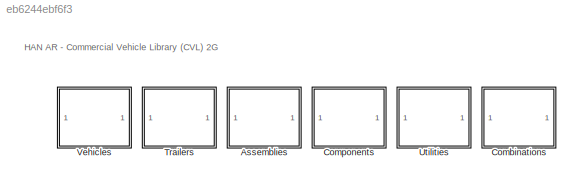
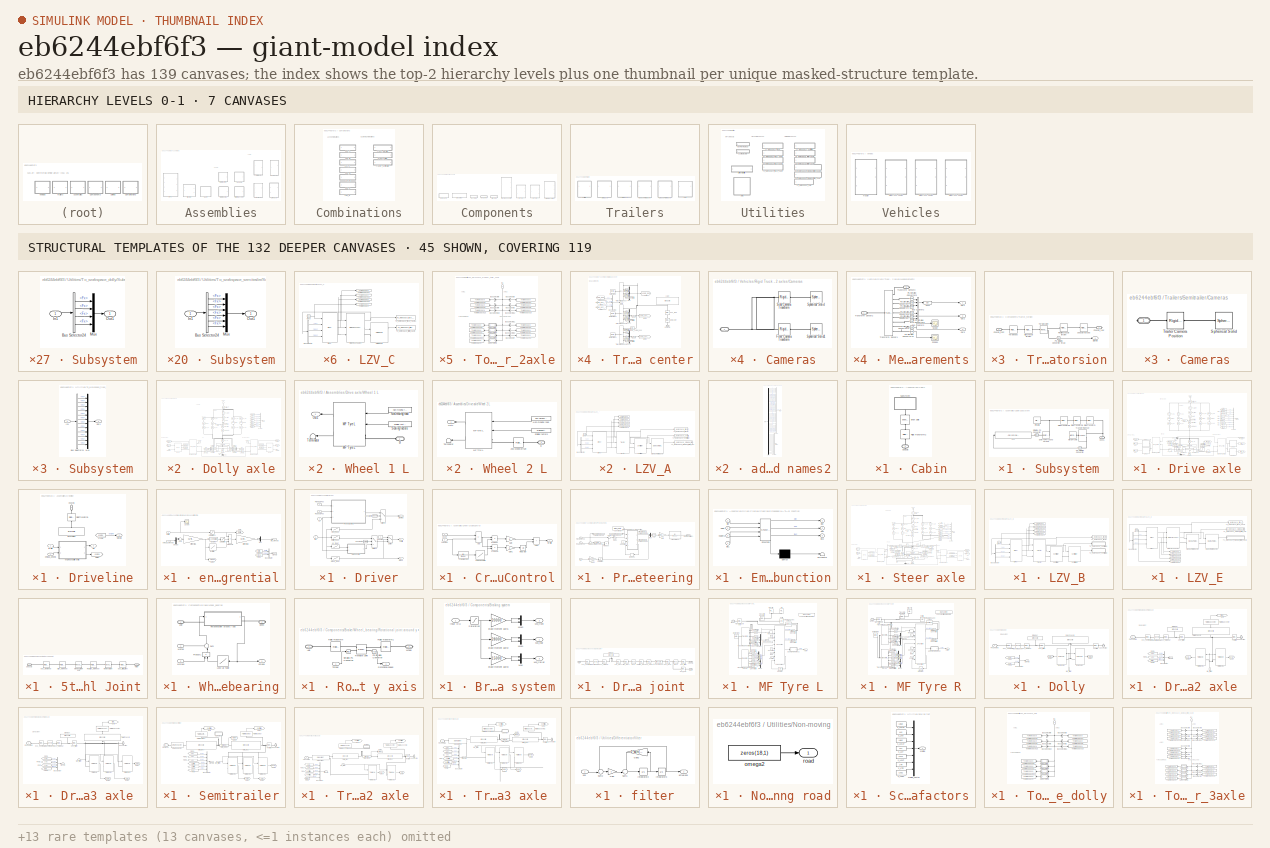
[diagram: thumbnail index - top-2 hierarchy levels (7 canvases) + 45 structural-template representatives of the remaining 132 canvases]
MODEL slx_eb6244ebf6f3
KIND library
CONFIG AbsTol = auto
CONFIG EnableMultiTasking = off
CONFIG FixedStep = auto
CONFIG MaxStep = auto
CONFIG MinStep = auto
CONFIG RelTol = 1e-3
CONFIG SampleTimeConstraint = Unconstrained
CONFIG SolverName = VariableStepAuto
CONFIG StartTime = 0.0
CONFIG StopTime = 10.0
BLOCK [SubSystem] Assemblies
  Ports = []
  RequestExecContextInheritance = off
BLOCK [SubSystem] Assemblies/Cabin
  Ports = [0, 0, 0, 0, 0, 0, 1]
  RequestExecContextInheritance = off
  ShowPortLabels = none
BLOCK [Reference] Assemblies/Cabin/Brick Solid  REF=sm_lib/Body Elements/Brick Solid
  NameLocation = left
  Ports = [0, 0, 0, 0, 0, 1, 1]
  SourceBlock = sm_lib/Body Elements/Brick Solid
  SourceProductBaseCode = MS
  SourceType = Brick Solid
BLOCK [PMIOPort] Assemblies/Cabin/Chassis
  NameLocation = right
  Side = Right
BLOCK [Reference] Assemblies/Cabin/Rigid Transform2  REF=sm_lib/Frames and
Transforms/Rigid
Transform
  NameLocation = right
  Ports = [0, 0, 0, 0, 0, 1, 1]
  SourceBlock = sm_lib/Frames and\nTransforms/Rigid\nTransform
  SourceProductBaseCode = MS
  SourceType = Rigid\nTransform
BLOCK [SubSystem] Assemblies/Cabin/Subsystem
  Commented = on
  NameLocation = right
  Ports = [0, 0, 0, 0, 0, 1]
  RequestExecContextInheritance = off
BLOCK [PMIOPort] Assemblies/Cabin/Subsystem/Conn1
  Side = Left
BLOCK [Reference] Assemblies/Cabin/Subsystem/External Force and Torque  REF=sm_lib/Forces and
Torques/External Force
and Torque
  Ports = [0, 0, 0, 0, 0, 1, 1]
  SourceBlock = sm_lib/Forces and\nTorques/External Force\nand Torque
  SourceProductBaseCode = MS
  SourceType = External Force\nand Torque
BLOCK [Fcn] Assemblies/Cabin/Subsystem/Fcn
  Expr = -0.5*1.23*0.6*10.5*u(1)*abs(u(1))
BLOCK [Reference] Assemblies/Cabin/Subsystem/File Solid  REF=sm_lib/Body Elements/File Solid
  Ports = [0, 0, 0, 0, 0, 0, 1]
  SourceBlock = sm_lib/Body Elements/File Solid
  SourceProductBaseCode = MS
  SourceType = File Solid
BLOCK [Reference] Assemblies/Cabin/Subsystem/PS-Simulink Converter  REF=nesl_utility/PS-Simulink
Converter
  NameLocation = top
  Ports = [0, 1, 0, 0, 0, 1]
  SourceBlock = nesl_utility/PS-Simulink\nConverter
  SourceProductBaseCode = SS
  SourceType = PS-Simulink\nConverter
BLOCK [Reference] Assemblies/Cabin/Subsystem/Rigid Transform  REF=sm_lib/Frames and
Transforms/Rigid
Transform
  NameLocation = top
  Ports = [0, 0, 0, 0, 0, 1, 1]
  SourceBlock = sm_lib/Frames and\nTransforms/Rigid\nTransform
  SourceProductBaseCode = MS
  SourceType = Rigid\nTransform
BLOCK [Reference] Assemblies/Cabin/Subsystem/Rigid Transform3  REF=sm_lib/Frames and
Transforms/Rigid
Transform
  NameLocation = top
  Ports = [0, 0, 0, 0, 0, 1, 1]
  SourceBlock = sm_lib/Frames and\nTransforms/Rigid\nTransform
  SourceProductBaseCode = MS
  SourceType = Rigid\nTransform
BLOCK [Reference] Assemblies/Cabin/Subsystem/Rigid Transform4  REF=sm_lib/Frames and
Transforms/Rigid
Transform
  NameLocation = top
  Ports = [0, 0, 0, 0, 0, 1, 1]
  SourceBlock = sm_lib/Frames and\nTransforms/Rigid\nTransform
  SourceProductBaseCode = MS
  SourceType = Rigid\nTransform
BLOCK [Reference] Assemblies/Cabin/Subsystem/Simulink-PS Converter  REF=nesl_utility/Simulink-PS
Converter
  Ports = [1, 0, 0, 0, 0, 0, 1]
  SourceBlock = nesl_utility/Simulink-PS\nConverter
  SourceProductBaseCode = SS
  SourceType = Simulink-PS\nConverter
BLOCK [Reference] Assemblies/Cabin/Subsystem/Transform Sensor  REF=sm_lib/Frames and
Transforms/Transform
Sensor
  Ports = [0, 0, 0, 0, 0, 1, 2]
  SourceBlock = sm_lib/Frames and\nTransforms/Transform\nSensor
  SourceProductBaseCode = MS
  SourceType = Transform\nSensor
BLOCK [Reference] Assemblies/Cabin/Subsystem/World Frame  REF=sm_lib/Frames and
Transforms/World Frame
  NameLocation = top
  Ports = [0, 0, 0, 0, 0, 0, 1]
  SourceBlock = sm_lib/Frames and\nTransforms/World Frame
  SourceProductBaseCode = MS
  SourceType = World Frame
BLOCK [SubSystem] Assemblies/Dolly axle
  Ports = [1, 1, 0, 0, 0, 1]
  RequestExecContextInheritance = off
BLOCK [Reference] Assemblies/Dolly axle/ Align_roll joint  REF=sm_lib/Frames and
Transforms/Rigid
Transform
  NameLocation = left
  Ports = [0, 0, 0, 0, 0, 1, 1]
  SourceBlock = sm_lib/Frames and\nTransforms/Rigid\nTransform
  SourceProductBaseCode = MS
  SourceType = Rigid\nTransform
BLOCK [Reference] Assemblies/Dolly axle/ Height roll center  REF=sm_lib/Frames and
Transforms/Rigid
Transform
  NameLocation = left
  Ports = [0, 0, 0, 0, 0, 1, 1]
  SourceBlock = sm_lib/Frames and\nTransforms/Rigid\nTransform
  SourceProductBaseCode = MS
  SourceType = Rigid\nTransform
BLOCK [Reference] Assemblies/Dolly axle/ Pos_roll_joint  REF=sm_lib/Frames and
Transforms/Rigid
Transform
  NameLocation = left
  Ports = [0, 0, 0, 0, 0, 1, 1]
  SourceBlock = sm_lib/Frames and\nTransforms/Rigid\nTransform
  SourceProductBaseCode = MS
  SourceType = Rigid\nTransform
BLOCK [Reference] Assemblies/Dolly axle/Align_Axle  REF=sm_lib/Frames and
Transforms/Rigid
Transform
  NameLocation = left
  Ports = [0, 0, 0, 0, 0, 1, 1]
  SourceBlock = sm_lib/Frames and\nTransforms/Rigid\nTransform
  SourceProductBaseCode = MS
  SourceType = Rigid\nTransform
BLOCK [Reference] Assemblies/Dolly axle/Axle  REF=sm_lib/Body Elements/Cylindrical Solid
  NameLocation = right
  Ports = [0, 0, 0, 0, 0, 0, 1]
  SourceBlock = sm_lib/Body Elements/Cylindrical Solid
  SourceProductBaseCode = MS
  SourceType = Cylindrical Solid
BLOCK [Reference] Assemblies/Dolly axle/Brake//Wheel_bearing  REF=$bdroot/Components/Brake//Wheel_bearing
  Ports = [2, 1, 0, 0, 0, 1, 1]
  SourceBlock = $bdroot/Components/Brake//Wheel_bearing
BLOCK [Reference] Assemblies/Dolly axle/Brake//Wheel_bearing1  REF=$bdroot/Components/Brake//Wheel_bearing
  Ports = [2, 1, 0, 0, 0, 1, 1]
  SourceBlock = $bdroot/Components/Brake//Wheel_bearing
BLOCK [BusCreator] Assemblies/Dolly axle/Bus Creator
  DisplayOption = bar
  InheritFromInputs = on
  Inputs = 7
  Ports = [7, 1]
BLOCK [BusCreator] Assemblies/Dolly axle/Bus Creator1
  DisplayOption = bar
  InheritFromInputs = on
  Inputs = 3
  Ports = [3, 1]
BLOCK [BusCreator] Assemblies/Dolly axle/Bus Creator2
  DisplayOption = bar
  InheritFromInputs = on
  Inputs = 3
  NameLocation = top
  Ports = [3, 1]
BLOCK [PMIOPort] Assemblies/Dolly axle/Chassis
  NameLocation = left
  Side = Left
  Tag = PMCPort
BLOCK [Constant] Assemblies/Dolly axle/Constant
  Value = 0
BLOCK [Constant] Assemblies/Dolly axle/Constant1
  Value = 0
BLOCK [Reference] Assemblies/Dolly axle/Damper L  REF=sm_lib/Forces and
Torques/Spring and
Damper Force
  NameLocation = left
  Ports = [0, 0, 0, 0, 0, 1, 1]
  SourceBlock = sm_lib/Forces and\nTorques/Spring and\nDamper Force
  SourceProductBaseCode = MS
  SourceType = Spring and\nDamper Force
BLOCK [Reference] Assemblies/Dolly axle/Damper R  REF=sm_lib/Forces and
Torques/Spring and
Damper Force
  NameLocation = right
  Ports = [0, 0, 0, 0, 0, 1, 1]
  SourceBlock = sm_lib/Forces and\nTorques/Spring and\nDamper Force
  SourceProductBaseCode = MS
  SourceType = Spring and\nDamper Force
BLOCK [Demux] Assemblies/Dolly axle/Demux
  NameLocation = left
  Outputs = 2
  Ports = [1, 2]
BLOCK [Reference] Assemblies/Dolly axle/Dummy Axle position  REF=sm_lib/Frames and
Transforms/Rigid
Transform
  NameLocation = left
  Ports = [0, 0, 0, 0, 0, 1, 1]
  SourceBlock = sm_lib/Frames and\nTransforms/Rigid\nTransform
  SourceProductBaseCode = MS
  SourceType = Rigid\nTransform
BLOCK [From] Assemblies/Dolly axle/From
  GotoTag = Axle_roll
BLOCK [From] Assemblies/Dolly axle/From1
  GotoTag = Omega1
  NameLocation = top
BLOCK [From] Assemblies/Dolly axle/From2
  GotoTag = Tire1_L
  NameLocation = top
BLOCK [From] Assemblies/Dolly axle/From4
  GotoTag = Axle_pos
  NameLocation = top
BLOCK [From] Assemblies/Dolly axle/From5
  GotoTag = Axle_acc
  NameLocation = top
BLOCK [From] Assemblies/Dolly axle/From6
  GotoTag = Omega2
BLOCK [From] Assemblies/Dolly axle/From7
  GotoTag = Tire1_R
BLOCK [Goto] Assemblies/Dolly axle/Goto
  GotoTag = Axle_acc
  NameLocation = top
BLOCK [Goto] Assemblies/Dolly axle/Goto2
  GotoTag = Axle_roll
  NameLocation = top
BLOCK [Goto] Assemblies/Dolly axle/Goto3
  GotoTag = Axle_pos
  NameLocation = top
BLOCK [Goto] Assemblies/Dolly axle/Goto4
  GotoTag = Omega1
  NameLocation = top
BLOCK [Goto] Assemblies/Dolly axle/Goto5
  GotoTag = Tire1_L
  NameLocation = top
BLOCK [Goto] Assemblies/Dolly axle/Goto6
  GotoTag = Omega2
BLOCK [Goto] Assemblies/Dolly axle/Goto7
  GotoTag = Tire1_R
BLOCK [Reference] Assemblies/Dolly axle/MF Tyre L  REF=$bdroot/Components/MF Tyre L
  Ports = [2, 2, 0, 0, 0, 1]
  SourceBlock = $bdroot/Components/MF Tyre L
  SourceType = SimMechanics_tyre
  Tag = SimMechanics Wheel + tyre
BLOCK [Reference] Assemblies/Dolly axle/MF Tyre R  REF=$bdroot/Components/MF Tyre R
  Ports = [2, 2, 0, 0, 0, 1]
  SourceBlock = $bdroot/Components/MF Tyre R
  SourceType = SimMechanics_tyre
  Tag = SimMechanics Wheel + tyre
BLOCK [Inport] Assemblies/Dolly axle/Mb
  NameLocation = top
BLOCK [Reference] Assemblies/Dolly axle/Non-moving road  REF=$bdroot/Utilities/Non-moving road
  Ports = [0, 1]
  SourceBlock = $bdroot/Utilities/Non-moving road
  Tag = Non-moving road
BLOCK [Reference] Assemblies/Dolly axle/Non-moving road1  REF=$bdroot/Utilities/Non-moving road
  Ports = [0, 1]
  SourceBlock = $bdroot/Utilities/Non-moving road
  Tag = Non-moving road
BLOCK [Reference] Assemblies/Dolly axle/PS-Simulink Converter  REF=nesl_utility/PS-Simulink
Converter
  NameLocation = top
  Ports = [0, 1, 0, 0, 0, 1]
  SourceBlock = nesl_utility/PS-Simulink\nConverter
  SourceProductBaseCode = PW,SS
  SourceType = PS-Simulink\nConverter
BLOCK [Reference] Assemblies/Dolly axle/PS-Simulink Converter1  REF=nesl_utility/PS-Simulink
Converter
  NameLocation = top
  Ports = [0, 1, 0, 0, 0, 1]
  SourceBlock = nesl_utility/PS-Simulink\nConverter
  SourceProductBaseCode = PW,SS
  SourceType = PS-Simulink\nConverter
BLOCK [Reference] Assemblies/Dolly axle/PS-Simulink Converter2  REF=nesl_utility/PS-Simulink
Converter
  NameLocation = top
  Ports = [0, 1, 0, 0, 0, 1]
  SourceBlock = nesl_utility/PS-Simulink\nConverter
  SourceProductBaseCode = PW,SS
  SourceType = PS-Simulink\nConverter
BLOCK [Reference] Assemblies/Dolly axle/PS-Simulink Converter3  REF=nesl_utility/PS-Simulink
Converter
  Ports = [0, 1, 0, 0, 0, 1]
  SourceBlock = nesl_utility/PS-Simulink\nConverter
  SourceProductBaseCode = PW,SS
  SourceType = PS-Simulink\nConverter
BLOCK [Reference] Assemblies/Dolly axle/PS-Simulink Converter4  REF=nesl_utility/PS-Simulink
Converter
  Ports = [0, 1, 0, 0, 0, 1]
  SourceBlock = nesl_utility/PS-Simulink\nConverter
  SourceProductBaseCode = PW,SS
  SourceType = PS-Simulink\nConverter
BLOCK [Reference] Assemblies/Dolly axle/PS-Simulink Converter5  REF=nesl_utility/PS-Simulink
Converter
  Ports = [0, 1, 0, 0, 0, 1]
  SourceBlock = nesl_utility/PS-Simulink\nConverter
  SourceProductBaseCode = PW,SS
  SourceType = PS-Simulink\nConverter
BLOCK [Reference] Assemblies/Dolly axle/PS-Simulink Converter6  REF=nesl_utility/PS-Simulink
Converter
  NameLocation = left
  Ports = [0, 1, 0, 0, 0, 1]
  SourceBlock = nesl_utility/PS-Simulink\nConverter
  SourceProductBaseCode = PW,SS
  SourceType = PS-Simulink\nConverter
BLOCK [Reference] Assemblies/Dolly axle/Pos_DLL   REF=sm_lib/Frames and
Transforms/Rigid
Transform
  NameLocation = left
  Ports = [0, 0, 0, 0, 0, 1, 1]
  SourceBlock = sm_lib/Frames and\nTransforms/Rigid\nTransform
  SourceProductBaseCode = MS
  SourceType = Rigid\nTransform
BLOCK [Reference] Assemblies/Dolly axle/Pos_DLR  REF=sm_lib/Frames and
Transforms/Rigid
Transform
  NameLocation = right
  Ports = [0, 0, 0, 0, 0, 1, 1]
  SourceBlock = sm_lib/Frames and\nTransforms/Rigid\nTransform
  SourceProductBaseCode = MS
  SourceType = Rigid\nTransform
BLOCK [Reference] Assemblies/Dolly axle/Pos_DUL   REF=sm_lib/Frames and
Transforms/Rigid
Transform
  NameLocation = left
  Ports = [0, 0, 0, 0, 0, 1, 1]
  SourceBlock = sm_lib/Frames and\nTransforms/Rigid\nTransform
  SourceProductBaseCode = MS
  SourceType = Rigid\nTransform
BLOCK [Reference] Assemblies/Dolly axle/Pos_DUR  REF=sm_lib/Frames and
Transforms/Rigid
Transform
  NameLocation = right
  Ports = [0, 0, 0, 0, 0, 1, 1]
  SourceBlock = sm_lib/Frames and\nTransforms/Rigid\nTransform
  SourceProductBaseCode = MS
  SourceType = Rigid\nTransform
BLOCK [Reference] Assemblies/Dolly axle/Pos_SLL  REF=sm_lib/Frames and
Transforms/Rigid
Transform
  NameLocation = left
  Ports = [0, 0, 0, 0, 0, 1, 1]
  SourceBlock = sm_lib/Frames and\nTransforms/Rigid\nTransform
  SourceProductBaseCode = MS
  SourceType = Rigid\nTransform
BLOCK [Reference] Assemblies/Dolly axle/Pos_SLR  REF=sm_lib/Frames and
Transforms/Rigid
Transform
  NameLocation = right
  Ports = [0, 0, 0, 0, 0, 1, 1]
  SourceBlock = sm_lib/Frames and\nTransforms/Rigid\nTransform
  SourceProductBaseCode = MS
  SourceType = Rigid\nTransform
BLOCK [Reference] Assemblies/Dolly axle/Pos_SUL  REF=sm_lib/Frames and
Transforms/Rigid
Transform
  NameLocation = left
  Ports = [0, 0, 0, 0, 0, 1, 1]
  SourceBlock = sm_lib/Frames and\nTransforms/Rigid\nTransform
  SourceProductBaseCode = MS
  SourceType = Rigid\nTransform
BLOCK [Reference] Assemblies/Dolly axle/Pos_SUR  REF=sm_lib/Frames and
Transforms/Rigid
Transform
  NameLocation = right
  Ports = [0, 0, 0, 0, 0, 1, 1]
  SourceBlock = sm_lib/Frames and\nTransforms/Rigid\nTransform
  SourceProductBaseCode = MS
  SourceType = Rigid\nTransform
BLOCK [Reference] Assemblies/Dolly axle/Realign roll joint  REF=sm_lib/Frames and
Transforms/Rigid
Transform
  NameLocation = left
  Ports = [0, 0, 0, 0, 0, 1, 1]
  SourceBlock = sm_lib/Frames and\nTransforms/Rigid\nTransform
  SourceProductBaseCode = MS
  SourceType = Rigid\nTransform
BLOCK [Reference] Assemblies/Dolly axle/Roll Joint  REF=sm_lib/Joints/Pin Slot Joint
  NameLocation = left
  Ports = [0, 0, 0, 0, 0, 1, 2]
  SourceBlock = sm_lib/Joints/Pin Slot Joint
  SourceProductBaseCode = MS
  SourceType = Pin Slot Joint
BLOCK [Reference] Assemblies/Dolly axle/Scaling factors  REF=$bdroot/Utilities/Scaling factors
  Ports = [0, 1]
  SourceBlock = $bdroot/Utilities/Scaling factors
  Tag = Scaling factors
BLOCK [Reference] Assemblies/Dolly axle/Scaling factors1  REF=$bdroot/Utilities/Scaling factors
  Ports = [0, 1]
  SourceBlock = $bdroot/Utilities/Scaling factors
  Tag = Scaling factors
BLOCK [Reference] Assemblies/Dolly axle/Spring L  REF=sm_lib/Forces and
Torques/Spring and
Damper Force
  NameLocation = left
  Ports = [0, 0, 0, 0, 0, 1, 1]
  SourceBlock = sm_lib/Forces and\nTorques/Spring and\nDamper Force
  SourceProductBaseCode = MS
  SourceType = Spring and\nDamper Force
BLOCK [Reference] Assemblies/Dolly axle/Spring R  REF=sm_lib/Forces and
Torques/Spring and
Damper Force
  NameLocation = right
  Ports = [0, 0, 0, 0, 0, 1, 1]
  SourceBlock = sm_lib/Forces and\nTorques/Spring and\nDamper Force
  SourceProductBaseCode = MS
  SourceType = Spring and\nDamper Force
BLOCK [Terminator] Assemblies/Dolly axle/Terminator 1
BLOCK [Terminator] Assemblies/Dolly axle/Terminator 2
BLOCK [Reference] Assemblies/Dolly axle/Transform Sensor  REF=sm_lib/Frames and
Transforms/Transform
Sensor
  Ports = [0, 0, 0, 0, 0, 1, 4]
  SourceBlock = sm_lib/Frames and\nTransforms/Transform\nSensor
  SourceProductBaseCode = MS
  SourceType = Transform\nSensor
BLOCK [Reference] Assemblies/Dolly axle/Transform Sensor1  REF=sm_lib/Frames and
Transforms/Transform
Sensor
  Ports = [0, 0, 0, 0, 0, 1, 4]
  SourceBlock = sm_lib/Frames and\nTransforms/Transform\nSensor
  SourceProductBaseCode = MS
  SourceType = Transform\nSensor
BLOCK [Reference] Assemblies/Dolly axle/World Frame  REF=sm_lib/Frames and
Transforms/World Frame
  NameLocation = right
  Ports = [0, 0, 0, 0, 0, 0, 1]
  SourceBlock = sm_lib/Frames and\nTransforms/World Frame
  SourceProductBaseCode = MS
  SourceType = World Frame
BLOCK [Reference] Assemblies/Dolly axle/pos_LHub  REF=sm_lib/Frames and
Transforms/Rigid
Transform
  Ports = [0, 0, 0, 0, 0, 1, 1]
  SourceBlock = sm_lib/Frames and\nTransforms/Rigid\nTransform
  SourceProductBaseCode = MS
  SourceType = Rigid\nTransform
BLOCK [Reference] Assemblies/Dolly axle/pos_RHub  REF=sm_lib/Frames and
Transforms/Rigid
Transform
  Ports = [0, 0, 0, 0, 0, 1, 1]
  SourceBlock = sm_lib/Frames and\nTransforms/Rigid\nTransform
  SourceProductBaseCode = MS
  SourceType = Rigid\nTransform
BLOCK [Outport] Assemblies/Dolly axle/signals
BLOCK [SubSystem] Assemblies/Drive axle
  Ports = [2, 1, 0, 0, 0, 0, 1]
  RequestExecContextInheritance = off
BLOCK [Reference] Assemblies/Drive axle/ Align_roll joint  REF=sm_lib/Frames and
Transforms/Rigid
Transform
  NameLocation = left
  Ports = [0, 0, 0, 0, 0, 1, 1]
  SourceBlock = sm_lib/Frames and\nTransforms/Rigid\nTransform
  SourceProductBaseCode = MS
  SourceType = Rigid\nTransform
BLOCK [Reference] Assemblies/Drive axle/ Height roll center  REF=sm_lib/Frames and
Transforms/Rigid
Transform
  NameLocation = left
  Ports = [0, 0, 0, 0, 0, 1, 1]
  SourceBlock = sm_lib/Frames and\nTransforms/Rigid\nTransform
  SourceProductBaseCode = MS
  SourceType = Rigid\nTransform
BLOCK [Reference] Assemblies/Drive axle/ Pos_roll_joint  REF=sm_lib/Frames and
Transforms/Rigid
Transform
  NameLocation = left
  Ports = [0, 0, 0, 0, 0, 1, 1]
  SourceBlock = sm_lib/Frames and\nTransforms/Rigid\nTransform
  SourceProductBaseCode = MS
  SourceType = Rigid\nTransform
BLOCK [Reference] Assemblies/Drive axle/Align_Axle  REF=sm_lib/Frames and
Transforms/Rigid
Transform
  NameLocation = left
  Ports = [0, 0, 0, 0, 0, 1, 1]
  SourceBlock = sm_lib/Frames and\nTransforms/Rigid\nTransform
  SourceProductBaseCode = MS
  SourceType = Rigid\nTransform
BLOCK [Reference] Assemblies/Drive axle/Brake//Wheel_bearing  REF=$bdroot/Components/Brake//Wheel_bearing
  Ports = [2, 1, 0, 0, 0, 1, 1]
  SourceBlock = $bdroot/Components/Brake//Wheel_bearing
BLOCK [Reference] Assemblies/Drive axle/Brake//Wheel_bearing1  REF=$bdroot/Components/Brake//Wheel_bearing
  Ports = [2, 1, 0, 0, 0, 1, 1]
  SourceBlock = $bdroot/Components/Brake//Wheel_bearing
BLOCK [BusCreator] Assemblies/Drive axle/Bus Creator
  DisplayOption = bar
  InheritFromInputs = on
  Inputs = 9
  Ports = [9, 1]
BLOCK [BusCreator] Assemblies/Drive axle/Bus Creator1
  DisplayOption = bar
  InheritFromInputs = on
  Inputs = 3
  NameLocation = right
  Ports = [3, 1]
BLOCK [BusCreator] Assemblies/Drive axle/Bus Creator2
  DisplayOption = bar
  InheritFromInputs = on
  Inputs = 3
  NameLocation = right
  Ports = [3, 1]
BLOCK [PMIOPort] Assemblies/Drive axle/Chassis
  NameLocation = left
  Side = Right
BLOCK [Reference] Assemblies/Drive axle/Damper L  REF=sm_lib/Forces and
Torques/Spring and
Damper Force
  NameLocation = left
  Ports = [0, 0, 0, 0, 0, 1, 1]
  SourceBlock = sm_lib/Forces and\nTorques/Spring and\nDamper Force
  SourceProductBaseCode = MS
  SourceType = Spring and\nDamper Force
BLOCK [Reference] Assemblies/Drive axle/Damper R  REF=sm_lib/Forces and
Torques/Spring and
Damper Force
  NameLocation = right
  Ports = [0, 0, 0, 0, 0, 1, 1]
  SourceBlock = sm_lib/Forces and\nTorques/Spring and\nDamper Force
  SourceProductBaseCode = MS
  SourceType = Spring and\nDamper Force
BLOCK [Demux] Assemblies/Drive axle/Demux
  NameLocation = right
  Outputs = 2
  Ports = [1, 2]
BLOCK [Demux] Assemblies/Drive axle/Demux1
  NameLocation = right
  Outputs = 2
  Ports = [1, 2]
BLOCK [Reference] Assemblies/Drive axle/Drive axle  REF=sm_lib/Body Elements/Cylindrical Solid
  Ports = [0, 0, 0, 0, 0, 0, 1]
  SourceBlock = sm_lib/Body Elements/Cylindrical Solid
  SourceProductBaseCode = MS
  SourceType = Cylindrical Solid
BLOCK [Reference] Assemblies/Drive axle/Dummy Axle position  REF=sm_lib/Frames and
Transforms/Rigid
Transform
  NameLocation = left
  Ports = [0, 0, 0, 0, 0, 1, 1]
  SourceBlock = sm_lib/Frames and\nTransforms/Rigid\nTransform
  SourceProductBaseCode = MS
  SourceType = Rigid\nTransform
BLOCK [From] Assemblies/Drive axle/From
  GotoTag = Driveaxle_roll
BLOCK [From] Assemblies/Drive axle/From1
  GotoTag = Omega1
  NameLocation = top
BLOCK [From] Assemblies/Drive axle/From2
  GotoTag = Tire1_L
  NameLocation = top
BLOCK [From] Assemblies/Drive axle/From3
  GotoTag = Tire2_L
  NameLocation = top
BLOCK [From] Assemblies/Drive axle/From4
  GotoTag = Driveaxle_pos
  NameLocation = top
BLOCK [From] Assemblies/Drive axle/From5
  GotoTag = Driveaxle_acc
  NameLocation = top
BLOCK [From] Assemblies/Drive axle/From6
  GotoTag = Omega2
BLOCK [From] Assemblies/Drive axle/From7
  GotoTag = Tire1_R
BLOCK [From] Assemblies/Drive axle/From8
  GotoTag = Tire2_R
BLOCK [Goto] Assemblies/Drive axle/Goto
  GotoTag = Driveaxle_acc
  NameLocation = top
BLOCK [Goto] Assemblies/Drive axle/Goto10
  GotoTag = Tire2_R
BLOCK [Goto] Assemblies/Drive axle/Goto2
  GotoTag = Driveaxle_roll
  NameLocation = top
BLOCK [Goto] Assemblies/Drive axle/Goto3
  GotoTag = Driveaxle_pos
  NameLocation = top
BLOCK [Goto] Assemblies/Drive axle/Goto4
  GotoTag = Omega1
  NameLocation = top
BLOCK [Goto] Assemblies/Drive axle/Goto5
  GotoTag = Tire1_L
  NameLocation = top
BLOCK [Goto] Assemblies/Drive axle/Goto6
  GotoTag = Omega2
BLOCK [Goto] Assemblies/Drive axle/Goto7
  GotoTag = Tire1_R
BLOCK [Goto] Assemblies/Drive axle/Goto8
  GotoTag = Tire2_L
  NameLocation = top
BLOCK [Inport] Assemblies/Drive axle/Mb
BLOCK [Inport] Assemblies/Drive axle/Md
  NameLocation = top
  Port = 2
BLOCK [Reference] Assemblies/Drive axle/PS-Simulink Converter  REF=nesl_utility/PS-Simulink
Converter
  NameLocation = right
  Ports = [0, 1, 0, 0, 0, 1]
  SourceBlock = nesl_utility/PS-Simulink\nConverter
  SourceProductBaseCode = PW,SS
  SourceType = PS-Simulink\nConverter
BLOCK [Reference] Assemblies/Drive axle/PS-Simulink Converter1  REF=nesl_utility/PS-Simulink
Converter
  NameLocation = right
  Ports = [0, 1, 0, 0, 0, 1]
  SourceBlock = nesl_utility/PS-Simulink\nConverter
  SourceProductBaseCode = PW,SS
  SourceType = PS-Simulink\nConverter
BLOCK [Reference] Assemblies/Drive axle/PS-Simulink Converter2  REF=nesl_utility/PS-Simulink
Converter
  NameLocation = right
  Ports = [0, 1, 0, 0, 0, 1]
  SourceBlock = nesl_utility/PS-Simulink\nConverter
  SourceProductBaseCode = PW,SS
  SourceType = PS-Simulink\nConverter
BLOCK [Reference] Assemblies/Drive axle/PS-Simulink Converter3  REF=nesl_utility/PS-Simulink
Converter
  NameLocation = right
  Ports = [0, 1, 0, 0, 0, 1]
  SourceBlock = nesl_utility/PS-Simulink\nConverter
  SourceProductBaseCode = PW,SS
  SourceType = PS-Simulink\nConverter
BLOCK [Reference] Assemblies/Drive axle/PS-Simulink Converter4  REF=nesl_utility/PS-Simulink
Converter
  NameLocation = right
  Ports = [0, 1, 0, 0, 0, 1]
  SourceBlock = nesl_utility/PS-Simulink\nConverter
  SourceProductBaseCode = PW,SS
  SourceType = PS-Simulink\nConverter
BLOCK [Reference] Assemblies/Drive axle/PS-Simulink Converter5  REF=nesl_utility/PS-Simulink
Converter
  NameLocation = right
  Ports = [0, 1, 0, 0, 0, 1]
  SourceBlock = nesl_utility/PS-Simulink\nConverter
  SourceProductBaseCode = PW,SS
  SourceType = PS-Simulink\nConverter
BLOCK [Reference] Assemblies/Drive axle/PS-Simulink Converter6  REF=nesl_utility/PS-Simulink
Converter
  NameLocation = left
  Ports = [0, 1, 0, 0, 0, 1]
  SourceBlock = nesl_utility/PS-Simulink\nConverter
  SourceProductBaseCode = PW,SS
  SourceType = PS-Simulink\nConverter
BLOCK [Reference] Assemblies/Drive axle/Pos_DLL   REF=sm_lib/Frames and
Transforms/Rigid
Transform
  NameLocation = left
  Ports = [0, 0, 0, 0, 0, 1, 1]
  SourceBlock = sm_lib/Frames and\nTransforms/Rigid\nTransform
  SourceProductBaseCode = MS
  SourceType = Rigid\nTransform
BLOCK [Reference] Assemblies/Drive axle/Pos_DLR  REF=sm_lib/Frames and
Transforms/Rigid
Transform
  NameLocation = right
  Ports = [0, 0, 0, 0, 0, 1, 1]
  SourceBlock = sm_lib/Frames and\nTransforms/Rigid\nTransform
  SourceProductBaseCode = MS
  SourceType = Rigid\nTransform
BLOCK [Reference] Assemblies/Drive axle/Pos_DUL   REF=sm_lib/Frames and
Transforms/Rigid
Transform
  NameLocation = left
  Ports = [0, 0, 0, 0, 0, 1, 1]
  SourceBlock = sm_lib/Frames and\nTransforms/Rigid\nTransform
  SourceProductBaseCode = MS
  SourceType = Rigid\nTransform
BLOCK [Reference] Assemblies/Drive axle/Pos_DUR  REF=sm_lib/Frames and
Transforms/Rigid
Transform
  NameLocation = right
  Ports = [0, 0, 0, 0, 0, 1, 1]
  SourceBlock = sm_lib/Frames and\nTransforms/Rigid\nTransform
  SourceProductBaseCode = MS
  SourceType = Rigid\nTransform
BLOCK [Reference] Assemblies/Drive axle/Pos_SLL  REF=sm_lib/Frames and
Transforms/Rigid
Transform
  NameLocation = left
  Ports = [0, 0, 0, 0, 0, 1, 1]
  SourceBlock = sm_lib/Frames and\nTransforms/Rigid\nTransform
  SourceProductBaseCode = MS
  SourceType = Rigid\nTransform
BLOCK [Reference] Assemblies/Drive axle/Pos_SLR  REF=sm_lib/Frames and
Transforms/Rigid
Transform
  NameLocation = right
  Ports = [0, 0, 0, 0, 0, 1, 1]
  SourceBlock = sm_lib/Frames and\nTransforms/Rigid\nTransform
  SourceProductBaseCode = MS
  SourceType = Rigid\nTransform
BLOCK [Reference] Assemblies/Drive axle/Pos_SUL  REF=sm_lib/Frames and
Transforms/Rigid
Transform
  NameLocation = left
  Ports = [0, 0, 0, 0, 0, 1, 1]
  SourceBlock = sm_lib/Frames and\nTransforms/Rigid\nTransform
  SourceProductBaseCode = MS
  SourceType = Rigid\nTransform
BLOCK [Reference] Assemblies/Drive axle/Pos_SUR  REF=sm_lib/Frames and
Transforms/Rigid
Transform
  NameLocation = right
  Ports = [0, 0, 0, 0, 0, 1, 1]
  SourceBlock = sm_lib/Frames and\nTransforms/Rigid\nTransform
  SourceProductBaseCode = MS
  SourceType = Rigid\nTransform
BLOCK [Reference] Assemblies/Drive axle/Realign roll joint  REF=sm_lib/Frames and
Transforms/Rigid
Transform
  NameLocation = left
  Ports = [0, 0, 0, 0, 0, 1, 1]
  SourceBlock = sm_lib/Frames and\nTransforms/Rigid\nTransform
  SourceProductBaseCode = MS
  SourceType = Rigid\nTransform
BLOCK [Reference] Assemblies/Drive axle/Roll Joint  REF=sm_lib/Joints/Pin Slot Joint
  NameLocation = left
  Ports = [0, 0, 0, 0, 0, 1, 2]
  SourceBlock = sm_lib/Joints/Pin Slot Joint
  SourceProductBaseCode = MS
  SourceType = Pin Slot Joint
BLOCK [Reference] Assemblies/Drive axle/Spring L  REF=sm_lib/Forces and
Torques/Spring and
Damper Force
  NameLocation = left
  Ports = [0, 0, 0, 0, 0, 1, 1]
  SourceBlock = sm_lib/Forces and\nTorques/Spring and\nDamper Force
  SourceProductBaseCode = MS
  SourceType = Spring and\nDamper Force
BLOCK [Reference] Assemblies/Drive axle/Spring R  REF=sm_lib/Forces and
Torques/Spring and
Damper Force
  NameLocation = right
  Ports = [0, 0, 0, 0, 0, 1, 1]
  SourceBlock = sm_lib/Forces and\nTorques/Spring and\nDamper Force
  SourceProductBaseCode = MS
  SourceType = Spring and\nDamper Force
BLOCK [Reference] Assemblies/Drive axle/Transform Sensor  REF=sm_lib/Frames and
Transforms/Transform
Sensor
  Ports = [0, 0, 0, 0, 0, 1, 4]
  SourceBlock = sm_lib/Frames and\nTransforms/Transform\nSensor
  SourceProductBaseCode = MS
  SourceType = Transform\nSensor
BLOCK [Reference] Assemblies/Drive axle/Transform Sensor1  REF=sm_lib/Frames and
Transforms/Transform
Sensor
  Ports = [0, 0, 0, 0, 0, 1, 4]
  SourceBlock = sm_lib/Frames and\nTransforms/Transform\nSensor
  SourceProductBaseCode = MS
  SourceType = Transform\nSensor
BLOCK [SubSystem] Assemblies/Drive axle/Wheel 1 L
  NameLocation = top
  Ports = [0, 1, 0, 0, 0, 1]
  RequestExecContextInheritance = off
  ShowPortLabels = none
BLOCK [PMIOPort] Assemblies/Drive axle/Wheel 1 L/B
  Side = Left
BLOCK [Reference] Assemblies/Drive axle/Wheel 1 L/MF Tyre L  REF=$bdroot/Components/MF Tyre L
  Ports = [2, 2, 0, 0, 0, 1]
  SourceBlock = $bdroot/Components/MF Tyre L
  SourceType = SimMechanics_tyre
  Tag = SimMechanics Wheel + tyre
BLOCK [Reference] Assemblies/Drive axle/Wheel 1 L/Non-moving road  REF=$bdroot/Utilities/Non-moving road
  Ports = [0, 1]
  SourceBlock = $bdroot/Utilities/Non-moving road
  Tag = Non-moving road
BLOCK [Outport] Assemblies/Drive axle/Wheel 1 L/Out1
  NameLocation = top
BLOCK [Reference] Assemblies/Drive axle/Wheel 1 L/Scaling factors  REF=$bdroot/Utilities/Scaling factors
  Ports = [0, 1]
  SourceBlock = $bdroot/Utilities/Scaling factors
  Tag = Scaling factors
BLOCK [Terminator] Assemblies/Drive axle/Wheel 1 L/Terminator 
BLOCK [SubSystem] Assemblies/Drive axle/Wheel 2 L
  Ports = [0, 1, 0, 0, 0, 1]
  RequestExecContextInheritance = off
  ShowPortLabels = none
BLOCK [Reference] Assemblies/Drive axle/Wheel 2 L/2nd Wheel offset  REF=sm_lib/Frames and
Transforms/Rigid
Transform
  Ports = [0, 0, 0, 0, 0, 1, 1]
  SourceBlock = sm_lib/Frames and\nTransforms/Rigid\nTransform
  SourceProductBaseCode = MS
  SourceType = Rigid\nTransform
BLOCK [PMIOPort] Assemblies/Drive axle/Wheel 2 L/B
  Side = Left
BLOCK [Reference] Assemblies/Drive axle/Wheel 2 L/MF Tyre L  REF=$bdroot/Components/MF Tyre L
  Ports = [2, 2, 0, 0, 0, 1]
  SourceBlock = $bdroot/Components/MF Tyre L
  SourceType = SimMechanics_tyre
  Tag = SimMechanics Wheel + tyre
BLOCK [Reference] Assemblies/Drive axle/Wheel 2 L/Non-moving road  REF=$bdroot/Utilities/Non-moving road
  Ports = [0, 1]
  SourceBlock = $bdroot/Utilities/Non-moving road
  Tag = Non-moving road
BLOCK [Outport] Assemblies/Drive axle/Wheel 2 L/Out1
  NameLocation = top
BLOCK [Reference] Assemblies/Drive axle/Wheel 2 L/Scaling factors  REF=$bdroot/Utilities/Scaling factors
  Ports = [0, 1]
  SourceBlock = $bdroot/Utilities/Scaling factors
  Tag = Scaling factors
BLOCK [Terminator] Assemblies/Drive axle/Wheel 2 L/Terminator 
BLOCK [SubSystem] Assemblies/Drive axle/Wheel1 R
  Ports = [0, 1, 0, 0, 0, 1]
  RequestExecContextInheritance = off
  ShowPortLabels = none
BLOCK [PMIOPort] Assemblies/Drive axle/Wheel1 R/B
  NameLocation = top
  Side = Left
BLOCK [Reference] Assemblies/Drive axle/Wheel1 R/MF Tyre R  REF=$bdroot/Components/MF Tyre R
  Ports = [2, 2, 0, 0, 0, 1]
  SourceBlock = $bdroot/Components/MF Tyre R
  SourceType = SimMechanics_tyre
  Tag = SimMechanics Wheel + tyre
BLOCK [Reference] Assemblies/Drive axle/Wheel1 R/Non-moving road  REF=$bdroot/Utilities/Non-moving road
  Ports = [0, 1]
  SourceBlock = $bdroot/Utilities/Non-moving road
  Tag = Non-moving road
BLOCK [Outport] Assemblies/Drive axle/Wheel1 R/Out1
BLOCK [Reference] Assemblies/Drive axle/Wheel1 R/Scaling factors  REF=$bdroot/Utilities/Scaling factors
  Ports = [0, 1]
  SourceBlock = $bdroot/Utilities/Scaling factors
  Tag = Scaling factors
BLOCK [Terminator] Assemblies/Drive axle/Wheel1 R/Terminator 3
BLOCK [SubSystem] Assemblies/Drive axle/Wheel2 R
  Ports = [0, 1, 0, 0, 0, 1]
  RequestExecContextInheritance = off
  ShowPortLabels = none
BLOCK [Reference] Assemblies/Drive axle/Wheel2 R/2nd Wheel offset  REF=sm_lib/Frames and
Transforms/Rigid
Transform
  Ports = [0, 0, 0, 0, 0, 1, 1]
  SourceBlock = sm_lib/Frames and\nTransforms/Rigid\nTransform
  SourceProductBaseCode = MS
  SourceType = Rigid\nTransform
BLOCK [PMIOPort] Assemblies/Drive axle/Wheel2 R/B
  Side = Left
BLOCK [Reference] Assemblies/Drive axle/Wheel2 R/MF Tyre R  REF=$bdroot/Components/MF Tyre R
  Ports = [2, 2, 0, 0, 0, 1]
  SourceBlock = $bdroot/Components/MF Tyre R
  SourceType = SimMechanics_tyre
  Tag = SimMechanics Wheel + tyre
BLOCK [Reference] Assemblies/Drive axle/Wheel2 R/Non-moving road  REF=$bdroot/Utilities/Non-moving road
  Ports = [0, 1]
  SourceBlock = $bdroot/Utilities/Non-moving road
  Tag = Non-moving road
BLOCK [Outport] Assemblies/Drive axle/Wheel2 R/Out1
BLOCK [Reference] Assemblies/Drive axle/Wheel2 R/Scaling factors  REF=$bdroot/Utilities/Scaling factors
  Ports = [0, 1]
  SourceBlock = $bdroot/Utilities/Scaling factors
  Tag = Scaling factors
BLOCK [Terminator] Assemblies/Drive axle/Wheel2 R/Terminator 
BLOCK [Reference] Assemblies/Drive axle/World Frame  REF=sm_lib/Frames and
Transforms/World Frame
  NameLocation = right
  Ports = [0, 0, 0, 0, 0, 0, 1]
  SourceBlock = sm_lib/Frames and\nTransforms/World Frame
  SourceProductBaseCode = MS
  SourceType = World Frame
BLOCK [Reference] Assemblies/Drive axle/pos_LHub  REF=sm_lib/Frames and
Transforms/Rigid
Transform
  Ports = [0, 0, 0, 0, 0, 1, 1]
  SourceBlock = sm_lib/Frames and\nTransforms/Rigid\nTransform
  SourceProductBaseCode = MS
  SourceType = Rigid\nTransform
BLOCK [Reference] Assemblies/Drive axle/pos_RHub  REF=sm_lib/Frames and
Transforms/Rigid
Transform
  Ports = [0, 0, 0, 0, 0, 1, 1]
  SourceBlock = sm_lib/Frames and\nTransforms/Rigid\nTransform
  SourceProductBaseCode = MS
  SourceType = Rigid\nTransform
BLOCK [Outport] Assemblies/Drive axle/signals
BLOCK [SubSystem] Assemblies/Driveline
  Ports = [2, 2, 0, 0, 0, 1]
  RequestExecContextInheritance = off
BLOCK [Reference] Assemblies/Driveline/Brick Solid2  REF=sm_lib/Body Elements/Brick Solid
  NameLocation = right
  Ports = [0, 0, 0, 0, 0, 0, 1]
  SourceBlock = sm_lib/Body Elements/Brick Solid
  SourceProductBaseCode = MS
  SourceType = Brick Solid
BLOCK [PMIOPort] Assemblies/Driveline/Chassis
  NameLocation = left
  Side = Left
BLOCK [From] Assemblies/Driveline/From4
  CloseFcn = tagdialog Close
  GotoTag = engine
  NameLocation = top
BLOCK [Goto] Assemblies/Driveline/Goto4
  GotoTag = engine
BLOCK [Outport] Assemblies/Driveline/Md
  Port = 2
BLOCK [Reference] Assemblies/Driveline/Rigid Transform1  REF=sm_lib/Frames and
Transforms/Rigid
Transform
  NameLocation = left
  Ports = [0, 0, 0, 0, 0, 1, 1]
  SourceBlock = sm_lib/Frames and\nTransforms/Rigid\nTransform
  SourceProductBaseCode = MS
  SourceType = Rigid\nTransform
BLOCK [SubSystem] Assemblies/Driveline/engine and differential
  Ports = [2, 2]
  RequestExecContextInheritance = off
BLOCK [BusCreator] Assemblies/Driveline/engine and differential/Bus Creator
  DisplayOption = bar
  InheritFromInputs = on
  Inputs = 2
  Ports = [2, 1]
BLOCK [Demux] Assemblies/Driveline/engine and differential/Demux
  Outputs = 2
  Ports = [1, 2]
BLOCK [Fcn] Assemblies/Driveline/engine and differential/Engine
  Expr = eng_power/(abs(u)+1e-10)
BLOCK [From] Assemblies/Driveline/engine and differential/From
  CloseFcn = tagdialog Close
  GotoTag = throttle
  NameLocation = top
BLOCK [From] Assemblies/Driveline/engine and differential/From1
  CloseFcn = tagdialog Close
  GotoTag = omega
  NameLocation = top
BLOCK [Goto] Assemblies/Driveline/engine and differential/Goto
  GotoTag = throttle
BLOCK [Goto] Assemblies/Driveline/engine and differential/Goto2
  GotoTag = omega
BLOCK [Outport] Assemblies/Driveline/engine and differential/Md_wheels
BLOCK [Mux] Assemblies/Driveline/engine and differential/Mux
  DisplayOption = bar
  Inputs = 2
  Ports = [2, 1]
BLOCK [Product] Assemblies/Driveline/engine and differential/Product2
  InputSameDT = on
  Inputs = 3
  OutDataTypeStr = Inherit: Same as first input
  Ports = [3, 1]
  SaturateOnIntegerOverflow = on
BLOCK [Saturate] Assemblies/Driveline/engine and differential/Saturation
  LowerLimit = 0
  UpperLimit = max_engine_torque*first_gear_ratio
BLOCK [Saturate] Assemblies/Driveline/engine and differential/Saturation1
  LowerLimit = -0.2
  UpperLimit = 1
BLOCK [Scope] Assemblies/Driveline/engine and differential/Scope
  Floating = off
  NumInputPorts = 1
  Ports = [1]
  ScopeSpecificationString = Simulink.scopes.TimeScopeBlockCfg('CurrentConfiguration', extmgr.ConfigurationSet(extmgr.Configuration('Core','General UI',true),extmgr.Configuration('Core','Source UI',true),extmgr.Configuration('Sources','WiredSimulink',true,'DataLoggingVariableName','ScopeData1'),extmgr.Configuration('Visuals','Time Domain',true,'SerializedDisplays',{struct('MinYLimReal','-0.00797','MaxYLimReal','0.07176','YLab...<+1367ch>
BLOCK [Sum] Assemblies/Driveline/engine and differential/Sum
  Inputs = |++
  Ports = [2, 1]
BLOCK [Gain] Assemblies/Driveline/engine and differential/differential1
  Gain = 0.5*final_drive_ratio
BLOCK [Gain] Assemblies/Driveline/engine and differential/differential2
  Gain = 0.5*final_drive_ratio
BLOCK [Inport] Assemblies/Driveline/engine and differential/omega_wheels
  Port = 2
BLOCK [Lookup] Assemblies/Driveline/engine and differential/rev. limiter
  InputValues = [-0.2*omega_max  0.9*omega_max omega_max 2*omega_max]
  SaturateOnIntegerOverflow = off
  Table = [1 1 0 0]
BLOCK [Outport] Assemblies/Driveline/engine and differential/signals
  Port = 2
BLOCK [Inport] Assemblies/Driveline/engine and differential/throttle
BLOCK [Inport] Assemblies/Driveline/omega_wheels
  Port = 2
BLOCK [Outport] Assemblies/Driveline/signals
BLOCK [Inport] Assemblies/Driveline/throttle
  NameLocation = top
BLOCK [SubSystem] Assemblies/Driver
  Ports = [4, 3]
  RequestExecContextInheritance = off
BLOCK [Outport] Assemblies/Driver/Brake
  Port = 3
  VectorParamsAs1DForOutWhenUnconnected = off
BLOCK [Constant] Assemblies/Driver/Constant
  Value = 0
BLOCK [Constant] Assemblies/Driver/Constant1
  Value = max(throttle_input(2,:))
BLOCK [Constant] Assemblies/Driver/Constant2
  Value = max(abs(steer_path(:,2)))
BLOCK [SubSystem] Assemblies/Driver/CruiseControl
  Ports = [2, 1]
  RequestExecContextInheritance = off
BLOCK [Sum] Assemblies/Driver/CruiseControl/Add
  IconShape = rectangular
  Inputs = +-
  Ports = [2, 1]
BLOCK [Sum] Assemblies/Driver/CruiseControl/Add1
  IconShape = rectangular
  Ports = [2, 1]
BLOCK [Gain] Assemblies/Driver/CruiseControl/Gain
  Gain = 5
BLOCK [Gain] Assemblies/Driver/CruiseControl/Gain1
  Gain = 5
BLOCK [Integrator] Assemblies/Driver/CruiseControl/Integrator
  InitialCondition = 0.0
  LimitOutput = on
  LowerSaturationLimit = -0.1
  Ports = [1, 1]
  UpperSaturationLimit = 0.1
BLOCK [Lookup] Assemblies/Driver/CruiseControl/Lookup Table
  InputValues = [-10  2  10 30]
  SaturateOnIntegerOverflow = off
  Table = [0.04 0.04 1 1]
BLOCK [Product] Assemblies/Driver/CruiseControl/Product
  Ports = [2, 1]
  RndMeth = Zero
BLOCK [Product] Assemblies/Driver/CruiseControl/Product1
  Ports = [2, 1]
  RndMeth = Zero
BLOCK [TransferFcn] Assemblies/Driver/CruiseControl/Transfer Fcn
  Denominator = [0.16 1]
BLOCK [Inport] Assemblies/Driver/CruiseControl/Vx,actual
  Port = 2
BLOCK [Inport] Assemblies/Driver/CruiseControl/Vx,ref
BLOCK [Outport] Assemblies/Driver/CruiseControl/throttle
  VectorParamsAs1DForOutWhenUnconnected = off
BLOCK [Inport] Assemblies/Driver/FrontAxlePos 
  Port = 3
BLOCK [SubSystem] Assemblies/Driver/PreviewSteering
  Ports = [3, 1]
  RequestExecContextInheritance = off
BLOCK [Constant] Assemblies/Driver/PreviewSteering/Constant
  Value = 10
BLOCK [Constant] Assemblies/Driver/PreviewSteering/Constant1
  Value = driver_path'
BLOCK [SubSystem] Assemblies/Driver/PreviewSteering/Embedded MATLAB Function
  ErrorFcn = Stateflow.Translate.translate
  PermitHierarchicalResolution = ExplicitOnly
  Ports = [4, 3]
  RequestExecContextInheritance = off
  SFBlockType = MATLAB Function
  TreatAsAtomicUnit = on
BLOCK [Demux] Assemblies/Driver/PreviewSteering/Embedded MATLAB Function/ Demux 
  Outputs = 1
  Ports = [1, 1]
BLOCK [S-Function] Assemblies/Driver/PreviewSteering/Embedded MATLAB Function/ SFunction 
  EnableBusSupport = off
  FunctionName = sf_sfun
  PortCounts = [4 4]
  Ports = [4, 4]
  SFcnIsStateOwnerBlock = off
  SFunctionDeploymentMode = off
  Tag = Stateflow S-Function 2
BLOCK [Terminator] Assemblies/Driver/PreviewSteering/Embedded MATLAB Function/ Terminator 
BLOCK [Outport] Assemblies/Driver/PreviewSteering/Embedded MATLAB Function/dist
BLOCK [Inport] Assemblies/Driver/PreviewSteering/Embedded MATLAB Function/idx1
  Port = 4
BLOCK [Outport] Assemblies/Driver/PreviewSteering/Embedded MATLAB Function/idx2
  Port = 3
BLOCK [Inport] Assemblies/Driver/PreviewSteering/Embedded MATLAB Function/line
BLOCK [Inport] Assemblies/Driver/PreviewSteering/Embedded MATLAB Function/npoints
  Port = 3
BLOCK [Inport] Assemblies/Driver/PreviewSteering/Embedded MATLAB Function/point
  Port = 2
BLOCK [Outport] Assemblies/Driver/PreviewSteering/Embedded MATLAB Function/pos
  Port = 2
BLOCK [Fcn] Assemblies/Driver/PreviewSteering/Fcn
  Expr = atan2( u(1), u(2) )
BLOCK [Inport] Assemblies/Driver/PreviewSteering/FrontAxlePos
BLOCK [Gain] Assemblies/Driver/PreviewSteering/Gain
  Gain = -steer_ratio*steer_sens
BLOCK [Gain] Assemblies/Driver/PreviewSteering/Gain1
  Gain = [1 1 0]
BLOCK [Gain] Assemblies/Driver/PreviewSteering/Gain2
  Gain = lookahead_time
BLOCK [Memory] Assemblies/Driver/PreviewSteering/Memory1
  InitialCondition = -1
BLOCK [Mux] Assemblies/Driver/PreviewSteering/Mux
  DisplayOption = bar
  Inputs = 2
  Ports = [2, 1]
BLOCK [Reference] Assemblies/Driver/PreviewSteering/Normalize Vector  REF=vrlib/Utilities/Normalize Vector
  Ports = [1, 1]
  SourceBlock = vrlib/Utilities/Normalize Vector
  SourceProductBaseCode = SL
  SourceType = Normalize Vector
BLOCK [Product] Assemblies/Driver/PreviewSteering/Product
  Ports = [2, 1]
  RndMeth = Zero
BLOCK [Inport] Assemblies/Driver/PreviewSteering/RearAxlePos
  Port = 2
BLOCK [Saturate] Assemblies/Driver/PreviewSteering/Saturation
  LowerLimit = 5
  UpperLimit = 100
BLOCK [Sum] Assemblies/Driver/PreviewSteering/Sum
  Inputs = |++
  Ports = [2, 1]
BLOCK [Sum] Assemblies/Driver/PreviewSteering/Sum1
  Inputs = +-|
  Ports = [2, 1]
BLOCK [ToWorkspace] Assemblies/Driver/PreviewSteering/To Workspace2
  MaxDataPoints = inf
  Ports = [1]
  SampleTime = -1
  VariableName = p_driver_pos
BLOCK [ToWorkspace] Assemblies/Driver/PreviewSteering/To Workspace3
  MaxDataPoints = inf
  NameLocation = top
  Ports = [1]
  SampleTime = -1
  VariableName = p_driver_viewpoint
BLOCK [ToWorkspace] Assemblies/Driver/PreviewSteering/To Workspace4
  MaxDataPoints = inf
  Ports = [1]
  SampleTime = -1
  VariableName = p_dist
BLOCK [ToWorkspace] Assemblies/Driver/PreviewSteering/To Workspace5
  MaxDataPoints = inf
  Ports = [1]
  SampleTime = -1
  VariableName = p_frontaxle_pos
BLOCK [TransferFcn] Assemblies/Driver/PreviewSteering/Transfer Fcn
  Denominator = [0.01 1]
BLOCK [Inport] Assemblies/Driver/PreviewSteering/Vx
  Port = 3
BLOCK [Outport] Assemblies/Driver/PreviewSteering/steer angle (rad)
BLOCK [Inport] Assemblies/Driver/RearAxlePos
  Port = 4
BLOCK [Outport] Assemblies/Driver/Steering
  VectorParamsAs1DForOutWhenUnconnected = off
BLOCK [Switch] Assemblies/Driver/Switch
  InputSameDT = off
  SaturateOnIntegerOverflow = off
  Threshold = 0.0001
BLOCK [Switch] Assemblies/Driver/Switch1
  InputSameDT = off
  SaturateOnIntegerOverflow = off
  Threshold = 0.0001
BLOCK [Switch] Assemblies/Driver/Switch2
  InputSameDT = off
  SaturateOnIntegerOverflow = off
  Threshold = 0.0001
BLOCK [Outport] Assemblies/Driver/Throttle
  Port = 2
  VectorParamsAs1DForOutWhenUnconnected = off
BLOCK [Inport] Assemblies/Driver/Vx
  Port = 2
BLOCK [Lookup] Assemblies/Driver/Vx_input
  InputValues = Vx_input(1,:)
  SaturateOnIntegerOverflow = off
  Table = Vx_input(2,:)
BLOCK [Lookup] Assemblies/Driver/brake_input
  InputValues = brake_input(1,:)
  SaturateOnIntegerOverflow = off
  Table = brake_input(2,:)
BLOCK [Lookup] Assemblies/Driver/steer_input
  InputValues = steer_input(1,:)
  SaturateOnIntegerOverflow = off
  Table = steer_input(2,:)
BLOCK [Lookup] Assemblies/Driver/throttle_input
  InputValues = throttle_input(1,:)
  SaturateOnIntegerOverflow = off
  Table = throttle_input(2,:)
BLOCK [Inport] Assemblies/Driver/time
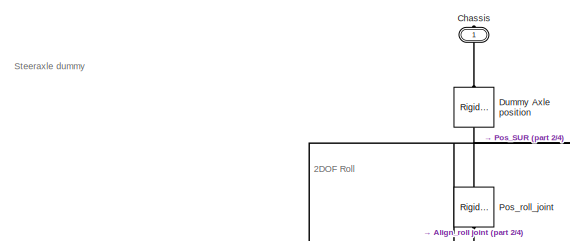
[diagram: Assemblies/Steer axle - part 1/4, top center region]
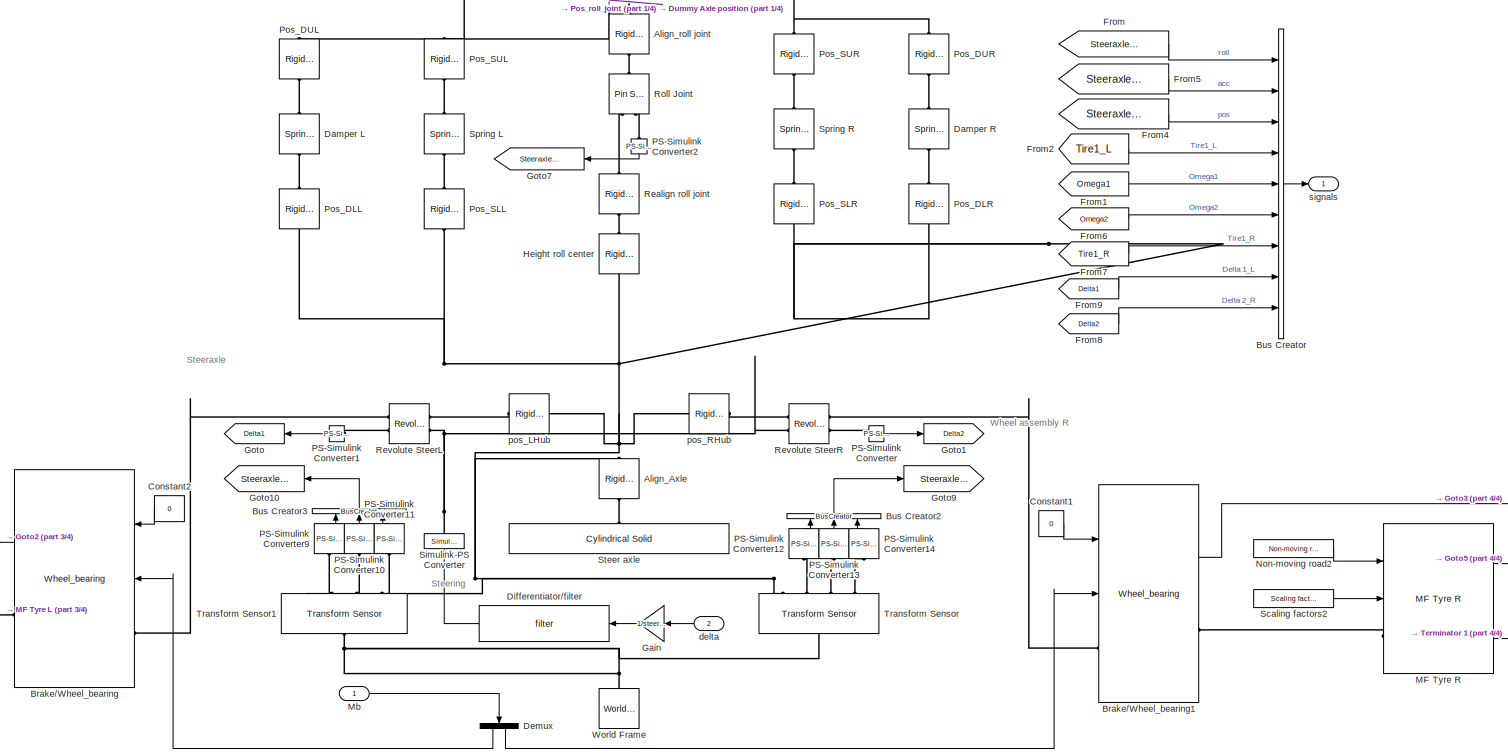
[diagram: Assemblies/Steer axle - part 2/4, most of the canvas]
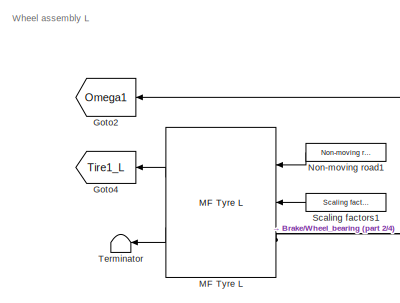
[diagram: Assemblies/Steer axle - part 3/4, bottom left region]
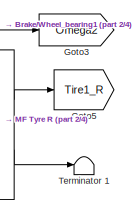
[diagram: Assemblies/Steer axle - part 4/4, bottom right region]
BLOCK [SubSystem] Assemblies/Steer axle
  Ports = [2, 1, 0, 0, 0, 0, 1]
  RequestExecContextInheritance = off
BLOCK [Reference] Assemblies/Steer axle/ Align_roll joint  REF=sm_lib/Frames and
Transforms/Rigid
Transform
  NameLocation = left
  Ports = [0, 0, 0, 0, 0, 1, 1]
  SourceBlock = sm_lib/Frames and\nTransforms/Rigid\nTransform
  SourceProductBaseCode = MS
  SourceType = Rigid\nTransform
BLOCK [Reference] Assemblies/Steer axle/ Height roll center  REF=sm_lib/Frames and
Transforms/Rigid
Transform
  NameLocation = left
  Ports = [0, 0, 0, 0, 0, 1, 1]
  SourceBlock = sm_lib/Frames and\nTransforms/Rigid\nTransform
  SourceProductBaseCode = MS
  SourceType = Rigid\nTransform
BLOCK [Reference] Assemblies/Steer axle/ Pos_roll_joint  REF=sm_lib/Frames and
Transforms/Rigid
Transform
  NameLocation = left
  Ports = [0, 0, 0, 0, 0, 1, 1]
  SourceBlock = sm_lib/Frames and\nTransforms/Rigid\nTransform
  SourceProductBaseCode = MS
  SourceType = Rigid\nTransform
BLOCK [Reference] Assemblies/Steer axle/Align_Axle  REF=sm_lib/Frames and
Transforms/Rigid
Transform
  NameLocation = left
  Ports = [0, 0, 0, 0, 0, 1, 1]
  SourceBlock = sm_lib/Frames and\nTransforms/Rigid\nTransform
  SourceProductBaseCode = MS
  SourceType = Rigid\nTransform
BLOCK [Reference] Assemblies/Steer axle/Brake//Wheel_bearing  REF=$bdroot/Components/Brake//Wheel_bearing
  Ports = [2, 1, 0, 0, 0, 1, 1]
  SourceBlock = $bdroot/Components/Brake//Wheel_bearing
BLOCK [Reference] Assemblies/Steer axle/Brake//Wheel_bearing1  REF=$bdroot/Components/Brake//Wheel_bearing
  Ports = [2, 1, 0, 0, 0, 1, 1]
  SourceBlock = $bdroot/Components/Brake//Wheel_bearing
BLOCK [BusCreator] Assemblies/Steer axle/Bus Creator
  DisplayOption = bar
  InheritFromInputs = on
  Inputs = 9
  Ports = [9, 1]
BLOCK [BusCreator] Assemblies/Steer axle/Bus Creator2
  DisplayOption = bar
  InheritFromInputs = on
  Inputs = 3
  NameLocation = right
  Ports = [3, 1]
BLOCK [BusCreator] Assemblies/Steer axle/Bus Creator3
  DisplayOption = bar
  InheritFromInputs = on
  Inputs = 3
  NameLocation = right
  Ports = [3, 1]
BLOCK [PMIOPort] Assemblies/Steer axle/Chassis
  NameLocation = left
  Side = Right
BLOCK [Constant] Assemblies/Steer axle/Constant1
  Value = 0
BLOCK [Constant] Assemblies/Steer axle/Constant2
  NameLocation = top
  Value = 0
BLOCK [Reference] Assemblies/Steer axle/Damper L  REF=sm_lib/Forces and
Torques/Spring and
Damper Force
  NameLocation = left
  Ports = [0, 0, 0, 0, 0, 1, 1]
  SourceBlock = sm_lib/Forces and\nTorques/Spring and\nDamper Force
  SourceProductBaseCode = MS
  SourceType = Spring and\nDamper Force
BLOCK [Reference] Assemblies/Steer axle/Damper R  REF=sm_lib/Forces and
Torques/Spring and
Damper Force
  NameLocation = right
  Ports = [0, 0, 0, 0, 0, 1, 1]
  SourceBlock = sm_lib/Forces and\nTorques/Spring and\nDamper Force
  SourceProductBaseCode = MS
  SourceType = Spring and\nDamper Force
BLOCK [Demux] Assemblies/Steer axle/Demux
  NameLocation = left
  Outputs = 2
  Ports = [1, 2]
BLOCK [Reference] Assemblies/Steer axle/Differentiator//filter  REF=$bdroot/Utilities/Differentiator//filter
  Ports = [1, 1]
  SourceBlock = $bdroot/Utilities/Differentiator//filter
BLOCK [Reference] Assemblies/Steer axle/Dummy Axle position  REF=sm_lib/Frames and
Transforms/Rigid
Transform
  NameLocation = left
  Ports = [0, 0, 0, 0, 0, 1, 1]
  SourceBlock = sm_lib/Frames and\nTransforms/Rigid\nTransform
  SourceProductBaseCode = MS
  SourceType = Rigid\nTransform
BLOCK [From] Assemblies/Steer axle/From
  GotoTag = Steeraxle_roll
BLOCK [From] Assemblies/Steer axle/From1
  GotoTag = Omega1
  NameLocation = top
BLOCK [From] Assemblies/Steer axle/From2
  GotoTag = Tire1_L
  NameLocation = top
BLOCK [From] Assemblies/Steer axle/From4
  GotoTag = Steeraxle_pos
  NameLocation = top
BLOCK [From] Assemblies/Steer axle/From5
  GotoTag = Steeraxle_acc
  NameLocation = top
BLOCK [From] Assemblies/Steer axle/From6
  GotoTag = Omega2
BLOCK [From] Assemblies/Steer axle/From7
  GotoTag = Tire1_R
BLOCK [From] Assemblies/Steer axle/From8
  GotoTag = Delta2
BLOCK [From] Assemblies/Steer axle/From9
  GotoTag = Delta1
  NameLocation = top
BLOCK [Gain] Assemblies/Steer axle/Gain
  Gain = 1/steerratio
  NameLocation = top
BLOCK [Goto] Assemblies/Steer axle/Goto
  GotoTag = Delta1
  NameLocation = top
BLOCK [Goto] Assemblies/Steer axle/Goto1
  GotoTag = Delta2
BLOCK [Goto] Assemblies/Steer axle/Goto10
  GotoTag = Steeraxle_pos
  NameLocation = top
BLOCK [Goto] Assemblies/Steer axle/Goto2
  GotoTag = Omega1
  NameLocation = top
BLOCK [Goto] Assemblies/Steer axle/Goto3
  GotoTag = Omega2
BLOCK [Goto] Assemblies/Steer axle/Goto4
  GotoTag = Tire1_L
  NameLocation = top
BLOCK [Goto] Assemblies/Steer axle/Goto5
  GotoTag = Tire1_R
BLOCK [Goto] Assemblies/Steer axle/Goto7
  GotoTag = Steeraxle_roll
  NameLocation = top
BLOCK [Goto] Assemblies/Steer axle/Goto9
  GotoTag = Steeraxle_acc
  NameLocation = top
BLOCK [Reference] Assemblies/Steer axle/MF Tyre L  REF=$bdroot/Components/MF Tyre L
  Ports = [2, 2, 0, 0, 0, 1]
  SourceBlock = $bdroot/Components/MF Tyre L
  SourceType = SimMechanics_tyre
  Tag = SimMechanics Wheel + tyre
BLOCK [Reference] Assemblies/Steer axle/MF Tyre R  REF=$bdroot/Components/MF Tyre R
  Ports = [2, 2, 0, 0, 0, 1]
  SourceBlock = $bdroot/Components/MF Tyre R
  SourceType = SimMechanics_tyre
  Tag = SimMechanics Wheel + tyre
BLOCK [Inport] Assemblies/Steer axle/Mb
BLOCK [Reference] Assemblies/Steer axle/Non-moving road1  REF=$bdroot/Utilities/Non-moving road
  Ports = [0, 1]
  SourceBlock = $bdroot/Utilities/Non-moving road
  Tag = Non-moving road
BLOCK [Reference] Assemblies/Steer axle/Non-moving road2  REF=$bdroot/Utilities/Non-moving road
  Ports = [0, 1]
  SourceBlock = $bdroot/Utilities/Non-moving road
  Tag = Non-moving road
BLOCK [Reference] Assemblies/Steer axle/PS-Simulink Converter  REF=nesl_utility/PS-Simulink
Converter
  Ports = [0, 1, 0, 0, 0, 1]
  SourceBlock = nesl_utility/PS-Simulink\nConverter
  SourceProductBaseCode = PW,SS
  SourceType = PS-Simulink\nConverter
BLOCK [Reference] Assemblies/Steer axle/PS-Simulink Converter1  REF=nesl_utility/PS-Simulink
Converter
  NameLocation = top
  Ports = [0, 1, 0, 0, 0, 1]
  SourceBlock = nesl_utility/PS-Simulink\nConverter
  SourceProductBaseCode = PW,SS
  SourceType = PS-Simulink\nConverter
BLOCK [Reference] Assemblies/Steer axle/PS-Simulink Converter10  REF=nesl_utility/PS-Simulink
Converter
  NameLocation = right
  Ports = [0, 1, 0, 0, 0, 1]
  SourceBlock = nesl_utility/PS-Simulink\nConverter
  SourceProductBaseCode = PW,SS
  SourceType = PS-Simulink\nConverter
BLOCK [Reference] Assemblies/Steer axle/PS-Simulink Converter11  REF=nesl_utility/PS-Simulink
Converter
  NameLocation = right
  Ports = [0, 1, 0, 0, 0, 1]
  SourceBlock = nesl_utility/PS-Simulink\nConverter
  SourceProductBaseCode = PW,SS
  SourceType = PS-Simulink\nConverter
BLOCK [Reference] Assemblies/Steer axle/PS-Simulink Converter12  REF=nesl_utility/PS-Simulink
Converter
  NameLocation = right
  Ports = [0, 1, 0, 0, 0, 1]
  SourceBlock = nesl_utility/PS-Simulink\nConverter
  SourceProductBaseCode = PW,SS
  SourceType = PS-Simulink\nConverter
BLOCK [Reference] Assemblies/Steer axle/PS-Simulink Converter13  REF=nesl_utility/PS-Simulink
Converter
  NameLocation = right
  Ports = [0, 1, 0, 0, 0, 1]
  SourceBlock = nesl_utility/PS-Simulink\nConverter
  SourceProductBaseCode = PW,SS
  SourceType = PS-Simulink\nConverter
BLOCK [Reference] Assemblies/Steer axle/PS-Simulink Converter14  REF=nesl_utility/PS-Simulink
Converter
  NameLocation = right
  Ports = [0, 1, 0, 0, 0, 1]
  SourceBlock = nesl_utility/PS-Simulink\nConverter
  SourceProductBaseCode = PW,SS
  SourceType = PS-Simulink\nConverter
BLOCK [Reference] Assemblies/Steer axle/PS-Simulink Converter2  REF=nesl_utility/PS-Simulink
Converter
  NameLocation = left
  Ports = [0, 1, 0, 0, 0, 1]
  SourceBlock = nesl_utility/PS-Simulink\nConverter
  SourceProductBaseCode = PW,SS
  SourceType = PS-Simulink\nConverter
BLOCK [Reference] Assemblies/Steer axle/PS-Simulink Converter9  REF=nesl_utility/PS-Simulink
Converter
  NameLocation = right
  Ports = [0, 1, 0, 0, 0, 1]
  SourceBlock = nesl_utility/PS-Simulink\nConverter
  SourceProductBaseCode = PW,SS
  SourceType = PS-Simulink\nConverter
BLOCK [Reference] Assemblies/Steer axle/Pos_DLL   REF=sm_lib/Frames and
Transforms/Rigid
Transform
  NameLocation = left
  Ports = [0, 0, 0, 0, 0, 1, 1]
  SourceBlock = sm_lib/Frames and\nTransforms/Rigid\nTransform
  SourceProductBaseCode = MS
  SourceType = Rigid\nTransform
BLOCK [Reference] Assemblies/Steer axle/Pos_DLR  REF=sm_lib/Frames and
Transforms/Rigid
Transform
  NameLocation = right
  Ports = [0, 0, 0, 0, 0, 1, 1]
  SourceBlock = sm_lib/Frames and\nTransforms/Rigid\nTransform
  SourceProductBaseCode = MS
  SourceType = Rigid\nTransform
BLOCK [Reference] Assemblies/Steer axle/Pos_DUL   REF=sm_lib/Frames and
Transforms/Rigid
Transform
  NameLocation = left
  Ports = [0, 0, 0, 0, 0, 1, 1]
  SourceBlock = sm_lib/Frames and\nTransforms/Rigid\nTransform
  SourceProductBaseCode = MS
  SourceType = Rigid\nTransform
BLOCK [Reference] Assemblies/Steer axle/Pos_DUR  REF=sm_lib/Frames and
Transforms/Rigid
Transform
  NameLocation = right
  Ports = [0, 0, 0, 0, 0, 1, 1]
  SourceBlock = sm_lib/Frames and\nTransforms/Rigid\nTransform
  SourceProductBaseCode = MS
  SourceType = Rigid\nTransform
BLOCK [Reference] Assemblies/Steer axle/Pos_SLL  REF=sm_lib/Frames and
Transforms/Rigid
Transform
  NameLocation = left
  Ports = [0, 0, 0, 0, 0, 1, 1]
  SourceBlock = sm_lib/Frames and\nTransforms/Rigid\nTransform
  SourceProductBaseCode = MS
  SourceType = Rigid\nTransform
BLOCK [Reference] Assemblies/Steer axle/Pos_SLR  REF=sm_lib/Frames and
Transforms/Rigid
Transform
  NameLocation = right
  Ports = [0, 0, 0, 0, 0, 1, 1]
  SourceBlock = sm_lib/Frames and\nTransforms/Rigid\nTransform
  SourceProductBaseCode = MS
  SourceType = Rigid\nTransform
BLOCK [Reference] Assemblies/Steer axle/Pos_SUL  REF=sm_lib/Frames and
Transforms/Rigid
Transform
  NameLocation = left
  Ports = [0, 0, 0, 0, 0, 1, 1]
  SourceBlock = sm_lib/Frames and\nTransforms/Rigid\nTransform
  SourceProductBaseCode = MS
  SourceType = Rigid\nTransform
BLOCK [Reference] Assemblies/Steer axle/Pos_SUR  REF=sm_lib/Frames and
Transforms/Rigid
Transform
  NameLocation = right
  Ports = [0, 0, 0, 0, 0, 1, 1]
  SourceBlock = sm_lib/Frames and\nTransforms/Rigid\nTransform
  SourceProductBaseCode = MS
  SourceType = Rigid\nTransform
BLOCK [Reference] Assemblies/Steer axle/Realign roll joint  REF=sm_lib/Frames and
Transforms/Rigid
Transform
  NameLocation = left
  Ports = [0, 0, 0, 0, 0, 1, 1]
  SourceBlock = sm_lib/Frames and\nTransforms/Rigid\nTransform
  SourceProductBaseCode = MS
  SourceType = Rigid\nTransform
BLOCK [Reference] Assemblies/Steer axle/Revolute SteerL  REF=sm_lib/Joints/Revolute Joint
  Ports = [0, 0, 0, 0, 0, 2, 2]
  SourceBlock = sm_lib/Joints/Revolute Joint
  SourceProductBaseCode = MS
  SourceType = Revolute Joint
BLOCK [Reference] Assemblies/Steer axle/Revolute SteerR  REF=sm_lib/Joints/Revolute Joint
  Ports = [0, 0, 0, 0, 0, 2, 2]
  SourceBlock = sm_lib/Joints/Revolute Joint
  SourceProductBaseCode = MS
  SourceType = Revolute Joint
BLOCK [Reference] Assemblies/Steer axle/Roll Joint  REF=sm_lib/Joints/Pin Slot Joint
  NameLocation = left
  Ports = [0, 0, 0, 0, 0, 1, 2]
  SourceBlock = sm_lib/Joints/Pin Slot Joint
  SourceProductBaseCode = MS
  SourceType = Pin Slot Joint
BLOCK [Reference] Assemblies/Steer axle/Scaling factors1  REF=$bdroot/Utilities/Scaling factors
  Ports = [0, 1]
  SourceBlock = $bdroot/Utilities/Scaling factors
  Tag = Scaling factors
BLOCK [Reference] Assemblies/Steer axle/Scaling factors2  REF=$bdroot/Utilities/Scaling factors
  Ports = [0, 1]
  SourceBlock = $bdroot/Utilities/Scaling factors
  Tag = Scaling factors
BLOCK [Reference] Assemblies/Steer axle/Simulink-PS Converter  REF=nesl_utility/Simulink-PS
Converter
  NameLocation = left
  Ports = [1, 0, 0, 0, 0, 0, 1]
  SourceBlock = nesl_utility/Simulink-PS\nConverter
  SourceProductBaseCode = PW,SS
  SourceType = Simulink-PS\nConverter
BLOCK [Reference] Assemblies/Steer axle/Spring L  REF=sm_lib/Forces and
Torques/Spring and
Damper Force
  NameLocation = left
  Ports = [0, 0, 0, 0, 0, 1, 1]
  SourceBlock = sm_lib/Forces and\nTorques/Spring and\nDamper Force
  SourceProductBaseCode = MS
  SourceType = Spring and\nDamper Force
BLOCK [Reference] Assemblies/Steer axle/Spring R  REF=sm_lib/Forces and
Torques/Spring and
Damper Force
  NameLocation = right
  Ports = [0, 0, 0, 0, 0, 1, 1]
  SourceBlock = sm_lib/Forces and\nTorques/Spring and\nDamper Force
  SourceProductBaseCode = MS
  SourceType = Spring and\nDamper Force
BLOCK [Reference] Assemblies/Steer axle/Steer axle  REF=sm_lib/Body Elements/Cylindrical Solid
  NameLocation = right
  Ports = [0, 0, 0, 0, 0, 0, 1]
  SourceBlock = sm_lib/Body Elements/Cylindrical Solid
  SourceProductBaseCode = MS
  SourceType = Cylindrical Solid
BLOCK [Terminator] Assemblies/Steer axle/Terminator 
BLOCK [Terminator] Assemblies/Steer axle/Terminator 1
BLOCK [Reference] Assemblies/Steer axle/Transform Sensor  REF=sm_lib/Frames and
Transforms/Transform
Sensor
  NameLocation = right
  Ports = [0, 0, 0, 0, 0, 1, 4]
  SourceBlock = sm_lib/Frames and\nTransforms/Transform\nSensor
  SourceProductBaseCode = MS
  SourceType = Transform\nSensor
BLOCK [Reference] Assemblies/Steer axle/Transform Sensor1  REF=sm_lib/Frames and
Transforms/Transform
Sensor
  NameLocation = right
  Ports = [0, 0, 0, 0, 0, 1, 4]
  SourceBlock = sm_lib/Frames and\nTransforms/Transform\nSensor
  SourceProductBaseCode = MS
  SourceType = Transform\nSensor
BLOCK [Reference] Assemblies/Steer axle/World Frame  REF=sm_lib/Frames and
Transforms/World Frame
  NameLocation = right
  Ports = [0, 0, 0, 0, 0, 0, 1]
  SourceBlock = sm_lib/Frames and\nTransforms/World Frame
  SourceProductBaseCode = MS
  SourceType = World Frame
BLOCK [Inport] Assemblies/Steer axle/delta
  NameLocation = top
  Port = 2
BLOCK [Reference] Assemblies/Steer axle/pos_LHub  REF=sm_lib/Frames and
Transforms/Rigid
Transform
  Ports = [0, 0, 0, 0, 0, 1, 1]
  SourceBlock = sm_lib/Frames and\nTransforms/Rigid\nTransform
  SourceProductBaseCode = MS
  SourceType = Rigid\nTransform
BLOCK [Reference] Assemblies/Steer axle/pos_RHub  REF=sm_lib/Frames and
Transforms/Rigid
Transform
  Ports = [0, 0, 0, 0, 0, 1, 1]
  SourceBlock = sm_lib/Frames and\nTransforms/Rigid\nTransform
  SourceProductBaseCode = MS
  SourceType = Rigid\nTransform
BLOCK [Outport] Assemblies/Steer axle/signals
BLOCK [SubSystem] Assemblies/Trailer axle
  Ports = [1, 1, 0, 0, 0, 1]
  RequestExecContextInheritance = off
BLOCK [Reference] Assemblies/Trailer axle/ Align_roll joint  REF=sm_lib/Frames and
Transforms/Rigid
Transform
  NameLocation = left
  Ports = [0, 0, 0, 0, 0, 1, 1]
  SourceBlock = sm_lib/Frames and\nTransforms/Rigid\nTransform
  SourceProductBaseCode = MS
  SourceType = Rigid\nTransform
BLOCK [Reference] Assemblies/Trailer axle/ Height roll center  REF=sm_lib/Frames and
Transforms/Rigid
Transform
  NameLocation = left
  Ports = [0, 0, 0, 0, 0, 1, 1]
  SourceBlock = sm_lib/Frames and\nTransforms/Rigid\nTransform
  SourceProductBaseCode = MS
  SourceType = Rigid\nTransform
BLOCK [Reference] Assemblies/Trailer axle/ Pos_roll_joint  REF=sm_lib/Frames and
Transforms/Rigid
Transform
  NameLocation = left
  Ports = [0, 0, 0, 0, 0, 1, 1]
  SourceBlock = sm_lib/Frames and\nTransforms/Rigid\nTransform
  SourceProductBaseCode = MS
  SourceType = Rigid\nTransform
BLOCK [Reference] Assemblies/Trailer axle/Align_Axle  REF=sm_lib/Frames and
Transforms/Rigid
Transform
  NameLocation = left
  Ports = [0, 0, 0, 0, 0, 1, 1]
  SourceBlock = sm_lib/Frames and\nTransforms/Rigid\nTransform
  SourceProductBaseCode = MS
  SourceType = Rigid\nTransform
BLOCK [Reference] Assemblies/Trailer axle/Axle  REF=sm_lib/Body Elements/Cylindrical Solid
  Ports = [0, 0, 0, 0, 0, 0, 1]
  SourceBlock = sm_lib/Body Elements/Cylindrical Solid
  SourceProductBaseCode = MS
  SourceType = Cylindrical Solid
BLOCK [Reference] Assemblies/Trailer axle/Brake//Wheel_bearing  REF=$bdroot/Components/Brake//Wheel_bearing
  Ports = [2, 1, 0, 0, 0, 1, 1]
  SourceBlock = $bdroot/Components/Brake//Wheel_bearing
BLOCK [Reference] Assemblies/Trailer axle/Brake//Wheel_bearing1  REF=$bdroot/Components/Brake//Wheel_bearing
  Ports = [2, 1, 0, 0, 0, 1, 1]
  SourceBlock = $bdroot/Components/Brake//Wheel_bearing
BLOCK [BusCreator] Assemblies/Trailer axle/Bus Creator
  DisplayOption = bar
  InheritFromInputs = on
  Inputs = 7
  Ports = [7, 1]
BLOCK [BusCreator] Assemblies/Trailer axle/Bus Creator1
  DisplayOption = bar
  InheritFromInputs = on
  Inputs = 3
  Ports = [3, 1]
BLOCK [BusCreator] Assemblies/Trailer axle/Bus Creator2
  DisplayOption = bar
  InheritFromInputs = on
  Inputs = 3
  NameLocation = top
  Ports = [3, 1]
BLOCK [PMIOPort] Assemblies/Trailer axle/Chassis
  NameLocation = left
  Side = Left
  Tag = PMCPort
BLOCK [Constant] Assemblies/Trailer axle/Constant
  Value = 0
BLOCK [Constant] Assemblies/Trailer axle/Constant1
  Value = 0
BLOCK [Reference] Assemblies/Trailer axle/Damper L  REF=sm_lib/Forces and
Torques/Spring and
Damper Force
  NameLocation = left
  Ports = [0, 0, 0, 0, 0, 1, 1]
  SourceBlock = sm_lib/Forces and\nTorques/Spring and\nDamper Force
  SourceProductBaseCode = MS
  SourceType = Spring and\nDamper Force
BLOCK [Reference] Assemblies/Trailer axle/Damper R  REF=sm_lib/Forces and
Torques/Spring and
Damper Force
  NameLocation = right
  Ports = [0, 0, 0, 0, 0, 1, 1]
  SourceBlock = sm_lib/Forces and\nTorques/Spring and\nDamper Force
  SourceProductBaseCode = MS
  SourceType = Spring and\nDamper Force
BLOCK [Demux] Assemblies/Trailer axle/Demux
  NameLocation = left
  Outputs = 2
  Ports = [1, 2]
BLOCK [Reference] Assemblies/Trailer axle/Dummy Axle position  REF=sm_lib/Frames and
Transforms/Rigid
Transform
  NameLocation = left
  Ports = [0, 0, 0, 0, 0, 1, 1]
  SourceBlock = sm_lib/Frames and\nTransforms/Rigid\nTransform
  SourceProductBaseCode = MS
  SourceType = Rigid\nTransform
BLOCK [From] Assemblies/Trailer axle/From
  GotoTag = Axle_roll
BLOCK [From] Assemblies/Trailer axle/From1
  GotoTag = Omega1
  NameLocation = top
BLOCK [From] Assemblies/Trailer axle/From2
  GotoTag = Tire1_L
  NameLocation = top
BLOCK [From] Assemblies/Trailer axle/From4
  GotoTag = Axle_pos
  NameLocation = top
BLOCK [From] Assemblies/Trailer axle/From5
  GotoTag = Axle_acc
  NameLocation = top
BLOCK [From] Assemblies/Trailer axle/From6
  GotoTag = Omega2
BLOCK [From] Assemblies/Trailer axle/From7
  GotoTag = Tire1_R
BLOCK [Goto] Assemblies/Trailer axle/Goto
  GotoTag = Axle_acc
  NameLocation = top
BLOCK [Goto] Assemblies/Trailer axle/Goto2
  GotoTag = Axle_roll
  NameLocation = top
BLOCK [Goto] Assemblies/Trailer axle/Goto3
  GotoTag = Axle_pos
  NameLocation = top
BLOCK [Goto] Assemblies/Trailer axle/Goto4
  GotoTag = Omega1
  NameLocation = top
BLOCK [Goto] Assemblies/Trailer axle/Goto5
  GotoTag = Tire1_L
  NameLocation = top
BLOCK [Goto] Assemblies/Trailer axle/Goto6
  GotoTag = Omega2
BLOCK [Goto] Assemblies/Trailer axle/Goto7
  GotoTag = Tire1_R
BLOCK [Reference] Assemblies/Trailer axle/MF Tyre L  REF=$bdroot/Components/MF Tyre L
  Ports = [2, 2, 0, 0, 0, 1]
  SourceBlock = $bdroot/Components/MF Tyre L
  SourceType = SimMechanics_tyre
  Tag = SimMechanics Wheel + tyre
BLOCK [Reference] Assemblies/Trailer axle/MF Tyre R  REF=$bdroot/Components/MF Tyre R
  Ports = [2, 2, 0, 0, 0, 1]
  SourceBlock = $bdroot/Components/MF Tyre R
  SourceType = SimMechanics_tyre
  Tag = SimMechanics Wheel + tyre
BLOCK [Inport] Assemblies/Trailer axle/Mb
BLOCK [Reference] Assemblies/Trailer axle/Non-moving road  REF=$bdroot/Utilities/Non-moving road
  Ports = [0, 1]
  SourceBlock = $bdroot/Utilities/Non-moving road
  Tag = Non-moving road
BLOCK [Reference] Assemblies/Trailer axle/Non-moving road1  REF=$bdroot/Utilities/Non-moving road
  Ports = [0, 1]
  SourceBlock = $bdroot/Utilities/Non-moving road
  Tag = Non-moving road
BLOCK [Reference] Assemblies/Trailer axle/PS-Simulink Converter  REF=nesl_utility/PS-Simulink
Converter
  NameLocation = top
  Ports = [0, 1, 0, 0, 0, 1]
  SourceBlock = nesl_utility/PS-Simulink\nConverter
  SourceProductBaseCode = PW,SS
  SourceType = PS-Simulink\nConverter
BLOCK [Reference] Assemblies/Trailer axle/PS-Simulink Converter1  REF=nesl_utility/PS-Simulink
Converter
  NameLocation = top
  Ports = [0, 1, 0, 0, 0, 1]
  SourceBlock = nesl_utility/PS-Simulink\nConverter
  SourceProductBaseCode = PW,SS
  SourceType = PS-Simulink\nConverter
BLOCK [Reference] Assemblies/Trailer axle/PS-Simulink Converter2  REF=nesl_utility/PS-Simulink
Converter
  NameLocation = top
  Ports = [0, 1, 0, 0, 0, 1]
  SourceBlock = nesl_utility/PS-Simulink\nConverter
  SourceProductBaseCode = PW,SS
  SourceType = PS-Simulink\nConverter
BLOCK [Reference] Assemblies/Trailer axle/PS-Simulink Converter3  REF=nesl_utility/PS-Simulink
Converter
  Ports = [0, 1, 0, 0, 0, 1]
  SourceBlock = nesl_utility/PS-Simulink\nConverter
  SourceProductBaseCode = PW,SS
  SourceType = PS-Simulink\nConverter
BLOCK [Reference] Assemblies/Trailer axle/PS-Simulink Converter4  REF=nesl_utility/PS-Simulink
Converter
  Ports = [0, 1, 0, 0, 0, 1]
  SourceBlock = nesl_utility/PS-Simulink\nConverter
  SourceProductBaseCode = PW,SS
  SourceType = PS-Simulink\nConverter
BLOCK [Reference] Assemblies/Trailer axle/PS-Simulink Converter5  REF=nesl_utility/PS-Simulink
Converter
  Ports = [0, 1, 0, 0, 0, 1]
  SourceBlock = nesl_utility/PS-Simulink\nConverter
  SourceProductBaseCode = PW,SS
  SourceType = PS-Simulink\nConverter
BLOCK [Reference] Assemblies/Trailer axle/PS-Simulink Converter6  REF=nesl_utility/PS-Simulink
Converter
  NameLocation = left
  Ports = [0, 1, 0, 0, 0, 1]
  SourceBlock = nesl_utility/PS-Simulink\nConverter
  SourceProductBaseCode = PW,SS
  SourceType = PS-Simulink\nConverter
BLOCK [Reference] Assemblies/Trailer axle/Pos_DLL   REF=sm_lib/Frames and
Transforms/Rigid
Transform
  NameLocation = left
  Ports = [0, 0, 0, 0, 0, 1, 1]
  SourceBlock = sm_lib/Frames and\nTransforms/Rigid\nTransform
  SourceProductBaseCode = MS
  SourceType = Rigid\nTransform
BLOCK [Reference] Assemblies/Trailer axle/Pos_DLR  REF=sm_lib/Frames and
Transforms/Rigid
Transform
  NameLocation = right
  Ports = [0, 0, 0, 0, 0, 1, 1]
  SourceBlock = sm_lib/Frames and\nTransforms/Rigid\nTransform
  SourceProductBaseCode = MS
  SourceType = Rigid\nTransform
BLOCK [Reference] Assemblies/Trailer axle/Pos_DUL   REF=sm_lib/Frames and
Transforms/Rigid
Transform
  NameLocation = left
  Ports = [0, 0, 0, 0, 0, 1, 1]
  SourceBlock = sm_lib/Frames and\nTransforms/Rigid\nTransform
  SourceProductBaseCode = MS
  SourceType = Rigid\nTransform
BLOCK [Reference] Assemblies/Trailer axle/Pos_DUR  REF=sm_lib/Frames and
Transforms/Rigid
Transform
  NameLocation = right
  Ports = [0, 0, 0, 0, 0, 1, 1]
  SourceBlock = sm_lib/Frames and\nTransforms/Rigid\nTransform
  SourceProductBaseCode = MS
  SourceType = Rigid\nTransform
BLOCK [Reference] Assemblies/Trailer axle/Pos_SLL  REF=sm_lib/Frames and
Transforms/Rigid
Transform
  NameLocation = left
  Ports = [0, 0, 0, 0, 0, 1, 1]
  SourceBlock = sm_lib/Frames and\nTransforms/Rigid\nTransform
  SourceProductBaseCode = MS
  SourceType = Rigid\nTransform
BLOCK [Reference] Assemblies/Trailer axle/Pos_SLR  REF=sm_lib/Frames and
Transforms/Rigid
Transform
  NameLocation = right
  Ports = [0, 0, 0, 0, 0, 1, 1]
  SourceBlock = sm_lib/Frames and\nTransforms/Rigid\nTransform
  SourceProductBaseCode = MS
  SourceType = Rigid\nTransform
BLOCK [Reference] Assemblies/Trailer axle/Pos_SUL  REF=sm_lib/Frames and
Transforms/Rigid
Transform
  NameLocation = left
  Ports = [0, 0, 0, 0, 0, 1, 1]
  SourceBlock = sm_lib/Frames and\nTransforms/Rigid\nTransform
  SourceProductBaseCode = MS
  SourceType = Rigid\nTransform
BLOCK [Reference] Assemblies/Trailer axle/Pos_SUR  REF=sm_lib/Frames and
Transforms/Rigid
Transform
  NameLocation = right
  Ports = [0, 0, 0, 0, 0, 1, 1]
  SourceBlock = sm_lib/Frames and\nTransforms/Rigid\nTransform
  SourceProductBaseCode = MS
  SourceType = Rigid\nTransform
BLOCK [Reference] Assemblies/Trailer axle/Realign roll joint  REF=sm_lib/Frames and
Transforms/Rigid
Transform
  NameLocation = left
  Ports = [0, 0, 0, 0, 0, 1, 1]
  SourceBlock = sm_lib/Frames and\nTransforms/Rigid\nTransform
  SourceProductBaseCode = MS
  SourceType = Rigid\nTransform
BLOCK [Reference] Assemblies/Trailer axle/Roll Joint  REF=sm_lib/Joints/Pin Slot Joint
  NameLocation = left
  Ports = [0, 0, 0, 0, 0, 1, 2]
  SourceBlock = sm_lib/Joints/Pin Slot Joint
  SourceProductBaseCode = MS
  SourceType = Pin Slot Joint
BLOCK [Reference] Assemblies/Trailer axle/Scaling factors  REF=$bdroot/Utilities/Scaling factors
  Ports = [0, 1]
  SourceBlock = $bdroot/Utilities/Scaling factors
  Tag = Scaling factors
BLOCK [Reference] Assemblies/Trailer axle/Scaling factors1  REF=$bdroot/Utilities/Scaling factors
  Ports = [0, 1]
  SourceBlock = $bdroot/Utilities/Scaling factors
  Tag = Scaling factors
BLOCK [Reference] Assemblies/Trailer axle/Spring L  REF=sm_lib/Forces and
Torques/Spring and
Damper Force
  NameLocation = left
  Ports = [0, 0, 0, 0, 0, 1, 1]
  SourceBlock = sm_lib/Forces and\nTorques/Spring and\nDamper Force
  SourceProductBaseCode = MS
  SourceType = Spring and\nDamper Force
BLOCK [Reference] Assemblies/Trailer axle/Spring R  REF=sm_lib/Forces and
Torques/Spring and
Damper Force
  NameLocation = right
  Ports = [0, 0, 0, 0, 0, 1, 1]
  SourceBlock = sm_lib/Forces and\nTorques/Spring and\nDamper Force
  SourceProductBaseCode = MS
  SourceType = Spring and\nDamper Force
BLOCK [Terminator] Assemblies/Trailer axle/Terminator 1
BLOCK [Terminator] Assemblies/Trailer axle/Terminator 2
BLOCK [Reference] Assemblies/Trailer axle/Transform Sensor  REF=sm_lib/Frames and
Transforms/Transform
Sensor
  Ports = [0, 0, 0, 0, 0, 1, 4]
  SourceBlock = sm_lib/Frames and\nTransforms/Transform\nSensor
  SourceProductBaseCode = MS
  SourceType = Transform\nSensor
BLOCK [Reference] Assemblies/Trailer axle/Transform Sensor1  REF=sm_lib/Frames and
Transforms/Transform
Sensor
  Ports = [0, 0, 0, 0, 0, 1, 4]
  SourceBlock = sm_lib/Frames and\nTransforms/Transform\nSensor
  SourceProductBaseCode = MS
  SourceType = Transform\nSensor
BLOCK [Reference] Assemblies/Trailer axle/World Frame  REF=sm_lib/Frames and
Transforms/World Frame
  NameLocation = right
  Ports = [0, 0, 0, 0, 0, 0, 1]
  SourceBlock = sm_lib/Frames and\nTransforms/World Frame
  SourceProductBaseCode = MS
  SourceType = World Frame
BLOCK [Reference] Assemblies/Trailer axle/pos_LHub  REF=sm_lib/Frames and
Transforms/Rigid
Transform
  Ports = [0, 0, 0, 0, 0, 1, 1]
  SourceBlock = sm_lib/Frames and\nTransforms/Rigid\nTransform
  SourceProductBaseCode = MS
  SourceType = Rigid\nTransform
BLOCK [Reference] Assemblies/Trailer axle/pos_RHub  REF=sm_lib/Frames and
Transforms/Rigid
Transform
  Ports = [0, 0, 0, 0, 0, 1, 1]
  SourceBlock = sm_lib/Frames and\nTransforms/Rigid\nTransform
  SourceProductBaseCode = MS
  SourceType = Rigid\nTransform
BLOCK [Outport] Assemblies/Trailer axle/signals
BLOCK [SubSystem] Assemblies/Trailer load center
  Ports = [0, 1, 0, 0, 0, 1]
  RequestExecContextInheritance = off
BLOCK [BusCreator] Assemblies/Trailer load center/Bus Creator1
  DisplayOption = bar
  InheritFromInputs = on
  Inputs = 3
  Ports = [3, 1]
BLOCK [PMIOPort] Assemblies/Trailer load center/Chassis
  NameLocation = right
  Side = Left
BLOCK [Fcn] Assemblies/Trailer load center/Fcn1
  Expr = u(2)
BLOCK [Fcn] Assemblies/Trailer load center/Fcn2
  Expr = u(2)
BLOCK [From] Assemblies/Trailer load center/From
  GotoTag = Load_acc_center
BLOCK [From] Assemblies/Trailer load center/From1
  GotoTag = Load_acc_corner
BLOCK [From] Assemblies/Trailer load center/From4
  GotoTag = Load_pos
BLOCK [Goto] Assemblies/Trailer load center/Goto1
  GotoTag = Load_pos
BLOCK [Goto] Assemblies/Trailer load center/Goto2
  GotoTag = Load_acc_corner
BLOCK [Goto] Assemblies/Trailer load center/Goto3
  GotoTag = Load_acc_center
BLOCK [Reference] Assemblies/Trailer load center/Load   REF=sm_lib/Body Elements/Brick Solid
  NameLocation = right
  Ports = [0, 0, 0, 0, 0, 0, 1]
  SourceBlock = sm_lib/Body Elements/Brick Solid
  SourceProductBaseCode = MS
  SourceType = Brick Solid
BLOCK [Mux] Assemblies/Trailer load center/Mux
  DisplayOption = bar
  Inputs = 3
  Ports = [3, 1]
BLOCK [Mux] Assemblies/Trailer load center/Mux1
  DisplayOption = bar
  Inputs = 3
  Ports = [3, 1]
BLOCK [Mux] Assemblies/Trailer load center/Mux2
  DisplayOption = bar
  Inputs = 3
  Ports = [3, 1]
BLOCK [Outport] Assemblies/Trailer load center/Out1
BLOCK [Reference] Assemblies/Trailer load center/PS-Simulink Converter  REF=nesl_utility/PS-Simulink
Converter
  Ports = [0, 1, 0, 0, 0, 1]
  SourceBlock = nesl_utility/PS-Simulink\nConverter
  SourceProductBaseCode = PW,SS
  SourceType = PS-Simulink\nConverter
BLOCK [Reference] Assemblies/Trailer load center/PS-Simulink Converter1  REF=nesl_utility/PS-Simulink
Converter
  Ports = [0, 1, 0, 0, 0, 1]
  SourceBlock = nesl_utility/PS-Simulink\nConverter
  SourceProductBaseCode = PW,SS
  SourceType = PS-Simulink\nConverter
BLOCK [Reference] Assemblies/Trailer load center/PS-Simulink Converter2  REF=nesl_utility/PS-Simulink
Converter
  Ports = [0, 1, 0, 0, 0, 1]
  SourceBlock = nesl_utility/PS-Simulink\nConverter
  SourceProductBaseCode = PW,SS
  SourceType = PS-Simulink\nConverter
BLOCK [Reference] Assemblies/Trailer load center/PS-Simulink Converter3  REF=nesl_utility/PS-Simulink
Converter
  Ports = [0, 1, 0, 0, 0, 1]
  SourceBlock = nesl_utility/PS-Simulink\nConverter
  SourceProductBaseCode = PW,SS
  SourceType = PS-Simulink\nConverter
BLOCK [Reference] Assemblies/Trailer load center/PS-Simulink Converter4  REF=nesl_utility/PS-Simulink
Converter
  Ports = [0, 1, 0, 0, 0, 1]
  SourceBlock = nesl_utility/PS-Simulink\nConverter
  SourceProductBaseCode = PW,SS
  SourceType = PS-Simulink\nConverter
BLOCK [Reference] Assemblies/Trailer load center/PS-Simulink Converter5  REF=nesl_utility/PS-Simulink
Converter
  Ports = [0, 1, 0, 0, 0, 1]
  SourceBlock = nesl_utility/PS-Simulink\nConverter
  SourceProductBaseCode = PW,SS
  SourceType = PS-Simulink\nConverter
BLOCK [Reference] Assemblies/Trailer load center/PS-Simulink Converter6  REF=nesl_utility/PS-Simulink
Converter
  Ports = [0, 1, 0, 0, 0, 1]
  SourceBlock = nesl_utility/PS-Simulink\nConverter
  SourceProductBaseCode = PW,SS
  SourceType = PS-Simulink\nConverter
BLOCK [Reference] Assemblies/Trailer load center/PS-Simulink Converter7  REF=nesl_utility/PS-Simulink
Converter
  Ports = [0, 1, 0, 0, 0, 1]
  SourceBlock = nesl_utility/PS-Simulink\nConverter
  SourceProductBaseCode = PW,SS
  SourceType = PS-Simulink\nConverter
BLOCK [Reference] Assemblies/Trailer load center/PS-Simulink Converter8  REF=nesl_utility/PS-Simulink
Converter
  Ports = [0, 1, 0, 0, 0, 1]
  SourceBlock = nesl_utility/PS-Simulink\nConverter
  SourceProductBaseCode = PW,SS
  SourceType = PS-Simulink\nConverter
BLOCK [Reference] Assemblies/Trailer load center/Transform Sensor  REF=sm_lib/Frames and
Transforms/Transform
Sensor
  Ports = [0, 0, 0, 0, 0, 1, 4]
  SourceBlock = sm_lib/Frames and\nTransforms/Transform\nSensor
  SourceProductBaseCode = MS
  SourceType = Transform\nSensor
BLOCK [Reference] Assemblies/Trailer load center/Transform Sensor1  REF=sm_lib/Frames and
Transforms/Transform
Sensor
  Ports = [0, 0, 0, 0, 0, 1, 4]
  SourceBlock = sm_lib/Frames and\nTransforms/Transform\nSensor
  SourceProductBaseCode = MS
  SourceType = Transform\nSensor
BLOCK [Reference] Assemblies/Trailer load center/Transform Sensor2  REF=sm_lib/Frames and
Transforms/Transform
Sensor
  Ports = [0, 0, 0, 0, 0, 1, 4]
  SourceBlock = sm_lib/Frames and\nTransforms/Transform\nSensor
  SourceProductBaseCode = MS
  SourceType = Transform\nSensor
BLOCK [Reference] Assemblies/Trailer load center/Weld Joint  REF=sm_lib/Joints/Weld Joint
  NameLocation = right
  Ports = [0, 0, 0, 0, 0, 1, 1]
  SourceBlock = sm_lib/Joints/Weld Joint
  SourceProductBaseCode = MS
  SourceType = Weld Joint
BLOCK [Reference] Assemblies/Trailer load center/World Frame  REF=sm_lib/Frames and
Transforms/World Frame
  Ports = [0, 0, 0, 0, 0, 0, 1]
  SourceBlock = sm_lib/Frames and\nTransforms/World Frame
  SourceProductBaseCode = MS
  SourceType = World Frame
BLOCK [Reference] Assemblies/Trailer load center/World Frame1  REF=sm_lib/Frames and
Transforms/World Frame
  Ports = [0, 0, 0, 0, 0, 0, 1]
  SourceBlock = sm_lib/Frames and\nTransforms/World Frame
  SourceProductBaseCode = MS
  SourceType = World Frame
BLOCK [Reference] Assemblies/Trailer load center/World Frame2  REF=sm_lib/Frames and
Transforms/World Frame
  Ports = [0, 0, 0, 0, 0, 0, 1]
  SourceBlock = sm_lib/Frames and\nTransforms/World Frame
  SourceProductBaseCode = MS
  SourceType = World Frame
BLOCK [Reference] Assemblies/Trailer load center/load_corner_pos  REF=sm_lib/Frames and
Transforms/Rigid
Transform
  NameLocation = top
  Ports = [0, 0, 0, 0, 0, 1, 1]
  SourceBlock = sm_lib/Frames and\nTransforms/Rigid\nTransform
  SourceProductBaseCode = MS
  SourceType = Rigid\nTransform
BLOCK [Reference] Assemblies/Trailer load center/pos_load  REF=sm_lib/Frames and
Transforms/Rigid
Transform
  NameLocation = right
  Ports = [0, 0, 0, 0, 0, 1, 1]
  SourceBlock = sm_lib/Frames and\nTransforms/Rigid\nTransform
  SourceProductBaseCode = MS
  SourceType = Rigid\nTransform
BLOCK [SubSystem] Assemblies/Trailer load front
  Ports = [0, 1, 0, 0, 0, 1]
  RequestExecContextInheritance = off
BLOCK [BusCreator] Assemblies/Trailer load front/Bus Creator1
  DisplayOption = bar
  InheritFromInputs = on
  Inputs = 3
  Ports = [3, 1]
BLOCK [PMIOPort] Assemblies/Trailer load front/Chassis
  NameLocation = right
  Side = Left
BLOCK [Fcn] Assemblies/Trailer load front/Fcn1
  Expr = u(2)
BLOCK [Fcn] Assemblies/Trailer load front/Fcn2
  Expr = u(2)
BLOCK [From] Assemblies/Trailer load front/From
  GotoTag = Load_acc_center
BLOCK [From] Assemblies/Trailer load front/From1
  GotoTag = Load_acc_corner
BLOCK [From] Assemblies/Trailer load front/From4
  GotoTag = Load_pos
BLOCK [Goto] Assemblies/Trailer load front/Goto1
  GotoTag = Load_pos
BLOCK [Goto] Assemblies/Trailer load front/Goto2
  GotoTag = Load_acc_corner
BLOCK [Goto] Assemblies/Trailer load front/Goto3
  GotoTag = Load_acc_center
BLOCK [Reference] Assemblies/Trailer load front/Load   REF=sm_lib/Body Elements/Brick Solid
  NameLocation = right
  Ports = [0, 0, 0, 0, 0, 0, 1]
  SourceBlock = sm_lib/Body Elements/Brick Solid
  SourceProductBaseCode = MS
  SourceType = Brick Solid
BLOCK [Mux] Assemblies/Trailer load front/Mux
  DisplayOption = bar
  Inputs = 3
  Ports = [3, 1]
BLOCK [Mux] Assemblies/Trailer load front/Mux1
  DisplayOption = bar
  Inputs = 3
  Ports = [3, 1]
BLOCK [Mux] Assemblies/Trailer load front/Mux2
  DisplayOption = bar
  Inputs = 3
  Ports = [3, 1]
BLOCK [Outport] Assemblies/Trailer load front/Out1
BLOCK [Reference] Assemblies/Trailer load front/PS-Simulink Converter  REF=nesl_utility/PS-Simulink
Converter
  Ports = [0, 1, 0, 0, 0, 1]
  SourceBlock = nesl_utility/PS-Simulink\nConverter
  SourceProductBaseCode = PW,SS
  SourceType = PS-Simulink\nConverter
BLOCK [Reference] Assemblies/Trailer load front/PS-Simulink Converter1  REF=nesl_utility/PS-Simulink
Converter
  Ports = [0, 1, 0, 0, 0, 1]
  SourceBlock = nesl_utility/PS-Simulink\nConverter
  SourceProductBaseCode = PW,SS
  SourceType = PS-Simulink\nConverter
BLOCK [Reference] Assemblies/Trailer load front/PS-Simulink Converter2  REF=nesl_utility/PS-Simulink
Converter
  Ports = [0, 1, 0, 0, 0, 1]
  SourceBlock = nesl_utility/PS-Simulink\nConverter
  SourceProductBaseCode = PW,SS
  SourceType = PS-Simulink\nConverter
BLOCK [Reference] Assemblies/Trailer load front/PS-Simulink Converter3  REF=nesl_utility/PS-Simulink
Converter
  Ports = [0, 1, 0, 0, 0, 1]
  SourceBlock = nesl_utility/PS-Simulink\nConverter
  SourceProductBaseCode = PW,SS
  SourceType = PS-Simulink\nConverter
BLOCK [Reference] Assemblies/Trailer load front/PS-Simulink Converter4  REF=nesl_utility/PS-Simulink
Converter
  Ports = [0, 1, 0, 0, 0, 1]
  SourceBlock = nesl_utility/PS-Simulink\nConverter
  SourceProductBaseCode = PW,SS
  SourceType = PS-Simulink\nConverter
BLOCK [Reference] Assemblies/Trailer load front/PS-Simulink Converter5  REF=nesl_utility/PS-Simulink
Converter
  Ports = [0, 1, 0, 0, 0, 1]
  SourceBlock = nesl_utility/PS-Simulink\nConverter
  SourceProductBaseCode = PW,SS
  SourceType = PS-Simulink\nConverter
BLOCK [Reference] Assemblies/Trailer load front/PS-Simulink Converter6  REF=nesl_utility/PS-Simulink
Converter
  Ports = [0, 1, 0, 0, 0, 1]
  SourceBlock = nesl_utility/PS-Simulink\nConverter
  SourceProductBaseCode = PW,SS
  SourceType = PS-Simulink\nConverter
BLOCK [Reference] Assemblies/Trailer load front/PS-Simulink Converter7  REF=nesl_utility/PS-Simulink
Converter
  Ports = [0, 1, 0, 0, 0, 1]
  SourceBlock = nesl_utility/PS-Simulink\nConverter
  SourceProductBaseCode = PW,SS
  SourceType = PS-Simulink\nConverter
BLOCK [Reference] Assemblies/Trailer load front/PS-Simulink Converter8  REF=nesl_utility/PS-Simulink
Converter
  Ports = [0, 1, 0, 0, 0, 1]
  SourceBlock = nesl_utility/PS-Simulink\nConverter
  SourceProductBaseCode = PW,SS
  SourceType = PS-Simulink\nConverter
BLOCK [Reference] Assemblies/Trailer load front/Transform Sensor  REF=sm_lib/Frames and
Transforms/Transform
Sensor
  Ports = [0, 0, 0, 0, 0, 1, 4]
  SourceBlock = sm_lib/Frames and\nTransforms/Transform\nSensor
  SourceProductBaseCode = MS
  SourceType = Transform\nSensor
BLOCK [Reference] Assemblies/Trailer load front/Transform Sensor1  REF=sm_lib/Frames and
Transforms/Transform
Sensor
  Ports = [0, 0, 0, 0, 0, 1, 4]
  SourceBlock = sm_lib/Frames and\nTransforms/Transform\nSensor
  SourceProductBaseCode = MS
  SourceType = Transform\nSensor
BLOCK [Reference] Assemblies/Trailer load front/Transform Sensor2  REF=sm_lib/Frames and
Transforms/Transform
Sensor
  Ports = [0, 0, 0, 0, 0, 1, 4]
  SourceBlock = sm_lib/Frames and\nTransforms/Transform\nSensor
  SourceProductBaseCode = MS
  SourceType = Transform\nSensor
BLOCK [Reference] Assemblies/Trailer load front/Weld Joint  REF=sm_lib/Joints/Weld Joint
  NameLocation = right
  Ports = [0, 0, 0, 0, 0, 1, 1]
  SourceBlock = sm_lib/Joints/Weld Joint
  SourceProductBaseCode = MS
  SourceType = Weld Joint
BLOCK [Reference] Assemblies/Trailer load front/World Frame  REF=sm_lib/Frames and
Transforms/World Frame
  Ports = [0, 0, 0, 0, 0, 0, 1]
  SourceBlock = sm_lib/Frames and\nTransforms/World Frame
  SourceProductBaseCode = MS
  SourceType = World Frame
BLOCK [Reference] Assemblies/Trailer load front/World Frame1  REF=sm_lib/Frames and
Transforms/World Frame
  Ports = [0, 0, 0, 0, 0, 0, 1]
  SourceBlock = sm_lib/Frames and\nTransforms/World Frame
  SourceProductBaseCode = MS
  SourceType = World Frame
BLOCK [Reference] Assemblies/Trailer load front/World Frame2  REF=sm_lib/Frames and
Transforms/World Frame
  Ports = [0, 0, 0, 0, 0, 0, 1]
  SourceBlock = sm_lib/Frames and\nTransforms/World Frame
  SourceProductBaseCode = MS
  SourceType = World Frame
BLOCK [Reference] Assemblies/Trailer load front/load_corner_pos  REF=sm_lib/Frames and
Transforms/Rigid
Transform
  NameLocation = top
  Ports = [0, 0, 0, 0, 0, 1, 1]
  SourceBlock = sm_lib/Frames and\nTransforms/Rigid\nTransform
  SourceProductBaseCode = MS
  SourceType = Rigid\nTransform
BLOCK [Reference] Assemblies/Trailer load front/pos_load  REF=sm_lib/Frames and
Transforms/Rigid
Transform
  NameLocation = right
  Ports = [0, 0, 0, 0, 0, 1, 1]
  SourceBlock = sm_lib/Frames and\nTransforms/Rigid\nTransform
  SourceProductBaseCode = MS
  SourceType = Rigid\nTransform
BLOCK [SubSystem] Assemblies/Trailer load rear
  Ports = [0, 1, 0, 0, 0, 1]
  RequestExecContextInheritance = off
BLOCK [BusCreator] Assemblies/Trailer load rear/Bus Creator1
  DisplayOption = bar
  InheritFromInputs = on
  Inputs = 3
  Ports = [3, 1]
BLOCK [PMIOPort] Assemblies/Trailer load rear/Chassis
  NameLocation = right
  Side = Left
BLOCK [Fcn] Assemblies/Trailer load rear/Fcn1
  Expr = u(2)
BLOCK [Fcn] Assemblies/Trailer load rear/Fcn2
  Expr = u(2)
BLOCK [From] Assemblies/Trailer load rear/From
  GotoTag = Load_acc_center
BLOCK [From] Assemblies/Trailer load rear/From1
  GotoTag = Load_acc_corner
BLOCK [From] Assemblies/Trailer load rear/From4
  GotoTag = Load_pos
BLOCK [Goto] Assemblies/Trailer load rear/Goto1
  GotoTag = Load_pos
BLOCK [Goto] Assemblies/Trailer load rear/Goto2
  GotoTag = Load_acc_corner
BLOCK [Goto] Assemblies/Trailer load rear/Goto4
  GotoTag = Load_acc_center
BLOCK [Reference] Assemblies/Trailer load rear/Load   REF=sm_lib/Body Elements/Brick Solid
  NameLocation = right
  Ports = [0, 0, 0, 0, 0, 0, 1]
  SourceBlock = sm_lib/Body Elements/Brick Solid
  SourceProductBaseCode = MS
  SourceType = Brick Solid
BLOCK [Mux] Assemblies/Trailer load rear/Mux
  DisplayOption = bar
  Inputs = 3
  Ports = [3, 1]
BLOCK [Mux] Assemblies/Trailer load rear/Mux1
  DisplayOption = bar
  Inputs = 3
  Ports = [3, 1]
BLOCK [Mux] Assemblies/Trailer load rear/Mux2
  DisplayOption = bar
  Inputs = 3
  Ports = [3, 1]
BLOCK [Outport] Assemblies/Trailer load rear/Out1
BLOCK [Reference] Assemblies/Trailer load rear/PS-Simulink Converter  REF=nesl_utility/PS-Simulink
Converter
  Ports = [0, 1, 0, 0, 0, 1]
  SourceBlock = nesl_utility/PS-Simulink\nConverter
  SourceProductBaseCode = PW,SS
  SourceType = PS-Simulink\nConverter
BLOCK [Reference] Assemblies/Trailer load rear/PS-Simulink Converter1  REF=nesl_utility/PS-Simulink
Converter
  Ports = [0, 1, 0, 0, 0, 1]
  SourceBlock = nesl_utility/PS-Simulink\nConverter
  SourceProductBaseCode = PW,SS
  SourceType = PS-Simulink\nConverter
BLOCK [Reference] Assemblies/Trailer load rear/PS-Simulink Converter2  REF=nesl_utility/PS-Simulink
Converter
  Ports = [0, 1, 0, 0, 0, 1]
  SourceBlock = nesl_utility/PS-Simulink\nConverter
  SourceProductBaseCode = PW,SS
  SourceType = PS-Simulink\nConverter
BLOCK [Reference] Assemblies/Trailer load rear/PS-Simulink Converter3  REF=nesl_utility/PS-Simulink
Converter
  Ports = [0, 1, 0, 0, 0, 1]
  SourceBlock = nesl_utility/PS-Simulink\nConverter
  SourceProductBaseCode = PW,SS
  SourceType = PS-Simulink\nConverter
BLOCK [Reference] Assemblies/Trailer load rear/PS-Simulink Converter4  REF=nesl_utility/PS-Simulink
Converter
  Ports = [0, 1, 0, 0, 0, 1]
  SourceBlock = nesl_utility/PS-Simulink\nConverter
  SourceProductBaseCode = PW,SS
  SourceType = PS-Simulink\nConverter
BLOCK [Reference] Assemblies/Trailer load rear/PS-Simulink Converter5  REF=nesl_utility/PS-Simulink
Converter
  Ports = [0, 1, 0, 0, 0, 1]
  SourceBlock = nesl_utility/PS-Simulink\nConverter
  SourceProductBaseCode = PW,SS
  SourceType = PS-Simulink\nConverter
BLOCK [Reference] Assemblies/Trailer load rear/PS-Simulink Converter6  REF=nesl_utility/PS-Simulink
Converter
  Ports = [0, 1, 0, 0, 0, 1]
  SourceBlock = nesl_utility/PS-Simulink\nConverter
  SourceProductBaseCode = PW,SS
  SourceType = PS-Simulink\nConverter
BLOCK [Reference] Assemblies/Trailer load rear/PS-Simulink Converter7  REF=nesl_utility/PS-Simulink
Converter
  Ports = [0, 1, 0, 0, 0, 1]
  SourceBlock = nesl_utility/PS-Simulink\nConverter
  SourceProductBaseCode = PW,SS
  SourceType = PS-Simulink\nConverter
BLOCK [Reference] Assemblies/Trailer load rear/PS-Simulink Converter8  REF=nesl_utility/PS-Simulink
Converter
  Ports = [0, 1, 0, 0, 0, 1]
  SourceBlock = nesl_utility/PS-Simulink\nConverter
  SourceProductBaseCode = PW,SS
  SourceType = PS-Simulink\nConverter
BLOCK [Reference] Assemblies/Trailer load rear/Transform Sensor  REF=sm_lib/Frames and
Transforms/Transform
Sensor
  Ports = [0, 0, 0, 0, 0, 1, 4]
  SourceBlock = sm_lib/Frames and\nTransforms/Transform\nSensor
  SourceProductBaseCode = MS
  SourceType = Transform\nSensor
BLOCK [Reference] Assemblies/Trailer load rear/Transform Sensor1  REF=sm_lib/Frames and
Transforms/Transform
Sensor
  Ports = [0, 0, 0, 0, 0, 1, 4]
  SourceBlock = sm_lib/Frames and\nTransforms/Transform\nSensor
  SourceProductBaseCode = MS
  SourceType = Transform\nSensor
BLOCK [Reference] Assemblies/Trailer load rear/Transform Sensor2  REF=sm_lib/Frames and
Transforms/Transform
Sensor
  Ports = [0, 0, 0, 0, 0, 1, 4]
  SourceBlock = sm_lib/Frames and\nTransforms/Transform\nSensor
  SourceProductBaseCode = MS
  SourceType = Transform\nSensor
BLOCK [Reference] Assemblies/Trailer load rear/Weld Joint  REF=sm_lib/Joints/Weld Joint
  NameLocation = right
  Ports = [0, 0, 0, 0, 0, 1, 1]
  SourceBlock = sm_lib/Joints/Weld Joint
  SourceProductBaseCode = MS
  SourceType = Weld Joint
BLOCK [Reference] Assemblies/Trailer load rear/World Frame  REF=sm_lib/Frames and
Transforms/World Frame
  Ports = [0, 0, 0, 0, 0, 0, 1]
  SourceBlock = sm_lib/Frames and\nTransforms/World Frame
  SourceProductBaseCode = MS
  SourceType = World Frame
BLOCK [Reference] Assemblies/Trailer load rear/World Frame1  REF=sm_lib/Frames and
Transforms/World Frame
  Ports = [0, 0, 0, 0, 0, 0, 1]
  SourceBlock = sm_lib/Frames and\nTransforms/World Frame
  SourceProductBaseCode = MS
  SourceType = World Frame
BLOCK [Reference] Assemblies/Trailer load rear/World Frame2  REF=sm_lib/Frames and
Transforms/World Frame
  Ports = [0, 0, 0, 0, 0, 0, 1]
  SourceBlock = sm_lib/Frames and\nTransforms/World Frame
  SourceProductBaseCode = MS
  SourceType = World Frame
BLOCK [Reference] Assemblies/Trailer load rear/load_corner_pos  REF=sm_lib/Frames and
Transforms/Rigid
Transform
  NameLocation = top
  Ports = [0, 0, 0, 0, 0, 1, 1]
  SourceBlock = sm_lib/Frames and\nTransforms/Rigid\nTransform
  SourceProductBaseCode = MS
  SourceType = Rigid\nTransform
BLOCK [Reference] Assemblies/Trailer load rear/pos_load  REF=sm_lib/Frames and
Transforms/Rigid
Transform
  NameLocation = right
  Ports = [0, 0, 0, 0, 0, 1, 1]
  SourceBlock = sm_lib/Frames and\nTransforms/Rigid\nTransform
  SourceProductBaseCode = MS
  SourceType = Rigid\nTransform
BLOCK [SubSystem] Assemblies/Truck load
  Ports = [0, 1, 0, 0, 0, 1]
  RequestExecContextInheritance = off
BLOCK [BusCreator] Assemblies/Truck load/Bus Creator1
  DisplayOption = bar
  InheritFromInputs = on
  Inputs = 3
  Ports = [3, 1]
BLOCK [PMIOPort] Assemblies/Truck load/Chassis
  NameLocation = right
  Side = Left
BLOCK [Fcn] Assemblies/Truck load/Fcn1
  Expr = u(2)
BLOCK [Fcn] Assemblies/Truck load/Fcn2
  Expr = u(2)
BLOCK [From] Assemblies/Truck load/From
  GotoTag = Load_acc_center
BLOCK [From] Assemblies/Truck load/From1
  GotoTag = Load_acc_corner
BLOCK [From] Assemblies/Truck load/From4
  GotoTag = Load_pos
BLOCK [Goto] Assemblies/Truck load/Goto1
  GotoTag = Load_pos
BLOCK [Goto] Assemblies/Truck load/Goto2
  GotoTag = Load_acc_corner
BLOCK [Goto] Assemblies/Truck load/Goto4
  GotoTag = Load_acc_center
BLOCK [Reference] Assemblies/Truck load/Load   REF=sm_lib/Body Elements/Brick Solid
  NameLocation = right
  Ports = [0, 0, 0, 0, 0, 0, 1]
  SourceBlock = sm_lib/Body Elements/Brick Solid
  SourceProductBaseCode = MS
  SourceType = Brick Solid
BLOCK [Mux] Assemblies/Truck load/Mux
  DisplayOption = bar
  Inputs = 3
  Ports = [3, 1]
BLOCK [Mux] Assemblies/Truck load/Mux1
  DisplayOption = bar
  Inputs = 3
  Ports = [3, 1]
BLOCK [Mux] Assemblies/Truck load/Mux2
  DisplayOption = bar
  Inputs = 3
  Ports = [3, 1]
BLOCK [Outport] Assemblies/Truck load/Out1
BLOCK [Reference] Assemblies/Truck load/PS-Simulink Converter  REF=nesl_utility/PS-Simulink
Converter
  Ports = [0, 1, 0, 0, 0, 1]
  SourceBlock = nesl_utility/PS-Simulink\nConverter
  SourceProductBaseCode = PW,SS
  SourceType = PS-Simulink\nConverter
BLOCK [Reference] Assemblies/Truck load/PS-Simulink Converter1  REF=nesl_utility/PS-Simulink
Converter
  Ports = [0, 1, 0, 0, 0, 1]
  SourceBlock = nesl_utility/PS-Simulink\nConverter
  SourceProductBaseCode = PW,SS
  SourceType = PS-Simulink\nConverter
BLOCK [Reference] Assemblies/Truck load/PS-Simulink Converter2  REF=nesl_utility/PS-Simulink
Converter
  Ports = [0, 1, 0, 0, 0, 1]
  SourceBlock = nesl_utility/PS-Simulink\nConverter
  SourceProductBaseCode = PW,SS
  SourceType = PS-Simulink\nConverter
BLOCK [Reference] Assemblies/Truck load/PS-Simulink Converter3  REF=nesl_utility/PS-Simulink
Converter
  Ports = [0, 1, 0, 0, 0, 1]
  SourceBlock = nesl_utility/PS-Simulink\nConverter
  SourceProductBaseCode = PW,SS
  SourceType = PS-Simulink\nConverter
BLOCK [Reference] Assemblies/Truck load/PS-Simulink Converter4  REF=nesl_utility/PS-Simulink
Converter
  Ports = [0, 1, 0, 0, 0, 1]
  SourceBlock = nesl_utility/PS-Simulink\nConverter
  SourceProductBaseCode = PW,SS
  SourceType = PS-Simulink\nConverter
BLOCK [Reference] Assemblies/Truck load/PS-Simulink Converter5  REF=nesl_utility/PS-Simulink
Converter
  Ports = [0, 1, 0, 0, 0, 1]
  SourceBlock = nesl_utility/PS-Simulink\nConverter
  SourceProductBaseCode = PW,SS
  SourceType = PS-Simulink\nConverter
BLOCK [Reference] Assemblies/Truck load/PS-Simulink Converter6  REF=nesl_utility/PS-Simulink
Converter
  Ports = [0, 1, 0, 0, 0, 1]
  SourceBlock = nesl_utility/PS-Simulink\nConverter
  SourceProductBaseCode = PW,SS
  SourceType = PS-Simulink\nConverter
BLOCK [Reference] Assemblies/Truck load/PS-Simulink Converter7  REF=nesl_utility/PS-Simulink
Converter
  Ports = [0, 1, 0, 0, 0, 1]
  SourceBlock = nesl_utility/PS-Simulink\nConverter
  SourceProductBaseCode = PW,SS
  SourceType = PS-Simulink\nConverter
BLOCK [Reference] Assemblies/Truck load/PS-Simulink Converter8  REF=nesl_utility/PS-Simulink
Converter
  Ports = [0, 1, 0, 0, 0, 1]
  SourceBlock = nesl_utility/PS-Simulink\nConverter
  SourceProductBaseCode = PW,SS
  SourceType = PS-Simulink\nConverter
BLOCK [Reference] Assemblies/Truck load/Transform Sensor  REF=sm_lib/Frames and
Transforms/Transform
Sensor
  Ports = [0, 0, 0, 0, 0, 1, 4]
  SourceBlock = sm_lib/Frames and\nTransforms/Transform\nSensor
  SourceProductBaseCode = MS
  SourceType = Transform\nSensor
BLOCK [Reference] Assemblies/Truck load/Transform Sensor1  REF=sm_lib/Frames and
Transforms/Transform
Sensor
  Ports = [0, 0, 0, 0, 0, 1, 4]
  SourceBlock = sm_lib/Frames and\nTransforms/Transform\nSensor
  SourceProductBaseCode = MS
  SourceType = Transform\nSensor
BLOCK [Reference] Assemblies/Truck load/Transform Sensor2  REF=sm_lib/Frames and
Transforms/Transform
Sensor
  Ports = [0, 0, 0, 0, 0, 1, 4]
  SourceBlock = sm_lib/Frames and\nTransforms/Transform\nSensor
  SourceProductBaseCode = MS
  SourceType = Transform\nSensor
BLOCK [Reference] Assemblies/Truck load/Weld Joint  REF=sm_lib/Joints/Weld Joint
  NameLocation = right
  Ports = [0, 0, 0, 0, 0, 1, 1]
  SourceBlock = sm_lib/Joints/Weld Joint
  SourceProductBaseCode = MS
  SourceType = Weld Joint
BLOCK [Reference] Assemblies/Truck load/World Frame  REF=sm_lib/Frames and
Transforms/World Frame
  Ports = [0, 0, 0, 0, 0, 0, 1]
  SourceBlock = sm_lib/Frames and\nTransforms/World Frame
  SourceProductBaseCode = MS
  SourceType = World Frame
BLOCK [Reference] Assemblies/Truck load/World Frame1  REF=sm_lib/Frames and
Transforms/World Frame
  Ports = [0, 0, 0, 0, 0, 0, 1]
  SourceBlock = sm_lib/Frames and\nTransforms/World Frame
  SourceProductBaseCode = MS
  SourceType = World Frame
BLOCK [Reference] Assemblies/Truck load/World Frame2  REF=sm_lib/Frames and
Transforms/World Frame
  Ports = [0, 0, 0, 0, 0, 0, 1]
  SourceBlock = sm_lib/Frames and\nTransforms/World Frame
  SourceProductBaseCode = MS
  SourceType = World Frame
BLOCK [Reference] Assemblies/Truck load/load_corner_pos  REF=sm_lib/Frames and
Transforms/Rigid
Transform
  NameLocation = top
  Ports = [0, 0, 0, 0, 0, 1, 1]
  SourceBlock = sm_lib/Frames and\nTransforms/Rigid\nTransform
  SourceProductBaseCode = MS
  SourceType = Rigid\nTransform
BLOCK [Reference] Assemblies/Truck load/pos_load  REF=sm_lib/Frames and
Transforms/Rigid
Transform
  NameLocation = right
  Ports = [0, 0, 0, 0, 0, 1, 1]
  SourceBlock = sm_lib/Frames and\nTransforms/Rigid\nTransform
  SourceProductBaseCode = MS
  SourceType = Rigid\nTransform
BLOCK [SubSystem] Combinations
  Ports = []
  RequestExecContextInheritance = off
BLOCK [SubSystem] Combinations/LZV_A
  Ports = []
  RequestExecContextInheritance = off
BLOCK [BusSelector] Combinations/LZV_A/Bus Selector
  OutputSignals = chassis.Vx,steeraxle.pos,driveaxle.pos
  Ports = [1, 3]
BLOCK [Clock] Combinations/LZV_A/Clock
BLOCK [Reference] Combinations/LZV_A/Drawbar Trailer - 2 axle   REF=$bdroot/Trailers/Drawbar Trailer - 2 axle 
  Ports = [1, 1, 0, 0, 0, 1, 1]
  SourceBlock = $bdroot/Trailers/Drawbar Trailer - 2 axle
  SourceType = semitrailer (3 non-steered axles)
BLOCK [Reference] Combinations/LZV_A/Driver  REF=$bdroot/Assemblies/Driver
  Ports = [4, 3]
  SourceBlock = $bdroot/Assemblies/Driver
BLOCK [Reference] Combinations/LZV_A/Semitrailer  REF=$bdroot/Trailers/Semitrailer
  Ports = [1, 1, 0, 0, 0, 1, 1]
  SourceBlock = $bdroot/Trailers/Semitrailer
  SourceType = semitrailer (3 non-steered axles)
BLOCK [ToWorkspace] Combinations/LZV_A/To Workspace
  MaxDataPoints = inf
  Ports = [1]
  SampleTime = -1
  VariableName = p_time
BLOCK [ToWorkspace] Combinations/LZV_A/To Workspace21
  MaxDataPoints = inf
  Ports = [1]
  SampleTime = -1
  VariableName = p_inputs_delta
BLOCK [ToWorkspace] Combinations/LZV_A/To Workspace22
  MaxDataPoints = inf
  Ports = [1]
  SampleTime = -1
  VariableName = p_inputs_throttle
BLOCK [ToWorkspace] Combinations/LZV_A/To Workspace23
  MaxDataPoints = inf
  Ports = [1]
  SampleTime = -1
  VariableName = p_inputs_brake
BLOCK [Reference] Combinations/LZV_A/To_workspace_drawbar_trailer_2axle  REF=$bdroot/Utilities/To_workspace_drawbar_trailer_2axle
  Ports = [1]
  SourceBlock = $bdroot/Utilities/To_workspace_drawbar_trailer_2axle
BLOCK [Reference] Combinations/LZV_A/To_workspace_semitrailer  REF=$bdroot/Utilities/To_workspace_semitrailer
  Ports = [1]
  SourceBlock = $bdroot/Utilities/To_workspace_semitrailer
BLOCK [Reference] Combinations/LZV_A/To_workspace_tractor  REF=$bdroot/Utilities/To_workspace_tractor
  Ports = [1]
  SourceBlock = $bdroot/Utilities/To_workspace_tractor
BLOCK [Reference] Combinations/LZV_A/Tractor  REF=$bdroot/Vehicles/Tractor
  Ports = [3, 2, 0, 0, 0, 0, 1]
  SourceBlock = $bdroot/Vehicles/Tractor
BLOCK [SubSystem] Combinations/LZV_B
  Ports = []
  RequestExecContextInheritance = off
BLOCK [BusSelector] Combinations/LZV_B/Bus Selector
  OutputSignals = chassis.Vx,steeraxle.pos,driveaxle.pos
  Ports = [1, 3]
BLOCK [Clock] Combinations/LZV_B/Clock
BLOCK [Reference] Combinations/LZV_B/Driver  REF=$bdroot/Assemblies/Driver
  Ports = [4, 3]
  SourceBlock = $bdroot/Assemblies/Driver
BLOCK [Reference] Combinations/LZV_B/Semitrailer  REF=$bdroot/Trailers/Semitrailer
  Ports = [1, 1, 0, 0, 0, 1, 1]
  SourceBlock = $bdroot/Trailers/Semitrailer
  SourceType = semitrailer (3 non-steered axles)
BLOCK [Reference] Combinations/LZV_B/Semitrailer1  REF=$bdroot/Trailers/Semitrailer
  Ports = [1, 1, 0, 0, 0, 1, 1]
  SourceBlock = $bdroot/Trailers/Semitrailer
  SourceType = semitrailer (3 non-steered axles)
BLOCK [ToWorkspace] Combinations/LZV_B/To Workspace
  MaxDataPoints = inf
  Ports = [1]
  SampleTime = -1
  VariableName = p_time
BLOCK [ToWorkspace] Combinations/LZV_B/To Workspace21
  MaxDataPoints = inf
  Ports = [1]
  SampleTime = -1
  VariableName = p_inputs_delta
BLOCK [ToWorkspace] Combinations/LZV_B/To Workspace22
  MaxDataPoints = inf
  Ports = [1]
  SampleTime = -1
  VariableName = p_inputs_throttle
BLOCK [ToWorkspace] Combinations/LZV_B/To Workspace23
  MaxDataPoints = inf
  Ports = [1]
  SampleTime = -1
  VariableName = p_inputs_brake
BLOCK [SubSystem] Combinations/LZV_B/To_workspace_semitrailer1
  Ports = [1]
  RequestExecContextInheritance = off
BLOCK [BusSelector] Combinations/LZV_B/To_workspace_semitrailer1/Bus Selector1
  NameLocation = top
  OutputAsBus = on
  OutputSignals = axle1.Axle_roll
  Ports = [1, 1]
BLOCK [BusSelector] Combinations/LZV_B/To_workspace_semitrailer1/Bus Selector11
  OutputAsBus = on
  OutputSignals = axle3.Axle_acc
  Ports = [1, 1]
BLOCK [BusSelector] Combinations/LZV_B/To_workspace_semitrailer1/Bus Selector2
  OutputAsBus = on
  OutputSignals = axle2.Axle_pos
  Ports = [1, 1]
BLOCK [BusSelector] Combinations/LZV_B/To_workspace_semitrailer1/Bus Selector22
  OutputAsBus = on
  OutputSignals = axle3.Axle_pos
  Ports = [1, 1]
BLOCK [BusSelector] Combinations/LZV_B/To_workspace_semitrailer1/Bus Selector3
  OutputAsBus = on
  OutputSignals = axle2.Axle_acc
  Ports = [1, 1]
BLOCK [BusSelector] Combinations/LZV_B/To_workspace_semitrailer1/Bus Selector4
  OutputAsBus = on
  OutputSignals = axle2.Axle_roll
  Ports = [1, 1]
BLOCK [BusSelector] Combinations/LZV_B/To_workspace_semitrailer1/Bus Selector5
  NameLocation = top
  OutputAsBus = on
  OutputSignals = axle1.Axle_pos
  Ports = [1, 1]
BLOCK [BusSelector] Combinations/LZV_B/To_workspace_semitrailer1/Bus Selector6
  NameLocation = top
  OutputAsBus = on
  OutputSignals = axle1.Axle_acc
  Ports = [1, 1]
BLOCK [BusSelector] Combinations/LZV_B/To_workspace_semitrailer1/Bus Selector7
  OutputAsBus = on
  OutputSignals = axle3.Axle_roll
  Ports = [1, 1]
BLOCK [Inport] Combinations/LZV_B/To_workspace_semitrailer1/In1
  NameLocation = left
BLOCK [SubSystem] Combinations/LZV_B/To_workspace_semitrailer1/Subsystem
  Ports = [1, 1]
  RequestExecContextInheritance = off
BLOCK [BusSelector] Combinations/LZV_B/To_workspace_semitrailer1/Subsystem/Bus Selector24
  OutputSignals = axle1.Tire_L.Fx,axle1.Tire_R.Fx,axle2.Tire_L.Fx,axle2.Tire_R.Fx,axle3.Tire_L.Fx,axle3.Tire_R.Fx
  Ports = [1, 6]
BLOCK [Inport] Combinations/LZV_B/To_workspace_semitrailer1/Subsystem/In1
BLOCK [Mux] Combinations/LZV_B/To_workspace_semitrailer1/Subsystem/Mux
  DisplayOption = bar
  Inputs = 6
  Ports = [6, 1]
BLOCK [Outport] Combinations/LZV_B/To_workspace_semitrailer1/Subsystem/Out1
BLOCK [SubSystem] Combinations/LZV_B/To_workspace_semitrailer1/Subsystem1
  Ports = [1, 1]
  RequestExecContextInheritance = off
BLOCK [BusSelector] Combinations/LZV_B/To_workspace_semitrailer1/Subsystem1/Bus Selector24
  OutputSignals = axle1.Tire_L.Fy,axle1.Tire_R.Fy,axle2.Tire_L.Fy,axle2.Tire_R.Fy,axle3.Tire_L.Fy,axle3.Tire_R.Fy
  Ports = [1, 6]
BLOCK [Inport] Combinations/LZV_B/To_workspace_semitrailer1/Subsystem1/In1
BLOCK [Mux] Combinations/LZV_B/To_workspace_semitrailer1/Subsystem1/Mux
  DisplayOption = bar
  Inputs = 6
  Ports = [6, 1]
BLOCK [Outport] Combinations/LZV_B/To_workspace_semitrailer1/Subsystem1/Out1
BLOCK [SubSystem] Combinations/LZV_B/To_workspace_semitrailer1/Subsystem2
  Ports = [1, 1]
  RequestExecContextInheritance = off
BLOCK [BusSelector] Combinations/LZV_B/To_workspace_semitrailer1/Subsystem2/Bus Selector24
  OutputSignals = axle1.Tire_L.Fz,axle1.Tire_R.Fz,axle2.Tire_L.Fz,axle2.Tire_R.Fz,axle3.Tire_L.Fz,axle3.Tire_R.Fz
  Ports = [1, 6]
BLOCK [Inport] Combinations/LZV_B/To_workspace_semitrailer1/Subsystem2/In1
BLOCK [Mux] Combinations/LZV_B/To_workspace_semitrailer1/Subsystem2/Mux
  DisplayOption = bar
  Inputs = 6
  Ports = [6, 1]
BLOCK [Outport] Combinations/LZV_B/To_workspace_semitrailer1/Subsystem2/Out1
BLOCK [SubSystem] Combinations/LZV_B/To_workspace_semitrailer1/Subsystem3
  Ports = [1, 1]
  RequestExecContextInheritance = off
BLOCK [BusSelector] Combinations/LZV_B/To_workspace_semitrailer1/Subsystem3/Bus Selector6
  OutputSignals = axle1.Omega1,axle1.Omega2,axle2.Omega1,axle2.Omega2,axle3.Omega1,axle3.Omega2
  Ports = [1, 6]
BLOCK [Inport] Combinations/LZV_B/To_workspace_semitrailer1/Subsystem3/In1
  NameLocation = top
BLOCK [Mux] Combinations/LZV_B/To_workspace_semitrailer1/Subsystem3/Mux
  DisplayOption = bar
  Inputs = 6
  Ports = [6, 1]
BLOCK [Outport] Combinations/LZV_B/To_workspace_semitrailer1/Subsystem3/Out1
BLOCK [ToWorkspace] Combinations/LZV_B/To_workspace_semitrailer1/To Workspace1
  MaxDataPoints = inf
  NameLocation = top
  Ports = [1]
  SampleTime = -1
  VariableName = p_semitraileraxle3_pos
BLOCK [ToWorkspace] Combinations/LZV_B/To_workspace_semitrailer1/To Workspace10
  MaxDataPoints = inf
  NameLocation = top
  Ports = [1]
  SampleTime = -1
  VariableName = p_semitraileraxle2_pos
BLOCK [ToWorkspace] Combinations/LZV_B/To_workspace_semitrailer1/To Workspace11
  MaxDataPoints = inf
  NameLocation = top
  Ports = [1]
  SampleTime = -1
  VariableName = p_semitraileraxle2_acc
BLOCK [ToWorkspace] Combinations/LZV_B/To_workspace_semitrailer1/To Workspace2
  MaxDataPoints = inf
  NameLocation = top
  Ports = [1]
  SampleTime = -1
  VariableName = p_semitraileraxle3_acc
BLOCK [ToWorkspace] Combinations/LZV_B/To_workspace_semitrailer1/To Workspace3
  MaxDataPoints = inf
  Ports = [1]
  SampleTime = -1
  VariableName = p_semitraileraxle3_roll
BLOCK [ToWorkspace] Combinations/LZV_B/To_workspace_semitrailer1/To Workspace30
  MaxDataPoints = inf
  Ports = [1]
  SampleTime = -1
  VariableName = p_semitrailer_Fx
BLOCK [ToWorkspace] Combinations/LZV_B/To_workspace_semitrailer1/To Workspace31
  MaxDataPoints = inf
  Ports = [1]
  SampleTime = -1
  VariableName = p_semitrailer_Fy
BLOCK [ToWorkspace] Combinations/LZV_B/To_workspace_semitrailer1/To Workspace4
  MaxDataPoints = inf
  NameLocation = top
  Ports = [1]
  SampleTime = -1
  VariableName = p_semitraileraxle1_roll
BLOCK [ToWorkspace] Combinations/LZV_B/To_workspace_semitrailer1/To Workspace5
  MaxDataPoints = inf
  NameLocation = top
  Ports = [1]
  SampleTime = -1
  VariableName = p_semitraileraxle1_pos
BLOCK [ToWorkspace] Combinations/LZV_B/To_workspace_semitrailer1/To Workspace6
  MaxDataPoints = inf
  NameLocation = top
  Ports = [1]
  SampleTime = -1
  VariableName = p_semitraileraxle1_acc
BLOCK [ToWorkspace] Combinations/LZV_B/To_workspace_semitrailer1/To Workspace7
  MaxDataPoints = inf
  Ports = [1]
  SampleTime = -1
  VariableName = p_semitrailer_omega
BLOCK [ToWorkspace] Combinations/LZV_B/To_workspace_semitrailer1/To Workspace8
  MaxDataPoints = inf
  Ports = [1]
  SampleTime = -1
  VariableName = p_semitraileraxle2_roll
BLOCK [ToWorkspace] Combinations/LZV_B/To_workspace_semitrailer1/To Workspace9
  MaxDataPoints = inf
  Ports = [1]
  SampleTime = -1
  VariableName = p_semitrailer_Fz
BLOCK [SubSystem] Combinations/LZV_B/To_workspace_semitrailer2
  Ports = [1]
  RequestExecContextInheritance = off
BLOCK [BusSelector] Combinations/LZV_B/To_workspace_semitrailer2/Bus Selector1
  NameLocation = top
  OutputAsBus = on
  OutputSignals = axle1.Axle_roll
  Ports = [1, 1]
BLOCK [BusSelector] Combinations/LZV_B/To_workspace_semitrailer2/Bus Selector11
  OutputAsBus = on
  OutputSignals = axle3.Axle_acc
  Ports = [1, 1]
BLOCK [BusSelector] Combinations/LZV_B/To_workspace_semitrailer2/Bus Selector2
  OutputAsBus = on
  OutputSignals = axle2.Axle_pos
  Ports = [1, 1]
BLOCK [BusSelector] Combinations/LZV_B/To_workspace_semitrailer2/Bus Selector22
  OutputAsBus = on
  OutputSignals = axle3.Axle_pos
  Ports = [1, 1]
BLOCK [BusSelector] Combinations/LZV_B/To_workspace_semitrailer2/Bus Selector3
  OutputAsBus = on
  OutputSignals = axle2.Axle_acc
  Ports = [1, 1]
BLOCK [BusSelector] Combinations/LZV_B/To_workspace_semitrailer2/Bus Selector4
  OutputAsBus = on
  OutputSignals = axle2.Axle_roll
  Ports = [1, 1]
BLOCK [BusSelector] Combinations/LZV_B/To_workspace_semitrailer2/Bus Selector5
  NameLocation = top
  OutputAsBus = on
  OutputSignals = axle1.Axle_pos
  Ports = [1, 1]
BLOCK [BusSelector] Combinations/LZV_B/To_workspace_semitrailer2/Bus Selector6
  NameLocation = top
  OutputAsBus = on
  OutputSignals = axle1.Axle_acc
  Ports = [1, 1]
BLOCK [BusSelector] Combinations/LZV_B/To_workspace_semitrailer2/Bus Selector7
  OutputAsBus = on
  OutputSignals = axle3.Axle_roll
  Ports = [1, 1]
BLOCK [Inport] Combinations/LZV_B/To_workspace_semitrailer2/In1
  NameLocation = left
BLOCK [SubSystem] Combinations/LZV_B/To_workspace_semitrailer2/Subsystem
  Ports = [1, 1]
  RequestExecContextInheritance = off
BLOCK [BusSelector] Combinations/LZV_B/To_workspace_semitrailer2/Subsystem/Bus Selector24
  OutputSignals = axle1.Tire_L.Fx,axle1.Tire_R.Fx,axle2.Tire_L.Fx,axle2.Tire_R.Fx,axle3.Tire_L.Fx,axle3.Tire_R.Fx
  Ports = [1, 6]
BLOCK [Inport] Combinations/LZV_B/To_workspace_semitrailer2/Subsystem/In1
BLOCK [Mux] Combinations/LZV_B/To_workspace_semitrailer2/Subsystem/Mux
  DisplayOption = bar
  Inputs = 6
  Ports = [6, 1]
BLOCK [Outport] Combinations/LZV_B/To_workspace_semitrailer2/Subsystem/Out1
BLOCK [SubSystem] Combinations/LZV_B/To_workspace_semitrailer2/Subsystem1
  Ports = [1, 1]
  RequestExecContextInheritance = off
BLOCK [BusSelector] Combinations/LZV_B/To_workspace_semitrailer2/Subsystem1/Bus Selector24
  OutputSignals = axle1.Tire_L.Fy,axle1.Tire_R.Fy,axle2.Tire_L.Fy,axle2.Tire_R.Fy,axle3.Tire_L.Fy,axle3.Tire_R.Fy
  Ports = [1, 6]
BLOCK [Inport] Combinations/LZV_B/To_workspace_semitrailer2/Subsystem1/In1
BLOCK [Mux] Combinations/LZV_B/To_workspace_semitrailer2/Subsystem1/Mux
  DisplayOption = bar
  Inputs = 6
  Ports = [6, 1]
BLOCK [Outport] Combinations/LZV_B/To_workspace_semitrailer2/Subsystem1/Out1
BLOCK [SubSystem] Combinations/LZV_B/To_workspace_semitrailer2/Subsystem2
  Ports = [1, 1]
  RequestExecContextInheritance = off
BLOCK [BusSelector] Combinations/LZV_B/To_workspace_semitrailer2/Subsystem2/Bus Selector24
  OutputSignals = axle1.Tire_L.Fz,axle1.Tire_R.Fz,axle2.Tire_L.Fz,axle2.Tire_R.Fz,axle3.Tire_L.Fz,axle3.Tire_R.Fz
  Ports = [1, 6]
BLOCK [Inport] Combinations/LZV_B/To_workspace_semitrailer2/Subsystem2/In1
BLOCK [Mux] Combinations/LZV_B/To_workspace_semitrailer2/Subsystem2/Mux
  DisplayOption = bar
  Inputs = 6
  Ports = [6, 1]
BLOCK [Outport] Combinations/LZV_B/To_workspace_semitrailer2/Subsystem2/Out1
BLOCK [SubSystem] Combinations/LZV_B/To_workspace_semitrailer2/Subsystem3
  Ports = [1, 1]
  RequestExecContextInheritance = off
BLOCK [BusSelector] Combinations/LZV_B/To_workspace_semitrailer2/Subsystem3/Bus Selector6
  OutputSignals = axle1.Omega1,axle1.Omega2,axle2.Omega1,axle2.Omega2,axle3.Omega1,axle3.Omega2
  Ports = [1, 6]
BLOCK [Inport] Combinations/LZV_B/To_workspace_semitrailer2/Subsystem3/In1
  NameLocation = top
BLOCK [Mux] Combinations/LZV_B/To_workspace_semitrailer2/Subsystem3/Mux
  DisplayOption = bar
  Inputs = 6
  Ports = [6, 1]
BLOCK [Outport] Combinations/LZV_B/To_workspace_semitrailer2/Subsystem3/Out1
BLOCK [ToWorkspace] Combinations/LZV_B/To_workspace_semitrailer2/To Workspace1
  MaxDataPoints = inf
  NameLocation = top
  Ports = [1]
  SampleTime = -1
  VariableName = p_semitrailer2axle3_pos
BLOCK [ToWorkspace] Combinations/LZV_B/To_workspace_semitrailer2/To Workspace10
  MaxDataPoints = inf
  NameLocation = top
  Ports = [1]
  SampleTime = -1
  VariableName = p_semitrailer2axle2_pos
BLOCK [ToWorkspace] Combinations/LZV_B/To_workspace_semitrailer2/To Workspace11
  MaxDataPoints = inf
  NameLocation = top
  Ports = [1]
  SampleTime = -1
  VariableName = p_semitrailer2axle2_acc
BLOCK [ToWorkspace] Combinations/LZV_B/To_workspace_semitrailer2/To Workspace2
  MaxDataPoints = inf
  NameLocation = top
  Ports = [1]
  SampleTime = -1
  VariableName = p_semitrailer2axle3_acc
BLOCK [ToWorkspace] Combinations/LZV_B/To_workspace_semitrailer2/To Workspace3
  MaxDataPoints = inf
  Ports = [1]
  SampleTime = -1
  VariableName = p_semitrailer2axle3_roll
BLOCK [ToWorkspace] Combinations/LZV_B/To_workspace_semitrailer2/To Workspace30
  MaxDataPoints = inf
  Ports = [1]
  SampleTime = -1
  VariableName = p_semitrailer2_Fx
BLOCK [ToWorkspace] Combinations/LZV_B/To_workspace_semitrailer2/To Workspace31
  MaxDataPoints = inf
  Ports = [1]
  SampleTime = -1
  VariableName = p_semitrailer2_Fy
BLOCK [ToWorkspace] Combinations/LZV_B/To_workspace_semitrailer2/To Workspace4
  MaxDataPoints = inf
  NameLocation = top
  Ports = [1]
  SampleTime = -1
  VariableName = p_semitrailer2axle1_roll
BLOCK [ToWorkspace] Combinations/LZV_B/To_workspace_semitrailer2/To Workspace5
  MaxDataPoints = inf
  NameLocation = top
  Ports = [1]
  SampleTime = -1
  VariableName = p_semitrailer2axle1_pos
BLOCK [ToWorkspace] Combinations/LZV_B/To_workspace_semitrailer2/To Workspace6
  MaxDataPoints = inf
  NameLocation = top
  Ports = [1]
  SampleTime = -1
  VariableName = p_semitrailer2axle1_acc
BLOCK [ToWorkspace] Combinations/LZV_B/To_workspace_semitrailer2/To Workspace7
  MaxDataPoints = inf
  Ports = [1]
  SampleTime = -1
  VariableName = p_semitrailer2_omega
BLOCK [ToWorkspace] Combinations/LZV_B/To_workspace_semitrailer2/To Workspace8
  MaxDataPoints = inf
  Ports = [1]
  SampleTime = -1
  VariableName = p_semitrailer2axle2_roll
BLOCK [ToWorkspace] Combinations/LZV_B/To_workspace_semitrailer2/To Workspace9
  MaxDataPoints = inf
  Ports = [1]
  SampleTime = -1
  VariableName = p_semitrailer2_Fz
BLOCK [Reference] Combinations/LZV_B/To_workspace_tractor  REF=$bdroot/Utilities/To_workspace_tractor
  Ports = [1]
  SourceBlock = $bdroot/Utilities/To_workspace_tractor
BLOCK [Reference] Combinations/LZV_B/Tractor  REF=$bdroot/Vehicles/Tractor
  Ports = [3, 2, 0, 0, 0, 0, 1]
  SourceBlock = $bdroot/Vehicles/Tractor
BLOCK [SubSystem] Combinations/LZV_C
  Ports = []
  RequestExecContextInheritance = off
BLOCK [BusSelector] Combinations/LZV_C/Bus Selector
  OutputSignals = chassis.Vx,steeraxle1.pos,driveaxle2.pos
  Ports = [1, 3]
BLOCK [Clock] Combinations/LZV_C/Clock
BLOCK [Reference] Combinations/LZV_C/Driver  REF=$bdroot/Assemblies/Driver
  Ports = [4, 3]
  SourceBlock = $bdroot/Assemblies/Driver
BLOCK [Reference] Combinations/LZV_C/Rigid Truck - 4 axles  REF=$bdroot/Vehicles/Rigid Truck - 4 axles
  Ports = [3, 2, 0, 0, 0, 0, 1]
  SourceBlock = $bdroot/Vehicles/Rigid Truck - 4 axles
BLOCK [ToWorkspace] Combinations/LZV_C/To Workspace
  MaxDataPoints = inf
  Ports = [1]
  SampleTime = -1
  VariableName = p_time
BLOCK [ToWorkspace] Combinations/LZV_C/To Workspace21
  MaxDataPoints = inf
  Ports = [1]
  SampleTime = -1
  VariableName = p_inputs_delta
BLOCK [ToWorkspace] Combinations/LZV_C/To Workspace22
  MaxDataPoints = inf
  Ports = [1]
  SampleTime = -1
  VariableName = p_inputs_throttle
BLOCK [ToWorkspace] Combinations/LZV_C/To Workspace23
  MaxDataPoints = inf
  Ports = [1]
  SampleTime = -1
  VariableName = p_inputs_brake
BLOCK [Reference] Combinations/LZV_C/To_workspace_trailer_3axle  REF=$bdroot/Utilities/To_workspace_trailer_3axle
  Ports = [1]
  SourceBlock = $bdroot/Utilities/To_workspace_trailer_3axle
BLOCK [Reference] Combinations/LZV_C/To_workspace_truck_4axle1  REF=$bdroot/Utilities/To_workspace_truck_4axle
  Ports = [1]
  SourceBlock = $bdroot/Utilities/To_workspace_truck_4axle
BLOCK [Reference] Combinations/LZV_C/Trailer - 3 axle   REF=$bdroot/Trailers/Trailer - 3 axle 
  Ports = [1, 1, 0, 0, 0, 1, 1]
  SourceBlock = $bdroot/Trailers/Trailer - 3 axle
  SourceType = semitrailer (3 non-steered axles)
BLOCK [SubSystem] Combinations/LZV_D
  Ports = []
  RequestExecContextInheritance = off
BLOCK [BusSelector] Combinations/LZV_D/Bus Selector
  OutputSignals = chassis.Vx,steeraxle.pos,driveaxle2.pos
  Ports = [1, 3]
BLOCK [Clock] Combinations/LZV_D/Clock
BLOCK [Reference] Combinations/LZV_D/Dolly  REF=$bdroot/Trailers/Dolly
  Ports = [1, 1, 0, 0, 0, 1, 1]
  SourceBlock = $bdroot/Trailers/Dolly
  SourceType = semitrailer (3 non-steered axles)
BLOCK [Reference] Combinations/LZV_D/Driver  REF=$bdroot/Assemblies/Driver
  Ports = [4, 3]
  SourceBlock = $bdroot/Assemblies/Driver
BLOCK [Reference] Combinations/LZV_D/Rigid Truck - 3 axles  REF=$bdroot/Vehicles/Rigid Truck - 3 axles
  Ports = [3, 2, 0, 0, 0, 0, 1]
  SourceBlock = $bdroot/Vehicles/Rigid Truck - 3 axles
BLOCK [Reference] Combinations/LZV_D/Semitrailer  REF=$bdroot/Trailers/Semitrailer
  Ports = [1, 1, 0, 0, 0, 1, 1]
  SourceBlock = $bdroot/Trailers/Semitrailer
  SourceType = semitrailer (3 non-steered axles)
BLOCK [ToWorkspace] Combinations/LZV_D/To Workspace
  MaxDataPoints = inf
  Ports = [1]
  SampleTime = -1
  VariableName = p_time
BLOCK [ToWorkspace] Combinations/LZV_D/To Workspace21
  MaxDataPoints = inf
  Ports = [1]
  SampleTime = -1
  VariableName = p_inputs_delta
BLOCK [ToWorkspace] Combinations/LZV_D/To Workspace22
  MaxDataPoints = inf
  Ports = [1]
  SampleTime = -1
  VariableName = p_inputs_throttle
BLOCK [ToWorkspace] Combinations/LZV_D/To Workspace23
  MaxDataPoints = inf
  Ports = [1]
  SampleTime = -1
  VariableName = p_inputs_brake
BLOCK [Reference] Combinations/LZV_D/To_workspace_dolly  REF=$bdroot/Utilities/To_workspace_dolly
  Ports = [1]
  SourceBlock = $bdroot/Utilities/To_workspace_dolly
BLOCK [Reference] Combinations/LZV_D/To_workspace_semitrailer  REF=$bdroot/Utilities/To_workspace_semitrailer
  Ports = [1]
  SourceBlock = $bdroot/Utilities/To_workspace_semitrailer
BLOCK [Reference] Combinations/LZV_D/To_workspace_truck_3axle  REF=$bdroot/Utilities/To_workspace_truck_3axle
  Ports = [1]
  SourceBlock = $bdroot/Utilities/To_workspace_truck_3axle
BLOCK [SubSystem] Combinations/LZV_E
  Ports = []
  RequestExecContextInheritance = off
BLOCK [BusSelector] Combinations/LZV_E/Bus Selector
  OutputSignals = chassis.Vx,steeraxle.pos,driveaxle2.pos
  Ports = [1, 3]
BLOCK [Clock] Combinations/LZV_E/Clock
BLOCK [Reference] Combinations/LZV_E/Drawbar Trailer - 2 axle 1   REF=$bdroot/Trailers/Drawbar Trailer - 2 axle 
  Ports = [1, 1, 0, 0, 0, 1, 1]
  SourceBlock = $bdroot/Trailers/Drawbar Trailer - 2 axle
  SourceType = semitrailer (3 non-steered axles)
BLOCK [Reference] Combinations/LZV_E/Drawbar Trailer - 2 axle 2  REF=$bdroot/Trailers/Drawbar Trailer - 2 axle 
  Ports = [1, 1, 0, 0, 0, 1, 1]
  SourceBlock = $bdroot/Trailers/Drawbar Trailer - 2 axle
  SourceType = semitrailer (3 non-steered axles)
BLOCK [Reference] Combinations/LZV_E/Driver  REF=$bdroot/Assemblies/Driver
  Ports = [4, 3]
  SourceBlock = $bdroot/Assemblies/Driver
BLOCK [Reference] Combinations/LZV_E/Rigid Truck - 3 axles  REF=$bdroot/Vehicles/Rigid Truck - 3 axles
  Ports = [3, 2, 0, 0, 0, 0, 1]
  SourceBlock = $bdroot/Vehicles/Rigid Truck - 3 axles
BLOCK [ToWorkspace] Combinations/LZV_E/To Workspace
  MaxDataPoints = inf
  Ports = [1]
  SampleTime = -1
  VariableName = p_time
BLOCK [ToWorkspace] Combinations/LZV_E/To Workspace21
  MaxDataPoints = inf
  Ports = [1]
  SampleTime = -1
  VariableName = p_inputs_delta
BLOCK [ToWorkspace] Combinations/LZV_E/To Workspace22
  MaxDataPoints = inf
  Ports = [1]
  SampleTime = -1
  VariableName = p_inputs_throttle
BLOCK [ToWorkspace] Combinations/LZV_E/To Workspace23
  MaxDataPoints = inf
  Ports = [1]
  SampleTime = -1
  VariableName = p_inputs_brake
BLOCK [Reference] Combinations/LZV_E/To_workspace_drawbar_trailer_2axle  REF=$bdroot/Utilities/To_workspace_drawbar_trailer_2axle
  Ports = [1]
  SourceBlock = $bdroot/Utilities/To_workspace_drawbar_trailer_2axle
BLOCK [SubSystem] Combinations/LZV_E/To_workspace_drawbar_trailer_2axle 2
  Ports = [1]
  RequestExecContextInheritance = off
BLOCK [BusSelector] Combinations/LZV_E/To_workspace_drawbar_trailer_2axle 2/Bus Selector10
  NameLocation = top
  OutputAsBus = on
  OutputSignals = axle1.Axle_roll
  Ports = [1, 1]
BLOCK [BusSelector] Combinations/LZV_E/To_workspace_drawbar_trailer_2axle 2/Bus Selector11
  OutputAsBus = on
  OutputSignals = trailerload.acc_center
  Ports = [1, 1]
BLOCK [BusSelector] Combinations/LZV_E/To_workspace_drawbar_trailer_2axle 2/Bus Selector12
  OutputAsBus = on
  OutputSignals = axle2.Axle_acc
  Ports = [1, 1]
BLOCK [BusSelector] Combinations/LZV_E/To_workspace_drawbar_trailer_2axle 2/Bus Selector2
  OutputAsBus = on
  OutputSignals = axle2.Axle_pos
  Ports = [1, 1]
BLOCK [BusSelector] Combinations/LZV_E/To_workspace_drawbar_trailer_2axle 2/Bus Selector22
  OutputAsBus = on
  OutputSignals = trailerload.pos
  Ports = [1, 1]
BLOCK [BusSelector] Combinations/LZV_E/To_workspace_drawbar_trailer_2axle 2/Bus Selector3
  OutputAsBus = on
  OutputSignals = axle2.Axle_roll
  Ports = [1, 1]
BLOCK [BusSelector] Combinations/LZV_E/To_workspace_drawbar_trailer_2axle 2/Bus Selector5
  NameLocation = top
  OutputAsBus = on
  OutputSignals = axle1.Axle_pos
  Ports = [1, 1]
BLOCK [BusSelector] Combinations/LZV_E/To_workspace_drawbar_trailer_2axle 2/Bus Selector6
  NameLocation = top
  OutputAsBus = on
  OutputSignals = axle1.Axle_acc
  Ports = [1, 1]
BLOCK [BusSelector] Combinations/LZV_E/To_workspace_drawbar_trailer_2axle 2/Bus Selector7
  OutputAsBus = on
  OutputSignals = trailerload.acc_corner
  Ports = [1, 1]
BLOCK [Inport] Combinations/LZV_E/To_workspace_drawbar_trailer_2axle 2/In1
  NameLocation = left
BLOCK [SubSystem] Combinations/LZV_E/To_workspace_drawbar_trailer_2axle 2/Subsystem
  Ports = [1, 1]
  RequestExecContextInheritance = off
BLOCK [BusSelector] Combinations/LZV_E/To_workspace_drawbar_trailer_2axle 2/Subsystem/Bus Selector24
  OutputSignals = axle1.Tire_L.Fx,axle1.Tire_R.Fx,axle2.Tire_L.Fx,axle2.Tire_R.Fx
  Ports = [1, 4]
BLOCK [Inport] Combinations/LZV_E/To_workspace_drawbar_trailer_2axle 2/Subsystem/In1
BLOCK [Mux] Combinations/LZV_E/To_workspace_drawbar_trailer_2axle 2/Subsystem/Mux
  DisplayOption = bar
  Ports = [4, 1]
BLOCK [Outport] Combinations/LZV_E/To_workspace_drawbar_trailer_2axle 2/Subsystem/Out1
BLOCK [SubSystem] Combinations/LZV_E/To_workspace_drawbar_trailer_2axle 2/Subsystem1
  Ports = [1, 1]
  RequestExecContextInheritance = off
BLOCK [BusSelector] Combinations/LZV_E/To_workspace_drawbar_trailer_2axle 2/Subsystem1/Bus Selector24
  OutputSignals = axle1.Tire_L.Fy,axle1.Tire_R.Fy,axle2.Tire_L.Fy,axle2.Tire_R.Fy
  Ports = [1, 4]
BLOCK [Inport] Combinations/LZV_E/To_workspace_drawbar_trailer_2axle 2/Subsystem1/In1
BLOCK [Mux] Combinations/LZV_E/To_workspace_drawbar_trailer_2axle 2/Subsystem1/Mux
  DisplayOption = bar
  Ports = [4, 1]
BLOCK [Outport] Combinations/LZV_E/To_workspace_drawbar_trailer_2axle 2/Subsystem1/Out1
BLOCK [SubSystem] Combinations/LZV_E/To_workspace_drawbar_trailer_2axle 2/Subsystem2
  Ports = [1, 1]
  RequestExecContextInheritance = off
BLOCK [BusSelector] Combinations/LZV_E/To_workspace_drawbar_trailer_2axle 2/Subsystem2/Bus Selector24
  OutputSignals = axle1.Tire_L.Fz,axle1.Tire_R.Fz,axle2.Tire_L.Fz,axle2.Tire_R.Fz
  Ports = [1, 4]
BLOCK [Inport] Combinations/LZV_E/To_workspace_drawbar_trailer_2axle 2/Subsystem2/In1
BLOCK [Mux] Combinations/LZV_E/To_workspace_drawbar_trailer_2axle 2/Subsystem2/Mux
  DisplayOption = bar
  Ports = [4, 1]
BLOCK [Outport] Combinations/LZV_E/To_workspace_drawbar_trailer_2axle 2/Subsystem2/Out1
BLOCK [SubSystem] Combinations/LZV_E/To_workspace_drawbar_trailer_2axle 2/Subsystem3
  Ports = [1, 1]
  RequestExecContextInheritance = off
BLOCK [BusSelector] Combinations/LZV_E/To_workspace_drawbar_trailer_2axle 2/Subsystem3/Bus Selector6
  OutputSignals = axle1.Omega1,axle1.Omega2,axle2.Omega1,axle2.Omega2
  Ports = [1, 4]
BLOCK [Inport] Combinations/LZV_E/To_workspace_drawbar_trailer_2axle 2/Subsystem3/In1
  NameLocation = top
BLOCK [Mux] Combinations/LZV_E/To_workspace_drawbar_trailer_2axle 2/Subsystem3/Mux
  DisplayOption = bar
  Ports = [4, 1]
BLOCK [Outport] Combinations/LZV_E/To_workspace_drawbar_trailer_2axle 2/Subsystem3/Out1
BLOCK [ToWorkspace] Combinations/LZV_E/To_workspace_drawbar_trailer_2axle 2/To Workspace1
  MaxDataPoints = inf
  NameLocation = top
  Ports = [1]
  SampleTime = -1
  VariableName = p_trailer2_load_pos
BLOCK [ToWorkspace] Combinations/LZV_E/To_workspace_drawbar_trailer_2axle 2/To Workspace10
  MaxDataPoints = inf
  Ports = [1]
  SampleTime = -1
  VariableName = p_trailer2_axle2_acc
BLOCK [ToWorkspace] Combinations/LZV_E/To_workspace_drawbar_trailer_2axle 2/To Workspace2
  MaxDataPoints = inf
  NameLocation = top
  Ports = [1]
  SampleTime = -1
  VariableName = p_trailer2_load_acc_center
BLOCK [ToWorkspace] Combinations/LZV_E/To_workspace_drawbar_trailer_2axle 2/To Workspace23
  MaxDataPoints = inf
  NameLocation = top
  Ports = [1]
  SampleTime = -1
  VariableName = p_trailer2_axle1_roll
BLOCK [ToWorkspace] Combinations/LZV_E/To_workspace_drawbar_trailer_2axle 2/To Workspace3
  MaxDataPoints = inf
  NameLocation = top
  Ports = [1]
  SampleTime = -1
  VariableName = p_trailer2_load_acc_corner
BLOCK [ToWorkspace] Combinations/LZV_E/To_workspace_drawbar_trailer_2axle 2/To Workspace30
  MaxDataPoints = inf
  Ports = [1]
  SampleTime = -1
  VariableName = p_trailer2_Fx
BLOCK [ToWorkspace] Combinations/LZV_E/To_workspace_drawbar_trailer_2axle 2/To Workspace31
  MaxDataPoints = inf
  Ports = [1]
  SampleTime = -1
  VariableName = p_trailer2_Fy
BLOCK [ToWorkspace] Combinations/LZV_E/To_workspace_drawbar_trailer_2axle 2/To Workspace4
  MaxDataPoints = inf
  Ports = [1]
  SampleTime = -1
  VariableName = p_trailer2_axle2_roll
BLOCK [ToWorkspace] Combinations/LZV_E/To_workspace_drawbar_trailer_2axle 2/To Workspace5
  MaxDataPoints = inf
  NameLocation = top
  Ports = [1]
  SampleTime = -1
  VariableName = p_trailer2_axle1_pos
BLOCK [ToWorkspace] Combinations/LZV_E/To_workspace_drawbar_trailer_2axle 2/To Workspace6
  MaxDataPoints = inf
  NameLocation = top
  Ports = [1]
  SampleTime = -1
  VariableName = p_trailer2_axle1_acc
BLOCK [ToWorkspace] Combinations/LZV_E/To_workspace_drawbar_trailer_2axle 2/To Workspace7
  MaxDataPoints = inf
  Ports = [1]
  SampleTime = -1
  VariableName = p_trailer2_omega
BLOCK [ToWorkspace] Combinations/LZV_E/To_workspace_drawbar_trailer_2axle 2/To Workspace8
  MaxDataPoints = inf
  Ports = [1]
  SampleTime = -1
  VariableName = p_trailer2_axle2_pos
BLOCK [ToWorkspace] Combinations/LZV_E/To_workspace_drawbar_trailer_2axle 2/To Workspace9
  MaxDataPoints = inf
  Ports = [1]
  SampleTime = -1
  VariableName = p_trailer2_Fz
BLOCK [Reference] Combinations/LZV_E/To_workspace_truck_3axle  REF=$bdroot/Utilities/To_workspace_truck_3axle
  Ports = [1]
  SourceBlock = $bdroot/Utilities/To_workspace_truck_3axle
BLOCK [SubSystem] Combinations/LZV_F
  Ports = []
  RequestExecContextInheritance = off
BLOCK [BusSelector] Combinations/LZV_F/Bus Selector
  OutputSignals = chassis.Vx,steeraxle1.pos,driveaxle2.pos
  Ports = [1, 3]
BLOCK [Clock] Combinations/LZV_F/Clock
BLOCK [Reference] Combinations/LZV_F/Driver  REF=$bdroot/Assemblies/Driver
  Ports = [4, 3]
  SourceBlock = $bdroot/Assemblies/Driver
BLOCK [Reference] Combinations/LZV_F/Rigid Truck - 4 axles  REF=$bdroot/Vehicles/Rigid Truck - 4 axles
  Ports = [3, 2, 0, 0, 0, 0, 1]
  SourceBlock = $bdroot/Vehicles/Rigid Truck - 4 axles
BLOCK [Reference] Combinations/LZV_F/Semitrailer  REF=$bdroot/Trailers/Semitrailer
  Ports = [1, 1, 0, 0, 0, 1, 1]
  SourceBlock = $bdroot/Trailers/Semitrailer
  SourceType = semitrailer (3 non-steered axles)
BLOCK [ToWorkspace] Combinations/LZV_F/To Workspace
  MaxDataPoints = inf
  Ports = [1]
  SampleTime = -1
  VariableName = p_time
BLOCK [ToWorkspace] Combinations/LZV_F/To Workspace21
  MaxDataPoints = inf
  Ports = [1]
  SampleTime = -1
  VariableName = p_inputs_delta
BLOCK [ToWorkspace] Combinations/LZV_F/To Workspace22
  MaxDataPoints = inf
  Ports = [1]
  SampleTime = -1
  VariableName = p_inputs_throttle
BLOCK [ToWorkspace] Combinations/LZV_F/To Workspace23
  MaxDataPoints = inf
  Ports = [1]
  SampleTime = -1
  VariableName = p_inputs_brake
BLOCK [Reference] Combinations/LZV_F/To_workspace_semitrailer  REF=$bdroot/Utilities/To_workspace_semitrailer
  Ports = [1]
  SourceBlock = $bdroot/Utilities/To_workspace_semitrailer
BLOCK [Reference] Combinations/LZV_F/To_workspace_truck_4axle  REF=$bdroot/Utilities/To_workspace_truck_4axle
  Ports = [1]
  SourceBlock = $bdroot/Utilities/To_workspace_truck_4axle
BLOCK [SubSystem] Combinations/LZV_G
  Ports = []
  RequestExecContextInheritance = off
BLOCK [BusSelector] Combinations/LZV_G/Bus Selector
  OutputSignals = chassis.Vx,steeraxle1.pos,driveaxle2.pos
  Ports = [1, 3]
BLOCK [Clock] Combinations/LZV_G/Clock
BLOCK [Reference] Combinations/LZV_G/Drawbar Trailer - 3 axle   REF=$bdroot/Trailers/Drawbar Trailer - 3 axle 
  Ports = [1, 1, 0, 0, 0, 1, 1]
  SourceBlock = $bdroot/Trailers/Drawbar Trailer - 3 axle
  SourceType = semitrailer (3 non-steered axles)
BLOCK [Reference] Combinations/LZV_G/Driver  REF=$bdroot/Assemblies/Driver
  Ports = [4, 3]
  SourceBlock = $bdroot/Assemblies/Driver
BLOCK [Reference] Combinations/LZV_G/Rigid Truck - 4 axles  REF=$bdroot/Vehicles/Rigid Truck - 4 axles
  Ports = [3, 2, 0, 0, 0, 0, 1]
  SourceBlock = $bdroot/Vehicles/Rigid Truck - 4 axles
BLOCK [ToWorkspace] Combinations/LZV_G/To Workspace
  MaxDataPoints = inf
  Ports = [1]
  SampleTime = -1
  VariableName = p_time
BLOCK [ToWorkspace] Combinations/LZV_G/To Workspace21
  MaxDataPoints = inf
  Ports = [1]
  SampleTime = -1
  VariableName = p_inputs_delta
BLOCK [ToWorkspace] Combinations/LZV_G/To Workspace22
  MaxDataPoints = inf
  Ports = [1]
  SampleTime = -1
  VariableName = p_inputs_throttle
BLOCK [ToWorkspace] Combinations/LZV_G/To Workspace23
  MaxDataPoints = inf
  Ports = [1]
  SampleTime = -1
  VariableName = p_inputs_brake
BLOCK [Reference] Combinations/LZV_G/To_workspace_drawbar_trailer_3axle  REF=$bdroot/Utilities/To_workspace_drawbar_trailer_3axle
  Ports = [1]
  SourceBlock = $bdroot/Utilities/To_workspace_drawbar_trailer_3axle
BLOCK [Reference] Combinations/LZV_G/To_workspace_truck_4axle  REF=$bdroot/Utilities/To_workspace_truck_4axle
  Ports = [1]
  SourceBlock = $bdroot/Utilities/To_workspace_truck_4axle
BLOCK [SubSystem] Combinations/Tractor_semitrailer 
  Ports = []
  RequestExecContextInheritance = off
BLOCK [BusSelector] Combinations/Tractor_semitrailer /Bus Selector
  OutputSignals = chassis.Vx,steeraxle.Steeraxle_pos,driveaxle.Driveaxle_pos
  Ports = [1, 3]
BLOCK [Clock] Combinations/Tractor_semitrailer /Clock
BLOCK [Reference] Combinations/Tractor_semitrailer /Driver  REF=$bdroot/Assemblies/Driver
  Ports = [4, 3]
  SourceBlock = $bdroot/Assemblies/Driver
BLOCK [Reference] Combinations/Tractor_semitrailer /Semitrailer  REF=$bdroot/Trailers/Semitrailer
  Ports = [1, 1, 0, 0, 0, 1, 1]
  SourceBlock = $bdroot/Trailers/Semitrailer
  SourceType = semitrailer (3 non-steered axles)
BLOCK [ToWorkspace] Combinations/Tractor_semitrailer /To Workspace
  MaxDataPoints = inf
  Ports = [1]
  SampleTime = -1
  VariableName = p_time
BLOCK [ToWorkspace] Combinations/Tractor_semitrailer /To Workspace21
  MaxDataPoints = inf
  Ports = [1]
  SampleTime = -1
  VariableName = p_inputs_delta
BLOCK [ToWorkspace] Combinations/Tractor_semitrailer /To Workspace22
  MaxDataPoints = inf
  Ports = [1]
  SampleTime = -1
  VariableName = p_inputs_throttle
BLOCK [ToWorkspace] Combinations/Tractor_semitrailer /To Workspace23
  MaxDataPoints = inf
  Ports = [1]
  SampleTime = -1
  VariableName = p_inputs_brake
BLOCK [Reference] Combinations/Tractor_semitrailer /To_workspace_semitrailer  REF=$bdroot/Utilities/To_workspace_semitrailer
  Ports = [1]
  SourceBlock = $bdroot/Utilities/To_workspace_semitrailer
BLOCK [Reference] Combinations/Tractor_semitrailer /To_workspace_tractor  REF=$bdroot/Utilities/To_workspace_tractor
  Ports = [1]
  SourceBlock = $bdroot/Utilities/To_workspace_tractor
BLOCK [Reference] Combinations/Tractor_semitrailer /Tractor  REF=$bdroot/Vehicles/Tractor
  Ports = [3, 2, 0, 0, 0, 0, 1]
  SourceBlock = $bdroot/Vehicles/Tractor
BLOCK [SubSystem] Combinations/Truck_dbtrailer
  Ports = []
  RequestExecContextInheritance = off
BLOCK [BusSelector] Combinations/Truck_dbtrailer/Bus Selector
  OutputSignals = chassis.Vx,steeraxle.pos,driveaxle2.pos
  Ports = [1, 3]
BLOCK [Clock] Combinations/Truck_dbtrailer/Clock
BLOCK [Reference] Combinations/Truck_dbtrailer/Drawbar Trailer - 2 axle   REF=$bdroot/Trailers/Drawbar Trailer - 2 axle 
  Ports = [1, 1, 0, 0, 0, 1, 1]
  SourceBlock = $bdroot/Trailers/Drawbar Trailer - 2 axle
  SourceType = semitrailer (3 non-steered axles)
BLOCK [Reference] Combinations/Truck_dbtrailer/Driver  REF=$bdroot/Assemblies/Driver
  Ports = [4, 3]
  SourceBlock = $bdroot/Assemblies/Driver
BLOCK [Reference] Combinations/Truck_dbtrailer/Rigid Truck - 3 axles  REF=$bdroot/Vehicles/Rigid Truck - 3 axles
  Ports = [3, 2, 0, 0, 0, 0, 1]
  SourceBlock = $bdroot/Vehicles/Rigid Truck - 3 axles
BLOCK [ToWorkspace] Combinations/Truck_dbtrailer/To Workspace
  MaxDataPoints = inf
  Ports = [1]
  SampleTime = -1
  VariableName = p_time
BLOCK [ToWorkspace] Combinations/Truck_dbtrailer/To Workspace21
  MaxDataPoints = inf
  Ports = [1]
  SampleTime = -1
  VariableName = p_inputs_delta
BLOCK [ToWorkspace] Combinations/Truck_dbtrailer/To Workspace22
  MaxDataPoints = inf
  Ports = [1]
  SampleTime = -1
  VariableName = p_inputs_throttle
BLOCK [ToWorkspace] Combinations/Truck_dbtrailer/To Workspace23
  MaxDataPoints = inf
  Ports = [1]
  SampleTime = -1
  VariableName = p_inputs_brake
BLOCK [Reference] Combinations/Truck_dbtrailer/To_workspace_drawbar_trailer_2axle  REF=$bdroot/Utilities/To_workspace_drawbar_trailer_2axle
  Ports = [1]
  SourceBlock = $bdroot/Utilities/To_workspace_drawbar_trailer_2axle
BLOCK [Reference] Combinations/Truck_dbtrailer/To_workspace_truck_3axle  REF=$bdroot/Utilities/To_workspace_truck_3axle
  Ports = [1]
  SourceBlock = $bdroot/Utilities/To_workspace_truck_3axle
BLOCK [SubSystem] Combinations/Truck_trailer
  Ports = []
  RequestExecContextInheritance = off
BLOCK [BusSelector] Combinations/Truck_trailer/Bus Selector
  OutputSignals = chassis.Vx,driveaxle.pos,steeraxle.pos
  Ports = [1, 3]
BLOCK [Clock] Combinations/Truck_trailer/Clock
BLOCK [Reference] Combinations/Truck_trailer/Driver  REF=$bdroot/Assemblies/Driver
  Ports = [4, 3]
  SourceBlock = $bdroot/Assemblies/Driver
BLOCK [Reference] Combinations/Truck_trailer/Rigid Truck - 2 axles  REF=$bdroot/Vehicles/Rigid Truck - 2 axles
  Ports = [3, 2, 0, 0, 0, 0, 1]
  SourceBlock = $bdroot/Vehicles/Rigid Truck - 2 axles
BLOCK [ToWorkspace] Combinations/Truck_trailer/To Workspace
  MaxDataPoints = inf
  Ports = [1]
  SampleTime = -1
  VariableName = p_time
BLOCK [ToWorkspace] Combinations/Truck_trailer/To Workspace21
  MaxDataPoints = inf
  Ports = [1]
  SampleTime = -1
  VariableName = p_inputs_delta
BLOCK [ToWorkspace] Combinations/Truck_trailer/To Workspace22
  MaxDataPoints = inf
  Ports = [1]
  SampleTime = -1
  VariableName = p_inputs_throttle
BLOCK [ToWorkspace] Combinations/Truck_trailer/To Workspace23
  MaxDataPoints = inf
  Ports = [1]
  SampleTime = -1
  VariableName = p_inputs_brake
BLOCK [Reference] Combinations/Truck_trailer/To_workspace_trailer_2axle  REF=$bdroot/Utilities/To_workspace_trailer_2axle
  Ports = [1]
  SourceBlock = $bdroot/Utilities/To_workspace_trailer_2axle
BLOCK [Reference] Combinations/Truck_trailer/To_workspace_truck_2axle  REF=$bdroot/Utilities/To_workspace_truck_2axle
  Ports = [1]
  SourceBlock = $bdroot/Utilities/To_workspace_truck_2axle
BLOCK [Reference] Combinations/Truck_trailer/Trailer - 2 axle   REF=$bdroot/Trailers/Trailer - 2 axle 
  Ports = [1, 1, 0, 0, 0, 1, 1]
  SourceBlock = $bdroot/Trailers/Trailer - 2 axle
  SourceType = semitrailer (3 non-steered axles)
BLOCK [SubSystem] Components
  Ports = []
  RequestExecContextInheritance = off
BLOCK [SubSystem] Components/5th Wheel Joint
  Ports = [0, 0, 0, 0, 0, 1, 1]
  RequestExecContextInheritance = off
BLOCK [Reference] Components/5th Wheel Joint/5th wheel joint  REF=sm_lib/Joints/Revolute Joint
  Ports = [0, 0, 0, 0, 0, 1, 1]
  SourceBlock = sm_lib/Joints/Revolute Joint
  SourceProductBaseCode = MS
  SourceType = Revolute Joint
BLOCK [Reference] Components/5th Wheel Joint/5th wheel joint - axis  REF=sm_lib/Joints/Revolute Joint
  Ports = [0, 0, 0, 0, 0, 1, 1]
  SourceBlock = sm_lib/Joints/Revolute Joint
  SourceProductBaseCode = MS
  SourceType = Revolute Joint
BLOCK [Reference] Components/5th Wheel Joint/Align_5th wheel  REF=sm_lib/Frames and
Transforms/Rigid
Transform
  Ports = [0, 0, 0, 0, 0, 1, 1]
  SourceBlock = sm_lib/Frames and\nTransforms/Rigid\nTransform
  SourceProductBaseCode = MS
  SourceType = Rigid\nTransform
BLOCK [PMIOPort] Components/5th Wheel Joint/Chassis
  Side = Left
BLOCK [Reference] Components/5th Wheel Joint/Realign_5th wheel  REF=sm_lib/Frames and
Transforms/Rigid
Transform
  Ports = [0, 0, 0, 0, 0, 1, 1]
  SourceBlock = sm_lib/Frames and\nTransforms/Rigid\nTransform
  SourceProductBaseCode = MS
  SourceType = Rigid\nTransform
BLOCK [PMIOPort] Components/5th Wheel Joint/Trailer
  Port = 2
  Side = Right
BLOCK [Reference] Components/5th Wheel Joint/pos_5th Wheel  REF=sm_lib/Frames and
Transforms/Rigid
Transform
  Ports = [0, 0, 0, 0, 0, 1, 1]
  SourceBlock = sm_lib/Frames and\nTransforms/Rigid\nTransform
  SourceProductBaseCode = MS
  SourceType = Rigid\nTransform
BLOCK [Reference] Components/5th Wheel Joint/pos_trailer_front  REF=sm_lib/Frames and
Transforms/Rigid
Transform
  Ports = [0, 0, 0, 0, 0, 1, 1]
  SourceBlock = sm_lib/Frames and\nTransforms/Rigid\nTransform
  SourceProductBaseCode = MS
  SourceType = Rigid\nTransform
BLOCK [SubSystem] Components/Brake//Wheel_bearing
  Ports = [2, 1, 0, 0, 0, 1, 1]
  RequestExecContextInheritance = off
BLOCK [Lookup] Components/Brake//Wheel_bearing/Look-Up Table
  InputValues = [-5:0.05:5]
  Table = -tanh(2*[-5:0.05:5])
BLOCK [Inport] Components/Brake//Wheel_bearing/Mbrake
  Port = 2
BLOCK [Inport] Components/Brake//Wheel_bearing/Mdrive
BLOCK [Product] Components/Brake//Wheel_bearing/Product1
  InputSameDT = on
  NameLocation = right
  OutDataTypeStr = Inherit: Same as first input
  Ports = [2, 1]
  SaturateOnIntegerOverflow = on
BLOCK [SubSystem] Components/Brake//Wheel_bearing/Rotational joint around y axis
  Ports = [1, 1, 0, 0, 0, 1, 1]
  RequestExecContextInheritance = off
BLOCK [PMIOPort] Components/Brake//Wheel_bearing/Rotational joint around y axis/Axle
  Side = Left
BLOCK [Reference] Components/Brake//Wheel_bearing/Rotational joint around y axis/PS-Simulink Converter  REF=nesl_utility/PS-Simulink
Converter
  Ports = [0, 1, 0, 0, 0, 1]
  SourceBlock = nesl_utility/PS-Simulink\nConverter
  SourceProductBaseCode = SS
  SourceType = PS-Simulink\nConverter
BLOCK [Reference] Components/Brake//Wheel_bearing/Rotational joint around y axis/Revolute Joint  REF=sm_lib/Joints/Revolute Joint
  Ports = [0, 0, 0, 0, 0, 2, 2]
  SourceBlock = sm_lib/Joints/Revolute Joint
  SourceProductBaseCode = MS
  SourceType = Revolute Joint
BLOCK [Reference] Components/Brake//Wheel_bearing/Rotational joint around y axis/Rigid Transform  REF=sm_lib/Frames and
Transforms/Rigid
Transform
  Ports = [0, 0, 0, 0, 0, 1, 1]
  SourceBlock = sm_lib/Frames and\nTransforms/Rigid\nTransform
  SourceProductBaseCode = MS
  SourceType = Rigid\nTransform
BLOCK [Reference] Components/Brake//Wheel_bearing/Rotational joint around y axis/Rigid Transform1  REF=sm_lib/Frames and
Transforms/Rigid
Transform
  Ports = [0, 0, 0, 0, 0, 1, 1]
  SourceBlock = sm_lib/Frames and\nTransforms/Rigid\nTransform
  SourceProductBaseCode = MS
  SourceType = Rigid\nTransform
BLOCK [Outport] Components/Brake//Wheel_bearing/Rotational joint around y axis/Rotational speed
BLOCK [Reference] Components/Brake//Wheel_bearing/Rotational joint around y axis/Simulink-PS Converter  REF=nesl_utility/Simulink-PS
Converter
  Ports = [1, 0, 0, 0, 0, 0, 1]
  SourceBlock = nesl_utility/Simulink-PS\nConverter
  SourceProductBaseCode = SS
  SourceType = Simulink-PS\nConverter
BLOCK [Inport] Components/Brake//Wheel_bearing/Rotational joint around y axis/Torque
BLOCK [PMIOPort] Components/Brake//Wheel_bearing/Rotational joint around y axis/Wheel
  Port = 2
  Side = Right
BLOCK [Sum] Components/Brake//Wheel_bearing/Sum
  Inputs = ++|
  NameLocation = right
  Ports = [2, 1]
BLOCK [PMIOPort] Components/Brake//Wheel_bearing/axle
  Side = Left
BLOCK [Outport] Components/Brake//Wheel_bearing/omega
  VectorParamsAs1DForOutWhenUnconnected = off
BLOCK [PMIOPort] Components/Brake//Wheel_bearing/wheel
  Port = 2
  Side = Right
BLOCK [SubSystem] Components/Braking system
  Ports = [1, 3]
  RequestExecContextInheritance = off
BLOCK [Outport] Components/Braking system/Mb_front
  Port = 2
  VectorParamsAs1DForOutWhenUnconnected = off
BLOCK [Outport] Components/Braking system/Mb_rear
  VectorParamsAs1DForOutWhenUnconnected = off
BLOCK [Outport] Components/Braking system/Mb_trailer
  Port = 3
  VectorParamsAs1DForOutWhenUnconnected = off
BLOCK [Mux] Components/Braking system/Mux
  DisplayOption = bar
  Inputs = 2
  Ports = [2, 1]
BLOCK [Mux] Components/Braking system/Mux1
  DisplayOption = bar
  Inputs = 2
  Ports = [2, 1]
BLOCK [Mux] Components/Braking system/Mux2
  DisplayOption = bar
  Inputs = 2
  Ports = [2, 1]
BLOCK [Saturate] Components/Braking system/Saturation
  LowerLimit = 0
  UpperLimit = 1
BLOCK [Gain] Components/Braking system/brake moment gain1
  Gain = 20000
  OutDataTypeStr = Inherit: Same as input
  ParamDataTypeStr = Inherit: Same as input
  SaturateOnIntegerOverflow = on
BLOCK [Gain] Components/Braking system/brake moment gain2
  Gain = 28000
  OutDataTypeStr = Inherit: Same as input
  ParamDataTypeStr = Inherit: Same as input
  SaturateOnIntegerOverflow = on
BLOCK [Gain] Components/Braking system/brake moment gain3
  Gain = 15000
  OutDataTypeStr = Inherit: Same as input
  ParamDataTypeStr = Inherit: Same as input
  SaturateOnIntegerOverflow = on
BLOCK [Inport] Components/Braking system/input (0-1)
BLOCK [SubSystem] Components/Drawbar joint 
  Ports = [0, 0, 0, 0, 0, 1, 2]
  RequestExecContextInheritance = off
BLOCK [Reference] Components/Drawbar joint /Align_Rev1  REF=sm_lib/Frames and
Transforms/Rigid
Transform
  Ports = [0, 0, 0, 0, 0, 1, 1]
  SourceBlock = sm_lib/Frames and\nTransforms/Rigid\nTransform
  SourceProductBaseCode = MS
  SourceType = Rigid\nTransform
BLOCK [PMIOPort] Components/Drawbar joint /Axle1
  Port = 3
  Side = Right
BLOCK [PMIOPort] Components/Drawbar joint /Chassis
  Port = 2
  Side = Right
BLOCK [Reference] Components/Drawbar joint /Connection Body  REF=sm_lib/Body Elements/Brick Solid
  Ports = [0, 0, 0, 0, 0, 1, 1]
  SourceBlock = sm_lib/Body Elements/Brick Solid
  SourceProductBaseCode = MS
  SourceType = Brick Solid
BLOCK [Reference] Components/Drawbar joint /Drawbar  REF=sm_lib/Body Elements/Brick Solid
  NameLocation = left
  Ports = [0, 0, 0, 0, 0, 0, 1]
  SourceBlock = sm_lib/Body Elements/Brick Solid
  SourceProductBaseCode = MS
  SourceType = Brick Solid
BLOCK [PMIOPort] Components/Drawbar joint /Pin
  Side = Left
BLOCK [Reference] Components/Drawbar joint /Realign_Rev1  REF=sm_lib/Frames and
Transforms/Rigid
Transform
  Ports = [0, 0, 0, 0, 0, 1, 1]
  SourceBlock = sm_lib/Frames and\nTransforms/Rigid\nTransform
  SourceProductBaseCode = MS
  SourceType = Rigid\nTransform
BLOCK [Reference] Components/Drawbar joint /Rev1  REF=sm_lib/Joints/Revolute Joint
  Ports = [0, 0, 0, 0, 0, 1, 1]
  SourceBlock = sm_lib/Joints/Revolute Joint
  SourceProductBaseCode = MS
  SourceType = Revolute Joint
BLOCK [Reference] Components/Drawbar joint /Rev2  REF=sm_lib/Joints/Revolute Joint
  Ports = [0, 0, 0, 0, 0, 1, 1]
  SourceBlock = sm_lib/Joints/Revolute Joint
  SourceProductBaseCode = MS
  SourceType = Revolute Joint
BLOCK [Reference] Components/Drawbar joint /Spherical Joint  REF=sm_lib/Joints/Spherical
Joint
  Ports = [0, 0, 0, 0, 0, 1, 1]
  SourceBlock = sm_lib/Joints/Spherical\nJoint
  SourceProductBaseCode = MS
  SourceType = Spherical\nJoint
BLOCK [Reference] Components/Drawbar joint /pos_ConB  REF=sm_lib/Frames and
Transforms/Rigid
Transform
  Ports = [0, 0, 0, 0, 0, 1, 1]
  SourceBlock = sm_lib/Frames and\nTransforms/Rigid\nTransform
  SourceProductBaseCode = MS
  SourceType = Rigid\nTransform
BLOCK [Reference] Components/Drawbar joint /pos_Rev1  REF=sm_lib/Frames and
Transforms/Rigid
Transform
  Ports = [0, 0, 0, 0, 0, 1, 1]
  SourceBlock = sm_lib/Frames and\nTransforms/Rigid\nTransform
  SourceProductBaseCode = MS
  SourceType = Rigid\nTransform
BLOCK [Reference] Components/Drawbar joint /pos_Rev2  REF=sm_lib/Frames and
Transforms/Rigid
Transform
  Ports = [0, 0, 0, 0, 0, 1, 1]
  SourceBlock = sm_lib/Frames and\nTransforms/Rigid\nTransform
  SourceProductBaseCode = MS
  SourceType = Rigid\nTransform
BLOCK [Reference] Components/Drawbar joint /pos_axle  REF=sm_lib/Frames and
Transforms/Rigid
Transform
  Ports = [0, 0, 0, 0, 0, 1, 1]
  SourceBlock = sm_lib/Frames and\nTransforms/Rigid\nTransform
  SourceProductBaseCode = MS
  SourceType = Rigid\nTransform
BLOCK [Reference] Components/Drawbar joint /pos_drawbar  REF=sm_lib/Frames and
Transforms/Rigid
Transform
  Ports = [0, 0, 0, 0, 0, 1, 1]
  SourceBlock = sm_lib/Frames and\nTransforms/Rigid\nTransform
  SourceProductBaseCode = MS
  SourceType = Rigid\nTransform
BLOCK [Reference] Components/Drawbar joint /pos_sperical joint  REF=sm_lib/Frames and
Transforms/Rigid
Transform
  Ports = [0, 0, 0, 0, 0, 1, 1]
  SourceBlock = sm_lib/Frames and\nTransforms/Rigid\nTransform
  SourceProductBaseCode = MS
  SourceType = Rigid\nTransform
BLOCK [Reference] Components/Drawbar joint /pos_trailer  REF=sm_lib/Frames and
Transforms/Rigid
Transform
  Ports = [0, 0, 0, 0, 0, 1, 1]
  SourceBlock = sm_lib/Frames and\nTransforms/Rigid\nTransform
  SourceProductBaseCode = MS
  SourceType = Rigid\nTransform
BLOCK [SubSystem] Components/MF Tyre L
  Ports = [2, 2, 0, 0, 0, 1]
  RequestExecContextInheritance = off
  Tag = SimMechanics Wheel + tyre
BLOCK [Constant] Components/MF Tyre L/Constant1
  Value = 0
BLOCK [Constant] Components/MF Tyre L/Constant2
  Value = 0
BLOCK [Reference] Components/MF Tyre L/External Force and Torque  REF=sm_lib/Forces and
Torques/External Force
and Torque
  NameLocation = top
  Ports = [0, 0, 0, 0, 0, 2, 1]
  SourceBlock = sm_lib/Forces and\nTorques/External Force\nand Torque
  SourceProductBaseCode = MS
  SourceType = External Force\nand Torque
BLOCK [Reference] Components/MF Tyre L/Inertia  REF=sm_lib/Body Elements/Cylindrical Solid
  NameLocation = top
  Ports = [0, 0, 0, 0, 0, 0, 1]
  SourceBlock = sm_lib/Body Elements/Cylindrical Solid
  SourceProductBaseCode = MS
  SourceType = Cylindrical Solid
BLOCK [Integrator] Components/MF Tyre L/Integrator
  InitialCondition = zeros(1,40)
  Ports = [1, 1]
BLOCK [Mux] Components/MF Tyre L/Mux
  DisplayOption = bar
  Inputs = 3
  Ports = [3, 1]
BLOCK [Mux] Components/MF Tyre L/Mux1
  DisplayOption = bar
  Inputs = 3
  Ports = [3, 1]
BLOCK [Mux] Components/MF Tyre L/Mux2
  DisplayOption = bar
  Inputs = 3
  Ports = [3, 1]
BLOCK [Reference] Components/MF Tyre L/PS-Simulink Converter  REF=nesl_utility/PS-Simulink
Converter
  Ports = [0, 1, 0, 0, 0, 1]
  SourceBlock = nesl_utility/PS-Simulink\nConverter
  SourceProductBaseCode = PW,SS
  SourceType = PS-Simulink\nConverter
BLOCK [Reference] Components/MF Tyre L/PS-Simulink Converter1  REF=nesl_utility/PS-Simulink
Converter
  Ports = [0, 1, 0, 0, 0, 1]
  SourceBlock = nesl_utility/PS-Simulink\nConverter
  SourceProductBaseCode = PW,SS
  SourceType = PS-Simulink\nConverter
BLOCK [Reference] Components/MF Tyre L/PS-Simulink Converter2  REF=nesl_utility/PS-Simulink
Converter
  Ports = [0, 1, 0, 0, 0, 1]
  SourceBlock = nesl_utility/PS-Simulink\nConverter
  SourceProductBaseCode = PW,SS
  SourceType = PS-Simulink\nConverter
BLOCK [Reference] Components/MF Tyre L/PS-Simulink Converter3  REF=nesl_utility/PS-Simulink
Converter
  Ports = [0, 1, 0, 0, 0, 1]
  SourceBlock = nesl_utility/PS-Simulink\nConverter
  SourceProductBaseCode = PW,SS
  SourceType = PS-Simulink\nConverter
BLOCK [Reference] Components/MF Tyre L/PS-Simulink Converter4  REF=nesl_utility/PS-Simulink
Converter
  Ports = [0, 1, 0, 0, 0, 1]
  SourceBlock = nesl_utility/PS-Simulink\nConverter
  SourceProductBaseCode = PW,SS
  SourceType = PS-Simulink\nConverter
BLOCK [Reference] Components/MF Tyre L/PS-Simulink Converter5  REF=nesl_utility/PS-Simulink
Converter
  Ports = [0, 1, 0, 0, 0, 1]
  SourceBlock = nesl_utility/PS-Simulink\nConverter
  SourceProductBaseCode = PW,SS
  SourceType = PS-Simulink\nConverter
BLOCK [Reference] Components/MF Tyre L/PS-Simulink Converter6  REF=nesl_utility/PS-Simulink
Converter
  Ports = [0, 1, 0, 0, 0, 1]
  SourceBlock = nesl_utility/PS-Simulink\nConverter
  SourceProductBaseCode = PW,SS
  SourceType = PS-Simulink\nConverter
BLOCK [Reference] Components/MF Tyre L/PS-Simulink Converter7  REF=nesl_utility/PS-Simulink
Converter
  Ports = [0, 1, 0, 0, 0, 1]
  SourceBlock = nesl_utility/PS-Simulink\nConverter
  SourceProductBaseCode = PW,SS
  SourceType = PS-Simulink\nConverter
BLOCK [Reference] Components/MF Tyre L/PS-Simulink Converter8  REF=nesl_utility/PS-Simulink
Converter
  Ports = [0, 1, 0, 0, 0, 1]
  SourceBlock = nesl_utility/PS-Simulink\nConverter
  SourceProductBaseCode = PW,SS
  SourceType = PS-Simulink\nConverter
BLOCK [Reference] Components/MF Tyre L/PS-Simulink Converter9  REF=nesl_utility/PS-Simulink
Converter
  Ports = [0, 1, 0, 0, 0, 1]
  SourceBlock = nesl_utility/PS-Simulink\nConverter
  SourceProductBaseCode = PW,SS
  SourceType = PS-Simulink\nConverter
BLOCK [Reshape] Components/MF Tyre L/Reshape
  NameLocation = top
  Ports = [1, 1]
BLOCK [Reference] Components/MF Tyre L/Rim+Tire  REF=sm_lib/Body Elements/File Solid
  NameLocation = right
  Ports = [0, 0, 0, 0, 0, 0, 1]
  SourceBlock = sm_lib/Body Elements/File Solid
  SourceProductBaseCode = MS
  SourceType = File Solid
BLOCK [S-Function] Components/MF Tyre L/S-Function
  EnableBusSupport = off
  FunctionName = s_delfttyre_sti
  Parameters = iswtch idtyre idroad tpfname_dummy rdfname typarr
  Ports = [9, 4]
  SFcnIsStateOwnerBlock = off
  SFunctionDeploymentMode = off
BLOCK [Reference] Components/MF Tyre L/Simulink-PS Converter  REF=nesl_utility/Simulink-PS
Converter
  Ports = [1, 0, 0, 0, 0, 0, 1]
  SourceBlock = nesl_utility/Simulink-PS\nConverter
  SourceProductBaseCode = PW,SS
  SourceType = Simulink-PS\nConverter
BLOCK [Reference] Components/MF Tyre L/Simulink-PS Converter1  REF=nesl_utility/Simulink-PS
Converter
  Ports = [1, 0, 0, 0, 0, 0, 1]
  SourceBlock = nesl_utility/Simulink-PS\nConverter
  SourceProductBaseCode = PW,SS
  SourceType = Simulink-PS\nConverter
BLOCK [Reference] Components/MF Tyre L/Tire  REF=sm_lib/Body Elements/File Solid
  Commented = on
  NameLocation = right
  Ports = [0, 0, 0, 0, 0, 0, 1]
  SourceBlock = sm_lib/Body Elements/File Solid
  SourceProductBaseCode = MS
  SourceType = File Solid
BLOCK [Reference] Components/MF Tyre L/Transform Geometry  REF=sm_lib/Frames and
Transforms/Rigid
Transform
  NameLocation = top
  Ports = [0, 0, 0, 0, 0, 1, 1]
  SourceBlock = sm_lib/Frames and\nTransforms/Rigid\nTransform
  SourceProductBaseCode = MS
  SourceType = Rigid\nTransform
BLOCK [Reference] Components/MF Tyre L/Transform Sensor-LocalBodyCS  REF=sm_lib/Frames and
Transforms/Transform
Sensor
  Ports = [0, 0, 0, 0, 0, 1, 7]
  SourceBlock = sm_lib/Frames and\nTransforms/Transform\nSensor
  SourceProductBaseCode = MS
  SourceType = Transform\nSensor
BLOCK [Reference] Components/MF Tyre L/Transform Sensor-WorldCS  REF=sm_lib/Frames and
Transforms/Transform
Sensor
  Ports = [0, 0, 0, 0, 0, 1, 5]
  SourceBlock = sm_lib/Frames and\nTransforms/Transform\nSensor
  SourceProductBaseCode = MS
  SourceType = Transform\nSensor
BLOCK [Reference] Components/MF Tyre L/Transform Spin Axis  REF=sm_lib/Frames and
Transforms/Rigid
Transform
  NameLocation = top
  Ports = [0, 0, 0, 0, 0, 1, 1]
  SourceBlock = sm_lib/Frames and\nTransforms/Rigid\nTransform
  SourceProductBaseCode = MS
  SourceType = Rigid\nTransform
BLOCK [Reference] Components/MF Tyre L/World Frame  REF=sm_lib/Frames and
Transforms/World Frame
  NameLocation = top
  Ports = [0, 0, 0, 0, 0, 0, 1]
  SourceBlock = sm_lib/Frames and\nTransforms/World Frame
  SourceProductBaseCode = MS
  SourceType = World Frame
BLOCK [SubSystem] Components/MF Tyre L/add signal names2
  Ports = [1, 1]
  RequestExecContextInheritance = off
BLOCK [BusCreator] Components/MF Tyre L/add signal names2/Bus Creator
  DisplayOption = bar
  InheritFromInputs = on
  Inputs = 40
  Ports = [40, 1]
BLOCK [BusCreator] Components/MF Tyre L/add signal names2/Bus Creator1
  DisplayOption = bar
  InheritFromInputs = on
  Inputs = 20
  Ports = [20, 1]
BLOCK [Demux] Components/MF Tyre L/add signal names2/Demux1
  DisplayOption = none
  Outputs = 60
  Ports = [1, 60]
BLOCK [Inport] Components/MF Tyre L/add signal names2/In1
BLOCK [Terminator] Components/MF Tyre L/add signal names2/Terminator
BLOCK [Outport] Components/MF Tyre L/add signal names2/varinf
BLOCK [Outport] Components/MF Tyre L/body sensor
  Port = 2
BLOCK [M-S-Function] Components/MF Tyre L/check inertia parameters
  FunctionName = check_inertia_parameters
  Parameters = tpfname1, rdfname1, typarr1
  Ports = []
  Priority = 1
BLOCK [Inport] Components/MF Tyre L/road
BLOCK [Inport] Components/MF Tyre L/scaling
  Port = 2
BLOCK [Outport] Components/MF Tyre L/varinf
BLOCK [PMIOPort] Components/MF Tyre L/wheel
  Side = Left
BLOCK [SubSystem] Components/MF Tyre R
  Ports = [2, 2, 0, 0, 0, 1]
  RequestExecContextInheritance = off
  Tag = SimMechanics Wheel + tyre
BLOCK [Constant] Components/MF Tyre R/Constant1
  Value = 0
BLOCK [Constant] Components/MF Tyre R/Constant2
  Value = 0
BLOCK [Reference] Components/MF Tyre R/External Force and Torque  REF=sm_lib/Forces and
Torques/External Force
and Torque
  NameLocation = top
  Ports = [0, 0, 0, 0, 0, 2, 1]
  SourceBlock = sm_lib/Forces and\nTorques/External Force\nand Torque
  SourceProductBaseCode = MS
  SourceType = External Force\nand Torque
BLOCK [Reference] Components/MF Tyre R/Inertia  REF=sm_lib/Body Elements/Cylindrical Solid
  NameLocation = top
  Ports = [0, 0, 0, 0, 0, 0, 1]
  SourceBlock = sm_lib/Body Elements/Cylindrical Solid
  SourceProductBaseCode = MS
  SourceType = Cylindrical Solid
BLOCK [Integrator] Components/MF Tyre R/Integrator
  InitialCondition = zeros(1,40)
  Ports = [1, 1]
BLOCK [Mux] Components/MF Tyre R/Mux
  DisplayOption = bar
  Inputs = 3
  Ports = [3, 1]
BLOCK [Mux] Components/MF Tyre R/Mux1
  DisplayOption = bar
  Inputs = 3
  Ports = [3, 1]
BLOCK [Mux] Components/MF Tyre R/Mux2
  DisplayOption = bar
  Inputs = 3
  Ports = [3, 1]
BLOCK [Reference] Components/MF Tyre R/PS-Simulink Converter  REF=nesl_utility/PS-Simulink
Converter
  Ports = [0, 1, 0, 0, 0, 1]
  SourceBlock = nesl_utility/PS-Simulink\nConverter
  SourceProductBaseCode = PW,SS
  SourceType = PS-Simulink\nConverter
BLOCK [Reference] Components/MF Tyre R/PS-Simulink Converter1  REF=nesl_utility/PS-Simulink
Converter
  Ports = [0, 1, 0, 0, 0, 1]
  SourceBlock = nesl_utility/PS-Simulink\nConverter
  SourceProductBaseCode = PW,SS
  SourceType = PS-Simulink\nConverter
BLOCK [Reference] Components/MF Tyre R/PS-Simulink Converter2  REF=nesl_utility/PS-Simulink
Converter
  Ports = [0, 1, 0, 0, 0, 1]
  SourceBlock = nesl_utility/PS-Simulink\nConverter
  SourceProductBaseCode = PW,SS
  SourceType = PS-Simulink\nConverter
BLOCK [Reference] Components/MF Tyre R/PS-Simulink Converter3  REF=nesl_utility/PS-Simulink
Converter
  Ports = [0, 1, 0, 0, 0, 1]
  SourceBlock = nesl_utility/PS-Simulink\nConverter
  SourceProductBaseCode = PW,SS
  SourceType = PS-Simulink\nConverter
BLOCK [Reference] Components/MF Tyre R/PS-Simulink Converter4  REF=nesl_utility/PS-Simulink
Converter
  Ports = [0, 1, 0, 0, 0, 1]
  SourceBlock = nesl_utility/PS-Simulink\nConverter
  SourceProductBaseCode = PW,SS
  SourceType = PS-Simulink\nConverter
BLOCK [Reference] Components/MF Tyre R/PS-Simulink Converter5  REF=nesl_utility/PS-Simulink
Converter
  Ports = [0, 1, 0, 0, 0, 1]
  SourceBlock = nesl_utility/PS-Simulink\nConverter
  SourceProductBaseCode = PW,SS
  SourceType = PS-Simulink\nConverter
BLOCK [Reference] Components/MF Tyre R/PS-Simulink Converter6  REF=nesl_utility/PS-Simulink
Converter
  Ports = [0, 1, 0, 0, 0, 1]
  SourceBlock = nesl_utility/PS-Simulink\nConverter
  SourceProductBaseCode = PW,SS
  SourceType = PS-Simulink\nConverter
BLOCK [Reference] Components/MF Tyre R/PS-Simulink Converter7  REF=nesl_utility/PS-Simulink
Converter
  Ports = [0, 1, 0, 0, 0, 1]
  SourceBlock = nesl_utility/PS-Simulink\nConverter
  SourceProductBaseCode = PW,SS
  SourceType = PS-Simulink\nConverter
BLOCK [Reference] Components/MF Tyre R/PS-Simulink Converter8  REF=nesl_utility/PS-Simulink
Converter
  Ports = [0, 1, 0, 0, 0, 1]
  SourceBlock = nesl_utility/PS-Simulink\nConverter
  SourceProductBaseCode = PW,SS
  SourceType = PS-Simulink\nConverter
BLOCK [Reference] Components/MF Tyre R/PS-Simulink Converter9  REF=nesl_utility/PS-Simulink
Converter
  Ports = [0, 1, 0, 0, 0, 1]
  SourceBlock = nesl_utility/PS-Simulink\nConverter
  SourceProductBaseCode = PW,SS
  SourceType = PS-Simulink\nConverter
BLOCK [Reshape] Components/MF Tyre R/Reshape
  NameLocation = top
  Ports = [1, 1]
BLOCK [Reference] Components/MF Tyre R/Rim+Tire  REF=sm_lib/Body Elements/File Solid
  NameLocation = right
  Ports = [0, 0, 0, 0, 0, 0, 1]
  SourceBlock = sm_lib/Body Elements/File Solid
  SourceProductBaseCode = MS
  SourceType = File Solid
BLOCK [S-Function] Components/MF Tyre R/S-Function
  EnableBusSupport = off
  FunctionName = s_delfttyre_sti
  Parameters = iswtch idtyre idroad tpfname_dummy rdfname typarr
  Ports = [9, 4]
  SFcnIsStateOwnerBlock = off
  SFunctionDeploymentMode = off
BLOCK [Reference] Components/MF Tyre R/Simulink-PS Converter  REF=nesl_utility/Simulink-PS
Converter
  Ports = [1, 0, 0, 0, 0, 0, 1]
  SourceBlock = nesl_utility/Simulink-PS\nConverter
  SourceProductBaseCode = PW,SS
  SourceType = Simulink-PS\nConverter
BLOCK [Reference] Components/MF Tyre R/Simulink-PS Converter1  REF=nesl_utility/Simulink-PS
Converter
  Ports = [1, 0, 0, 0, 0, 0, 1]
  SourceBlock = nesl_utility/Simulink-PS\nConverter
  SourceProductBaseCode = PW,SS
  SourceType = Simulink-PS\nConverter
BLOCK [Reference] Components/MF Tyre R/Transform Geometry  REF=sm_lib/Frames and
Transforms/Rigid
Transform
  NameLocation = top
  Ports = [0, 0, 0, 0, 0, 1, 1]
  SourceBlock = sm_lib/Frames and\nTransforms/Rigid\nTransform
  SourceProductBaseCode = MS
  SourceType = Rigid\nTransform
BLOCK [Reference] Components/MF Tyre R/Transform Sensor-LocalBodyCS  REF=sm_lib/Frames and
Transforms/Transform
Sensor
  Ports = [0, 0, 0, 0, 0, 1, 7]
  SourceBlock = sm_lib/Frames and\nTransforms/Transform\nSensor
  SourceProductBaseCode = MS
  SourceType = Transform\nSensor
BLOCK [Reference] Components/MF Tyre R/Transform Sensor-WorldCS  REF=sm_lib/Frames and
Transforms/Transform
Sensor
  Ports = [0, 0, 0, 0, 0, 1, 5]
  SourceBlock = sm_lib/Frames and\nTransforms/Transform\nSensor
  SourceProductBaseCode = MS
  SourceType = Transform\nSensor
BLOCK [Reference] Components/MF Tyre R/Transform Spin Axis  REF=sm_lib/Frames and
Transforms/Rigid
Transform
  NameLocation = top
  Ports = [0, 0, 0, 0, 0, 1, 1]
  SourceBlock = sm_lib/Frames and\nTransforms/Rigid\nTransform
  SourceProductBaseCode = MS
  SourceType = Rigid\nTransform
BLOCK [Reference] Components/MF Tyre R/World Frame  REF=sm_lib/Frames and
Transforms/World Frame
  NameLocation = top
  Ports = [0, 0, 0, 0, 0, 0, 1]
  SourceBlock = sm_lib/Frames and\nTransforms/World Frame
  SourceProductBaseCode = MS
  SourceType = World Frame
BLOCK [SubSystem] Components/MF Tyre R/add signal names2
  Ports = [1, 1]
  RequestExecContextInheritance = off
BLOCK [BusCreator] Components/MF Tyre R/add signal names2/Bus Creator
  DisplayOption = bar
  InheritFromInputs = on
  Inputs = 40
  Ports = [40, 1]
BLOCK [BusCreator] Components/MF Tyre R/add signal names2/Bus Creator1
  DisplayOption = bar
  InheritFromInputs = on
  Inputs = 20
  Ports = [20, 1]
BLOCK [Demux] Components/MF Tyre R/add signal names2/Demux1
  DisplayOption = none
  Outputs = 60
  Ports = [1, 60]
BLOCK [Inport] Components/MF Tyre R/add signal names2/In1
BLOCK [Terminator] Components/MF Tyre R/add signal names2/Terminator
BLOCK [Outport] Components/MF Tyre R/add signal names2/varinf
BLOCK [Outport] Components/MF Tyre R/body sensor
  Port = 2
BLOCK [M-S-Function] Components/MF Tyre R/check inertia parameters
  FunctionName = check_inertia_parameters
  Parameters = tpfname1, rdfname1, typarr1
  Ports = []
  Priority = 1
BLOCK [Inport] Components/MF Tyre R/road
BLOCK [Inport] Components/MF Tyre R/scaling
  Port = 2
BLOCK [Outport] Components/MF Tyre R/varinf
BLOCK [PMIOPort] Components/MF Tyre R/wheel
  Side = Left
BLOCK [SubSystem] Components/Tractor_torsion
  PortSchema = {"entries":[{"content":{"sides":[{"content":{"connectorIds":["LConn1"]},"type":"ConnectorPlacement.EquallySpacedRectSide","uuid":"b43c74bd-af15-4ffb-863b-6a132848d787"},{"content":{"connectorIds":["RConn1"],"side":"RIGHT"},"type":"ConnectorPlacement.EquallySpacedRectSide","uuid":"8ef5ae9f-2f99-4b38-816f-c2fb0756fe1b"},{"content":{"connectorIds":["Out1"],"side":"TOP"},"type":"ConnectorPlacement.Equ...<+251ch>  <repeated x3 — deduplicated; at blocks: Tractor_torsion, Trailer_torsion, Truck_torsion>
  Ports = [0, 1, 0, 0, 0, 1, 1]
  RequestExecContextInheritance = off
  ShowPortLabels = none
BLOCK [Reference] Components/Tractor_torsion/Align chassis torsion  REF=sm_lib/Frames and
Transforms/Rigid
Transform
  Ports = [0, 0, 0, 0, 0, 1, 1]
  SourceBlock = sm_lib/Frames and\nTransforms/Rigid\nTransform
  SourceProductBaseCode = MS
  SourceType = Rigid\nTransform
BLOCK [Reference] Components/Tractor_torsion/Chassis rear pos  REF=sm_lib/Frames and
Transforms/Rigid
Transform
  Ports = [0, 0, 0, 0, 0, 1, 1]
  SourceBlock = sm_lib/Frames and\nTransforms/Rigid\nTransform
  SourceProductBaseCode = MS
  SourceType = Rigid\nTransform
BLOCK [PMIOPort] Components/Tractor_torsion/Chassis_front
  Side = Left
BLOCK [PMIOPort] Components/Tractor_torsion/Chassis_rear
  Port = 2
  Side = Right
BLOCK [Reference] Components/Tractor_torsion/PS-Simulink Converter - in rad  REF=nesl_utility/PS-Simulink
Converter
  Ports = [0, 1, 0, 0, 0, 1]
  SourceBlock = nesl_utility/PS-Simulink\nConverter
  SourceProductBaseCode = PW,SS
  SourceType = PS-Simulink\nConverter
BLOCK [Reference] Components/Tractor_torsion/Realign chassis torsion  REF=sm_lib/Frames and
Transforms/Rigid
Transform
  Ports = [0, 0, 0, 0, 0, 1, 1]
  SourceBlock = sm_lib/Frames and\nTransforms/Rigid\nTransform
  SourceProductBaseCode = MS
  SourceType = Rigid\nTransform
BLOCK [Outport] Components/Tractor_torsion/Signals
BLOCK [Reference] Components/Tractor_torsion/Torsion Joint  REF=sm_lib/Joints/Revolute Joint
  Ports = [0, 0, 0, 0, 0, 1, 2]
  SourceBlock = sm_lib/Joints/Revolute Joint
  SourceProductBaseCode = MS
  SourceType = Revolute Joint
BLOCK [Reference] Components/Tractor_torsion/Torsion pos  REF=sm_lib/Frames and
Transforms/Rigid
Transform
  Ports = [0, 0, 0, 0, 0, 1, 1]
  SourceBlock = sm_lib/Frames and\nTransforms/Rigid\nTransform
  SourceProductBaseCode = MS
  SourceType = Rigid\nTransform
BLOCK [SubSystem] Components/Trailer_torsion
  Ports = [0, 1, 0, 0, 0, 1, 1]
  RequestExecContextInheritance = off
  ShowPortLabels = none
BLOCK [Reference] Components/Trailer_torsion/Align_Torsion joint  REF=sm_lib/Frames and
Transforms/Rigid
Transform
  Ports = [0, 0, 0, 0, 0, 1, 1]
  SourceBlock = sm_lib/Frames and\nTransforms/Rigid\nTransform
  SourceProductBaseCode = MS
  SourceType = Rigid\nTransform
BLOCK [Reference] Components/Trailer_torsion/Chassis rear pos  REF=sm_lib/Frames and
Transforms/Rigid
Transform
  Ports = [0, 0, 0, 0, 0, 1, 1]
  SourceBlock = sm_lib/Frames and\nTransforms/Rigid\nTransform
  SourceProductBaseCode = MS
  SourceType = Rigid\nTransform
BLOCK [PMIOPort] Components/Trailer_torsion/Chassis_front
  Side = Left
BLOCK [PMIOPort] Components/Trailer_torsion/Chassis_rear
  Port = 2
  Side = Right
BLOCK [Reference] Components/Trailer_torsion/PS-Simulink Converter - in rad  REF=nesl_utility/PS-Simulink
Converter
  Ports = [0, 1, 0, 0, 0, 1]
  SourceBlock = nesl_utility/PS-Simulink\nConverter
  SourceProductBaseCode = PW,SS
  SourceType = PS-Simulink\nConverter
BLOCK [Reference] Components/Trailer_torsion/Realign_Torsion joint  REF=sm_lib/Frames and
Transforms/Rigid
Transform
  Ports = [0, 0, 0, 0, 0, 1, 1]
  SourceBlock = sm_lib/Frames and\nTransforms/Rigid\nTransform
  SourceProductBaseCode = MS
  SourceType = Rigid\nTransform
BLOCK [Outport] Components/Trailer_torsion/Signals
BLOCK [Reference] Components/Trailer_torsion/Torsion Joint  REF=sm_lib/Joints/Revolute Joint
  Ports = [0, 0, 0, 0, 0, 1, 2]
  SourceBlock = sm_lib/Joints/Revolute Joint
  SourceProductBaseCode = MS
  SourceType = Revolute Joint
BLOCK [Reference] Components/Trailer_torsion/Torsion pos  REF=sm_lib/Frames and
Transforms/Rigid
Transform
  Ports = [0, 0, 0, 0, 0, 1, 1]
  SourceBlock = sm_lib/Frames and\nTransforms/Rigid\nTransform
  SourceProductBaseCode = MS
  SourceType = Rigid\nTransform
BLOCK [SubSystem] Components/Truck_torsion
  Ports = [0, 1, 0, 0, 0, 1, 1]
  RequestExecContextInheritance = off
  ShowPortLabels = none
BLOCK [Reference] Components/Truck_torsion/Align chassis torsion  REF=sm_lib/Frames and
Transforms/Rigid
Transform
  Ports = [0, 0, 0, 0, 0, 1, 1]
  SourceBlock = sm_lib/Frames and\nTransforms/Rigid\nTransform
  SourceProductBaseCode = MS
  SourceType = Rigid\nTransform
BLOCK [Reference] Components/Truck_torsion/Chassis rear pos  REF=sm_lib/Frames and
Transforms/Rigid
Transform
  Ports = [0, 0, 0, 0, 0, 1, 1]
  SourceBlock = sm_lib/Frames and\nTransforms/Rigid\nTransform
  SourceProductBaseCode = MS
  SourceType = Rigid\nTransform
BLOCK [PMIOPort] Components/Truck_torsion/Chassis_front
  Side = Left
BLOCK [PMIOPort] Components/Truck_torsion/Chassis_rear
  Port = 2
  Side = Right
BLOCK [Reference] Components/Truck_torsion/PS-Simulink Converter - in rad  REF=nesl_utility/PS-Simulink
Converter
  Ports = [0, 1, 0, 0, 0, 1]
  SourceBlock = nesl_utility/PS-Simulink\nConverter
  SourceProductBaseCode = PW,SS
  SourceType = PS-Simulink\nConverter
BLOCK [Reference] Components/Truck_torsion/Realign chassis torsion  REF=sm_lib/Frames and
Transforms/Rigid
Transform
  Ports = [0, 0, 0, 0, 0, 1, 1]
  SourceBlock = sm_lib/Frames and\nTransforms/Rigid\nTransform
  SourceProductBaseCode = MS
  SourceType = Rigid\nTransform
BLOCK [Outport] Components/Truck_torsion/Signals
BLOCK [Reference] Components/Truck_torsion/Torsion Joint  REF=sm_lib/Joints/Revolute Joint
  Ports = [0, 0, 0, 0, 0, 1, 2]
  SourceBlock = sm_lib/Joints/Revolute Joint
  SourceProductBaseCode = MS
  SourceType = Revolute Joint
BLOCK [Reference] Components/Truck_torsion/Torsion pos  REF=sm_lib/Frames and
Transforms/Rigid
Transform
  Ports = [0, 0, 0, 0, 0, 1, 1]
  SourceBlock = sm_lib/Frames and\nTransforms/Rigid\nTransform
  SourceProductBaseCode = MS
  SourceType = Rigid\nTransform
BLOCK [SubSystem] Trailers
  Ports = []
  RequestExecContextInheritance = off
BLOCK [SubSystem] Trailers/Dolly
  Ports = [1, 1, 0, 0, 0, 1, 1]
  RequestExecContextInheritance = off
BLOCK [BusCreator] Trailers/Dolly/Bus Creator
  DisplayOption = bar
  InheritFromInputs = on
  Inputs = 2
  Ports = [2, 1]
BLOCK [PMIOPort] Trailers/Dolly/Connection
  Port = 2
  Side = Right
  Tag = PMCPort
BLOCK [Reference] Trailers/Dolly/Dolly Chassis  REF=sm_lib/Body Elements/Brick Solid
  NameLocation = right
  Ports = [0, 0, 0, 0, 0, 0, 1]
  SourceBlock = sm_lib/Body Elements/Brick Solid
  SourceProductBaseCode = MS
  SourceType = Brick Solid
BLOCK [Reference] Trailers/Dolly/Dolly axle 1  REF=$bdroot/Assemblies/Dolly axle
  Ports = [1, 1, 0, 0, 0, 1]
  SourceBlock = $bdroot/Assemblies/Dolly axle
  SourceType = Axle with single tyres
BLOCK [Reference] Trailers/Dolly/Dolly axle 2  REF=$bdroot/Assemblies/Dolly axle
  Ports = [1, 1, 0, 0, 0, 1]
  SourceBlock = $bdroot/Assemblies/Dolly axle
  SourceType = Axle with single tyres
BLOCK [Reference] Trailers/Dolly/Drawbar  REF=sm_lib/Body Elements/Brick Solid
  NameLocation = left
  Ports = [0, 0, 0, 0, 0, 0, 1]
  SourceBlock = sm_lib/Body Elements/Brick Solid
  SourceProductBaseCode = MS
  SourceType = Brick Solid
BLOCK [From] Trailers/Dolly/From1
  CloseFcn = tagdialog Close
  GotoTag = axle1
  NameLocation = top
BLOCK [From] Trailers/Dolly/From2
  CloseFcn = tagdialog Close
  GotoTag = axle2
  NameLocation = top
BLOCK [Goto] Trailers/Dolly/Goto3
  GotoTag = axle1
  NameLocation = top
BLOCK [Goto] Trailers/Dolly/Goto4
  GotoTag = axle2
BLOCK [Inport] Trailers/Dolly/Mb_trailer
  NameLocation = left
BLOCK [PMIOPort] Trailers/Dolly/Pin Coupling
  Side = Left
  Tag = PMCPort
BLOCK [Outport] Trailers/Dolly/Signals
BLOCK [Reference] Trailers/Dolly/Spherical Joint  REF=sm_lib/Joints/Spherical
Joint
  Ports = [0, 0, 0, 0, 0, 1, 1]
  SourceBlock = sm_lib/Joints/Spherical\nJoint
  SourceProductBaseCode = MS
  SourceType = Spherical\nJoint
BLOCK [Reference] Trailers/Dolly/To origin  REF=sm_lib/Frames and
Transforms/Rigid
Transform
  Ports = [0, 0, 0, 0, 0, 1, 1]
  SourceBlock = sm_lib/Frames and\nTransforms/Rigid\nTransform
  SourceProductBaseCode = MS
  SourceType = Rigid\nTransform
BLOCK [Reference] Trailers/Dolly/pos_drawbar  REF=sm_lib/Frames and
Transforms/Rigid
Transform
  Ports = [0, 0, 0, 0, 0, 1, 1]
  SourceBlock = sm_lib/Frames and\nTransforms/Rigid\nTransform
  SourceProductBaseCode = MS
  SourceType = Rigid\nTransform
BLOCK [Reference] Trailers/Dolly/pos_sperical joint  REF=sm_lib/Frames and
Transforms/Rigid
Transform
  Ports = [0, 0, 0, 0, 0, 1, 1]
  SourceBlock = sm_lib/Frames and\nTransforms/Rigid\nTransform
  SourceProductBaseCode = MS
  SourceType = Rigid\nTransform
BLOCK [Reference] Trailers/Dolly/pos_trailer  REF=sm_lib/Frames and
Transforms/Rigid
Transform
  Ports = [0, 0, 0, 0, 0, 1, 1]
  SourceBlock = sm_lib/Frames and\nTransforms/Rigid\nTransform
  SourceProductBaseCode = MS
  SourceType = Rigid\nTransform
BLOCK [SubSystem] Trailers/Drawbar Trailer - 2 axle 
  Ports = [1, 1, 0, 0, 0, 1, 1]
  RequestExecContextInheritance = off
BLOCK [BusCreator] Trailers/Drawbar Trailer - 2 axle /Bus Creator
  DisplayOption = bar
  InheritFromInputs = on
  Inputs = 3
  Ports = [3, 1]
BLOCK [PMIOPort] Trailers/Drawbar Trailer - 2 axle /Connection
  Port = 2
  Side = Right
  Tag = PMCPort
BLOCK [Reference] Trailers/Drawbar Trailer - 2 axle /Drawbar  REF=sm_lib/Body Elements/Brick Solid
  NameLocation = left
  Ports = [0, 0, 0, 0, 0, 0, 1]
  SourceBlock = sm_lib/Body Elements/Brick Solid
  SourceProductBaseCode = MS
  SourceType = Brick Solid
BLOCK [From] Trailers/Drawbar Trailer - 2 axle /From1
  CloseFcn = tagdialog Close
  GotoTag = axle1
  NameLocation = top
BLOCK [From] Trailers/Drawbar Trailer - 2 axle /From2
  CloseFcn = tagdialog Close
  GotoTag = axle2
  NameLocation = top
BLOCK [From] Trailers/Drawbar Trailer - 2 axle /From3
  CloseFcn = tagdialog Close
  GotoTag = trailerload
  NameLocation = top
BLOCK [Goto] Trailers/Drawbar Trailer - 2 axle /Goto
  GotoTag = trailerload
BLOCK [Goto] Trailers/Drawbar Trailer - 2 axle /Goto3
  GotoTag = axle1
  NameLocation = top
BLOCK [Goto] Trailers/Drawbar Trailer - 2 axle /Goto4
  GotoTag = axle2
BLOCK [Inport] Trailers/Drawbar Trailer - 2 axle /Mb_trailer
  NameLocation = left
BLOCK [PMIOPort] Trailers/Drawbar Trailer - 2 axle /Pin Coupling
  Side = Left
  Tag = PMCPort
BLOCK [Outport] Trailers/Drawbar Trailer - 2 axle /Signals
BLOCK [Reference] Trailers/Drawbar Trailer - 2 axle /Spherical Joint  REF=sm_lib/Joints/Spherical
Joint
  Ports = [0, 0, 0, 0, 0, 1, 1]
  SourceBlock = sm_lib/Joints/Spherical\nJoint
  SourceProductBaseCode = MS
  SourceType = Spherical\nJoint
BLOCK [Reference] Trailers/Drawbar Trailer - 2 axle /To Origin  REF=sm_lib/Frames and
Transforms/Rigid
Transform
  Ports = [0, 0, 0, 0, 0, 1, 1]
  SourceBlock = sm_lib/Frames and\nTransforms/Rigid\nTransform
  SourceProductBaseCode = MS
  SourceType = Rigid\nTransform
BLOCK [Reference] Trailers/Drawbar Trailer - 2 axle /Trailer Chassis  REF=sm_lib/Body Elements/Brick Solid
  NameLocation = right
  Ports = [0, 0, 0, 0, 0, 1, 1]
  SourceBlock = sm_lib/Body Elements/Brick Solid
  SourceProductBaseCode = MS
  SourceType = Brick Solid
BLOCK [Reference] Trailers/Drawbar Trailer - 2 axle /Trailer axle 1  REF=$bdroot/Assemblies/Trailer axle
  Ports = [1, 1, 0, 0, 0, 1]
  SourceBlock = $bdroot/Assemblies/Trailer axle
  SourceType = Axle with single tyres
BLOCK [Reference] Trailers/Drawbar Trailer - 2 axle /Trailer axle 2  REF=$bdroot/Assemblies/Trailer axle
  Ports = [1, 1, 0, 0, 0, 1]
  SourceBlock = $bdroot/Assemblies/Trailer axle
  SourceType = Axle with single tyres
BLOCK [Reference] Trailers/Drawbar Trailer - 2 axle /Trailer load center  REF=$bdroot/Assemblies/Trailer load center
  NameLocation = right
  Ports = [0, 1, 0, 0, 0, 1]
  SourceBlock = $bdroot/Assemblies/Trailer load center
BLOCK [Reference] Trailers/Drawbar Trailer - 2 axle /pos_drawbar  REF=sm_lib/Frames and
Transforms/Rigid
Transform
  Ports = [0, 0, 0, 0, 0, 1, 1]
  SourceBlock = sm_lib/Frames and\nTransforms/Rigid\nTransform
  SourceProductBaseCode = MS
  SourceType = Rigid\nTransform
BLOCK [Reference] Trailers/Drawbar Trailer - 2 axle /pos_sperical joint  REF=sm_lib/Frames and
Transforms/Rigid
Transform
  Ports = [0, 0, 0, 0, 0, 1, 1]
  SourceBlock = sm_lib/Frames and\nTransforms/Rigid\nTransform
  SourceProductBaseCode = MS
  SourceType = Rigid\nTransform
BLOCK [Reference] Trailers/Drawbar Trailer - 2 axle /pos_trailer  REF=sm_lib/Frames and
Transforms/Rigid
Transform
  Ports = [0, 0, 0, 0, 0, 1, 1]
  SourceBlock = sm_lib/Frames and\nTransforms/Rigid\nTransform
  SourceProductBaseCode = MS
  SourceType = Rigid\nTransform
BLOCK [SubSystem] Trailers/Drawbar Trailer - 3 axle 
  Ports = [1, 1, 0, 0, 0, 1, 1]
  RequestExecContextInheritance = off
BLOCK [BusCreator] Trailers/Drawbar Trailer - 3 axle /Bus Creator
  DisplayOption = bar
  InheritFromInputs = on
  Inputs = 4
  Ports = [4, 1]
BLOCK [PMIOPort] Trailers/Drawbar Trailer - 3 axle /Connection
  Port = 2
  Side = Right
  Tag = PMCPort
BLOCK [Reference] Trailers/Drawbar Trailer - 3 axle /Drawbar  REF=sm_lib/Body Elements/Brick Solid
  NameLocation = left
  Ports = [0, 0, 0, 0, 0, 0, 1]
  SourceBlock = sm_lib/Body Elements/Brick Solid
  SourceProductBaseCode = MS
  SourceType = Brick Solid
BLOCK [From] Trailers/Drawbar Trailer - 3 axle /From
  GotoTag = axle3
BLOCK [From] Trailers/Drawbar Trailer - 3 axle /From1
  CloseFcn = tagdialog Close
  GotoTag = axle1
  NameLocation = top
BLOCK [From] Trailers/Drawbar Trailer - 3 axle /From2
  CloseFcn = tagdialog Close
  GotoTag = axle2
  NameLocation = top
BLOCK [From] Trailers/Drawbar Trailer - 3 axle /From3
  CloseFcn = tagdialog Close
  GotoTag = trailerload
  NameLocation = top
BLOCK [Goto] Trailers/Drawbar Trailer - 3 axle /Goto
  GotoTag = trailerload
BLOCK [Goto] Trailers/Drawbar Trailer - 3 axle /Goto1
  GotoTag = axle3
BLOCK [Goto] Trailers/Drawbar Trailer - 3 axle /Goto3
  GotoTag = axle1
  NameLocation = top
BLOCK [Goto] Trailers/Drawbar Trailer - 3 axle /Goto4
  GotoTag = axle2
BLOCK [Inport] Trailers/Drawbar Trailer - 3 axle /Mb_trailer
  NameLocation = top
BLOCK [PMIOPort] Trailers/Drawbar Trailer - 3 axle /Pin Coupling
  Side = Left
  Tag = PMCPort
BLOCK [Outport] Trailers/Drawbar Trailer - 3 axle /Signals
BLOCK [Reference] Trailers/Drawbar Trailer - 3 axle /Spherical Joint  REF=sm_lib/Joints/Spherical
Joint
  Ports = [0, 0, 0, 0, 0, 1, 1]
  SourceBlock = sm_lib/Joints/Spherical\nJoint
  SourceProductBaseCode = MS
  SourceType = Spherical\nJoint
BLOCK [Reference] Trailers/Drawbar Trailer - 3 axle /Trailer Chassis  REF=sm_lib/Body Elements/Brick Solid
  NameLocation = right
  Ports = [0, 0, 0, 0, 0, 1, 1]
  SourceBlock = sm_lib/Body Elements/Brick Solid
  SourceProductBaseCode = MS
  SourceType = Brick Solid
BLOCK [Reference] Trailers/Drawbar Trailer - 3 axle /Trailer axle  REF=$bdroot/Assemblies/Trailer axle
  Ports = [1, 1, 0, 0, 0, 1]
  SourceBlock = $bdroot/Assemblies/Trailer axle
  SourceType = Axle with single tyres
BLOCK [Reference] Trailers/Drawbar Trailer - 3 axle /Trailer axle1  REF=$bdroot/Assemblies/Trailer axle
  Ports = [1, 1, 0, 0, 0, 1]
  SourceBlock = $bdroot/Assemblies/Trailer axle
  SourceType = Axle with single tyres
BLOCK [Reference] Trailers/Drawbar Trailer - 3 axle /Trailer axle2  REF=$bdroot/Assemblies/Trailer axle
  Ports = [1, 1, 0, 0, 0, 1]
  SourceBlock = $bdroot/Assemblies/Trailer axle
  SourceType = Axle with single tyres
BLOCK [Reference] Trailers/Drawbar Trailer - 3 axle /Trailer load center  REF=$bdroot/Assemblies/Trailer load center
  NameLocation = left
  Ports = [0, 1, 0, 0, 0, 1]
  SourceBlock = $bdroot/Assemblies/Trailer load center
BLOCK [Reference] Trailers/Drawbar Trailer - 3 axle /pos_drawbar  REF=sm_lib/Frames and
Transforms/Rigid
Transform
  Ports = [0, 0, 0, 0, 0, 1, 1]
  SourceBlock = sm_lib/Frames and\nTransforms/Rigid\nTransform
  SourceProductBaseCode = MS
  SourceType = Rigid\nTransform
BLOCK [Reference] Trailers/Drawbar Trailer - 3 axle /pos_sperical joint  REF=sm_lib/Frames and
Transforms/Rigid
Transform
  Ports = [0, 0, 0, 0, 0, 1, 1]
  SourceBlock = sm_lib/Frames and\nTransforms/Rigid\nTransform
  SourceProductBaseCode = MS
  SourceType = Rigid\nTransform
BLOCK [Reference] Trailers/Drawbar Trailer - 3 axle /pos_trailer  REF=sm_lib/Frames and
Transforms/Rigid
Transform
  Ports = [0, 0, 0, 0, 0, 1, 1]
  SourceBlock = sm_lib/Frames and\nTransforms/Rigid\nTransform
  SourceProductBaseCode = MS
  SourceType = Rigid\nTransform
BLOCK [SubSystem] Trailers/Semitrailer
  Ports = [1, 1, 0, 0, 0, 1, 1]
  RequestExecContextInheritance = off
BLOCK [PMIOPort] Trailers/Semitrailer/5th Wheel
  Port = 2
  Side = Left
  Tag = PMCPort
BLOCK [Reference] Trailers/Semitrailer/5th Wheel Joint  REF=$bdroot/Components/5th Wheel Joint
  Ports = [0, 0, 0, 0, 0, 1, 1]
  SourceBlock = $bdroot/Components/5th Wheel Joint
BLOCK [BusCreator] Trailers/Semitrailer/Bus Creator
  DisplayOption = bar
  InheritFromInputs = on
  Inputs = 6
  Ports = [6, 1]
BLOCK [SubSystem] Trailers/Semitrailer/Cameras
  Commented = on
  NameLocation = top
  PortSchema = {"entries":[{"content":{"sides":[{"content":{"connectorIds":[]},"type":"ConnectorPlacement.EquallySpacedRectSide","uuid":"323b7ff6-2456-4e2e-a0c0-1caaddbc2339"},{"content":{"connectorIds":[],"side":"RIGHT"},"type":"ConnectorPlacement.EquallySpacedRectSide","uuid":"1f5e267e-0c09-46b4-9116-e9355f2454eb"},{"content":{"connectorIds":[],"side":"TOP"},"type":"ConnectorPlacement.EquallySpacedRectSide","u...<+381ch>
  Ports = [0, 0, 0, 0, 0, 0, 1]
  RequestExecContextInheritance = off
BLOCK [PMIOPort] Trailers/Semitrailer/Cameras/ 
  Side = Right
BLOCK [Reference] Trailers/Semitrailer/Cameras/Spherical Solid  REF=sm_lib/Body Elements/Spherical Solid
  Ports = [0, 0, 0, 0, 0, 0, 1]
  SourceBlock = sm_lib/Body Elements/Spherical Solid
  SourceProductBaseCode = MS
  SourceType = Spherical Solid
BLOCK [Reference] Trailers/Semitrailer/Cameras/Trailer Camera Position  REF=sm_lib/Frames and
Transforms/Rigid
Transform
  Ports = [0, 0, 0, 0, 0, 1, 1]
  SourceBlock = sm_lib/Frames and\nTransforms/Rigid\nTransform
  SourceProductBaseCode = MS
  SourceType = Rigid\nTransform
BLOCK [PMIOPort] Trailers/Semitrailer/Connection
  NameLocation = top
  Side = Right
  Tag = PMCPort
BLOCK [From] Trailers/Semitrailer/From
  GotoTag = torsion
BLOCK [From] Trailers/Semitrailer/From1
  CloseFcn = tagdialog Close
  GotoTag = axle1
  NameLocation = top
BLOCK [From] Trailers/Semitrailer/From2
  CloseFcn = tagdialog Close
  GotoTag = axle2
  NameLocation = top
BLOCK [From] Trailers/Semitrailer/From3
  CloseFcn = tagdialog Close
  GotoTag = axle3
  NameLocation = top
BLOCK [From] Trailers/Semitrailer/From5
  GotoTag = semitrailerload1
BLOCK [From] Trailers/Semitrailer/From6
  GotoTag = semitrailerload2
BLOCK [Goto] Trailers/Semitrailer/Goto
  GotoTag = semitrailerload1
BLOCK [Goto] Trailers/Semitrailer/Goto1
  GotoTag = semitrailerload2
BLOCK [Goto] Trailers/Semitrailer/Goto2
  GotoTag = torsion
BLOCK [Goto] Trailers/Semitrailer/Goto3
  GotoTag = axle1
BLOCK [Goto] Trailers/Semitrailer/Goto4
  GotoTag = axle2
BLOCK [Goto] Trailers/Semitrailer/Goto5
  GotoTag = axle3
BLOCK [Inport] Trailers/Semitrailer/Mb_trailer
BLOCK [Outport] Trailers/Semitrailer/Signals
BLOCK [Reference] Trailers/Semitrailer/To origin  REF=sm_lib/Frames and
Transforms/Rigid
Transform
  Ports = [0, 0, 0, 0, 0, 1, 1]
  SourceBlock = sm_lib/Frames and\nTransforms/Rigid\nTransform
  SourceProductBaseCode = MS
  SourceType = Rigid\nTransform
BLOCK [Reference] Trailers/Semitrailer/Trailer axle 1  REF=$bdroot/Assemblies/Trailer axle
  Ports = [1, 1, 0, 0, 0, 1]
  SourceBlock = $bdroot/Assemblies/Trailer axle
  SourceType = Axle with single tyres
BLOCK [Reference] Trailers/Semitrailer/Trailer axle 2  REF=$bdroot/Assemblies/Trailer axle
  Ports = [1, 1, 0, 0, 0, 1]
  SourceBlock = $bdroot/Assemblies/Trailer axle
  SourceType = Axle with single tyres
BLOCK [Reference] Trailers/Semitrailer/Trailer axle 3  REF=$bdroot/Assemblies/Trailer axle
  Ports = [1, 1, 0, 0, 0, 1]
  SourceBlock = $bdroot/Assemblies/Trailer axle
  SourceType = Axle with single tyres
BLOCK [Reference] Trailers/Semitrailer/Trailer load front  REF=$bdroot/Assemblies/Trailer load front
  NameLocation = left
  Ports = [0, 1, 0, 0, 0, 1]
  SourceBlock = $bdroot/Assemblies/Trailer load front
BLOCK [Reference] Trailers/Semitrailer/Trailer load rear  REF=$bdroot/Assemblies/Trailer load rear
  NameLocation = right
  Ports = [0, 1, 0, 0, 0, 1]
  SourceBlock = $bdroot/Assemblies/Trailer load rear
BLOCK [Reference] Trailers/Semitrailer/Trailer_front  REF=sm_lib/Body Elements/Brick Solid
  Ports = [0, 0, 0, 0, 0, 1, 1]
  SourceBlock = sm_lib/Body Elements/Brick Solid
  SourceProductBaseCode = MS
  SourceType = Brick Solid
BLOCK [Reference] Trailers/Semitrailer/Trailer_rear  REF=sm_lib/Body Elements/Brick Solid
  Ports = [0, 0, 0, 0, 0, 1, 1]
  SourceBlock = sm_lib/Body Elements/Brick Solid
  SourceProductBaseCode = MS
  SourceType = Brick Solid
BLOCK [Reference] Trailers/Semitrailer/Trailer_torsion  REF=$bdroot/Components/Trailer_torsion
  Ports = [0, 1, 0, 0, 0, 1, 1]
  SourceBlock = $bdroot/Components/Trailer_torsion
  SourceType = SubSystem
BLOCK [SubSystem] Trailers/Trailer - 2 axle 
  Ports = [1, 1, 0, 0, 0, 1, 1]
  RequestExecContextInheritance = off
BLOCK [BusCreator] Trailers/Trailer - 2 axle /Bus Creator
  DisplayOption = bar
  InheritFromInputs = on
  Inputs = 5
  Ports = [5, 1]
BLOCK [SubSystem] Trailers/Trailer - 2 axle /Cameras
  Commented = on
  NameLocation = top
  PortSchema = {"entries":[{"content":{"sides":[{"content":{"connectorIds":[]},"type":"ConnectorPlacement.EquallySpacedRectSide","uuid":"a276cb58-0a92-429b-8e88-be3307b37bb7"},{"content":{"connectorIds":[],"side":"RIGHT"},"type":"ConnectorPlacement.EquallySpacedRectSide","uuid":"8a90bce0-2fe2-4c94-b803-8b8b0449a6a1"},{"content":{"connectorIds":[],"side":"TOP"},"type":"ConnectorPlacement.EquallySpacedRectSide","u...<+381ch>  <repeated x5 — deduplicated; at blocks: Cameras>
  Ports = [0, 0, 0, 0, 0, 0, 1]
  RequestExecContextInheritance = off
BLOCK [PMIOPort] Trailers/Trailer - 2 axle /Cameras/ 
  Side = Right
BLOCK [Reference] Trailers/Trailer - 2 axle /Cameras/Spherical Solid  REF=sm_lib/Body Elements/Spherical Solid
  Ports = [0, 0, 0, 0, 0, 0, 1]
  SourceBlock = sm_lib/Body Elements/Spherical Solid
  SourceProductBaseCode = MS
  SourceType = Spherical Solid
BLOCK [Reference] Trailers/Trailer - 2 axle /Cameras/Trailer Camera Position  REF=sm_lib/Frames and
Transforms/Rigid
Transform
  Ports = [0, 0, 0, 0, 0, 1, 1]
  SourceBlock = sm_lib/Frames and\nTransforms/Rigid\nTransform
  SourceProductBaseCode = MS
  SourceType = Rigid\nTransform
BLOCK [PMIOPort] Trailers/Trailer - 2 axle /Connection
  Port = 2
  Side = Right
  Tag = PMCPort
BLOCK [Reference] Trailers/Trailer - 2 axle /Drawbar joint   REF=$bdroot/Components/Drawbar joint 
  Ports = [0, 0, 0, 0, 0, 1, 2]
  SourceBlock = $bdroot/Components/Drawbar joint
BLOCK [From] Trailers/Trailer - 2 axle /From
  GotoTag = semitrailerload1
BLOCK [From] Trailers/Trailer - 2 axle /From1
  CloseFcn = tagdialog Close
  GotoTag = axle1
  NameLocation = top
BLOCK [From] Trailers/Trailer - 2 axle /From2
  CloseFcn = tagdialog Close
  GotoTag = axle2
  NameLocation = top
BLOCK [From] Trailers/Trailer - 2 axle /From4
  GotoTag = semitrailerload2
BLOCK [From] Trailers/Trailer - 2 axle /From5
  GotoTag = torsion
BLOCK [Goto] Trailers/Trailer - 2 axle /Goto
  GotoTag = semitrailerload1
BLOCK [Goto] Trailers/Trailer - 2 axle /Goto1
  GotoTag = semitrailerload2
BLOCK [Goto] Trailers/Trailer - 2 axle /Goto2
  GotoTag = torsion
BLOCK [Goto] Trailers/Trailer - 2 axle /Goto3
  GotoTag = axle1
BLOCK [Goto] Trailers/Trailer - 2 axle /Goto4
  GotoTag = axle2
BLOCK [Inport] Trailers/Trailer - 2 axle /Mb_trailer
  NameLocation = top
BLOCK [PMIOPort] Trailers/Trailer - 2 axle /Pin Coupling
  Side = Left
  Tag = PMCPort
BLOCK [Outport] Trailers/Trailer - 2 axle /Signals
BLOCK [Reference] Trailers/Trailer - 2 axle /To origin  REF=sm_lib/Frames and
Transforms/Rigid
Transform
  Ports = [0, 0, 0, 0, 0, 1, 1]
  SourceBlock = sm_lib/Frames and\nTransforms/Rigid\nTransform
  SourceProductBaseCode = MS
  SourceType = Rigid\nTransform
BLOCK [Reference] Trailers/Trailer - 2 axle /Trailer axle 1  REF=$bdroot/Assemblies/Trailer axle
  Ports = [1, 1, 0, 0, 0, 1]
  SourceBlock = $bdroot/Assemblies/Trailer axle
  SourceType = Axle with single tyres
BLOCK [Reference] Trailers/Trailer - 2 axle /Trailer axle 2  REF=$bdroot/Assemblies/Trailer axle
  Ports = [1, 1, 0, 0, 0, 1]
  SourceBlock = $bdroot/Assemblies/Trailer axle
  SourceType = Axle with single tyres
BLOCK [Reference] Trailers/Trailer - 2 axle /Trailer load center  REF=$bdroot/Assemblies/Trailer load center
  NameLocation = right
  Ports = [0, 1, 0, 0, 0, 1]
  SourceBlock = $bdroot/Assemblies/Trailer load center
BLOCK [Reference] Trailers/Trailer - 2 axle /Trailer load center1  REF=$bdroot/Assemblies/Trailer load center
  NameLocation = right
  Ports = [0, 1, 0, 0, 0, 1]
  SourceBlock = $bdroot/Assemblies/Trailer load center
BLOCK [Reference] Trailers/Trailer - 2 axle /Trailer_front  REF=sm_lib/Body Elements/Brick Solid
  Ports = [0, 0, 0, 0, 0, 1, 1]
  SourceBlock = sm_lib/Body Elements/Brick Solid
  SourceProductBaseCode = MS
  SourceType = Brick Solid
BLOCK [Reference] Trailers/Trailer - 2 axle /Trailer_rear  REF=sm_lib/Body Elements/Brick Solid
  Ports = [0, 0, 0, 0, 0, 1, 1]
  SourceBlock = sm_lib/Body Elements/Brick Solid
  SourceProductBaseCode = MS
  SourceType = Brick Solid
BLOCK [Reference] Trailers/Trailer - 2 axle /Trailer_torsion  REF=$bdroot/Components/Trailer_torsion
  Ports = [0, 1, 0, 0, 0, 1, 1]
  SourceBlock = $bdroot/Components/Trailer_torsion
  SourceType = SubSystem
BLOCK [SubSystem] Trailers/Trailer - 3 axle 
  Ports = [1, 1, 0, 0, 0, 1, 1]
  RequestExecContextInheritance = off
BLOCK [BusCreator] Trailers/Trailer - 3 axle /Bus Creator
  DisplayOption = bar
  InheritFromInputs = on
  Inputs = 6
  Ports = [6, 1]
BLOCK [SubSystem] Trailers/Trailer - 3 axle /Cameras
  Commented = on
  NameLocation = top
  Ports = [0, 0, 0, 0, 0, 0, 1]
  RequestExecContextInheritance = off
BLOCK [PMIOPort] Trailers/Trailer - 3 axle /Cameras/ 
  Side = Right
BLOCK [Reference] Trailers/Trailer - 3 axle /Cameras/Spherical Solid  REF=sm_lib/Body Elements/Spherical Solid
  Ports = [0, 0, 0, 0, 0, 0, 1]
  SourceBlock = sm_lib/Body Elements/Spherical Solid
  SourceProductBaseCode = MS
  SourceType = Spherical Solid
BLOCK [Reference] Trailers/Trailer - 3 axle /Cameras/Trailer Camera Position  REF=sm_lib/Frames and
Transforms/Rigid
Transform
  Ports = [0, 0, 0, 0, 0, 1, 1]
  SourceBlock = sm_lib/Frames and\nTransforms/Rigid\nTransform
  SourceProductBaseCode = MS
  SourceType = Rigid\nTransform
BLOCK [PMIOPort] Trailers/Trailer - 3 axle /Connection
  Port = 2
  Side = Right
  Tag = PMCPort
BLOCK [Reference] Trailers/Trailer - 3 axle /Drawbar joint 1  REF=$bdroot/Components/Drawbar joint 
  Ports = [0, 0, 0, 0, 0, 1, 2]
  SourceBlock = $bdroot/Components/Drawbar joint
BLOCK [From] Trailers/Trailer - 3 axle /From
  GotoTag = semitrailerload1
BLOCK [From] Trailers/Trailer - 3 axle /From1
  CloseFcn = tagdialog Close
  GotoTag = axle1
  NameLocation = top
BLOCK [From] Trailers/Trailer - 3 axle /From2
  CloseFcn = tagdialog Close
  GotoTag = axle2
  NameLocation = top
BLOCK [From] Trailers/Trailer - 3 axle /From3
  GotoTag = axle3
BLOCK [From] Trailers/Trailer - 3 axle /From4
  GotoTag = semitrailerload2
BLOCK [From] Trailers/Trailer - 3 axle /From5
  GotoTag = torsion
BLOCK [Goto] Trailers/Trailer - 3 axle /Goto
  GotoTag = semitrailerload1
BLOCK [Goto] Trailers/Trailer - 3 axle /Goto1
  GotoTag = semitrailerload2
BLOCK [Goto] Trailers/Trailer - 3 axle /Goto2
  GotoTag = torsion
BLOCK [Goto] Trailers/Trailer - 3 axle /Goto3
  GotoTag = axle1
BLOCK [Goto] Trailers/Trailer - 3 axle /Goto4
  GotoTag = axle2
BLOCK [Goto] Trailers/Trailer - 3 axle /Goto5
  GotoTag = axle3
BLOCK [Inport] Trailers/Trailer - 3 axle /Mb_trailer
BLOCK [PMIOPort] Trailers/Trailer - 3 axle /Pin Coupling
  Side = Left
  Tag = PMCPort
BLOCK [Outport] Trailers/Trailer - 3 axle /Signals
BLOCK [Reference] Trailers/Trailer - 3 axle /To origin  REF=sm_lib/Frames and
Transforms/Rigid
Transform
  Ports = [0, 0, 0, 0, 0, 1, 1]
  SourceBlock = sm_lib/Frames and\nTransforms/Rigid\nTransform
  SourceProductBaseCode = MS
  SourceType = Rigid\nTransform
BLOCK [Reference] Trailers/Trailer - 3 axle /Trailer axle 1  REF=$bdroot/Assemblies/Trailer axle
  Ports = [1, 1, 0, 0, 0, 1]
  SourceBlock = $bdroot/Assemblies/Trailer axle
  SourceType = Axle with single tyres
BLOCK [Reference] Trailers/Trailer - 3 axle /Trailer axle 2  REF=$bdroot/Assemblies/Trailer axle
  Ports = [1, 1, 0, 0, 0, 1]
  SourceBlock = $bdroot/Assemblies/Trailer axle
  SourceType = Axle with single tyres
BLOCK [Reference] Trailers/Trailer - 3 axle /Trailer axle 3  REF=$bdroot/Assemblies/Trailer axle
  Ports = [1, 1, 0, 0, 0, 1]
  SourceBlock = $bdroot/Assemblies/Trailer axle
  SourceType = Axle with single tyres
BLOCK [Reference] Trailers/Trailer - 3 axle /Trailer load center  REF=$bdroot/Assemblies/Trailer load center
  NameLocation = left
  Ports = [0, 1, 0, 0, 0, 1]
  SourceBlock = $bdroot/Assemblies/Trailer load center
BLOCK [Reference] Trailers/Trailer - 3 axle /Trailer load center1  REF=$bdroot/Assemblies/Trailer load center
  NameLocation = right
  Ports = [0, 1, 0, 0, 0, 1]
  SourceBlock = $bdroot/Assemblies/Trailer load center
BLOCK [Reference] Trailers/Trailer - 3 axle /Trailer_front  REF=sm_lib/Body Elements/Brick Solid
  Ports = [0, 0, 0, 0, 0, 1, 1]
  SourceBlock = sm_lib/Body Elements/Brick Solid
  SourceProductBaseCode = MS
  SourceType = Brick Solid
BLOCK [Reference] Trailers/Trailer - 3 axle /Trailer_rear  REF=sm_lib/Body Elements/Brick Solid
  Ports = [0, 0, 0, 0, 0, 1, 1]
  SourceBlock = sm_lib/Body Elements/Brick Solid
  SourceProductBaseCode = MS
  SourceType = Brick Solid
BLOCK [Reference] Trailers/Trailer - 3 axle /Trailer_torsion  REF=$bdroot/Components/Trailer_torsion
  Ports = [0, 1, 0, 0, 0, 1, 1]
  SourceBlock = $bdroot/Components/Trailer_torsion
  SourceType = SubSystem
BLOCK [SubSystem] Utilities
  Ports = []
  RequestExecContextInheritance = off
BLOCK [SubSystem] Utilities/Differentiator//filter
  Ports = [1, 1]
  RequestExecContextInheritance = off
BLOCK [Gain] Utilities/Differentiator//filter/Gain
  Gain = c
  OutDataTypeStr = Inherit: Same as input
  ParamDataTypeStr = Inherit: Same as input
  SaturateOnIntegerOverflow = on
BLOCK [Gain] Utilities/Differentiator//filter/Gain2
  Gain = 2*sqrt(c)
  OutDataTypeStr = Inherit: Same as input
  ParamDataTypeStr = Inherit: Same as input
  SaturateOnIntegerOverflow = on
BLOCK [Integrator] Utilities/Differentiator//filter/Integrator2
  Ports = [1, 1]
BLOCK [Integrator] Utilities/Differentiator//filter/Integrator3
  Ports = [1, 1]
BLOCK [Sum] Utilities/Differentiator//filter/Sum1
  Inputs = -+|
  Ports = [2, 1]
  SaturateOnIntegerOverflow = on
BLOCK [Sum] Utilities/Differentiator//filter/Sum2
  Inputs = -+|
  Ports = [2, 1]
  SaturateOnIntegerOverflow = on
BLOCK [Outport] Utilities/Differentiator//filter/actual pos
BLOCK [Inport] Utilities/Differentiator//filter/pos
BLOCK [SubSystem] Utilities/Non-moving road
  Ports = [0, 1]
  RequestExecContextInheritance = off
  Tag = Non-moving road
BLOCK [Constant] Utilities/Non-moving road/omega2
  Value = zeros(18,1)
BLOCK [Outport] Utilities/Non-moving road/road
BLOCK [SubSystem] Utilities/Scaling factors
  Ports = [0, 1]
  RequestExecContextInheritance = off
  Tag = Scaling factors
BLOCK [Constant] Utilities/Scaling factors/s_LKX
  Value = LKX
BLOCK [Constant] Utilities/Scaling factors/s_LKY
  Value = LKY
BLOCK [Constant] Utilities/Scaling factors/s_LKYC
  Value = LKYC
BLOCK [Constant] Utilities/Scaling factors/s_LKZC
  Value = LKZC
BLOCK [Constant] Utilities/Scaling factors/s_LMUX
  Value = LMUX
BLOCK [Constant] Utilities/Scaling factors/s_LMUY
  Value = LMUY
BLOCK [Constant] Utilities/Scaling factors/s_LTR
  Value = LTR
BLOCK [Outport] Utilities/Scaling factors/scaling
BLOCK [Mux] Utilities/Scaling factors/scaling_vector
  DisplayOption = bar
  Inputs = 7
  Ports = [7, 1]
BLOCK [SubSystem] Utilities/To_workspace_dolly
  Ports = [1]
  RequestExecContextInheritance = off
BLOCK [BusSelector] Utilities/To_workspace_dolly/Bus Selector10
  NameLocation = top
  OutputAsBus = on
  OutputSignals = axle1.Axle_roll
  Ports = [1, 1]
BLOCK [BusSelector] Utilities/To_workspace_dolly/Bus Selector12
  OutputAsBus = on
  OutputSignals = axle2.Axle_acc
  Ports = [1, 1]
BLOCK [BusSelector] Utilities/To_workspace_dolly/Bus Selector2
  OutputAsBus = on
  OutputSignals = axle2.Axle_pos
  Ports = [1, 1]
BLOCK [BusSelector] Utilities/To_workspace_dolly/Bus Selector3
  OutputAsBus = on
  OutputSignals = axle2.Axle_roll
  Ports = [1, 1]
BLOCK [BusSelector] Utilities/To_workspace_dolly/Bus Selector5
  NameLocation = top
  OutputAsBus = on
  OutputSignals = axle1.Axle_pos
  Ports = [1, 1]
BLOCK [BusSelector] Utilities/To_workspace_dolly/Bus Selector6
  NameLocation = top
  OutputAsBus = on
  OutputSignals = axle1.Axle_acc
  Ports = [1, 1]
BLOCK [Inport] Utilities/To_workspace_dolly/In1
  NameLocation = left
BLOCK [SubSystem] Utilities/To_workspace_dolly/Subsystem
  Ports = [1, 1]
  RequestExecContextInheritance = off
BLOCK [BusSelector] Utilities/To_workspace_dolly/Subsystem/Bus Selector24
  OutputSignals = axle1.Tire_L.Fx,axle1.Tire_R.Fx,axle2.Tire_L.Fx,axle2.Tire_R.Fx
  Ports = [1, 4]
BLOCK [Inport] Utilities/To_workspace_dolly/Subsystem/In1
BLOCK [Mux] Utilities/To_workspace_dolly/Subsystem/Mux
  DisplayOption = bar
  Ports = [4, 1]
BLOCK [Outport] Utilities/To_workspace_dolly/Subsystem/Out1
BLOCK [SubSystem] Utilities/To_workspace_dolly/Subsystem1
  Ports = [1, 1]
  RequestExecContextInheritance = off
BLOCK [BusSelector] Utilities/To_workspace_dolly/Subsystem1/Bus Selector24
  OutputSignals = axle1.Tire_L.Fy,axle1.Tire_R.Fy,axle2.Tire_L.Fy,axle2.Tire_R.Fy
  Ports = [1, 4]
BLOCK [Inport] Utilities/To_workspace_dolly/Subsystem1/In1
BLOCK [Mux] Utilities/To_workspace_dolly/Subsystem1/Mux
  DisplayOption = bar
  Ports = [4, 1]
BLOCK [Outport] Utilities/To_workspace_dolly/Subsystem1/Out1
BLOCK [SubSystem] Utilities/To_workspace_dolly/Subsystem2
  Ports = [1, 1]
  RequestExecContextInheritance = off
BLOCK [BusSelector] Utilities/To_workspace_dolly/Subsystem2/Bus Selector24
  OutputSignals = axle1.Tire_L.Fz,axle1.Tire_R.Fz,axle2.Tire_L.Fz,axle2.Tire_R.Fz
  Ports = [1, 4]
BLOCK [Inport] Utilities/To_workspace_dolly/Subsystem2/In1
BLOCK [Mux] Utilities/To_workspace_dolly/Subsystem2/Mux
  DisplayOption = bar
  Ports = [4, 1]
BLOCK [Outport] Utilities/To_workspace_dolly/Subsystem2/Out1
BLOCK [SubSystem] Utilities/To_workspace_dolly/Subsystem3
  Ports = [1, 1]
  RequestExecContextInheritance = off
BLOCK [BusSelector] Utilities/To_workspace_dolly/Subsystem3/Bus Selector6
  OutputSignals = axle1.Omega1,axle1.Omega2,axle2.Omega1,axle2.Omega2
  Ports = [1, 4]
BLOCK [Inport] Utilities/To_workspace_dolly/Subsystem3/In1
  NameLocation = top
BLOCK [Mux] Utilities/To_workspace_dolly/Subsystem3/Mux
  DisplayOption = bar
  Ports = [4, 1]
BLOCK [Outport] Utilities/To_workspace_dolly/Subsystem3/Out1
BLOCK [ToWorkspace] Utilities/To_workspace_dolly/To Workspace10
  MaxDataPoints = inf
  Ports = [1]
  SampleTime = -1
  VariableName = p_trailer1_axle2_acc
BLOCK [ToWorkspace] Utilities/To_workspace_dolly/To Workspace23
  MaxDataPoints = inf
  NameLocation = top
  Ports = [1]
  SampleTime = -1
  VariableName = p_trailer1_axle1_roll
BLOCK [ToWorkspace] Utilities/To_workspace_dolly/To Workspace30
  MaxDataPoints = inf
  Ports = [1]
  SampleTime = -1
  VariableName = p_trailer1_Fx
BLOCK [ToWorkspace] Utilities/To_workspace_dolly/To Workspace31
  MaxDataPoints = inf
  Ports = [1]
  SampleTime = -1
  VariableName = p_trailer1_Fy
BLOCK [ToWorkspace] Utilities/To_workspace_dolly/To Workspace4
  MaxDataPoints = inf
  Ports = [1]
  SampleTime = -1
  VariableName = p_trailer1_axle2_roll
BLOCK [ToWorkspace] Utilities/To_workspace_dolly/To Workspace5
  MaxDataPoints = inf
  NameLocation = top
  Ports = [1]
  SampleTime = -1
  VariableName = p_trailer1_axle1_pos
BLOCK [ToWorkspace] Utilities/To_workspace_dolly/To Workspace6
  MaxDataPoints = inf
  NameLocation = top
  Ports = [1]
  SampleTime = -1
  VariableName = p_trailer1_axle1_acc
BLOCK [ToWorkspace] Utilities/To_workspace_dolly/To Workspace7
  MaxDataPoints = inf
  Ports = [1]
  SampleTime = -1
  VariableName = p_trailer1_omega
BLOCK [ToWorkspace] Utilities/To_workspace_dolly/To Workspace8
  MaxDataPoints = inf
  Ports = [1]
  SampleTime = -1
  VariableName = p_trailer1_axle2_pos
BLOCK [ToWorkspace] Utilities/To_workspace_dolly/To Workspace9
  MaxDataPoints = inf
  Ports = [1]
  SampleTime = -1
  VariableName = p_trailer1_Fz
BLOCK [SubSystem] Utilities/To_workspace_drawbar_trailer_2axle
  Ports = [1]
  RequestExecContextInheritance = off
BLOCK [BusSelector] Utilities/To_workspace_drawbar_trailer_2axle/Bus Selector10
  NameLocation = top
  OutputAsBus = on
  OutputSignals = axle1.Axle_roll
  Ports = [1, 1]
BLOCK [BusSelector] Utilities/To_workspace_drawbar_trailer_2axle/Bus Selector11
  OutputAsBus = on
  OutputSignals = trailerload.acc_center
  Ports = [1, 1]
BLOCK [BusSelector] Utilities/To_workspace_drawbar_trailer_2axle/Bus Selector12
  OutputAsBus = on
  OutputSignals = axle2.Axle_acc
  Ports = [1, 1]
BLOCK [BusSelector] Utilities/To_workspace_drawbar_trailer_2axle/Bus Selector2
  OutputAsBus = on
  OutputSignals = axle2.Axle_pos
  Ports = [1, 1]
BLOCK [BusSelector] Utilities/To_workspace_drawbar_trailer_2axle/Bus Selector22
  OutputAsBus = on
  OutputSignals = trailerload.pos
  Ports = [1, 1]
BLOCK [BusSelector] Utilities/To_workspace_drawbar_trailer_2axle/Bus Selector3
  OutputAsBus = on
  OutputSignals = axle2.Axle_roll
  Ports = [1, 1]
BLOCK [BusSelector] Utilities/To_workspace_drawbar_trailer_2axle/Bus Selector5
  NameLocation = top
  OutputAsBus = on
  OutputSignals = axle1.Axle_pos
  Ports = [1, 1]
BLOCK [BusSelector] Utilities/To_workspace_drawbar_trailer_2axle/Bus Selector6
  NameLocation = top
  OutputAsBus = on
  OutputSignals = axle1.Axle_acc
  Ports = [1, 1]
BLOCK [BusSelector] Utilities/To_workspace_drawbar_trailer_2axle/Bus Selector7
  OutputAsBus = on
  OutputSignals = trailerload.acc_corner
  Ports = [1, 1]
BLOCK [Inport] Utilities/To_workspace_drawbar_trailer_2axle/In1
  NameLocation = left
BLOCK [SubSystem] Utilities/To_workspace_drawbar_trailer_2axle/Subsystem
  Ports = [1, 1]
  RequestExecContextInheritance = off
BLOCK [BusSelector] Utilities/To_workspace_drawbar_trailer_2axle/Subsystem/Bus Selector24
  OutputSignals = axle1.Tire_L.Fx,axle1.Tire_R.Fx,axle2.Tire_L.Fx,axle2.Tire_R.Fx
  Ports = [1, 4]
BLOCK [Inport] Utilities/To_workspace_drawbar_trailer_2axle/Subsystem/In1
BLOCK [Mux] Utilities/To_workspace_drawbar_trailer_2axle/Subsystem/Mux
  DisplayOption = bar
  Ports = [4, 1]
BLOCK [Outport] Utilities/To_workspace_drawbar_trailer_2axle/Subsystem/Out1
BLOCK [SubSystem] Utilities/To_workspace_drawbar_trailer_2axle/Subsystem1
  Ports = [1, 1]
  RequestExecContextInheritance = off
BLOCK [BusSelector] Utilities/To_workspace_drawbar_trailer_2axle/Subsystem1/Bus Selector24
  OutputSignals = axle1.Tire_L.Fy,axle1.Tire_R.Fy,axle2.Tire_L.Fy,axle2.Tire_R.Fy
  Ports = [1, 4]
BLOCK [Inport] Utilities/To_workspace_drawbar_trailer_2axle/Subsystem1/In1
BLOCK [Mux] Utilities/To_workspace_drawbar_trailer_2axle/Subsystem1/Mux
  DisplayOption = bar
  Ports = [4, 1]
BLOCK [Outport] Utilities/To_workspace_drawbar_trailer_2axle/Subsystem1/Out1
BLOCK [SubSystem] Utilities/To_workspace_drawbar_trailer_2axle/Subsystem2
  Ports = [1, 1]
  RequestExecContextInheritance = off
BLOCK [BusSelector] Utilities/To_workspace_drawbar_trailer_2axle/Subsystem2/Bus Selector24
  OutputSignals = axle1.Tire_L.Fz,axle1.Tire_R.Fz,axle2.Tire_L.Fz,axle2.Tire_R.Fz
  Ports = [1, 4]
BLOCK [Inport] Utilities/To_workspace_drawbar_trailer_2axle/Subsystem2/In1
BLOCK [Mux] Utilities/To_workspace_drawbar_trailer_2axle/Subsystem2/Mux
  DisplayOption = bar
  Ports = [4, 1]
BLOCK [Outport] Utilities/To_workspace_drawbar_trailer_2axle/Subsystem2/Out1
BLOCK [SubSystem] Utilities/To_workspace_drawbar_trailer_2axle/Subsystem3
  Ports = [1, 1]
  RequestExecContextInheritance = off
BLOCK [BusSelector] Utilities/To_workspace_drawbar_trailer_2axle/Subsystem3/Bus Selector6
  OutputSignals = axle1.Omega1,axle1.Omega2,axle2.Omega1,axle2.Omega2
  Ports = [1, 4]
BLOCK [Inport] Utilities/To_workspace_drawbar_trailer_2axle/Subsystem3/In1
  NameLocation = top
BLOCK [Mux] Utilities/To_workspace_drawbar_trailer_2axle/Subsystem3/Mux
  DisplayOption = bar
  Ports = [4, 1]
BLOCK [Outport] Utilities/To_workspace_drawbar_trailer_2axle/Subsystem3/Out1
BLOCK [ToWorkspace] Utilities/To_workspace_drawbar_trailer_2axle/To Workspace1
  MaxDataPoints = inf
  NameLocation = top
  Ports = [1]
  SampleTime = -1
  VariableName = p_trailer1_load_pos
BLOCK [ToWorkspace] Utilities/To_workspace_drawbar_trailer_2axle/To Workspace10
  MaxDataPoints = inf
  Ports = [1]
  SampleTime = -1
  VariableName = p_trailer1_axle2_acc
BLOCK [ToWorkspace] Utilities/To_workspace_drawbar_trailer_2axle/To Workspace2
  MaxDataPoints = inf
  NameLocation = top
  Ports = [1]
  SampleTime = -1
  VariableName = p_trailer1_load_acc_center
BLOCK [ToWorkspace] Utilities/To_workspace_drawbar_trailer_2axle/To Workspace23
  MaxDataPoints = inf
  NameLocation = top
  Ports = [1]
  SampleTime = -1
  VariableName = p_trailer1_axle1_roll
BLOCK [ToWorkspace] Utilities/To_workspace_drawbar_trailer_2axle/To Workspace3
  MaxDataPoints = inf
  NameLocation = top
  Ports = [1]
  SampleTime = -1
  VariableName = p_trailer1_load_acc_corner
BLOCK [ToWorkspace] Utilities/To_workspace_drawbar_trailer_2axle/To Workspace30
  MaxDataPoints = inf
  Ports = [1]
  SampleTime = -1
  VariableName = p_trailer1_Fx
BLOCK [ToWorkspace] Utilities/To_workspace_drawbar_trailer_2axle/To Workspace31
  MaxDataPoints = inf
  Ports = [1]
  SampleTime = -1
  VariableName = p_trailer1_Fy
BLOCK [ToWorkspace] Utilities/To_workspace_drawbar_trailer_2axle/To Workspace4
  MaxDataPoints = inf
  Ports = [1]
  SampleTime = -1
  VariableName = p_trailer1_axle2_roll
BLOCK [ToWorkspace] Utilities/To_workspace_drawbar_trailer_2axle/To Workspace5
  MaxDataPoints = inf
  NameLocation = top
  Ports = [1]
  SampleTime = -1
  VariableName = p_trailer1_axle1_pos
BLOCK [ToWorkspace] Utilities/To_workspace_drawbar_trailer_2axle/To Workspace6
  MaxDataPoints = inf
  NameLocation = top
  Ports = [1]
  SampleTime = -1
  VariableName = p_trailer1_axle1_acc
BLOCK [ToWorkspace] Utilities/To_workspace_drawbar_trailer_2axle/To Workspace7
  MaxDataPoints = inf
  Ports = [1]
  SampleTime = -1
  VariableName = p_trailer1_omega
BLOCK [ToWorkspace] Utilities/To_workspace_drawbar_trailer_2axle/To Workspace8
  MaxDataPoints = inf
  Ports = [1]
  SampleTime = -1
  VariableName = p_trailer1_axle2_pos
BLOCK [ToWorkspace] Utilities/To_workspace_drawbar_trailer_2axle/To Workspace9
  MaxDataPoints = inf
  Ports = [1]
  SampleTime = -1
  VariableName = p_trailer1_Fz
BLOCK [SubSystem] Utilities/To_workspace_drawbar_trailer_3axle
  Ports = [1]
  RequestExecContextInheritance = off
BLOCK [BusSelector] Utilities/To_workspace_drawbar_trailer_3axle/Bus Selector1
  NameLocation = top
  OutputAsBus = on
  OutputSignals = axle3.Axle_roll
  Ports = [1, 1]
BLOCK [BusSelector] Utilities/To_workspace_drawbar_trailer_3axle/Bus Selector10
  NameLocation = top
  OutputAsBus = on
  OutputSignals = axle1.Axle_roll
  Ports = [1, 1]
BLOCK [BusSelector] Utilities/To_workspace_drawbar_trailer_3axle/Bus Selector11
  OutputAsBus = on
  OutputSignals = trailerload.acc_center
  Ports = [1, 1]
BLOCK [BusSelector] Utilities/To_workspace_drawbar_trailer_3axle/Bus Selector12
  OutputAsBus = on
  OutputSignals = axle2.Axle_acc
  Ports = [1, 1]
BLOCK [BusSelector] Utilities/To_workspace_drawbar_trailer_3axle/Bus Selector2
  OutputAsBus = on
  OutputSignals = axle2.Axle_pos
  Ports = [1, 1]
BLOCK [BusSelector] Utilities/To_workspace_drawbar_trailer_3axle/Bus Selector22
  OutputAsBus = on
  OutputSignals = trailerload.pos
  Ports = [1, 1]
BLOCK [BusSelector] Utilities/To_workspace_drawbar_trailer_3axle/Bus Selector3
  OutputAsBus = on
  OutputSignals = axle2.Axle_roll
  Ports = [1, 1]
BLOCK [BusSelector] Utilities/To_workspace_drawbar_trailer_3axle/Bus Selector4
  NameLocation = top
  OutputAsBus = on
  OutputSignals = axle3.Axle_pos
  Ports = [1, 1]
BLOCK [BusSelector] Utilities/To_workspace_drawbar_trailer_3axle/Bus Selector5
  NameLocation = top
  OutputAsBus = on
  OutputSignals = axle1.Axle_pos
  Ports = [1, 1]
BLOCK [BusSelector] Utilities/To_workspace_drawbar_trailer_3axle/Bus Selector6
  NameLocation = top
  OutputAsBus = on
  OutputSignals = axle1.Axle_acc
  Ports = [1, 1]
BLOCK [BusSelector] Utilities/To_workspace_drawbar_trailer_3axle/Bus Selector7
  OutputAsBus = on
  OutputSignals = trailerload.acc_corner
  Ports = [1, 1]
BLOCK [BusSelector] Utilities/To_workspace_drawbar_trailer_3axle/Bus Selector8
  NameLocation = top
  OutputAsBus = on
  OutputSignals = axle3.Axle_acc
  Ports = [1, 1]
BLOCK [Inport] Utilities/To_workspace_drawbar_trailer_3axle/In1
  NameLocation = left
BLOCK [SubSystem] Utilities/To_workspace_drawbar_trailer_3axle/Subsystem
  Ports = [1, 1]
  RequestExecContextInheritance = off
BLOCK [BusSelector] Utilities/To_workspace_drawbar_trailer_3axle/Subsystem/Bus Selector24
  OutputSignals = axle1.Tire_L.Fx,axle1.Tire_R.Fx,axle2.Tire_L.Fx,axle2.Tire_R.Fx
  Ports = [1, 4]
BLOCK [Inport] Utilities/To_workspace_drawbar_trailer_3axle/Subsystem/In1
BLOCK [Mux] Utilities/To_workspace_drawbar_trailer_3axle/Subsystem/Mux
  DisplayOption = bar
  Ports = [4, 1]
BLOCK [Outport] Utilities/To_workspace_drawbar_trailer_3axle/Subsystem/Out1
BLOCK [SubSystem] Utilities/To_workspace_drawbar_trailer_3axle/Subsystem1
  Ports = [1, 1]
  RequestExecContextInheritance = off
BLOCK [BusSelector] Utilities/To_workspace_drawbar_trailer_3axle/Subsystem1/Bus Selector24
  OutputSignals = axle1.Tire_L.Fy,axle1.Tire_R.Fy,axle2.Tire_L.Fy,axle2.Tire_R.Fy
  Ports = [1, 4]
BLOCK [Inport] Utilities/To_workspace_drawbar_trailer_3axle/Subsystem1/In1
BLOCK [Mux] Utilities/To_workspace_drawbar_trailer_3axle/Subsystem1/Mux
  DisplayOption = bar
  Ports = [4, 1]
BLOCK [Outport] Utilities/To_workspace_drawbar_trailer_3axle/Subsystem1/Out1
BLOCK [SubSystem] Utilities/To_workspace_drawbar_trailer_3axle/Subsystem2
  Ports = [1, 1]
  RequestExecContextInheritance = off
BLOCK [BusSelector] Utilities/To_workspace_drawbar_trailer_3axle/Subsystem2/Bus Selector24
  OutputSignals = axle1.Tire_L.Fz,axle1.Tire_R.Fz,axle2.Tire_L.Fz,axle2.Tire_R.Fz
  Ports = [1, 4]
BLOCK [Inport] Utilities/To_workspace_drawbar_trailer_3axle/Subsystem2/In1
BLOCK [Mux] Utilities/To_workspace_drawbar_trailer_3axle/Subsystem2/Mux
  DisplayOption = bar
  Ports = [4, 1]
BLOCK [Outport] Utilities/To_workspace_drawbar_trailer_3axle/Subsystem2/Out1
BLOCK [SubSystem] Utilities/To_workspace_drawbar_trailer_3axle/Subsystem3
  Ports = [1, 1]
  RequestExecContextInheritance = off
BLOCK [BusSelector] Utilities/To_workspace_drawbar_trailer_3axle/Subsystem3/Bus Selector6
  OutputSignals = axle1.Omega1,axle1.Omega2,axle2.Omega1,axle2.Omega2
  Ports = [1, 4]
BLOCK [Inport] Utilities/To_workspace_drawbar_trailer_3axle/Subsystem3/In1
  NameLocation = top
BLOCK [Mux] Utilities/To_workspace_drawbar_trailer_3axle/Subsystem3/Mux
  DisplayOption = bar
  Ports = [4, 1]
BLOCK [Outport] Utilities/To_workspace_drawbar_trailer_3axle/Subsystem3/Out1
BLOCK [ToWorkspace] Utilities/To_workspace_drawbar_trailer_3axle/To Workspace1
  MaxDataPoints = inf
  NameLocation = top
  Ports = [1]
  SampleTime = -1
  VariableName = p_trailer1_load_pos
BLOCK [ToWorkspace] Utilities/To_workspace_drawbar_trailer_3axle/To Workspace10
  MaxDataPoints = inf
  Ports = [1]
  SampleTime = -1
  VariableName = p_trailer1_axle2_acc
BLOCK [ToWorkspace] Utilities/To_workspace_drawbar_trailer_3axle/To Workspace11
  MaxDataPoints = inf
  NameLocation = top
  Ports = [1]
  SampleTime = -1
  VariableName = p_trailer1_axle3_pos
BLOCK [ToWorkspace] Utilities/To_workspace_drawbar_trailer_3axle/To Workspace12
  MaxDataPoints = inf
  NameLocation = top
  Ports = [1]
  SampleTime = -1
  VariableName = p_trailer1_axle3_acc
BLOCK [ToWorkspace] Utilities/To_workspace_drawbar_trailer_3axle/To Workspace13
  MaxDataPoints = inf
  NameLocation = top
  Ports = [1]
  SampleTime = -1
  VariableName = p_trailer1_load_acc_corner
BLOCK [ToWorkspace] Utilities/To_workspace_drawbar_trailer_3axle/To Workspace2
  MaxDataPoints = inf
  NameLocation = top
  Ports = [1]
  SampleTime = -1
  VariableName = p_trailer1_load_acc_center
BLOCK [ToWorkspace] Utilities/To_workspace_drawbar_trailer_3axle/To Workspace23
  MaxDataPoints = inf
  NameLocation = top
  Ports = [1]
  SampleTime = -1
  VariableName = p_trailer1_axle1_roll
BLOCK [ToWorkspace] Utilities/To_workspace_drawbar_trailer_3axle/To Workspace3
  MaxDataPoints = inf
  NameLocation = top
  Ports = [1]
  SampleTime = -1
  VariableName = p_trailer1_axle3_roll
BLOCK [ToWorkspace] Utilities/To_workspace_drawbar_trailer_3axle/To Workspace30
  MaxDataPoints = inf
  Ports = [1]
  SampleTime = -1
  VariableName = p_trailer1_Fx
BLOCK [ToWorkspace] Utilities/To_workspace_drawbar_trailer_3axle/To Workspace31
  MaxDataPoints = inf
  Ports = [1]
  SampleTime = -1
  VariableName = p_trailer1_Fy
BLOCK [ToWorkspace] Utilities/To_workspace_drawbar_trailer_3axle/To Workspace4
  MaxDataPoints = inf
  Ports = [1]
  SampleTime = -1
  VariableName = p_trailer1_axle2_roll
BLOCK [ToWorkspace] Utilities/To_workspace_drawbar_trailer_3axle/To Workspace5
  MaxDataPoints = inf
  NameLocation = top
  Ports = [1]
  SampleTime = -1
  VariableName = p_trailer1_axle1_pos
BLOCK [ToWorkspace] Utilities/To_workspace_drawbar_trailer_3axle/To Workspace6
  MaxDataPoints = inf
  NameLocation = top
  Ports = [1]
  SampleTime = -1
  VariableName = p_trailer1_axle1_acc
BLOCK [ToWorkspace] Utilities/To_workspace_drawbar_trailer_3axle/To Workspace7
  MaxDataPoints = inf
  Ports = [1]
  SampleTime = -1
  VariableName = p_trailer1_omega
BLOCK [ToWorkspace] Utilities/To_workspace_drawbar_trailer_3axle/To Workspace8
  MaxDataPoints = inf
  Ports = [1]
  SampleTime = -1
  VariableName = p_trailer1_axle2_pos
BLOCK [ToWorkspace] Utilities/To_workspace_drawbar_trailer_3axle/To Workspace9
  MaxDataPoints = inf
  Ports = [1]
  SampleTime = -1
  VariableName = p_trailer1_Fz
BLOCK [SubSystem] Utilities/To_workspace_semitrailer
  Ports = [1]
  RequestExecContextInheritance = off
BLOCK [BusSelector] Utilities/To_workspace_semitrailer/Bus Selector1
  NameLocation = top
  OutputAsBus = on
  OutputSignals = axle1.Axle_roll
  Ports = [1, 1]
BLOCK [BusSelector] Utilities/To_workspace_semitrailer/Bus Selector11
  OutputAsBus = on
  OutputSignals = axle3.Axle_acc
  Ports = [1, 1]
BLOCK [BusSelector] Utilities/To_workspace_semitrailer/Bus Selector2
  OutputAsBus = on
  OutputSignals = axle2.Axle_pos
  Ports = [1, 1]
BLOCK [BusSelector] Utilities/To_workspace_semitrailer/Bus Selector22
  OutputAsBus = on
  OutputSignals = axle3.Axle_pos
  Ports = [1, 1]
BLOCK [BusSelector] Utilities/To_workspace_semitrailer/Bus Selector3
  OutputAsBus = on
  OutputSignals = axle2.Axle_acc
  Ports = [1, 1]
BLOCK [BusSelector] Utilities/To_workspace_semitrailer/Bus Selector4
  OutputAsBus = on
  OutputSignals = axle2.Axle_roll
  Ports = [1, 1]
BLOCK [BusSelector] Utilities/To_workspace_semitrailer/Bus Selector5
  NameLocation = top
  OutputAsBus = on
  OutputSignals = axle1.Axle_pos
  Ports = [1, 1]
BLOCK [BusSelector] Utilities/To_workspace_semitrailer/Bus Selector6
  NameLocation = top
  OutputAsBus = on
  OutputSignals = axle1.Axle_acc
  Ports = [1, 1]
BLOCK [BusSelector] Utilities/To_workspace_semitrailer/Bus Selector7
  OutputAsBus = on
  OutputSignals = axle3.Axle_roll
  Ports = [1, 1]
BLOCK [Inport] Utilities/To_workspace_semitrailer/In1
  NameLocation = left
BLOCK [SubSystem] Utilities/To_workspace_semitrailer/Subsystem
  Ports = [1, 1]
  RequestExecContextInheritance = off
BLOCK [BusSelector] Utilities/To_workspace_semitrailer/Subsystem/Bus Selector24
  OutputSignals = axle1.Tire_L.Fx,axle1.Tire_R.Fx,axle2.Tire_L.Fx,axle2.Tire_R.Fx,axle3.Tire_L.Fx,axle3.Tire_R.Fx
  Ports = [1, 6]
BLOCK [Inport] Utilities/To_workspace_semitrailer/Subsystem/In1
BLOCK [Mux] Utilities/To_workspace_semitrailer/Subsystem/Mux
  DisplayOption = bar
  Inputs = 6
  Ports = [6, 1]
BLOCK [Outport] Utilities/To_workspace_semitrailer/Subsystem/Out1
BLOCK [SubSystem] Utilities/To_workspace_semitrailer/Subsystem1
  Ports = [1, 1]
  RequestExecContextInheritance = off
BLOCK [BusSelector] Utilities/To_workspace_semitrailer/Subsystem1/Bus Selector24
  OutputSignals = axle1.Tire_L.Fy,axle1.Tire_R.Fy,axle2.Tire_L.Fy,axle2.Tire_R.Fy,axle3.Tire_L.Fy,axle3.Tire_R.Fy
  Ports = [1, 6]
BLOCK [Inport] Utilities/To_workspace_semitrailer/Subsystem1/In1
BLOCK [Mux] Utilities/To_workspace_semitrailer/Subsystem1/Mux
  DisplayOption = bar
  Inputs = 6
  Ports = [6, 1]
BLOCK [Outport] Utilities/To_workspace_semitrailer/Subsystem1/Out1
BLOCK [SubSystem] Utilities/To_workspace_semitrailer/Subsystem2
  Ports = [1, 1]
  RequestExecContextInheritance = off
BLOCK [BusSelector] Utilities/To_workspace_semitrailer/Subsystem2/Bus Selector24
  OutputSignals = axle1.Tire_L.Fz,axle1.Tire_R.Fz,axle2.Tire_L.Fz,axle2.Tire_R.Fz,axle3.Tire_L.Fz,axle3.Tire_R.Fz
  Ports = [1, 6]
BLOCK [Inport] Utilities/To_workspace_semitrailer/Subsystem2/In1
BLOCK [Mux] Utilities/To_workspace_semitrailer/Subsystem2/Mux
  DisplayOption = bar
  Inputs = 6
  Ports = [6, 1]
BLOCK [Outport] Utilities/To_workspace_semitrailer/Subsystem2/Out1
BLOCK [SubSystem] Utilities/To_workspace_semitrailer/Subsystem3
  Ports = [1, 1]
  RequestExecContextInheritance = off
BLOCK [BusSelector] Utilities/To_workspace_semitrailer/Subsystem3/Bus Selector6
  OutputSignals = axle1.Omega1,axle1.Omega2,axle2.Omega1,axle2.Omega2,axle3.Omega1,axle3.Omega2
  Ports = [1, 6]
BLOCK [Inport] Utilities/To_workspace_semitrailer/Subsystem3/In1
  NameLocation = top
BLOCK [Mux] Utilities/To_workspace_semitrailer/Subsystem3/Mux
  DisplayOption = bar
  Inputs = 6
  Ports = [6, 1]
BLOCK [Outport] Utilities/To_workspace_semitrailer/Subsystem3/Out1
BLOCK [ToWorkspace] Utilities/To_workspace_semitrailer/To Workspace1
  MaxDataPoints = inf
  NameLocation = top
  Ports = [1]
  SampleTime = -1
  VariableName = p_semitraileraxle3_pos
BLOCK [ToWorkspace] Utilities/To_workspace_semitrailer/To Workspace10
  MaxDataPoints = inf
  NameLocation = top
  Ports = [1]
  SampleTime = -1
  VariableName = p_semitraileraxle2_pos
BLOCK [ToWorkspace] Utilities/To_workspace_semitrailer/To Workspace11
  MaxDataPoints = inf
  NameLocation = top
  Ports = [1]
  SampleTime = -1
  VariableName = p_semitraileraxle2_acc
BLOCK [ToWorkspace] Utilities/To_workspace_semitrailer/To Workspace2
  MaxDataPoints = inf
  NameLocation = top
  Ports = [1]
  SampleTime = -1
  VariableName = p_semitraileraxle3_acc
BLOCK [ToWorkspace] Utilities/To_workspace_semitrailer/To Workspace3
  MaxDataPoints = inf
  Ports = [1]
  SampleTime = -1
  VariableName = p_semitraileraxle3_roll
BLOCK [ToWorkspace] Utilities/To_workspace_semitrailer/To Workspace30
  MaxDataPoints = inf
  Ports = [1]
  SampleTime = -1
  VariableName = p_semitrailer_Fx
BLOCK [ToWorkspace] Utilities/To_workspace_semitrailer/To Workspace31
  MaxDataPoints = inf
  Ports = [1]
  SampleTime = -1
  VariableName = p_semitrailer_Fy
BLOCK [ToWorkspace] Utilities/To_workspace_semitrailer/To Workspace4
  MaxDataPoints = inf
  NameLocation = top
  Ports = [1]
  SampleTime = -1
  VariableName = p_semitraileraxle1_roll
BLOCK [ToWorkspace] Utilities/To_workspace_semitrailer/To Workspace5
  MaxDataPoints = inf
  NameLocation = top
  Ports = [1]
  SampleTime = -1
  VariableName = p_semitraileraxle1_pos
BLOCK [ToWorkspace] Utilities/To_workspace_semitrailer/To Workspace6
  MaxDataPoints = inf
  NameLocation = top
  Ports = [1]
  SampleTime = -1
  VariableName = p_semitraileraxle1_acc
BLOCK [ToWorkspace] Utilities/To_workspace_semitrailer/To Workspace7
  MaxDataPoints = inf
  Ports = [1]
  SampleTime = -1
  VariableName = p_semitrailer_omega
BLOCK [ToWorkspace] Utilities/To_workspace_semitrailer/To Workspace8
  MaxDataPoints = inf
  Ports = [1]
  SampleTime = -1
  VariableName = p_semitraileraxle2_roll
BLOCK [ToWorkspace] Utilities/To_workspace_semitrailer/To Workspace9
  MaxDataPoints = inf
  Ports = [1]
  SampleTime = -1
  VariableName = p_semitrailer_Fz
BLOCK [SubSystem] Utilities/To_workspace_tractor
  Ports = [1]
  RequestExecContextInheritance = off
BLOCK [BusSelector] Utilities/To_workspace_tractor/Bus Selector1
  OutputAsBus = on
  OutputSignals = steeraxle.Delta 1_L
  Ports = [1, 1]
BLOCK [BusSelector] Utilities/To_workspace_tractor/Bus Selector10
  NameLocation = top
  OutputAsBus = on
  OutputSignals = driveaxle.roll
  Ports = [1, 1]
BLOCK [BusSelector] Utilities/To_workspace_tractor/Bus Selector11
  OutputAsBus = on
  OutputSignals = chassis.front_acc
  Ports = [1, 1]
BLOCK [BusSelector] Utilities/To_workspace_tractor/Bus Selector12
  Commented = on
  OutputAsBus = on
  OutputSignals = steeraxle.Dummyaxle_pos
  Ports = [1, 1]
BLOCK [BusSelector] Utilities/To_workspace_tractor/Bus Selector13
  Commented = on
  NameLocation = top
  OutputAsBus = on
  OutputSignals = driveaxle.G2_Driveaxle_pos_dummy
  Ports = [1, 1]
BLOCK [BusSelector] Utilities/To_workspace_tractor/Bus Selector14
  OutputAsBus = on
  OutputSignals = driveline.omega
  Ports = [1, 1]
BLOCK [BusSelector] Utilities/To_workspace_tractor/Bus Selector15
  NameLocation = top
  OutputAsBus = on
  OutputSignals = driveaxle.pos
  Ports = [1, 1]
BLOCK [BusSelector] Utilities/To_workspace_tractor/Bus Selector16
  NameLocation = top
  OutputAsBus = on
  OutputSignals = driveaxle.Omega1
  Ports = [1, 1]
BLOCK [BusSelector] Utilities/To_workspace_tractor/Bus Selector17
  NameLocation = top
  OutputAsBus = on
  OutputSignals = driveaxle.Omega2
  Ports = [1, 1]
BLOCK [BusSelector] Utilities/To_workspace_tractor/Bus Selector18
  OutputAsBus = on
  OutputSignals = chassis.Vx
  Ports = [1, 1]
BLOCK [BusSelector] Utilities/To_workspace_tractor/Bus Selector19
  OutputAsBus = on
  OutputSignals = chassis.yawvel
  Ports = [1, 1]
BLOCK [BusSelector] Utilities/To_workspace_tractor/Bus Selector2
  OutputAsBus = on
  OutputSignals = steeraxle.pos
  Ports = [1, 1]
BLOCK [BusSelector] Utilities/To_workspace_tractor/Bus Selector20
  Commented = on
  OutputAsBus = on
  OutputSignals = chassis.pos_chassis frt
  Ports = [1, 1]
BLOCK [BusSelector] Utilities/To_workspace_tractor/Bus Selector22
  OutputAsBus = on
  OutputSignals = chassis.centre_acc
  Ports = [1, 1]
BLOCK [BusSelector] Utilities/To_workspace_tractor/Bus Selector23
  OutputAsBus = on
  OutputSignals = driveline.throttle
  Ports = [1, 1]
BLOCK [BusSelector] Utilities/To_workspace_tractor/Bus Selector24
  OutputAsBus = on
  OutputSignals = steeraxle.roll
  Ports = [1, 1]
BLOCK [BusSelector] Utilities/To_workspace_tractor/Bus Selector3
  OutputAsBus = on
  OutputSignals = steeraxle.acc
  Ports = [1, 1]
BLOCK [BusSelector] Utilities/To_workspace_tractor/Bus Selector4
  OutputAsBus = on
  OutputSignals = steeraxle.Delta 2_R
  Ports = [1, 1]
BLOCK [BusSelector] Utilities/To_workspace_tractor/Bus Selector5
  NameLocation = top
  OutputAsBus = on
  OutputSignals = driveaxle.acc
  Ports = [1, 1]
BLOCK [BusSelector] Utilities/To_workspace_tractor/Bus Selector6
  NameLocation = top
  OutputAsBus = on
  OutputSignals = chassis.yawvel
  Ports = [1, 1]
BLOCK [BusSelector] Utilities/To_workspace_tractor/Bus Selector7
  OutputAsBus = on
  OutputSignals = chassis.torsion
  Ports = [1, 1]
BLOCK [BusSelector] Utilities/To_workspace_tractor/Bus Selector8
  OutputAsBus = on
  OutputSignals = steeraxle.Omega1
  Ports = [1, 1]
BLOCK [BusSelector] Utilities/To_workspace_tractor/Bus Selector9
  OutputAsBus = on
  OutputSignals = steeraxle.Omega2
  Ports = [1, 1]
BLOCK [Inport] Utilities/To_workspace_tractor/In1
  NameLocation = left
BLOCK [SubSystem] Utilities/To_workspace_tractor/Subsystem
  Ports = [1, 1]
  RequestExecContextInheritance = off
BLOCK [BusSelector] Utilities/To_workspace_tractor/Subsystem/Bus Selector24
  OutputSignals = steeraxle.Tire1_L.Fx,steeraxle.Tire1_R.Fx,driveaxle.Tire1_L.Fx,driveaxle.Tire2_L.Fx,driveaxle.Tire1_R.Fx,driveaxle.Tire2_R.Fx
  Ports = [1, 6]
BLOCK [Inport] Utilities/To_workspace_tractor/Subsystem/In1
BLOCK [Mux] Utilities/To_workspace_tractor/Subsystem/Mux
  DisplayOption = bar
  Inputs = 6
  Ports = [6, 1]
BLOCK [Outport] Utilities/To_workspace_tractor/Subsystem/Out1
BLOCK [SubSystem] Utilities/To_workspace_tractor/Subsystem1
  Ports = [1, 1]
  RequestExecContextInheritance = off
BLOCK [BusSelector] Utilities/To_workspace_tractor/Subsystem1/Bus Selector24
  OutputSignals = steeraxle.Tire1_L.Fy,steeraxle.Tire1_R.Fy,driveaxle.Tire1_L.Fy,driveaxle.Tire2_L.Fy,driveaxle.Tire1_R.Fy,driveaxle.Tire2_R.Fy
  Ports = [1, 6]
BLOCK [Inport] Utilities/To_workspace_tractor/Subsystem1/In1
BLOCK [Mux] Utilities/To_workspace_tractor/Subsystem1/Mux
  DisplayOption = bar
  Inputs = 6
  Ports = [6, 1]
BLOCK [Outport] Utilities/To_workspace_tractor/Subsystem1/Out1
BLOCK [SubSystem] Utilities/To_workspace_tractor/Subsystem2
  Ports = [1, 1]
  RequestExecContextInheritance = off
BLOCK [BusSelector] Utilities/To_workspace_tractor/Subsystem2/Bus Selector24
  OutputSignals = steeraxle.Tire1_L.Fz,steeraxle.Tire1_R.Fz,driveaxle.Tire1_L.Fz,driveaxle.Tire2_L.Fz,driveaxle.Tire1_R.Fz,driveaxle.Tire2_R.Fz
  Ports = [1, 6]
BLOCK [Inport] Utilities/To_workspace_tractor/Subsystem2/In1
BLOCK [Mux] Utilities/To_workspace_tractor/Subsystem2/Mux
  DisplayOption = bar
  Inputs = 6
  Ports = [6, 1]
BLOCK [Outport] Utilities/To_workspace_tractor/Subsystem2/Out1
BLOCK [SubSystem] Utilities/To_workspace_tractor/Subsystem3
  Ports = [1, 1]
  RequestExecContextInheritance = off
BLOCK [BusSelector] Utilities/To_workspace_tractor/Subsystem3/Bus Selector6
  OutputSignals = steeraxle.Omega1,steeraxle.Omega2,driveaxle.Omega1,driveaxle.Omega2
  Ports = [1, 4]
BLOCK [Inport] Utilities/To_workspace_tractor/Subsystem3/In1
  NameLocation = top
BLOCK [Mux] Utilities/To_workspace_tractor/Subsystem3/Mux
  DisplayOption = bar
  Ports = [4, 1]
BLOCK [Outport] Utilities/To_workspace_tractor/Subsystem3/Out1
BLOCK [ToWorkspace] Utilities/To_workspace_tractor/To Workspace1
  MaxDataPoints = inf
  Ports = [1]
  SampleTime = -1
  VariableName = p_steeraxle_acc
BLOCK [ToWorkspace] Utilities/To_workspace_tractor/To Workspace10
  MaxDataPoints = inf
  Ports = [1]
  SampleTime = -1
  VariableName = p_steeraxle_omg1
BLOCK [ToWorkspace] Utilities/To_workspace_tractor/To Workspace11
  MaxDataPoints = inf
  Ports = [1]
  SampleTime = -1
  VariableName = p_steeraxle_omg2
BLOCK [ToWorkspace] Utilities/To_workspace_tractor/To Workspace12
  Commented = on
  MaxDataPoints = inf
  Ports = [1]
  SampleTime = -1
  VariableName = p_steeraxle_pos_dummy
BLOCK [ToWorkspace] Utilities/To_workspace_tractor/To Workspace13
  MaxDataPoints = inf
  Ports = [1]
  SampleTime = -1
  VariableName = p_driveaxle_omg2
BLOCK [ToWorkspace] Utilities/To_workspace_tractor/To Workspace14
  MaxDataPoints = inf
  Ports = [1]
  SampleTime = -1
  VariableName = p_chassis_acc_front
BLOCK [ToWorkspace] Utilities/To_workspace_tractor/To Workspace15
  MaxDataPoints = inf
  NameLocation = top
  Ports = [1]
  SampleTime = -1
  VariableName = p_driveaxle_omg1
BLOCK [ToWorkspace] Utilities/To_workspace_tractor/To Workspace16
  MaxDataPoints = inf
  NameLocation = top
  Ports = [1]
  SampleTime = -1
  VariableName = p_driveaxle_pos
BLOCK [ToWorkspace] Utilities/To_workspace_tractor/To Workspace17
  MaxDataPoints = inf
  Ports = [1]
  SampleTime = -1
  VariableName = p_Vx
BLOCK [ToWorkspace] Utilities/To_workspace_tractor/To Workspace18
  MaxDataPoints = inf
  Ports = [1]
  SampleTime = -1
  VariableName = p_chassis_yawvel_rear
BLOCK [ToWorkspace] Utilities/To_workspace_tractor/To Workspace19
  MaxDataPoints = inf
  Ports = [1]
  SampleTime = -1
  VariableName = p_chassis_acc_rear
BLOCK [ToWorkspace] Utilities/To_workspace_tractor/To Workspace2
  MaxDataPoints = inf
  Ports = [1]
  SampleTime = -1
  VariableName = p_steeraxle_pos
BLOCK [ToWorkspace] Utilities/To_workspace_tractor/To Workspace20
  Commented = on
  MaxDataPoints = inf
  Ports = [1]
  SampleTime = -1
  VariableName = p_chassis_pos_front
BLOCK [ToWorkspace] Utilities/To_workspace_tractor/To Workspace22
  MaxDataPoints = inf
  Ports = [1]
  SampleTime = -1
  VariableName = p_engine_throttle
BLOCK [ToWorkspace] Utilities/To_workspace_tractor/To Workspace23
  MaxDataPoints = inf
  NameLocation = top
  Ports = [1]
  SampleTime = -1
  VariableName = p_driveaxle_roll
BLOCK [ToWorkspace] Utilities/To_workspace_tractor/To Workspace24
  MaxDataPoints = inf
  Ports = [1]
  SampleTime = -1
  VariableName = p_engine_omega
BLOCK [ToWorkspace] Utilities/To_workspace_tractor/To Workspace25
  MaxDataPoints = inf
  Ports = [1]
  SampleTime = -1
  VariableName = p_steeraxle_roll
BLOCK [ToWorkspace] Utilities/To_workspace_tractor/To Workspace26
  Commented = on
  MaxDataPoints = inf
  NameLocation = top
  Ports = [1]
  SampleTime = -1
  VariableName = p_driveaxle_pos_dummy
BLOCK [ToWorkspace] Utilities/To_workspace_tractor/To Workspace3
  MaxDataPoints = inf
  Ports = [1]
  SampleTime = -1
  VariableName = p_steeraxle_del1
BLOCK [ToWorkspace] Utilities/To_workspace_tractor/To Workspace30
  MaxDataPoints = inf
  Ports = [1]
  SampleTime = -1
  VariableName = p_tyre_Fx
BLOCK [ToWorkspace] Utilities/To_workspace_tractor/To Workspace31
  MaxDataPoints = inf
  Ports = [1]
  SampleTime = -1
  VariableName = p_tyre_Fy
BLOCK [ToWorkspace] Utilities/To_workspace_tractor/To Workspace4
  MaxDataPoints = inf
  Ports = [1]
  SampleTime = -1
  VariableName = p_steeraxle_del2
BLOCK [ToWorkspace] Utilities/To_workspace_tractor/To Workspace5
  MaxDataPoints = inf
  NameLocation = top
  Ports = [1]
  SampleTime = -1
  VariableName = p_driveaxle_acc
BLOCK [ToWorkspace] Utilities/To_workspace_tractor/To Workspace6
  MaxDataPoints = inf
  NameLocation = top
  Ports = [1]
  SampleTime = -1
  VariableName = p_driveaxle_yawvel
BLOCK [ToWorkspace] Utilities/To_workspace_tractor/To Workspace7
  MaxDataPoints = inf
  Ports = [1]
  SampleTime = -1
  VariableName = p_tyre_omega
BLOCK [ToWorkspace] Utilities/To_workspace_tractor/To Workspace8
  MaxDataPoints = inf
  Ports = [1]
  SampleTime = -1
  VariableName = p_chassis_torsion
BLOCK [ToWorkspace] Utilities/To_workspace_tractor/To Workspace9
  MaxDataPoints = inf
  Ports = [1]
  SampleTime = -1
  VariableName = p_tyre_Fz
BLOCK [SubSystem] Utilities/To_workspace_trailer_2axle
  Ports = [1]
  RequestExecContextInheritance = off
BLOCK [BusSelector] Utilities/To_workspace_trailer_2axle/Bus Selector1
  OutputAsBus = on
  OutputSignals = load2.acc_center
  Ports = [1, 1]
BLOCK [BusSelector] Utilities/To_workspace_trailer_2axle/Bus Selector10
  NameLocation = top
  OutputAsBus = on
  OutputSignals = axle1.Axle_roll
  Ports = [1, 1]
BLOCK [BusSelector] Utilities/To_workspace_trailer_2axle/Bus Selector11
  OutputAsBus = on
  OutputSignals = load1.acc_center
  Ports = [1, 1]
BLOCK [BusSelector] Utilities/To_workspace_trailer_2axle/Bus Selector12
  OutputAsBus = on
  OutputSignals = axle2.Axle_acc
  Ports = [1, 1]
BLOCK [BusSelector] Utilities/To_workspace_trailer_2axle/Bus Selector2
  OutputAsBus = on
  OutputSignals = axle2.Axle_pos
  Ports = [1, 1]
BLOCK [BusSelector] Utilities/To_workspace_trailer_2axle/Bus Selector22
  OutputAsBus = on
  OutputSignals = load1.pos
  Ports = [1, 1]
BLOCK [BusSelector] Utilities/To_workspace_trailer_2axle/Bus Selector3
  OutputAsBus = on
  OutputSignals = axle2.Axle_roll
  Ports = [1, 1]
BLOCK [BusSelector] Utilities/To_workspace_trailer_2axle/Bus Selector4
  OutputAsBus = on
  OutputSignals = load2.pos
  Ports = [1, 1]
BLOCK [BusSelector] Utilities/To_workspace_trailer_2axle/Bus Selector5
  NameLocation = top
  OutputAsBus = on
  OutputSignals = axle1.Axle_pos
  Ports = [1, 1]
BLOCK [BusSelector] Utilities/To_workspace_trailer_2axle/Bus Selector6
  NameLocation = top
  OutputAsBus = on
  OutputSignals = axle1.Axle_acc
  Ports = [1, 1]
BLOCK [BusSelector] Utilities/To_workspace_trailer_2axle/Bus Selector7
  OutputAsBus = on
  OutputSignals = torsion
  Ports = [1, 1]
BLOCK [BusSelector] Utilities/To_workspace_trailer_2axle/Bus Selector8
  OutputAsBus = on
  OutputSignals = load1.acc_corner
  Ports = [1, 1]
BLOCK [BusSelector] Utilities/To_workspace_trailer_2axle/Bus Selector9
  OutputAsBus = on
  OutputSignals = load2.acc_corner
  Ports = [1, 1]
BLOCK [Inport] Utilities/To_workspace_trailer_2axle/In1
  NameLocation = left
BLOCK [SubSystem] Utilities/To_workspace_trailer_2axle/Subsystem
  Ports = [1, 1]
  RequestExecContextInheritance = off
BLOCK [BusSelector] Utilities/To_workspace_trailer_2axle/Subsystem/Bus Selector24
  OutputSignals = axle1.Tire_L.Fx,axle1.Tire_R.Fx,axle2.Tire_L.Fx,axle2.Tire_R.Fx
  Ports = [1, 4]
BLOCK [Inport] Utilities/To_workspace_trailer_2axle/Subsystem/In1
BLOCK [Mux] Utilities/To_workspace_trailer_2axle/Subsystem/Mux
  DisplayOption = bar
  Ports = [4, 1]
BLOCK [Outport] Utilities/To_workspace_trailer_2axle/Subsystem/Out1
BLOCK [SubSystem] Utilities/To_workspace_trailer_2axle/Subsystem1
  Ports = [1, 1]
  RequestExecContextInheritance = off
BLOCK [BusSelector] Utilities/To_workspace_trailer_2axle/Subsystem1/Bus Selector24
  OutputSignals = axle1.Tire_L.Fy,axle1.Tire_R.Fy,axle2.Tire_L.Fy,axle2.Tire_R.Fy
  Ports = [1, 4]
BLOCK [Inport] Utilities/To_workspace_trailer_2axle/Subsystem1/In1
BLOCK [Mux] Utilities/To_workspace_trailer_2axle/Subsystem1/Mux
  DisplayOption = bar
  Ports = [4, 1]
BLOCK [Outport] Utilities/To_workspace_trailer_2axle/Subsystem1/Out1
BLOCK [SubSystem] Utilities/To_workspace_trailer_2axle/Subsystem2
  Ports = [1, 1]
  RequestExecContextInheritance = off
BLOCK [BusSelector] Utilities/To_workspace_trailer_2axle/Subsystem2/Bus Selector24
  OutputSignals = axle1.Tire_L.Fz,axle1.Tire_R.Fz,axle2.Tire_L.Fz,axle2.Tire_R.Fz
  Ports = [1, 4]
BLOCK [Inport] Utilities/To_workspace_trailer_2axle/Subsystem2/In1
BLOCK [Mux] Utilities/To_workspace_trailer_2axle/Subsystem2/Mux
  DisplayOption = bar
  Ports = [4, 1]
BLOCK [Outport] Utilities/To_workspace_trailer_2axle/Subsystem2/Out1
BLOCK [SubSystem] Utilities/To_workspace_trailer_2axle/Subsystem3
  Ports = [1, 1]
  RequestExecContextInheritance = off
BLOCK [BusSelector] Utilities/To_workspace_trailer_2axle/Subsystem3/Bus Selector6
  OutputSignals = axle1.Omega1,axle1.Omega2,axle2.Omega1,axle2.Omega2
  Ports = [1, 4]
BLOCK [Inport] Utilities/To_workspace_trailer_2axle/Subsystem3/In1
  NameLocation = top
BLOCK [Mux] Utilities/To_workspace_trailer_2axle/Subsystem3/Mux
  DisplayOption = bar
  Ports = [4, 1]
BLOCK [Outport] Utilities/To_workspace_trailer_2axle/Subsystem3/Out1
BLOCK [ToWorkspace] Utilities/To_workspace_trailer_2axle/To Workspace1
  MaxDataPoints = inf
  NameLocation = top
  Ports = [1]
  SampleTime = -1
  VariableName = p_trailer1_load1_pos
BLOCK [ToWorkspace] Utilities/To_workspace_trailer_2axle/To Workspace10
  MaxDataPoints = inf
  Ports = [1]
  SampleTime = -1
  VariableName = p_trailer1_axle2_acc
BLOCK [ToWorkspace] Utilities/To_workspace_trailer_2axle/To Workspace11
  MaxDataPoints = inf
  NameLocation = top
  Ports = [1]
  SampleTime = -1
  VariableName = p_trailer1_load2_pos
BLOCK [ToWorkspace] Utilities/To_workspace_trailer_2axle/To Workspace12
  MaxDataPoints = inf
  NameLocation = top
  Ports = [1]
  SampleTime = -1
  VariableName = p_trailer1_load2_acc_center
BLOCK [ToWorkspace] Utilities/To_workspace_trailer_2axle/To Workspace13
  MaxDataPoints = inf
  NameLocation = top
  Ports = [1]
  SampleTime = -1
  VariableName = p_trailer1_load1_acc_corner
BLOCK [ToWorkspace] Utilities/To_workspace_trailer_2axle/To Workspace14
  MaxDataPoints = inf
  NameLocation = top
  Ports = [1]
  SampleTime = -1
  VariableName = p_trailer1_load2_acc_corner
BLOCK [ToWorkspace] Utilities/To_workspace_trailer_2axle/To Workspace2
  MaxDataPoints = inf
  NameLocation = top
  Ports = [1]
  SampleTime = -1
  VariableName = p_trailer1_load1_acc_center
BLOCK [ToWorkspace] Utilities/To_workspace_trailer_2axle/To Workspace23
  MaxDataPoints = inf
  NameLocation = top
  Ports = [1]
  SampleTime = -1
  VariableName = p_trailer1_axle1_roll
BLOCK [ToWorkspace] Utilities/To_workspace_trailer_2axle/To Workspace3
  MaxDataPoints = inf
  NameLocation = top
  Ports = [1]
  SampleTime = -1
  VariableName = p_trailer1_torsion
BLOCK [ToWorkspace] Utilities/To_workspace_trailer_2axle/To Workspace30
  MaxDataPoints = inf
  Ports = [1]
  SampleTime = -1
  VariableName = p_trailer1_Fx
BLOCK [ToWorkspace] Utilities/To_workspace_trailer_2axle/To Workspace31
  MaxDataPoints = inf
  Ports = [1]
  SampleTime = -1
  VariableName = p_trailer1_Fy
BLOCK [ToWorkspace] Utilities/To_workspace_trailer_2axle/To Workspace4
  MaxDataPoints = inf
  Ports = [1]
  SampleTime = -1
  VariableName = p_trailer1_axle2_roll
BLOCK [ToWorkspace] Utilities/To_workspace_trailer_2axle/To Workspace5
  MaxDataPoints = inf
  NameLocation = top
  Ports = [1]
  SampleTime = -1
  VariableName = p_trailer1_axle1_pos
BLOCK [ToWorkspace] Utilities/To_workspace_trailer_2axle/To Workspace6
  MaxDataPoints = inf
  NameLocation = top
  Ports = [1]
  SampleTime = -1
  VariableName = p_trailer1_axle1_acc
BLOCK [ToWorkspace] Utilities/To_workspace_trailer_2axle/To Workspace7
  MaxDataPoints = inf
  Ports = [1]
  SampleTime = -1
  VariableName = p_trailer1_omega
BLOCK [ToWorkspace] Utilities/To_workspace_trailer_2axle/To Workspace8
  MaxDataPoints = inf
  Ports = [1]
  SampleTime = -1
  VariableName = p_trailer1_axle2_pos
BLOCK [ToWorkspace] Utilities/To_workspace_trailer_2axle/To Workspace9
  MaxDataPoints = inf
  Ports = [1]
  SampleTime = -1
  VariableName = p_trailer1_Fz
BLOCK [SubSystem] Utilities/To_workspace_trailer_3axle
  Ports = [1]
  RequestExecContextInheritance = off
BLOCK [BusSelector] Utilities/To_workspace_trailer_3axle/Bus Selector1
  OutputAsBus = on
  OutputSignals = load2.acc_center
  Ports = [1, 1]
BLOCK [BusSelector] Utilities/To_workspace_trailer_3axle/Bus Selector10
  NameLocation = top
  OutputAsBus = on
  OutputSignals = axle1.Axle_roll
  Ports = [1, 1]
BLOCK [BusSelector] Utilities/To_workspace_trailer_3axle/Bus Selector11
  OutputAsBus = on
  OutputSignals = load1.acc_center
  Ports = [1, 1]
BLOCK [BusSelector] Utilities/To_workspace_trailer_3axle/Bus Selector12
  OutputAsBus = on
  OutputSignals = axle2.Axle_acc
  Ports = [1, 1]
BLOCK [BusSelector] Utilities/To_workspace_trailer_3axle/Bus Selector13
  NameLocation = top
  OutputAsBus = on
  OutputSignals = axle3.Axle_acc
  Ports = [1, 1]
BLOCK [BusSelector] Utilities/To_workspace_trailer_3axle/Bus Selector14
  OutputAsBus = on
  OutputSignals = load1.acc_corner
  Ports = [1, 1]
BLOCK [BusSelector] Utilities/To_workspace_trailer_3axle/Bus Selector15
  OutputAsBus = on
  OutputSignals = load2.acc_corner
  Ports = [1, 1]
BLOCK [BusSelector] Utilities/To_workspace_trailer_3axle/Bus Selector2
  OutputAsBus = on
  OutputSignals = axle2.Axle_pos
  Ports = [1, 1]
BLOCK [BusSelector] Utilities/To_workspace_trailer_3axle/Bus Selector22
  OutputAsBus = on
  OutputSignals = load1.pos
  Ports = [1, 1]
BLOCK [BusSelector] Utilities/To_workspace_trailer_3axle/Bus Selector3
  OutputAsBus = on
  OutputSignals = axle2.Axle_roll
  Ports = [1, 1]
BLOCK [BusSelector] Utilities/To_workspace_trailer_3axle/Bus Selector4
  OutputAsBus = on
  OutputSignals = load2.pos
  Ports = [1, 1]
BLOCK [BusSelector] Utilities/To_workspace_trailer_3axle/Bus Selector5
  NameLocation = top
  OutputAsBus = on
  OutputSignals = axle1.Axle_pos
  Ports = [1, 1]
BLOCK [BusSelector] Utilities/To_workspace_trailer_3axle/Bus Selector6
  NameLocation = top
  OutputAsBus = on
  OutputSignals = axle1.Axle_acc
  Ports = [1, 1]
BLOCK [BusSelector] Utilities/To_workspace_trailer_3axle/Bus Selector7
  OutputAsBus = on
  OutputSignals = torsion
  Ports = [1, 1]
BLOCK [BusSelector] Utilities/To_workspace_trailer_3axle/Bus Selector8
  NameLocation = top
  OutputAsBus = on
  OutputSignals = axle3.Axle_roll
  Ports = [1, 1]
BLOCK [BusSelector] Utilities/To_workspace_trailer_3axle/Bus Selector9
  NameLocation = top
  OutputAsBus = on
  OutputSignals = axle3.Axle_pos
  Ports = [1, 1]
BLOCK [Inport] Utilities/To_workspace_trailer_3axle/In1
  NameLocation = left
BLOCK [SubSystem] Utilities/To_workspace_trailer_3axle/Subsystem
  Ports = [1, 1]
  RequestExecContextInheritance = off
BLOCK [BusSelector] Utilities/To_workspace_trailer_3axle/Subsystem/Bus Selector24
  OutputSignals = axle1.Tire_L.Fx,axle1.Tire_R.Fx,axle2.Tire_L.Fx,axle2.Tire_R.Fx
  Ports = [1, 4]
BLOCK [Inport] Utilities/To_workspace_trailer_3axle/Subsystem/In1
BLOCK [Mux] Utilities/To_workspace_trailer_3axle/Subsystem/Mux
  DisplayOption = bar
  Ports = [4, 1]
BLOCK [Outport] Utilities/To_workspace_trailer_3axle/Subsystem/Out1
BLOCK [SubSystem] Utilities/To_workspace_trailer_3axle/Subsystem1
  Ports = [1, 1]
  RequestExecContextInheritance = off
BLOCK [BusSelector] Utilities/To_workspace_trailer_3axle/Subsystem1/Bus Selector24
  OutputSignals = axle1.Tire_L.Fy,axle1.Tire_R.Fy,axle2.Tire_L.Fy,axle2.Tire_R.Fy
  Ports = [1, 4]
BLOCK [Inport] Utilities/To_workspace_trailer_3axle/Subsystem1/In1
BLOCK [Mux] Utilities/To_workspace_trailer_3axle/Subsystem1/Mux
  DisplayOption = bar
  Ports = [4, 1]
BLOCK [Outport] Utilities/To_workspace_trailer_3axle/Subsystem1/Out1
BLOCK [SubSystem] Utilities/To_workspace_trailer_3axle/Subsystem2
  Ports = [1, 1]
  RequestExecContextInheritance = off
BLOCK [BusSelector] Utilities/To_workspace_trailer_3axle/Subsystem2/Bus Selector24
  OutputSignals = axle1.Tire_L.Fz,axle1.Tire_R.Fz,axle2.Tire_L.Fz,axle2.Tire_R.Fz
  Ports = [1, 4]
BLOCK [Inport] Utilities/To_workspace_trailer_3axle/Subsystem2/In1
BLOCK [Mux] Utilities/To_workspace_trailer_3axle/Subsystem2/Mux
  DisplayOption = bar
  Ports = [4, 1]
BLOCK [Outport] Utilities/To_workspace_trailer_3axle/Subsystem2/Out1
BLOCK [SubSystem] Utilities/To_workspace_trailer_3axle/Subsystem3
  Ports = [1, 1]
  RequestExecContextInheritance = off
BLOCK [BusSelector] Utilities/To_workspace_trailer_3axle/Subsystem3/Bus Selector6
  OutputSignals = axle1.Omega1,axle1.Omega2,axle2.Omega1,axle2.Omega2
  Ports = [1, 4]
BLOCK [Inport] Utilities/To_workspace_trailer_3axle/Subsystem3/In1
  NameLocation = top
BLOCK [Mux] Utilities/To_workspace_trailer_3axle/Subsystem3/Mux
  DisplayOption = bar
  Ports = [4, 1]
BLOCK [Outport] Utilities/To_workspace_trailer_3axle/Subsystem3/Out1
BLOCK [ToWorkspace] Utilities/To_workspace_trailer_3axle/To Workspace1
  MaxDataPoints = inf
  NameLocation = top
  Ports = [1]
  SampleTime = -1
  VariableName = p_trailer1_load1_pos
BLOCK [ToWorkspace] Utilities/To_workspace_trailer_3axle/To Workspace10
  MaxDataPoints = inf
  Ports = [1]
  SampleTime = -1
  VariableName = p_trailer1_axle2_acc
BLOCK [ToWorkspace] Utilities/To_workspace_trailer_3axle/To Workspace11
  MaxDataPoints = inf
  NameLocation = top
  Ports = [1]
  SampleTime = -1
  VariableName = p_trailer1_load2_pos
BLOCK [ToWorkspace] Utilities/To_workspace_trailer_3axle/To Workspace12
  MaxDataPoints = inf
  NameLocation = top
  Ports = [1]
  SampleTime = -1
  VariableName = p_trailer1_load2_acc_center
BLOCK [ToWorkspace] Utilities/To_workspace_trailer_3axle/To Workspace13
  MaxDataPoints = inf
  NameLocation = top
  Ports = [1]
  SampleTime = -1
  VariableName = p_trailer1_axle3_roll
BLOCK [ToWorkspace] Utilities/To_workspace_trailer_3axle/To Workspace14
  MaxDataPoints = inf
  NameLocation = top
  Ports = [1]
  SampleTime = -1
  VariableName = p_trailer1_axle3_pos
BLOCK [ToWorkspace] Utilities/To_workspace_trailer_3axle/To Workspace15
  MaxDataPoints = inf
  NameLocation = top
  Ports = [1]
  SampleTime = -1
  VariableName = p_trailer1_axle3_acc
BLOCK [ToWorkspace] Utilities/To_workspace_trailer_3axle/To Workspace16
  MaxDataPoints = inf
  NameLocation = top
  Ports = [1]
  SampleTime = -1
  VariableName = p_trailer1_load1_acc_corner
BLOCK [ToWorkspace] Utilities/To_workspace_trailer_3axle/To Workspace17
  MaxDataPoints = inf
  NameLocation = top
  Ports = [1]
  SampleTime = -1
  VariableName = p_trailer1_load2_acc_corner
BLOCK [ToWorkspace] Utilities/To_workspace_trailer_3axle/To Workspace2
  MaxDataPoints = inf
  NameLocation = top
  Ports = [1]
  SampleTime = -1
  VariableName = p_trailer1_load1_acc_center
BLOCK [ToWorkspace] Utilities/To_workspace_trailer_3axle/To Workspace23
  MaxDataPoints = inf
  NameLocation = top
  Ports = [1]
  SampleTime = -1
  VariableName = p_trailer1_axle1_roll
BLOCK [ToWorkspace] Utilities/To_workspace_trailer_3axle/To Workspace3
  MaxDataPoints = inf
  NameLocation = top
  Ports = [1]
  SampleTime = -1
  VariableName = p_trailer1_torsion
BLOCK [ToWorkspace] Utilities/To_workspace_trailer_3axle/To Workspace30
  MaxDataPoints = inf
  Ports = [1]
  SampleTime = -1
  VariableName = p_trailer1_Fx
BLOCK [ToWorkspace] Utilities/To_workspace_trailer_3axle/To Workspace31
  MaxDataPoints = inf
  Ports = [1]
  SampleTime = -1
  VariableName = p_trailer1_Fy
BLOCK [ToWorkspace] Utilities/To_workspace_trailer_3axle/To Workspace4
  MaxDataPoints = inf
  Ports = [1]
  SampleTime = -1
  VariableName = p_trailer1_axle2_roll
BLOCK [ToWorkspace] Utilities/To_workspace_trailer_3axle/To Workspace5
  MaxDataPoints = inf
  NameLocation = top
  Ports = [1]
  SampleTime = -1
  VariableName = p_trailer1_axle1_pos
BLOCK [ToWorkspace] Utilities/To_workspace_trailer_3axle/To Workspace6
  MaxDataPoints = inf
  NameLocation = top
  Ports = [1]
  SampleTime = -1
  VariableName = p_trailer1_axle1_acc
BLOCK [ToWorkspace] Utilities/To_workspace_trailer_3axle/To Workspace7
  MaxDataPoints = inf
  Ports = [1]
  SampleTime = -1
  VariableName = p_trailer1_omega
BLOCK [ToWorkspace] Utilities/To_workspace_trailer_3axle/To Workspace8
  MaxDataPoints = inf
  Ports = [1]
  SampleTime = -1
  VariableName = p_trailer1_axle2_pos
BLOCK [ToWorkspace] Utilities/To_workspace_trailer_3axle/To Workspace9
  MaxDataPoints = inf
  Ports = [1]
  SampleTime = -1
  VariableName = p_trailer1_Fz
BLOCK [SubSystem] Utilities/To_workspace_truck_2axle
  Ports = [1]
  RequestExecContextInheritance = off
BLOCK [BusSelector] Utilities/To_workspace_truck_2axle/Bus Selector1
  OutputAsBus = on
  OutputSignals = steeraxle.Delta 1_L
  Ports = [1, 1]
BLOCK [BusSelector] Utilities/To_workspace_truck_2axle/Bus Selector10
  NameLocation = top
  OutputAsBus = on
  OutputSignals = driveaxle.roll
  Ports = [1, 1]
BLOCK [BusSelector] Utilities/To_workspace_truck_2axle/Bus Selector11
  OutputAsBus = on
  OutputSignals = chassis.front_acc
  Ports = [1, 1]
BLOCK [BusSelector] Utilities/To_workspace_truck_2axle/Bus Selector14
  OutputAsBus = on
  OutputSignals = driveline.omega
  Ports = [1, 1]
BLOCK [BusSelector] Utilities/To_workspace_truck_2axle/Bus Selector15
  NameLocation = top
  OutputAsBus = on
  OutputSignals = driveaxle.pos
  Ports = [1, 1]
BLOCK [BusSelector] Utilities/To_workspace_truck_2axle/Bus Selector16
  NameLocation = top
  OutputAsBus = on
  OutputSignals = driveaxle.Omega1
  Ports = [1, 1]
BLOCK [BusSelector] Utilities/To_workspace_truck_2axle/Bus Selector17
  NameLocation = top
  OutputAsBus = on
  OutputSignals = driveaxle.Omega2
  Ports = [1, 1]
BLOCK [BusSelector] Utilities/To_workspace_truck_2axle/Bus Selector18
  OutputAsBus = on
  OutputSignals = chassis.Vx
  Ports = [1, 1]
BLOCK [BusSelector] Utilities/To_workspace_truck_2axle/Bus Selector19
  OutputAsBus = on
  OutputSignals = chassis.yawvel
  Ports = [1, 1]
BLOCK [BusSelector] Utilities/To_workspace_truck_2axle/Bus Selector2
  OutputAsBus = on
  OutputSignals = steeraxle.pos
  Ports = [1, 1]
BLOCK [BusSelector] Utilities/To_workspace_truck_2axle/Bus Selector20
  Commented = on
  OutputAsBus = on
  OutputSignals = chassis.G2_pos_chassis frt
  Ports = [1, 1]
BLOCK [BusSelector] Utilities/To_workspace_truck_2axle/Bus Selector21
  Commented = on
  OutputAsBus = on
  OutputSignals = chassis.G2_pos_chassis rear
  Ports = [1, 1]
BLOCK [BusSelector] Utilities/To_workspace_truck_2axle/Bus Selector22
  OutputAsBus = on
  OutputSignals = chassis.centre_acc
  Ports = [1, 1]
BLOCK [BusSelector] Utilities/To_workspace_truck_2axle/Bus Selector23
  OutputAsBus = on
  OutputSignals = driveline.throttle
  Ports = [1, 1]
BLOCK [BusSelector] Utilities/To_workspace_truck_2axle/Bus Selector24
  OutputAsBus = on
  OutputSignals = steeraxle.roll
  Ports = [1, 1]
BLOCK [BusSelector] Utilities/To_workspace_truck_2axle/Bus Selector3
  OutputAsBus = on
  OutputSignals = steeraxle.acc
  Ports = [1, 1]
BLOCK [BusSelector] Utilities/To_workspace_truck_2axle/Bus Selector4
  OutputAsBus = on
  OutputSignals = steeraxle.Delta 2_R
  Ports = [1, 1]
BLOCK [BusSelector] Utilities/To_workspace_truck_2axle/Bus Selector5
  NameLocation = top
  OutputAsBus = on
  OutputSignals = driveaxle.acc
  Ports = [1, 1]
BLOCK [BusSelector] Utilities/To_workspace_truck_2axle/Bus Selector6
  NameLocation = top
  OutputAsBus = on
  OutputSignals = chassis.yawvel
  Ports = [1, 1]
BLOCK [BusSelector] Utilities/To_workspace_truck_2axle/Bus Selector7
  OutputAsBus = on
  OutputSignals = chassis.torsion
  Ports = [1, 1]
BLOCK [BusSelector] Utilities/To_workspace_truck_2axle/Bus Selector8
  OutputAsBus = on
  OutputSignals = steeraxle.Omega1
  Ports = [1, 1]
BLOCK [BusSelector] Utilities/To_workspace_truck_2axle/Bus Selector9
  OutputAsBus = on
  OutputSignals = steeraxle.Omega2
  Ports = [1, 1]
BLOCK [Inport] Utilities/To_workspace_truck_2axle/In1
  NameLocation = left
BLOCK [SubSystem] Utilities/To_workspace_truck_2axle/Subsystem
  Ports = [1, 1]
  RequestExecContextInheritance = off
BLOCK [BusSelector] Utilities/To_workspace_truck_2axle/Subsystem/Bus Selector24
  OutputSignals = steeraxle.Tire1_L.Fx,steeraxle.Tire1_R.Fx,driveaxle.Tire1_L.Fx,driveaxle.Tire2_L.Fx,driveaxle.Tire1_R.Fx,driveaxle.Tire2_R.Fx
  Ports = [1, 6]
BLOCK [Inport] Utilities/To_workspace_truck_2axle/Subsystem/In1
BLOCK [Mux] Utilities/To_workspace_truck_2axle/Subsystem/Mux
  DisplayOption = bar
  Inputs = 6
  Ports = [6, 1]
BLOCK [Outport] Utilities/To_workspace_truck_2axle/Subsystem/Out1
BLOCK [SubSystem] Utilities/To_workspace_truck_2axle/Subsystem1
  Ports = [1, 1]
  RequestExecContextInheritance = off
BLOCK [BusSelector] Utilities/To_workspace_truck_2axle/Subsystem1/Bus Selector24
  OutputSignals = steeraxle.Tire1_L.Fy,steeraxle.Tire1_R.Fy,driveaxle.Tire1_L.Fy,driveaxle.Tire2_L.Fy,driveaxle.Tire1_R.Fy,driveaxle.Tire2_R.Fy
  Ports = [1, 6]
BLOCK [Inport] Utilities/To_workspace_truck_2axle/Subsystem1/In1
BLOCK [Mux] Utilities/To_workspace_truck_2axle/Subsystem1/Mux
  DisplayOption = bar
  Inputs = 6
  Ports = [6, 1]
BLOCK [Outport] Utilities/To_workspace_truck_2axle/Subsystem1/Out1
BLOCK [SubSystem] Utilities/To_workspace_truck_2axle/Subsystem2
  Ports = [1, 1]
  RequestExecContextInheritance = off
BLOCK [BusSelector] Utilities/To_workspace_truck_2axle/Subsystem2/Bus Selector24
  OutputSignals = steeraxle.Tire1_L.Fz,steeraxle.Tire1_R.Fz,driveaxle.Tire1_L.Fz,driveaxle.Tire2_L.Fz,driveaxle.Tire1_R.Fz,driveaxle.Tire2_R.Fz
  Ports = [1, 6]
BLOCK [Inport] Utilities/To_workspace_truck_2axle/Subsystem2/In1
BLOCK [Mux] Utilities/To_workspace_truck_2axle/Subsystem2/Mux
  DisplayOption = bar
  Inputs = 6
  Ports = [6, 1]
BLOCK [Outport] Utilities/To_workspace_truck_2axle/Subsystem2/Out1
BLOCK [SubSystem] Utilities/To_workspace_truck_2axle/Subsystem3
  Ports = [1, 1]
  RequestExecContextInheritance = off
BLOCK [BusSelector] Utilities/To_workspace_truck_2axle/Subsystem3/Bus Selector6
  OutputSignals = steeraxle.Omega1,steeraxle.Omega2,driveaxle.Omega1,driveaxle.Omega2
  Ports = [1, 4]
BLOCK [Inport] Utilities/To_workspace_truck_2axle/Subsystem3/In1
  NameLocation = top
BLOCK [Mux] Utilities/To_workspace_truck_2axle/Subsystem3/Mux
  DisplayOption = bar
  Ports = [4, 1]
BLOCK [Outport] Utilities/To_workspace_truck_2axle/Subsystem3/Out1
BLOCK [ToWorkspace] Utilities/To_workspace_truck_2axle/To Workspace1
  MaxDataPoints = inf
  Ports = [1]
  SampleTime = -1
  VariableName = p_steeraxle_acc
BLOCK [ToWorkspace] Utilities/To_workspace_truck_2axle/To Workspace10
  MaxDataPoints = inf
  Ports = [1]
  SampleTime = -1
  VariableName = p_steeraxle_omg1
BLOCK [ToWorkspace] Utilities/To_workspace_truck_2axle/To Workspace11
  MaxDataPoints = inf
  Ports = [1]
  SampleTime = -1
  VariableName = p_steeraxle_omg2
BLOCK [ToWorkspace] Utilities/To_workspace_truck_2axle/To Workspace13
  MaxDataPoints = inf
  Ports = [1]
  SampleTime = -1
  VariableName = p_driveaxle_omg2
BLOCK [ToWorkspace] Utilities/To_workspace_truck_2axle/To Workspace14
  MaxDataPoints = inf
  Ports = [1]
  SampleTime = -1
  VariableName = p_chassis_acc_front
BLOCK [ToWorkspace] Utilities/To_workspace_truck_2axle/To Workspace15
  MaxDataPoints = inf
  NameLocation = top
  Ports = [1]
  SampleTime = -1
  VariableName = p_driveaxle_omg1
BLOCK [ToWorkspace] Utilities/To_workspace_truck_2axle/To Workspace16
  MaxDataPoints = inf
  NameLocation = top
  Ports = [1]
  SampleTime = -1
  VariableName = p_driveaxle_pos
BLOCK [ToWorkspace] Utilities/To_workspace_truck_2axle/To Workspace17
  MaxDataPoints = inf
  Ports = [1]
  SampleTime = -1
  VariableName = p_Vx
BLOCK [ToWorkspace] Utilities/To_workspace_truck_2axle/To Workspace18
  MaxDataPoints = inf
  Ports = [1]
  SampleTime = -1
  VariableName = p_chassis_yawvel
BLOCK [ToWorkspace] Utilities/To_workspace_truck_2axle/To Workspace19
  MaxDataPoints = inf
  Ports = [1]
  SampleTime = -1
  VariableName = p_chassis_acc_rear
BLOCK [ToWorkspace] Utilities/To_workspace_truck_2axle/To Workspace2
  MaxDataPoints = inf
  Ports = [1]
  SampleTime = -1
  VariableName = p_steeraxle_pos
BLOCK [ToWorkspace] Utilities/To_workspace_truck_2axle/To Workspace20
  Commented = on
  MaxDataPoints = inf
  Ports = [1]
  SampleTime = -1
  VariableName = p_chassis_pos_front
BLOCK [ToWorkspace] Utilities/To_workspace_truck_2axle/To Workspace21
  Commented = on
  MaxDataPoints = inf
  Ports = [1]
  SampleTime = -1
  VariableName = p_chassis_pos_rear
BLOCK [ToWorkspace] Utilities/To_workspace_truck_2axle/To Workspace22
  MaxDataPoints = inf
  Ports = [1]
  SampleTime = -1
  VariableName = p_engine_throttle
BLOCK [ToWorkspace] Utilities/To_workspace_truck_2axle/To Workspace23
  MaxDataPoints = inf
  NameLocation = top
  Ports = [1]
  SampleTime = -1
  VariableName = p_driveaxle_roll
BLOCK [ToWorkspace] Utilities/To_workspace_truck_2axle/To Workspace24
  MaxDataPoints = inf
  Ports = [1]
  SampleTime = -1
  VariableName = p_engine_omega
BLOCK [ToWorkspace] Utilities/To_workspace_truck_2axle/To Workspace25
  MaxDataPoints = inf
  Ports = [1]
  SampleTime = -1
  VariableName = p_steeraxle_roll
BLOCK [ToWorkspace] Utilities/To_workspace_truck_2axle/To Workspace3
  MaxDataPoints = inf
  Ports = [1]
  SampleTime = -1
  VariableName = p_steeraxle_del1
BLOCK [ToWorkspace] Utilities/To_workspace_truck_2axle/To Workspace30
  MaxDataPoints = inf
  Ports = [1]
  SampleTime = -1
  VariableName = p_tyre_Fx
BLOCK [ToWorkspace] Utilities/To_workspace_truck_2axle/To Workspace31
  MaxDataPoints = inf
  Ports = [1]
  SampleTime = -1
  VariableName = p_tyre_Fy
BLOCK [ToWorkspace] Utilities/To_workspace_truck_2axle/To Workspace4
  MaxDataPoints = inf
  Ports = [1]
  SampleTime = -1
  VariableName = p_steeraxle_del2
BLOCK [ToWorkspace] Utilities/To_workspace_truck_2axle/To Workspace5
  MaxDataPoints = inf
  NameLocation = top
  Ports = [1]
  SampleTime = -1
  VariableName = p_driveaxle_acc
BLOCK [ToWorkspace] Utilities/To_workspace_truck_2axle/To Workspace6
  MaxDataPoints = inf
  NameLocation = top
  Ports = [1]
  SampleTime = -1
  VariableName = p_driveaxle_yawvel
BLOCK [ToWorkspace] Utilities/To_workspace_truck_2axle/To Workspace7
  MaxDataPoints = inf
  Ports = [1]
  SampleTime = -1
  VariableName = p_tyre_omega
BLOCK [ToWorkspace] Utilities/To_workspace_truck_2axle/To Workspace8
  MaxDataPoints = inf
  Ports = [1]
  SampleTime = -1
  VariableName = p_chassis_torsion
BLOCK [ToWorkspace] Utilities/To_workspace_truck_2axle/To Workspace9
  MaxDataPoints = inf
  Ports = [1]
  SampleTime = -1
  VariableName = p_tyre_Fz
BLOCK [SubSystem] Utilities/To_workspace_truck_3axle
  Ports = [1]
  RequestExecContextInheritance = off
BLOCK [BusSelector] Utilities/To_workspace_truck_3axle/Bus Selector1
  OutputAsBus = on
  OutputSignals = steeraxle.Delta 1_L
  Ports = [1, 1]
BLOCK [BusSelector] Utilities/To_workspace_truck_3axle/Bus Selector10
  NameLocation = top
  OutputAsBus = on
  OutputSignals = driveaxle1.roll
  Ports = [1, 1]
BLOCK [BusSelector] Utilities/To_workspace_truck_3axle/Bus Selector11
  OutputAsBus = on
  OutputSignals = chassis.front_acc
  Ports = [1, 1]
BLOCK [BusSelector] Utilities/To_workspace_truck_3axle/Bus Selector12
  Commented = on
  OutputAsBus = on
  OutputSignals = steeraxle.Dummyaxle_pos
  Ports = [1, 1]
BLOCK [BusSelector] Utilities/To_workspace_truck_3axle/Bus Selector13
  Commented = on
  NameLocation = top
  OutputAsBus = on
  OutputSignals = driveaxle1.G2_Driveaxle_pos_dummy
  Ports = [1, 1]
BLOCK [BusSelector] Utilities/To_workspace_truck_3axle/Bus Selector14
  Commented = on
  OutputAsBus = on
  OutputSignals = driveline.G2_omega_engine
  Ports = [1, 1]
BLOCK [BusSelector] Utilities/To_workspace_truck_3axle/Bus Selector15
  NameLocation = top
  OutputAsBus = on
  OutputSignals = driveaxle1.pos
  Ports = [1, 1]
BLOCK [BusSelector] Utilities/To_workspace_truck_3axle/Bus Selector16
  NameLocation = top
  OutputAsBus = on
  OutputSignals = driveaxle1.Omega1
  Ports = [1, 1]
BLOCK [BusSelector] Utilities/To_workspace_truck_3axle/Bus Selector17
  NameLocation = top
  OutputAsBus = on
  OutputSignals = driveaxle1.Omega2
  Ports = [1, 1]
BLOCK [BusSelector] Utilities/To_workspace_truck_3axle/Bus Selector18
  OutputAsBus = on
  OutputSignals = chassis.Vx
  Ports = [1, 1]
BLOCK [BusSelector] Utilities/To_workspace_truck_3axle/Bus Selector19
  OutputAsBus = on
  OutputSignals = chassis.yawvel
  Ports = [1, 1]
BLOCK [BusSelector] Utilities/To_workspace_truck_3axle/Bus Selector2
  OutputAsBus = on
  OutputSignals = steeraxle.pos
  Ports = [1, 1]
BLOCK [BusSelector] Utilities/To_workspace_truck_3axle/Bus Selector20
  Commented = on
  OutputAsBus = on
  OutputSignals = chassis.G2_pos_chassis frt
  Ports = [1, 1]
BLOCK [BusSelector] Utilities/To_workspace_truck_3axle/Bus Selector21
  Commented = on
  OutputAsBus = on
  OutputSignals = chassis.G2_pos_chassis rear
  Ports = [1, 1]
BLOCK [BusSelector] Utilities/To_workspace_truck_3axle/Bus Selector22
  OutputAsBus = on
  OutputSignals = chassis.centre_acc
  Ports = [1, 1]
BLOCK [BusSelector] Utilities/To_workspace_truck_3axle/Bus Selector23
  Commented = on
  OutputAsBus = on
  OutputSignals = driveline.G2_throttle_engine
  Ports = [1, 1]
BLOCK [BusSelector] Utilities/To_workspace_truck_3axle/Bus Selector24
  OutputAsBus = on
  OutputSignals = steeraxle.roll
  Ports = [1, 1]
BLOCK [BusSelector] Utilities/To_workspace_truck_3axle/Bus Selector25
  NameLocation = top
  OutputAsBus = on
  OutputSignals = driveaxle2.roll
  Ports = [1, 1]
BLOCK [BusSelector] Utilities/To_workspace_truck_3axle/Bus Selector26
  Commented = on
  NameLocation = top
  OutputAsBus = on
  OutputSignals = driveaxle1.G2_Driveaxle_pos_dummy
  Ports = [1, 1]
BLOCK [BusSelector] Utilities/To_workspace_truck_3axle/Bus Selector27
  NameLocation = top
  OutputAsBus = on
  OutputSignals = driveaxle2.pos
  Ports = [1, 1]
BLOCK [BusSelector] Utilities/To_workspace_truck_3axle/Bus Selector28
  NameLocation = top
  OutputAsBus = on
  OutputSignals = driveaxle2.Omega1
  Ports = [1, 1]
BLOCK [BusSelector] Utilities/To_workspace_truck_3axle/Bus Selector29
  NameLocation = top
  OutputAsBus = on
  OutputSignals = driveaxle2.Omega2
  Ports = [1, 1]
BLOCK [BusSelector] Utilities/To_workspace_truck_3axle/Bus Selector3
  OutputAsBus = on
  OutputSignals = steeraxle.acc
  Ports = [1, 1]
BLOCK [BusSelector] Utilities/To_workspace_truck_3axle/Bus Selector30
  NameLocation = top
  OutputAsBus = on
  OutputSignals = driveaxle2.acc
  Ports = [1, 1]
BLOCK [BusSelector] Utilities/To_workspace_truck_3axle/Bus Selector31
  Commented = on
  NameLocation = top
  OutputAsBus = on
  OutputSignals = chassis.G2_yawvel_chassis_rear
  Ports = [1, 1]
BLOCK [BusSelector] Utilities/To_workspace_truck_3axle/Bus Selector4
  OutputAsBus = on
  OutputSignals = steeraxle.Delta 2_R
  Ports = [1, 1]
BLOCK [BusSelector] Utilities/To_workspace_truck_3axle/Bus Selector5
  NameLocation = top
  OutputAsBus = on
  OutputSignals = driveaxle1.acc
  Ports = [1, 1]
BLOCK [BusSelector] Utilities/To_workspace_truck_3axle/Bus Selector6
  NameLocation = top
  OutputAsBus = on
  OutputSignals = chassis.yawvel
  Ports = [1, 1]
BLOCK [BusSelector] Utilities/To_workspace_truck_3axle/Bus Selector7
  OutputAsBus = on
  OutputSignals = chassis.torsion
  Ports = [1, 1]
BLOCK [BusSelector] Utilities/To_workspace_truck_3axle/Bus Selector8
  OutputAsBus = on
  OutputSignals = steeraxle.Omega1
  Ports = [1, 1]
BLOCK [BusSelector] Utilities/To_workspace_truck_3axle/Bus Selector9
  OutputAsBus = on
  OutputSignals = steeraxle.Omega2
  Ports = [1, 1]
BLOCK [Inport] Utilities/To_workspace_truck_3axle/In1
  NameLocation = left
BLOCK [SubSystem] Utilities/To_workspace_truck_3axle/Subsystem
  Commented = on
  Ports = [1, 1]
  RequestExecContextInheritance = off
BLOCK [BusSelector] Utilities/To_workspace_truck_3axle/Subsystem/Bus Selector24
  OutputSignals = steeraxle.Tyre1(L).Fx,steeraxle.Tyre1(R).Fx,driveaxle1.G2_Tire 1 RL.Fx,driveaxle1.G2_Tire 2 RL.Fx,driveaxle1.G2_Tire 1 RR.Fx,driveaxle1.G2_Tire 2 RR.Fx
  Ports = [1, 6]
BLOCK [Inport] Utilities/To_workspace_truck_3axle/Subsystem/In1
BLOCK [Mux] Utilities/To_workspace_truck_3axle/Subsystem/Mux
  DisplayOption = bar
  Inputs = 6
  Ports = [6, 1]
BLOCK [Outport] Utilities/To_workspace_truck_3axle/Subsystem/Out1
BLOCK [SubSystem] Utilities/To_workspace_truck_3axle/Subsystem1
  Commented = on
  Ports = [1, 1]
  RequestExecContextInheritance = off
BLOCK [BusSelector] Utilities/To_workspace_truck_3axle/Subsystem1/Bus Selector24
  OutputSignals = steeraxle.Tyre1(L).Fy,steeraxle.Tyre1(R).Fy,driveaxle1.G2_Tire 1 RL.Fy,driveaxle1.G2_Tire 2 RL.Fy,driveaxle1.G2_Tire 1 RR.Fy,driveaxle1.G2_Tire 2 RR.Fy
  Ports = [1, 6]
BLOCK [Inport] Utilities/To_workspace_truck_3axle/Subsystem1/In1
BLOCK [Mux] Utilities/To_workspace_truck_3axle/Subsystem1/Mux
  DisplayOption = bar
  Inputs = 6
  Ports = [6, 1]
BLOCK [Outport] Utilities/To_workspace_truck_3axle/Subsystem1/Out1
BLOCK [SubSystem] Utilities/To_workspace_truck_3axle/Subsystem3
  Commented = on
  Ports = [1, 1]
  RequestExecContextInheritance = off
BLOCK [BusSelector] Utilities/To_workspace_truck_3axle/Subsystem3/Bus Selector6
  OutputSignals = steeraxle.Omega1 (LF),steeraxle.Omega2 (RF),driveaxle1.G2_omega1_Tire1-2(RL),driveaxle1.G2_omega2_Tire1-2(RR)
  Ports = [1, 4]
BLOCK [Inport] Utilities/To_workspace_truck_3axle/Subsystem3/In1
  NameLocation = top
BLOCK [Mux] Utilities/To_workspace_truck_3axle/Subsystem3/Mux
  DisplayOption = bar
  Ports = [4, 1]
BLOCK [Outport] Utilities/To_workspace_truck_3axle/Subsystem3/Out1
BLOCK [SubSystem] Utilities/To_workspace_truck_3axle/Subsystem4
  Ports = [1, 1]
  RequestExecContextInheritance = off
BLOCK [BusSelector] Utilities/To_workspace_truck_3axle/Subsystem4/Bus Selector24
  OutputSignals = steeraxle.Tire1_L.Fz,steeraxle.Tire1_R.Fz,driveaxle1.Tire1_L.Fz,driveaxle1.Tire2_L.Fz,driveaxle1.Tire1_R.Fz,driveaxle1.Tire2_R.Fz,driveaxle2.Tire1_L.Fz,driveaxle2.Tire2_L.Fz,driveaxle2.Tire1_R.Fz,driveaxle2.Tire2_R.Fz
  Ports = [1, 10]
BLOCK [Inport] Utilities/To_workspace_truck_3axle/Subsystem4/In1
BLOCK [Mux] Utilities/To_workspace_truck_3axle/Subsystem4/Mux
  DisplayOption = bar
  Inputs = 10
  Ports = [10, 1]
BLOCK [Outport] Utilities/To_workspace_truck_3axle/Subsystem4/Out1
BLOCK [ToWorkspace] Utilities/To_workspace_truck_3axle/To Workspace1
  MaxDataPoints = inf
  Ports = [1]
  SampleTime = -1
  VariableName = p_steeraxle_acc
BLOCK [ToWorkspace] Utilities/To_workspace_truck_3axle/To Workspace10
  MaxDataPoints = inf
  Ports = [1]
  SampleTime = -1
  VariableName = p_steeraxle_omg1
BLOCK [ToWorkspace] Utilities/To_workspace_truck_3axle/To Workspace11
  MaxDataPoints = inf
  Ports = [1]
  SampleTime = -1
  VariableName = p_steeraxle_omg2
BLOCK [ToWorkspace] Utilities/To_workspace_truck_3axle/To Workspace12
  Commented = on
  MaxDataPoints = inf
  Ports = [1]
  SampleTime = -1
  VariableName = p_steeraxle_pos_dummy
BLOCK [ToWorkspace] Utilities/To_workspace_truck_3axle/To Workspace13
  MaxDataPoints = inf
  Ports = [1]
  SampleTime = -1
  VariableName = p_driveaxle1_omg2
BLOCK [ToWorkspace] Utilities/To_workspace_truck_3axle/To Workspace14
  MaxDataPoints = inf
  Ports = [1]
  SampleTime = -1
  VariableName = p_chassis_acc_front
BLOCK [ToWorkspace] Utilities/To_workspace_truck_3axle/To Workspace15
  MaxDataPoints = inf
  NameLocation = top
  Ports = [1]
  SampleTime = -1
  VariableName = p_driveaxle1_omg1
BLOCK [ToWorkspace] Utilities/To_workspace_truck_3axle/To Workspace16
  MaxDataPoints = inf
  NameLocation = top
  Ports = [1]
  SampleTime = -1
  VariableName = p_driveaxle1_pos_axle
BLOCK [ToWorkspace] Utilities/To_workspace_truck_3axle/To Workspace17
  MaxDataPoints = inf
  Ports = [1]
  SampleTime = -1
  VariableName = p_Vx
BLOCK [ToWorkspace] Utilities/To_workspace_truck_3axle/To Workspace18
  MaxDataPoints = inf
  Ports = [1]
  SampleTime = -1
  VariableName = p_chassis_yawvel_rear
BLOCK [ToWorkspace] Utilities/To_workspace_truck_3axle/To Workspace19
  MaxDataPoints = inf
  Ports = [1]
  SampleTime = -1
  VariableName = p_chassis_acc_rear
BLOCK [ToWorkspace] Utilities/To_workspace_truck_3axle/To Workspace2
  MaxDataPoints = inf
  Ports = [1]
  SampleTime = -1
  VariableName = p_steeraxle_pos_axle
BLOCK [ToWorkspace] Utilities/To_workspace_truck_3axle/To Workspace20
  Commented = on
  MaxDataPoints = inf
  Ports = [1]
  SampleTime = -1
  VariableName = p_chassis_pos_front
BLOCK [ToWorkspace] Utilities/To_workspace_truck_3axle/To Workspace21
  Commented = on
  MaxDataPoints = inf
  Ports = [1]
  SampleTime = -1
  VariableName = p_chassis_pos_rear
BLOCK [ToWorkspace] Utilities/To_workspace_truck_3axle/To Workspace22
  Commented = on
  MaxDataPoints = inf
  Ports = [1]
  SampleTime = -1
  VariableName = p_engine_throttle
BLOCK [ToWorkspace] Utilities/To_workspace_truck_3axle/To Workspace23
  MaxDataPoints = inf
  NameLocation = top
  Ports = [1]
  SampleTime = -1
  VariableName = p_driveaxle1_roll
BLOCK [ToWorkspace] Utilities/To_workspace_truck_3axle/To Workspace24
  Commented = on
  MaxDataPoints = inf
  Ports = [1]
  SampleTime = -1
  VariableName = p_engine_omega
BLOCK [ToWorkspace] Utilities/To_workspace_truck_3axle/To Workspace25
  MaxDataPoints = inf
  Ports = [1]
  SampleTime = -1
  VariableName = p_steeraxle_roll
BLOCK [ToWorkspace] Utilities/To_workspace_truck_3axle/To Workspace26
  Commented = on
  MaxDataPoints = inf
  NameLocation = top
  Ports = [1]
  SampleTime = -1
  VariableName = p_driveaxle_pos_dummy
BLOCK [ToWorkspace] Utilities/To_workspace_truck_3axle/To Workspace27
  MaxDataPoints = inf
  Ports = [1]
  SampleTime = -1
  VariableName = p_tyre_Fz
BLOCK [ToWorkspace] Utilities/To_workspace_truck_3axle/To Workspace28
  MaxDataPoints = inf
  NameLocation = top
  Ports = [1]
  SampleTime = -1
  VariableName = p_driveaxle2_omg1
BLOCK [ToWorkspace] Utilities/To_workspace_truck_3axle/To Workspace29
  MaxDataPoints = inf
  NameLocation = top
  Ports = [1]
  SampleTime = -1
  VariableName = p_driveaxle2_pos_axle
BLOCK [ToWorkspace] Utilities/To_workspace_truck_3axle/To Workspace3
  MaxDataPoints = inf
  Ports = [1]
  SampleTime = -1
  VariableName = p_steeraxle_del1
BLOCK [ToWorkspace] Utilities/To_workspace_truck_3axle/To Workspace30
  Commented = on
  MaxDataPoints = inf
  Ports = [1]
  SampleTime = -1
  VariableName = p_tyre_Fx
BLOCK [ToWorkspace] Utilities/To_workspace_truck_3axle/To Workspace31
  Commented = on
  MaxDataPoints = inf
  Ports = [1]
  SampleTime = -1
  VariableName = p_tyre_Fy
BLOCK [ToWorkspace] Utilities/To_workspace_truck_3axle/To Workspace32
  MaxDataPoints = inf
  NameLocation = top
  Ports = [1]
  SampleTime = -1
  VariableName = p_driveaxle2_roll
BLOCK [ToWorkspace] Utilities/To_workspace_truck_3axle/To Workspace33
  Commented = on
  MaxDataPoints = inf
  NameLocation = top
  Ports = [1]
  SampleTime = -1
  VariableName = p_driveaxle_pos_dummy1
BLOCK [ToWorkspace] Utilities/To_workspace_truck_3axle/To Workspace34
  MaxDataPoints = inf
  NameLocation = top
  Ports = [1]
  SampleTime = -1
  VariableName = p_driveaxle2_acc
BLOCK [ToWorkspace] Utilities/To_workspace_truck_3axle/To Workspace35
  Commented = on
  MaxDataPoints = inf
  NameLocation = top
  Ports = [1]
  SampleTime = -1
  VariableName = p_driveaxle_yawvel1
BLOCK [ToWorkspace] Utilities/To_workspace_truck_3axle/To Workspace4
  MaxDataPoints = inf
  Ports = [1]
  SampleTime = -1
  VariableName = p_steeraxle_del2
BLOCK [ToWorkspace] Utilities/To_workspace_truck_3axle/To Workspace5
  MaxDataPoints = inf
  NameLocation = top
  Ports = [1]
  SampleTime = -1
  VariableName = p_driveaxle1_acc
BLOCK [ToWorkspace] Utilities/To_workspace_truck_3axle/To Workspace6
  MaxDataPoints = inf
  NameLocation = top
  Ports = [1]
  SampleTime = -1
  VariableName = p_driveaxle1_yawvel
BLOCK [ToWorkspace] Utilities/To_workspace_truck_3axle/To Workspace7
  Commented = on
  MaxDataPoints = inf
  Ports = [1]
  SampleTime = -1
  VariableName = p_tyre_omega
BLOCK [ToWorkspace] Utilities/To_workspace_truck_3axle/To Workspace8
  MaxDataPoints = inf
  Ports = [1]
  SampleTime = -1
  VariableName = p_chassis_torsion
BLOCK [ToWorkspace] Utilities/To_workspace_truck_3axle/To Workspace9
  MaxDataPoints = inf
  Ports = [1]
  SampleTime = -1
  VariableName = p_driveaxle2_omg2
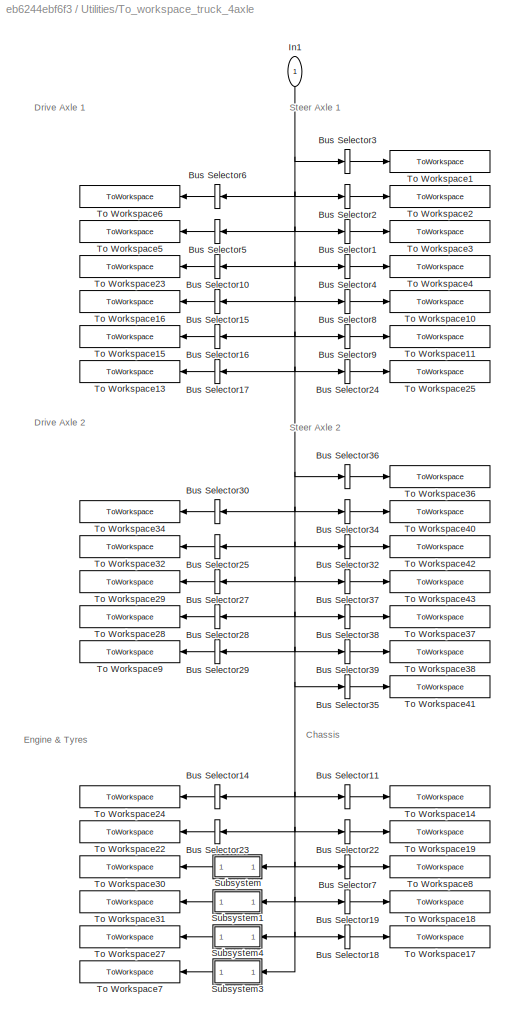
BLOCK [SubSystem] Utilities/To_workspace_truck_4axle
  Ports = [1]
  RequestExecContextInheritance = off
BLOCK [BusSelector] Utilities/To_workspace_truck_4axle/Bus Selector1
  OutputAsBus = on
  OutputSignals = steeraxle1.Delta 1_L
  Ports = [1, 1]
BLOCK [BusSelector] Utilities/To_workspace_truck_4axle/Bus Selector10
  NameLocation = top
  OutputAsBus = on
  OutputSignals = driveaxle1.roll
  Ports = [1, 1]
BLOCK [BusSelector] Utilities/To_workspace_truck_4axle/Bus Selector11
  OutputAsBus = on
  OutputSignals = chassis.front_acc
  Ports = [1, 1]
BLOCK [BusSelector] Utilities/To_workspace_truck_4axle/Bus Selector14
  OutputAsBus = on
  OutputSignals = driveline.omega
  Ports = [1, 1]
BLOCK [BusSelector] Utilities/To_workspace_truck_4axle/Bus Selector15
  NameLocation = top
  OutputAsBus = on
  OutputSignals = driveaxle1.pos
  Ports = [1, 1]
BLOCK [BusSelector] Utilities/To_workspace_truck_4axle/Bus Selector16
  NameLocation = top
  OutputAsBus = on
  OutputSignals = driveaxle1.Omega1
  Ports = [1, 1]
BLOCK [BusSelector] Utilities/To_workspace_truck_4axle/Bus Selector17
  NameLocation = top
  OutputAsBus = on
  OutputSignals = driveaxle1.Omega2
  Ports = [1, 1]
BLOCK [BusSelector] Utilities/To_workspace_truck_4axle/Bus Selector18
  OutputAsBus = on
  OutputSignals = chassis.Vx
  Ports = [1, 1]
BLOCK [BusSelector] Utilities/To_workspace_truck_4axle/Bus Selector19
  OutputAsBus = on
  OutputSignals = chassis.yawvel
  Ports = [1, 1]
BLOCK [BusSelector] Utilities/To_workspace_truck_4axle/Bus Selector2
  OutputAsBus = on
  OutputSignals = steeraxle1.pos
  Ports = [1, 1]
BLOCK [BusSelector] Utilities/To_workspace_truck_4axle/Bus Selector22
  OutputAsBus = on
  OutputSignals = chassis.centre_acc
  Ports = [1, 1]
BLOCK [BusSelector] Utilities/To_workspace_truck_4axle/Bus Selector23
  OutputAsBus = on
  OutputSignals = driveline.throttle
  Ports = [1, 1]
BLOCK [BusSelector] Utilities/To_workspace_truck_4axle/Bus Selector24
  OutputAsBus = on
  OutputSignals = steeraxle1.roll
  Ports = [1, 1]
BLOCK [BusSelector] Utilities/To_workspace_truck_4axle/Bus Selector25
  NameLocation = top
  OutputAsBus = on
  OutputSignals = driveaxle2.roll
  Ports = [1, 1]
BLOCK [BusSelector] Utilities/To_workspace_truck_4axle/Bus Selector27
  NameLocation = top
  OutputAsBus = on
  OutputSignals = driveaxle2.pos
  Ports = [1, 1]
BLOCK [BusSelector] Utilities/To_workspace_truck_4axle/Bus Selector28
  NameLocation = top
  OutputAsBus = on
  OutputSignals = driveaxle2.Omega1
  Ports = [1, 1]
BLOCK [BusSelector] Utilities/To_workspace_truck_4axle/Bus Selector29
  NameLocation = top
  OutputAsBus = on
  OutputSignals = driveaxle2.Omega2
  Ports = [1, 1]
BLOCK [BusSelector] Utilities/To_workspace_truck_4axle/Bus Selector3
  OutputAsBus = on
  OutputSignals = steeraxle1.acc
  Ports = [1, 1]
BLOCK [BusSelector] Utilities/To_workspace_truck_4axle/Bus Selector30
  NameLocation = top
  OutputAsBus = on
  OutputSignals = driveaxle2.acc
  Ports = [1, 1]
BLOCK [BusSelector] Utilities/To_workspace_truck_4axle/Bus Selector32
  OutputAsBus = on
  OutputSignals = steeraxle2.Delta 1_L
  Ports = [1, 1]
BLOCK [BusSelector] Utilities/To_workspace_truck_4axle/Bus Selector34
  OutputAsBus = on
  OutputSignals = steeraxle1.pos
  Ports = [1, 1]
BLOCK [BusSelector] Utilities/To_workspace_truck_4axle/Bus Selector35
  OutputAsBus = on
  OutputSignals = steeraxle1.roll
  Ports = [1, 1]
BLOCK [BusSelector] Utilities/To_workspace_truck_4axle/Bus Selector36
  OutputAsBus = on
  OutputSignals = steeraxle1.acc
  Ports = [1, 1]
BLOCK [BusSelector] Utilities/To_workspace_truck_4axle/Bus Selector37
  OutputAsBus = on
  OutputSignals = steeraxle2.Delta 2_R
  Ports = [1, 1]
BLOCK [BusSelector] Utilities/To_workspace_truck_4axle/Bus Selector38
  OutputAsBus = on
  OutputSignals = steeraxle1.Omega1
  Ports = [1, 1]
BLOCK [BusSelector] Utilities/To_workspace_truck_4axle/Bus Selector39
  OutputAsBus = on
  OutputSignals = steeraxle1.Omega2
  Ports = [1, 1]
BLOCK [BusSelector] Utilities/To_workspace_truck_4axle/Bus Selector4
  OutputAsBus = on
  OutputSignals = steeraxle1.Delta 1_L
  Ports = [1, 1]
BLOCK [BusSelector] Utilities/To_workspace_truck_4axle/Bus Selector5
  NameLocation = top
  OutputAsBus = on
  OutputSignals = driveaxle1.acc
  Ports = [1, 1]
BLOCK [BusSelector] Utilities/To_workspace_truck_4axle/Bus Selector6
  NameLocation = top
  OutputAsBus = on
  OutputSignals = chassis.yawvel
  Ports = [1, 1]
BLOCK [BusSelector] Utilities/To_workspace_truck_4axle/Bus Selector7
  OutputAsBus = on
  OutputSignals = chassis.torsion
  Ports = [1, 1]
BLOCK [BusSelector] Utilities/To_workspace_truck_4axle/Bus Selector8
  OutputAsBus = on
  OutputSignals = steeraxle1.Omega1
  Ports = [1, 1]
BLOCK [BusSelector] Utilities/To_workspace_truck_4axle/Bus Selector9
  OutputAsBus = on
  OutputSignals = steeraxle1.Omega2
  Ports = [1, 1]
BLOCK [Inport] Utilities/To_workspace_truck_4axle/In1
  NameLocation = left
BLOCK [SubSystem] Utilities/To_workspace_truck_4axle/Subsystem
  Ports = [1, 1]
  RequestExecContextInheritance = off
BLOCK [BusSelector] Utilities/To_workspace_truck_4axle/Subsystem/Bus Selector24
  OutputSignals = steeraxle1.Tire1_L.Fx,steeraxle1.Tire1_R.Fx,steeraxle2.Tire1_L.Fx,steeraxle2.Tire1_R.Fx,driveaxle1.Tire1_L.Fx,driveaxle1.Tire2_L.Fx,driveaxle1.Tire1_R.Fx,driveaxle1.Tire2_R.Fx,driveaxle2.Tire1_L.Fx,driveaxle2.Tire2_L.Fx,driveaxle2.Tire1_R.Fx,driveaxle2.Tire2_R.Fx
  Ports = [1, 12]
BLOCK [Inport] Utilities/To_workspace_truck_4axle/Subsystem/In1
BLOCK [Mux] Utilities/To_workspace_truck_4axle/Subsystem/Mux
  DisplayOption = bar
  Inputs = 12
  Ports = [12, 1]
BLOCK [Outport] Utilities/To_workspace_truck_4axle/Subsystem/Out1
BLOCK [SubSystem] Utilities/To_workspace_truck_4axle/Subsystem1
  Ports = [1, 1]
  RequestExecContextInheritance = off
BLOCK [BusSelector] Utilities/To_workspace_truck_4axle/Subsystem1/Bus Selector24
  OutputSignals = steeraxle1.Tire1_L.Fy,steeraxle1.Tire1_R.Fy,steeraxle2.Tire1_L.Fy,steeraxle2.Tire1_R.Fy,driveaxle1.Tire1_L.Fy,driveaxle1.Tire2_L.Fy,driveaxle1.Tire1_R.Fy,driveaxle1.Tire2_R.Fy,driveaxle2.Tire1_L.Fy,driveaxle2.Tire2_L.Fy,driveaxle2.Tire1_R.Fy,driveaxle2.Tire2_R.Fy
  Ports = [1, 12]
BLOCK [Inport] Utilities/To_workspace_truck_4axle/Subsystem1/In1
BLOCK [Mux] Utilities/To_workspace_truck_4axle/Subsystem1/Mux
  DisplayOption = bar
  Inputs = 12
  Ports = [12, 1]
BLOCK [Outport] Utilities/To_workspace_truck_4axle/Subsystem1/Out1
BLOCK [SubSystem] Utilities/To_workspace_truck_4axle/Subsystem3
  Ports = [1, 1]
  RequestExecContextInheritance = off
BLOCK [BusSelector] Utilities/To_workspace_truck_4axle/Subsystem3/Bus Selector6
  OutputSignals = steeraxle1.Omega1,steeraxle1.Omega2,steeraxle2.Omega1,steeraxle2.Omega2,driveaxle1.Omega1,driveaxle1.Omega2,driveaxle2.Omega1,driveaxle2.Omega2
  Ports = [1, 8]
BLOCK [Inport] Utilities/To_workspace_truck_4axle/Subsystem3/In1
  NameLocation = top
BLOCK [Mux] Utilities/To_workspace_truck_4axle/Subsystem3/Mux
  DisplayOption = bar
  Inputs = 8
  Ports = [8, 1]
BLOCK [Outport] Utilities/To_workspace_truck_4axle/Subsystem3/Out1
BLOCK [SubSystem] Utilities/To_workspace_truck_4axle/Subsystem4
  Ports = [1, 1]
  RequestExecContextInheritance = off
BLOCK [BusSelector] Utilities/To_workspace_truck_4axle/Subsystem4/Bus Selector24
  OutputSignals = steeraxle1.Tire1_L.Fz,steeraxle1.Tire1_R.Fz,steeraxle2.Tire1_L.Fz,steeraxle2.Tire1_R.Fz,driveaxle1.Tire1_L.Fz,driveaxle1.Tire2_L.Fz,driveaxle1.Tire1_R.Fz,driveaxle1.Tire2_R.Fz,driveaxle2.Tire1_L.Fz,driveaxle2.Tire2_L.Fz,driveaxle2.Tire1_R.Fz,driveaxle2.Tire2_R.Fz
  Ports = [1, 12]
BLOCK [Inport] Utilities/To_workspace_truck_4axle/Subsystem4/In1
BLOCK [Mux] Utilities/To_workspace_truck_4axle/Subsystem4/Mux
  DisplayOption = bar
  Inputs = 12
  Ports = [12, 1]
BLOCK [Outport] Utilities/To_workspace_truck_4axle/Subsystem4/Out1
BLOCK [ToWorkspace] Utilities/To_workspace_truck_4axle/To Workspace1
  MaxDataPoints = inf
  Ports = [1]
  SampleTime = -1
  VariableName = p_steeraxle1_acc
BLOCK [ToWorkspace] Utilities/To_workspace_truck_4axle/To Workspace10
  MaxDataPoints = inf
  Ports = [1]
  SampleTime = -1
  VariableName = p_steeraxle1_omg1
BLOCK [ToWorkspace] Utilities/To_workspace_truck_4axle/To Workspace11
  MaxDataPoints = inf
  Ports = [1]
  SampleTime = -1
  VariableName = p_steeraxle1_omg2
BLOCK [ToWorkspace] Utilities/To_workspace_truck_4axle/To Workspace13
  MaxDataPoints = inf
  Ports = [1]
  SampleTime = -1
  VariableName = p_driveaxle1_omg2
BLOCK [ToWorkspace] Utilities/To_workspace_truck_4axle/To Workspace14
  MaxDataPoints = inf
  Ports = [1]
  SampleTime = -1
  VariableName = p_chassis_acc_front
BLOCK [ToWorkspace] Utilities/To_workspace_truck_4axle/To Workspace15
  MaxDataPoints = inf
  NameLocation = top
  Ports = [1]
  SampleTime = -1
  VariableName = p_driveaxle1_omg1
BLOCK [ToWorkspace] Utilities/To_workspace_truck_4axle/To Workspace16
  MaxDataPoints = inf
  NameLocation = top
  Ports = [1]
  SampleTime = -1
  VariableName = p_driveaxle1_pos_axle
BLOCK [ToWorkspace] Utilities/To_workspace_truck_4axle/To Workspace17
  MaxDataPoints = inf
  Ports = [1]
  SampleTime = -1
  VariableName = p_Vx
BLOCK [ToWorkspace] Utilities/To_workspace_truck_4axle/To Workspace18
  MaxDataPoints = inf
  Ports = [1]
  SampleTime = -1
  VariableName = p_chassis_yawvel_rear
BLOCK [ToWorkspace] Utilities/To_workspace_truck_4axle/To Workspace19
  MaxDataPoints = inf
  Ports = [1]
  SampleTime = -1
  VariableName = p_chassis_acc_rear
BLOCK [ToWorkspace] Utilities/To_workspace_truck_4axle/To Workspace2
  MaxDataPoints = inf
  Ports = [1]
  SampleTime = -1
  VariableName = p_steeraxle1_pos_axle
BLOCK [ToWorkspace] Utilities/To_workspace_truck_4axle/To Workspace22
  MaxDataPoints = inf
  Ports = [1]
  SampleTime = -1
  VariableName = p_engine_throttle
BLOCK [ToWorkspace] Utilities/To_workspace_truck_4axle/To Workspace23
  MaxDataPoints = inf
  NameLocation = top
  Ports = [1]
  SampleTime = -1
  VariableName = p_driveaxle1_roll
BLOCK [ToWorkspace] Utilities/To_workspace_truck_4axle/To Workspace24
  MaxDataPoints = inf
  Ports = [1]
  SampleTime = -1
  VariableName = p_engine_omega
BLOCK [ToWorkspace] Utilities/To_workspace_truck_4axle/To Workspace25
  MaxDataPoints = inf
  Ports = [1]
  SampleTime = -1
  VariableName = p_steeraxle1_roll
BLOCK [ToWorkspace] Utilities/To_workspace_truck_4axle/To Workspace27
  MaxDataPoints = inf
  Ports = [1]
  SampleTime = -1
  VariableName = p_tyre_Fz
BLOCK [ToWorkspace] Utilities/To_workspace_truck_4axle/To Workspace28
  MaxDataPoints = inf
  NameLocation = top
  Ports = [1]
  SampleTime = -1
  VariableName = p_driveaxle2_omg_LR
BLOCK [ToWorkspace] Utilities/To_workspace_truck_4axle/To Workspace29
  MaxDataPoints = inf
  NameLocation = top
  Ports = [1]
  SampleTime = -1
  VariableName = p_driveaxle2_pos_axle
BLOCK [ToWorkspace] Utilities/To_workspace_truck_4axle/To Workspace3
  MaxDataPoints = inf
  Ports = [1]
  SampleTime = -1
  VariableName = p_steeraxle1_del1
BLOCK [ToWorkspace] Utilities/To_workspace_truck_4axle/To Workspace30
  MaxDataPoints = inf
  Ports = [1]
  SampleTime = -1
  VariableName = p_tyre_Fx
BLOCK [ToWorkspace] Utilities/To_workspace_truck_4axle/To Workspace31
  MaxDataPoints = inf
  Ports = [1]
  SampleTime = -1
  VariableName = p_tyre_Fy
BLOCK [ToWorkspace] Utilities/To_workspace_truck_4axle/To Workspace32
  MaxDataPoints = inf
  NameLocation = top
  Ports = [1]
  SampleTime = -1
  VariableName = p_driveaxle2_roll
BLOCK [ToWorkspace] Utilities/To_workspace_truck_4axle/To Workspace34
  MaxDataPoints = inf
  NameLocation = top
  Ports = [1]
  SampleTime = -1
  VariableName = p_driveaxle2_acc
BLOCK [ToWorkspace] Utilities/To_workspace_truck_4axle/To Workspace36
  MaxDataPoints = inf
  Ports = [1]
  SampleTime = -1
  VariableName = p_steeraxle2_acc
BLOCK [ToWorkspace] Utilities/To_workspace_truck_4axle/To Workspace37
  MaxDataPoints = inf
  Ports = [1]
  SampleTime = -1
  VariableName = p_steeraxle2_omg1
BLOCK [ToWorkspace] Utilities/To_workspace_truck_4axle/To Workspace38
  MaxDataPoints = inf
  Ports = [1]
  SampleTime = -1
  VariableName = p_steeraxle2_omg2
BLOCK [ToWorkspace] Utilities/To_workspace_truck_4axle/To Workspace4
  MaxDataPoints = inf
  Ports = [1]
  SampleTime = -1
  VariableName = p_steeraxle1_del2
BLOCK [ToWorkspace] Utilities/To_workspace_truck_4axle/To Workspace40
  MaxDataPoints = inf
  Ports = [1]
  SampleTime = -1
  VariableName = p_steeraxle2_pos_axle
BLOCK [ToWorkspace] Utilities/To_workspace_truck_4axle/To Workspace41
  MaxDataPoints = inf
  Ports = [1]
  SampleTime = -1
  VariableName = p_steeraxle2_roll
BLOCK [ToWorkspace] Utilities/To_workspace_truck_4axle/To Workspace42
  MaxDataPoints = inf
  Ports = [1]
  SampleTime = -1
  VariableName = p_steeraxle2_del1
BLOCK [ToWorkspace] Utilities/To_workspace_truck_4axle/To Workspace43
  MaxDataPoints = inf
  Ports = [1]
  SampleTime = -1
  VariableName = p_steeraxle2_del2
BLOCK [ToWorkspace] Utilities/To_workspace_truck_4axle/To Workspace5
  MaxDataPoints = inf
  NameLocation = top
  Ports = [1]
  SampleTime = -1
  VariableName = p_driveaxle1_acc
BLOCK [ToWorkspace] Utilities/To_workspace_truck_4axle/To Workspace6
  MaxDataPoints = inf
  NameLocation = top
  Ports = [1]
  SampleTime = -1
  VariableName = p_driveaxle1_yawvel
BLOCK [ToWorkspace] Utilities/To_workspace_truck_4axle/To Workspace7
  MaxDataPoints = inf
  Ports = [1]
  SampleTime = -1
  VariableName = p_tyre_omega
BLOCK [ToWorkspace] Utilities/To_workspace_truck_4axle/To Workspace8
  MaxDataPoints = inf
  Ports = [1]
  SampleTime = -1
  VariableName = p_chassis_torsion
BLOCK [ToWorkspace] Utilities/To_workspace_truck_4axle/To Workspace9
  MaxDataPoints = inf
  Ports = [1]
  SampleTime = -1
  VariableName = p_driveaxle2_omg_RR
BLOCK [SubSystem] Utilities/World
  Ports = [0, 0, 0, 0, 0, 0, 2]
  RequestExecContextInheritance = off
BLOCK [Reference] Utilities/World/ pos_initial  REF=sm_lib/Frames and
Transforms/Rigid
Transform
  Ports = [0, 0, 0, 0, 0, 1, 1]
  SourceBlock = sm_lib/Frames and\nTransforms/Rigid\nTransform
  SourceProductBaseCode = MS
  SourceType = Rigid\nTransform
BLOCK [Reference] Utilities/World/6-DOF Joint1  REF=sm_lib/Joints/6-DOF Joint
  Ports = [0, 0, 0, 0, 0, 1, 1]
  SourceBlock = sm_lib/Joints/6-DOF Joint
  SourceProductBaseCode = MS
  SourceType = 6-DOF Joint
BLOCK [PMIOPort] Utilities/World/Chassis
  Port = 2
  Side = Right
BLOCK [Reference] Utilities/World/Floor  REF=sm_lib/Body Elements/Brick Solid
  NameLocation = right
  Ports = [0, 0, 0, 0, 0, 0, 1]
  SourceBlock = sm_lib/Body Elements/Brick Solid
  SourceProductBaseCode = MS
  SourceType = Brick Solid
BLOCK [Reference] Utilities/World/Grid XLines  REF=sm_lib/Body Elements/Extruded Solid
  Ports = [0, 0, 0, 0, 0, 0, 1]
  SourceBlock = sm_lib/Body Elements/Extruded Solid
  SourceProductBaseCode = MS
  SourceType = Extruded Solid
BLOCK [Reference] Utilities/World/Grid YLines  REF=sm_lib/Body Elements/Extruded Solid
  Ports = [0, 0, 0, 0, 0, 0, 1]
  SourceBlock = sm_lib/Body Elements/Extruded Solid
  SourceProductBaseCode = MS
  SourceType = Extruded Solid
BLOCK [PMIOPort] Utilities/World/Measurements
  Side = Right
BLOCK [Reference] Utilities/World/Mechanism Configuration  REF=sm_lib/Utilities/Mechanism
Configuration
  Ports = [0, 0, 0, 0, 0, 0, 1]
  SourceBlock = sm_lib/Utilities/Mechanism\nConfiguration
  SourceProductBaseCode = MS
  SourceType = Mechanism\nConfiguration
BLOCK [Reference] Utilities/World/Road Grid Offset   REF=sm_lib/Frames and
Transforms/Rigid
Transform
  NameLocation = right
  Ports = [0, 0, 0, 0, 0, 1, 1]
  SourceBlock = sm_lib/Frames and\nTransforms/Rigid\nTransform
  SourceProductBaseCode = MS
  SourceType = Rigid\nTransform
BLOCK [Reference] Utilities/World/Solver Configuration  REF=nesl_utility/Solver
Configuration
  Ports = [0, 0, 0, 0, 0, 0, 1]
  SourceBlock = nesl_utility/Solver\nConfiguration
  SourceProductBaseCode = PW,SS
  SourceType = Solver\nConfiguration
BLOCK [Reference] Utilities/World/Transform XLines   REF=sm_lib/Frames and
Transforms/Rigid
Transform
  Ports = [0, 0, 0, 0, 0, 1, 1]
  SourceBlock = sm_lib/Frames and\nTransforms/Rigid\nTransform
  SourceProductBaseCode = MS
  SourceType = Rigid\nTransform
BLOCK [Reference] Utilities/World/World Frame  REF=sm_lib/Frames and
Transforms/World Frame
  Ports = [0, 0, 0, 0, 0, 0, 1]
  SourceBlock = sm_lib/Frames and\nTransforms/World Frame
  SourceProductBaseCode = MS
  SourceType = World Frame
BLOCK [Reference] Utilities/World/pos_chas_front  REF=sm_lib/Frames and
Transforms/Rigid
Transform
  Ports = [0, 0, 0, 0, 0, 1, 1]
  SourceBlock = sm_lib/Frames and\nTransforms/Rigid\nTransform
  SourceProductBaseCode = MS
  SourceType = Rigid\nTransform
BLOCK [SubSystem] Vehicles
  Ports = []
  RequestExecContextInheritance = off
BLOCK [SubSystem] Vehicles/Rigid Truck - 2 axles
  Ports = [3, 2, 0, 0, 0, 0, 1]
  RequestExecContextInheritance = off
BLOCK [Inport] Vehicles/Rigid Truck - 2 axles/Brake
  Port = 3
BLOCK [Reference] Vehicles/Rigid Truck - 2 axles/Braking system  REF=$bdroot/Components/Braking system
  Ports = [1, 3]
  SourceBlock = $bdroot/Components/Braking system
BLOCK [BusCreator] Vehicles/Rigid Truck - 2 axles/Bus Creator1
  DisplayOption = bar
  InheritFromInputs = on
  Inputs = 3
  NameLocation = top
  Ports = [3, 1]
BLOCK [BusCreator] Vehicles/Rigid Truck - 2 axles/Bus Creator2
  DisplayOption = bar
  InheritFromInputs = on
  Inputs = 6
  Ports = [6, 1]
BLOCK [BusCreator] Vehicles/Rigid Truck - 2 axles/Bus Creator5
  DisplayOption = bar
  InheritFromInputs = on
  Inputs = 4
  Ports = [4, 1]
BLOCK [BusSelector] Vehicles/Rigid Truck - 2 axles/Bus Selector
  NameLocation = top
  OutputAsBus = on
  OutputSignals = Omega1,Omega2
  Ports = [1, 1]
BLOCK [Reference] Vehicles/Rigid Truck - 2 axles/Cabin  REF=$bdroot/Assemblies/Cabin
  Ports = [0, 0, 0, 0, 0, 0, 1]
  SourceBlock = $bdroot/Assemblies/Cabin
  SourceType = cabin with coil/air suspension
BLOCK [SubSystem] Vehicles/Rigid Truck - 2 axles/Cameras
  Commented = on
  NameLocation = top
  Ports = [0, 0, 0, 0, 0, 0, 1]
  RequestExecContextInheritance = off
BLOCK [PMIOPort] Vehicles/Rigid Truck - 2 axles/Cameras/ 
  Side = Right
BLOCK [Reference] Vehicles/Rigid Truck - 2 axles/Cameras/Front Camera Transform  REF=sm_lib/Frames and
Transforms/Rigid
Transform
  Ports = [0, 0, 0, 0, 0, 1, 1]
  SourceBlock = sm_lib/Frames and\nTransforms/Rigid\nTransform
  SourceProductBaseCode = MS
  SourceType = Rigid\nTransform
BLOCK [Reference] Vehicles/Rigid Truck - 2 axles/Cameras/Side Camera Transform  REF=sm_lib/Frames and
Transforms/Rigid
Transform
  Ports = [0, 0, 0, 0, 0, 1, 1]
  SourceBlock = sm_lib/Frames and\nTransforms/Rigid\nTransform
  SourceProductBaseCode = MS
  SourceType = Rigid\nTransform
BLOCK [Reference] Vehicles/Rigid Truck - 2 axles/Cameras/Spherical Solid  REF=sm_lib/Body Elements/Spherical Solid
  NameLocation = top
  Ports = [0, 0, 0, 0, 0, 0, 1]
  SourceBlock = sm_lib/Body Elements/Spherical Solid
  SourceProductBaseCode = MS
  SourceType = Spherical Solid
BLOCK [Reference] Vehicles/Rigid Truck - 2 axles/Cameras/Spherical Solid1  REF=sm_lib/Body Elements/Spherical Solid
  NameLocation = top
  Ports = [0, 0, 0, 0, 0, 0, 1]
  SourceBlock = sm_lib/Body Elements/Spherical Solid
  SourceProductBaseCode = MS
  SourceType = Spherical Solid
BLOCK [Reference] Vehicles/Rigid Truck - 2 axles/Chassis_front  REF=sm_lib/Body Elements/Brick Solid
  Ports = [0, 0, 0, 0, 0, 1, 1]
  SourceBlock = sm_lib/Body Elements/Brick Solid
  SourceProductBaseCode = MS
  SourceType = Brick Solid
BLOCK [Reference] Vehicles/Rigid Truck - 2 axles/Chassis_rear  REF=sm_lib/Body Elements/Brick Solid
  Ports = [0, 0, 0, 0, 0, 1, 1]
  SourceBlock = sm_lib/Body Elements/Brick Solid
  SourceProductBaseCode = MS
  SourceType = Brick Solid
BLOCK [PMIOPort] Vehicles/Rigid Truck - 2 axles/Connection
  Side = Right
  Tag = PMCPort
BLOCK [Reference] Vehicles/Rigid Truck - 2 axles/Drive axle  REF=$bdroot/Assemblies/Drive axle
  Ports = [2, 1, 0, 0, 0, 0, 1]
  SourceBlock = $bdroot/Assemblies/Drive axle
  SourceType = Driven axle with double tyres
BLOCK [Reference] Vehicles/Rigid Truck - 2 axles/Driveline  REF=$bdroot/Assemblies/Driveline
  Ports = [2, 2, 0, 0, 0, 1]
  SourceBlock = $bdroot/Assemblies/Driveline
  SourceType = Engine+gearbox
BLOCK [From] Vehicles/Rigid Truck - 2 axles/From
  GotoTag = truckload
BLOCK [From] Vehicles/Rigid Truck - 2 axles/From19
  CloseFcn = tagdialog Close
  GotoTag = steeraxle
BLOCK [From] Vehicles/Rigid Truck - 2 axles/From2
  CloseFcn = tagdialog Close
  GotoTag = Vx
BLOCK [From] Vehicles/Rigid Truck - 2 axles/From20
  CloseFcn = tagdialog Close
  GotoTag = driveaxle
BLOCK [From] Vehicles/Rigid Truck - 2 axles/From21
  CloseFcn = tagdialog Close
  GotoTag = chassis
BLOCK [From] Vehicles/Rigid Truck - 2 axles/From22
  CloseFcn = tagdialog Close
  GotoTag = driveline
BLOCK [From] Vehicles/Rigid Truck - 2 axles/From3
  CloseFcn = tagdialog Close
  GotoTag = yawvel
BLOCK [From] Vehicles/Rigid Truck - 2 axles/From4
  CloseFcn = tagdialog Close
  GotoTag = torsion
BLOCK [From] Vehicles/Rigid Truck - 2 axles/From5
  CloseFcn = tagdialog Close
  GotoTag = front_acc
BLOCK [From] Vehicles/Rigid Truck - 2 axles/From6
  CloseFcn = tagdialog Close
  GotoTag = centre_acc
BLOCK [Goto] Vehicles/Rigid Truck - 2 axles/Goto
  GotoTag = truckload
BLOCK [Goto] Vehicles/Rigid Truck - 2 axles/Goto11
  GotoTag = centre_acc
BLOCK [Goto] Vehicles/Rigid Truck - 2 axles/Goto12
  GotoTag = Vx
BLOCK [Goto] Vehicles/Rigid Truck - 2 axles/Goto13
  GotoTag = front_acc
  NameLocation = top
BLOCK [Goto] Vehicles/Rigid Truck - 2 axles/Goto14
  GotoTag = yawvel
BLOCK [Goto] Vehicles/Rigid Truck - 2 axles/Goto4
  GotoTag = steeraxle
BLOCK [Goto] Vehicles/Rigid Truck - 2 axles/Goto5
  GotoTag = driveaxle
BLOCK [Goto] Vehicles/Rigid Truck - 2 axles/Goto6
  GotoTag = driveline
BLOCK [Goto] Vehicles/Rigid Truck - 2 axles/Goto7
  GotoTag = chassis
BLOCK [Goto] Vehicles/Rigid Truck - 2 axles/Goto8
  GotoTag = torsion
BLOCK [Outport] Vehicles/Rigid Truck - 2 axles/Mb_trailer
  Port = 2
BLOCK [SubSystem] Vehicles/Rigid Truck - 2 axles/Measurements
  NameLocation = top
  Ports = [0, 3, 0, 0, 0, 1, 1]
  RequestExecContextInheritance = off
BLOCK [BusCreator] Vehicles/Rigid Truck - 2 axles/Measurements/Bus Creator2
  DisplayOption = bar
  InheritFromInputs = on
  Inputs = 3
  Ports = [3, 1]
BLOCK [BusCreator] Vehicles/Rigid Truck - 2 axles/Measurements/Bus Creator3
  DisplayOption = bar
  InheritFromInputs = on
  Inputs = 3
  Ports = [3, 1]
BLOCK [Fcn] Vehicles/Rigid Truck - 2 axles/Measurements/Fcn4
  Expr = u(3)
BLOCK [Outport] Vehicles/Rigid Truck - 2 axles/Measurements/Out1
BLOCK [Outport] Vehicles/Rigid Truck - 2 axles/Measurements/Out2
  Port = 2
BLOCK [Outport] Vehicles/Rigid Truck - 2 axles/Measurements/Out3
  Port = 3
BLOCK [Reference] Vehicles/Rigid Truck - 2 axles/Measurements/PS-Simulink Converter10  REF=nesl_utility/PS-Simulink
Converter
  Ports = [0, 1, 0, 0, 0, 1]
  SourceBlock = nesl_utility/PS-Simulink\nConverter
  SourceProductBaseCode = SS
  SourceType = PS-Simulink\nConverter
BLOCK [Reference] Vehicles/Rigid Truck - 2 axles/Measurements/PS-Simulink Converter11  REF=nesl_utility/PS-Simulink
Converter
  Ports = [0, 1, 0, 0, 0, 1]
  SourceBlock = nesl_utility/PS-Simulink\nConverter
  SourceProductBaseCode = SS
  SourceType = PS-Simulink\nConverter
BLOCK [Reference] Vehicles/Rigid Truck - 2 axles/Measurements/PS-Simulink Converter3  REF=nesl_utility/PS-Simulink
Converter
  Ports = [0, 1, 0, 0, 0, 1]
  SourceBlock = nesl_utility/PS-Simulink\nConverter
  SourceProductBaseCode = SS
  SourceType = PS-Simulink\nConverter
BLOCK [Reference] Vehicles/Rigid Truck - 2 axles/Measurements/PS-Simulink Converter4  REF=nesl_utility/PS-Simulink
Converter
  Ports = [0, 1, 0, 0, 0, 1]
  SourceBlock = nesl_utility/PS-Simulink\nConverter
  SourceProductBaseCode = SS
  SourceType = PS-Simulink\nConverter
BLOCK [Reference] Vehicles/Rigid Truck - 2 axles/Measurements/PS-Simulink Converter5  REF=nesl_utility/PS-Simulink
Converter
  Ports = [0, 1, 0, 0, 0, 1]
  SourceBlock = nesl_utility/PS-Simulink\nConverter
  SourceProductBaseCode = SS
  SourceType = PS-Simulink\nConverter
BLOCK [Reference] Vehicles/Rigid Truck - 2 axles/Measurements/PS-Simulink Converter6  REF=nesl_utility/PS-Simulink
Converter
  Ports = [0, 1, 0, 0, 0, 1]
  SourceBlock = nesl_utility/PS-Simulink\nConverter
  SourceProductBaseCode = SS
  SourceType = PS-Simulink\nConverter
BLOCK [Reference] Vehicles/Rigid Truck - 2 axles/Measurements/PS-Simulink Converter7  REF=nesl_utility/PS-Simulink
Converter
  Ports = [0, 1, 0, 0, 0, 1]
  SourceBlock = nesl_utility/PS-Simulink\nConverter
  SourceProductBaseCode = SS
  SourceType = PS-Simulink\nConverter
BLOCK [Reference] Vehicles/Rigid Truck - 2 axles/Measurements/PS-Simulink Converter8  REF=nesl_utility/PS-Simulink
Converter
  Ports = [0, 1, 0, 0, 0, 1]
  SourceBlock = nesl_utility/PS-Simulink\nConverter
  SourceProductBaseCode = SS
  SourceType = PS-Simulink\nConverter
BLOCK [Scope] Vehicles/Rigid Truck - 2 axles/Measurements/Scope
  Floating = off
  NumInputPorts = 1
  Ports = [1]
  ScopeSpecificationString = Simulink.scopes.TimeScopeBlockCfg('CurrentConfiguration', extmgr.ConfigurationSet(extmgr.Configuration('Core','General UI',true),extmgr.Configuration('Core','Source UI',true),extmgr.Configuration('Sources','WiredSimulink',true),extmgr.Configuration('Visuals','Time Domain',true,'SerializedDisplays',{struct('MinYLimReal','-0.0000043','MaxYLimReal','0.0000036','YLabelReal','','MinYLimMag','0.0000000'...<+1390ch>  <repeated x4 — deduplicated; at blocks: Scope>
BLOCK [Scope] Vehicles/Rigid Truck - 2 axles/Measurements/Scope1
  Floating = off
  NumInputPorts = 1
  Ports = [1]
  ScopeSpecificationString = Simulink.scopes.TimeScopeBlockCfg('CurrentConfiguration', extmgr.ConfigurationSet(extmgr.Configuration('Core','General UI',true),extmgr.Configuration('Core','Source UI',true),extmgr.Configuration('Sources','WiredSimulink',true,'DataLoggingVariableName','ScopeData1'),extmgr.Configuration('Visuals','Time Domain',true,'SerializedDisplays',{struct('MinYLimReal','-0.47089','MaxYLimReal','0.42989','YLab...<+1411ch>  <repeated x4 — deduplicated; at blocks: Scope1>
BLOCK [Reference] Vehicles/Rigid Truck - 2 axles/Measurements/Transform Sensor1  REF=sm_lib/Frames and
Transforms/Transform
Sensor
  Ports = [0, 0, 0, 0, 0, 1, 9]
  SourceBlock = sm_lib/Frames and\nTransforms/Transform\nSensor
  SourceProductBaseCode = MS
  SourceType = Transform\nSensor
BLOCK [PMIOPort] Vehicles/Rigid Truck - 2 axles/Measurements/Transform Sensor2
  Side = Left
BLOCK [PMIOPort] Vehicles/Rigid Truck - 2 axles/Measurements/Transform Sensor3
  Port = 2
  Side = Right
BLOCK [Reference] Vehicles/Rigid Truck - 2 axles/PS-Simulink Converter  REF=nesl_utility/PS-Simulink
Converter
  NameLocation = top
  Ports = [0, 1, 0, 0, 0, 1]
  SourceBlock = nesl_utility/PS-Simulink\nConverter
  SourceProductBaseCode = SS
  SourceType = PS-Simulink\nConverter
BLOCK [Reference] Vehicles/Rigid Truck - 2 axles/PS-Simulink Converter1  REF=nesl_utility/PS-Simulink
Converter
  NameLocation = top
  Ports = [0, 1, 0, 0, 0, 1]
  SourceBlock = nesl_utility/PS-Simulink\nConverter
  SourceProductBaseCode = SS
  SourceType = PS-Simulink\nConverter
BLOCK [Reference] Vehicles/Rigid Truck - 2 axles/PS-Simulink Converter2  REF=nesl_utility/PS-Simulink
Converter
  NameLocation = top
  Ports = [0, 1, 0, 0, 0, 1]
  SourceBlock = nesl_utility/PS-Simulink\nConverter
  SourceProductBaseCode = SS
  SourceType = PS-Simulink\nConverter
BLOCK [Outport] Vehicles/Rigid Truck - 2 axles/Signals
BLOCK [Reference] Vehicles/Rigid Truck - 2 axles/Steer axle  REF=$bdroot/Assemblies/Steer axle
  Ports = [2, 1, 0, 0, 0, 0, 1]
  SourceBlock = $bdroot/Assemblies/Steer axle
  SourceType = Axle with single tyres and steering system
BLOCK [Inport] Vehicles/Rigid Truck - 2 axles/Steering
BLOCK [Inport] Vehicles/Rigid Truck - 2 axles/Throttle
  Port = 2
BLOCK [Reference] Vehicles/Rigid Truck - 2 axles/Transform Sensor  REF=sm_lib/Frames and
Transforms/Transform
Sensor
  NameLocation = top
  Ports = [0, 0, 0, 0, 0, 1, 4]
  SourceBlock = sm_lib/Frames and\nTransforms/Transform\nSensor
  SourceProductBaseCode = MS
  SourceType = Transform\nSensor
BLOCK [Reference] Vehicles/Rigid Truck - 2 axles/Truck load  REF=$bdroot/Assemblies/Truck load
  NameLocation = right
  Ports = [0, 1, 0, 0, 0, 1]
  SourceBlock = $bdroot/Assemblies/Truck load
BLOCK [Reference] Vehicles/Rigid Truck - 2 axles/Truck_torsion  REF=$bdroot/Components/Truck_torsion
  Ports = [0, 1, 0, 0, 0, 1, 1]
  SourceBlock = $bdroot/Components/Truck_torsion
  SourceType = SubSystem
BLOCK [Reference] Vehicles/Rigid Truck - 2 axles/World  REF=$bdroot/Utilities/World
  Ports = [0, 0, 0, 0, 0, 0, 2]
  SourceBlock = $bdroot/Utilities/World
BLOCK [Reference] Vehicles/Rigid Truck - 2 axles/translate to origin 2  REF=sm_lib/Frames and
Transforms/Rigid
Transform
  Ports = [0, 0, 0, 0, 0, 1, 1]
  SourceBlock = sm_lib/Frames and\nTransforms/Rigid\nTransform
  SourceProductBaseCode = MS
  SourceType = Rigid\nTransform
BLOCK [SubSystem] Vehicles/Rigid Truck - 3 axles
  Ports = [3, 2, 0, 0, 0, 0, 1]
  RequestExecContextInheritance = off
BLOCK [Inport] Vehicles/Rigid Truck - 3 axles/Brake
  Port = 3
BLOCK [Reference] Vehicles/Rigid Truck - 3 axles/Braking system  REF=$bdroot/Components/Braking system
  Ports = [1, 3]
  SourceBlock = $bdroot/Components/Braking system
BLOCK [BusCreator] Vehicles/Rigid Truck - 3 axles/Bus Creator1
  DisplayOption = bar
  InheritFromInputs = on
  Inputs = 3
  NameLocation = top
  Ports = [3, 1]
BLOCK [BusCreator] Vehicles/Rigid Truck - 3 axles/Bus Creator2
  DisplayOption = bar
  InheritFromInputs = on
  Inputs = 5
  Ports = [5, 1]
BLOCK [BusCreator] Vehicles/Rigid Truck - 3 axles/Bus Creator5
  DisplayOption = bar
  InheritFromInputs = on
  Inputs = 6
  Ports = [6, 1]
BLOCK [BusSelector] Vehicles/Rigid Truck - 3 axles/Bus Selector
  NameLocation = top
  OutputAsBus = on
  OutputSignals = Omega1,Omega2
  Ports = [1, 1]
BLOCK [BusSelector] Vehicles/Rigid Truck - 3 axles/Bus Selector1
  NameLocation = top
  OutputAsBus = on
  OutputSignals = Omega1,Omega2
  Ports = [1, 1]
BLOCK [Reference] Vehicles/Rigid Truck - 3 axles/Cabin  REF=$bdroot/Assemblies/Cabin
  Ports = [0, 0, 0, 0, 0, 0, 1]
  SourceBlock = $bdroot/Assemblies/Cabin
  SourceType = cabin with coil/air suspension
BLOCK [SubSystem] Vehicles/Rigid Truck - 3 axles/Cameras
  Commented = on
  NameLocation = top
  Ports = [0, 0, 0, 0, 0, 0, 1]
  RequestExecContextInheritance = off
BLOCK [PMIOPort] Vehicles/Rigid Truck - 3 axles/Cameras/ 
  Side = Right
BLOCK [Reference] Vehicles/Rigid Truck - 3 axles/Cameras/Front Camera Transform  REF=sm_lib/Frames and
Transforms/Rigid
Transform
  Ports = [0, 0, 0, 0, 0, 1, 1]
  SourceBlock = sm_lib/Frames and\nTransforms/Rigid\nTransform
  SourceProductBaseCode = MS
  SourceType = Rigid\nTransform
BLOCK [Reference] Vehicles/Rigid Truck - 3 axles/Cameras/Side Camera Transform  REF=sm_lib/Frames and
Transforms/Rigid
Transform
  Ports = [0, 0, 0, 0, 0, 1, 1]
  SourceBlock = sm_lib/Frames and\nTransforms/Rigid\nTransform
  SourceProductBaseCode = MS
  SourceType = Rigid\nTransform
BLOCK [Reference] Vehicles/Rigid Truck - 3 axles/Cameras/Spherical Solid  REF=sm_lib/Body Elements/Spherical Solid
  NameLocation = top
  Ports = [0, 0, 0, 0, 0, 0, 1]
  SourceBlock = sm_lib/Body Elements/Spherical Solid
  SourceProductBaseCode = MS
  SourceType = Spherical Solid
BLOCK [Reference] Vehicles/Rigid Truck - 3 axles/Cameras/Spherical Solid1  REF=sm_lib/Body Elements/Spherical Solid
  NameLocation = top
  Ports = [0, 0, 0, 0, 0, 0, 1]
  SourceBlock = sm_lib/Body Elements/Spherical Solid
  SourceProductBaseCode = MS
  SourceType = Spherical Solid
BLOCK [Reference] Vehicles/Rigid Truck - 3 axles/Chassis_front  REF=sm_lib/Body Elements/Brick Solid
  Ports = [0, 0, 0, 0, 0, 1, 1]
  SourceBlock = sm_lib/Body Elements/Brick Solid
  SourceProductBaseCode = MS
  SourceType = Brick Solid
BLOCK [Reference] Vehicles/Rigid Truck - 3 axles/Chassis_rear  REF=sm_lib/Body Elements/Brick Solid
  Ports = [0, 0, 0, 0, 0, 1, 1]
  SourceBlock = sm_lib/Body Elements/Brick Solid
  SourceProductBaseCode = MS
  SourceType = Brick Solid
BLOCK [PMIOPort] Vehicles/Rigid Truck - 3 axles/Connection
  Side = Right
  Tag = PMCPort
BLOCK [Reference] Vehicles/Rigid Truck - 3 axles/Drive axle 1  REF=$bdroot/Assemblies/Drive axle
  Ports = [2, 1, 0, 0, 0, 0, 1]
  SourceBlock = $bdroot/Assemblies/Drive axle
  SourceType = Driven axle with double tyres
BLOCK [Reference] Vehicles/Rigid Truck - 3 axles/Drive axle 2  REF=$bdroot/Assemblies/Drive axle
  Ports = [2, 1, 0, 0, 0, 0, 1]
  SourceBlock = $bdroot/Assemblies/Drive axle
  SourceType = Driven axle with double tyres
BLOCK [Reference] Vehicles/Rigid Truck - 3 axles/Driveline  REF=$bdroot/Assemblies/Driveline
  Ports = [2, 2, 0, 0, 0, 1]
  SourceBlock = $bdroot/Assemblies/Driveline
  SourceType = Engine+gearbox
BLOCK [Fcn] Vehicles/Rigid Truck - 3 axles/Engine1
  Expr = (u(1)+u(2))/2
BLOCK [Fcn] Vehicles/Rigid Truck - 3 axles/Engine2
  Expr = (u(1)+u(2))/2
BLOCK [From] Vehicles/Rigid Truck - 3 axles/From
  GotoTag = driveaxle2
BLOCK [From] Vehicles/Rigid Truck - 3 axles/From1
  CloseFcn = tagdialog Close
  GotoTag = truckload
BLOCK [From] Vehicles/Rigid Truck - 3 axles/From19
  CloseFcn = tagdialog Close
  GotoTag = steeraxle
BLOCK [From] Vehicles/Rigid Truck - 3 axles/From2
  CloseFcn = tagdialog Close
  GotoTag = Vx
BLOCK [From] Vehicles/Rigid Truck - 3 axles/From20
  CloseFcn = tagdialog Close
  GotoTag = driveaxle1
BLOCK [From] Vehicles/Rigid Truck - 3 axles/From21
  CloseFcn = tagdialog Close
  GotoTag = chassis
BLOCK [From] Vehicles/Rigid Truck - 3 axles/From22
  CloseFcn = tagdialog Close
  GotoTag = driveline
BLOCK [From] Vehicles/Rigid Truck - 3 axles/From3
  CloseFcn = tagdialog Close
  GotoTag = yawvel
BLOCK [From] Vehicles/Rigid Truck - 3 axles/From4
  CloseFcn = tagdialog Close
  GotoTag = torsion
BLOCK [From] Vehicles/Rigid Truck - 3 axles/From5
  CloseFcn = tagdialog Close
  GotoTag = front_acc
BLOCK [From] Vehicles/Rigid Truck - 3 axles/From6
  CloseFcn = tagdialog Close
  GotoTag = centre_acc
BLOCK [Gain] Vehicles/Rigid Truck - 3 axles/Gain
  Gain = 0.5
BLOCK [Goto] Vehicles/Rigid Truck - 3 axles/Goto
  GotoTag = truckload
BLOCK [Goto] Vehicles/Rigid Truck - 3 axles/Goto1
  GotoTag = driveaxle2
BLOCK [Goto] Vehicles/Rigid Truck - 3 axles/Goto11
  GotoTag = centre_acc
BLOCK [Goto] Vehicles/Rigid Truck - 3 axles/Goto12
  GotoTag = Vx
BLOCK [Goto] Vehicles/Rigid Truck - 3 axles/Goto13
  GotoTag = front_acc
  NameLocation = top
BLOCK [Goto] Vehicles/Rigid Truck - 3 axles/Goto14
  GotoTag = yawvel
BLOCK [Goto] Vehicles/Rigid Truck - 3 axles/Goto4
  GotoTag = steeraxle
BLOCK [Goto] Vehicles/Rigid Truck - 3 axles/Goto5
  GotoTag = driveaxle1
BLOCK [Goto] Vehicles/Rigid Truck - 3 axles/Goto6
  GotoTag = driveline
BLOCK [Goto] Vehicles/Rigid Truck - 3 axles/Goto7
  GotoTag = chassis
BLOCK [Goto] Vehicles/Rigid Truck - 3 axles/Goto8
  GotoTag = torsion
BLOCK [Outport] Vehicles/Rigid Truck - 3 axles/Mb_trailer
  Port = 2
BLOCK [SubSystem] Vehicles/Rigid Truck - 3 axles/Measurements
  Ports = [0, 3, 0, 0, 0, 1, 1]
  RequestExecContextInheritance = off
BLOCK [BusCreator] Vehicles/Rigid Truck - 3 axles/Measurements/Bus Creator2
  DisplayOption = bar
  InheritFromInputs = on
  Inputs = 3
  Ports = [3, 1]
BLOCK [BusCreator] Vehicles/Rigid Truck - 3 axles/Measurements/Bus Creator3
  DisplayOption = bar
  InheritFromInputs = on
  Inputs = 3
  Ports = [3, 1]
BLOCK [Fcn] Vehicles/Rigid Truck - 3 axles/Measurements/Fcn4
  Expr = u(3)
BLOCK [Outport] Vehicles/Rigid Truck - 3 axles/Measurements/Out1
BLOCK [Outport] Vehicles/Rigid Truck - 3 axles/Measurements/Out2
  Port = 2
BLOCK [Outport] Vehicles/Rigid Truck - 3 axles/Measurements/Out3
  Port = 3
BLOCK [Reference] Vehicles/Rigid Truck - 3 axles/Measurements/PS-Simulink Converter10  REF=nesl_utility/PS-Simulink
Converter
  Ports = [0, 1, 0, 0, 0, 1]
  SourceBlock = nesl_utility/PS-Simulink\nConverter
  SourceProductBaseCode = SS
  SourceType = PS-Simulink\nConverter
BLOCK [Reference] Vehicles/Rigid Truck - 3 axles/Measurements/PS-Simulink Converter11  REF=nesl_utility/PS-Simulink
Converter
  Ports = [0, 1, 0, 0, 0, 1]
  SourceBlock = nesl_utility/PS-Simulink\nConverter
  SourceProductBaseCode = SS
  SourceType = PS-Simulink\nConverter
BLOCK [Reference] Vehicles/Rigid Truck - 3 axles/Measurements/PS-Simulink Converter3  REF=nesl_utility/PS-Simulink
Converter
  Ports = [0, 1, 0, 0, 0, 1]
  SourceBlock = nesl_utility/PS-Simulink\nConverter
  SourceProductBaseCode = SS
  SourceType = PS-Simulink\nConverter
BLOCK [Reference] Vehicles/Rigid Truck - 3 axles/Measurements/PS-Simulink Converter4  REF=nesl_utility/PS-Simulink
Converter
  Ports = [0, 1, 0, 0, 0, 1]
  SourceBlock = nesl_utility/PS-Simulink\nConverter
  SourceProductBaseCode = SS
  SourceType = PS-Simulink\nConverter
BLOCK [Reference] Vehicles/Rigid Truck - 3 axles/Measurements/PS-Simulink Converter5  REF=nesl_utility/PS-Simulink
Converter
  Ports = [0, 1, 0, 0, 0, 1]
  SourceBlock = nesl_utility/PS-Simulink\nConverter
  SourceProductBaseCode = SS
  SourceType = PS-Simulink\nConverter
BLOCK [Reference] Vehicles/Rigid Truck - 3 axles/Measurements/PS-Simulink Converter6  REF=nesl_utility/PS-Simulink
Converter
  Ports = [0, 1, 0, 0, 0, 1]
  SourceBlock = nesl_utility/PS-Simulink\nConverter
  SourceProductBaseCode = SS
  SourceType = PS-Simulink\nConverter
BLOCK [Reference] Vehicles/Rigid Truck - 3 axles/Measurements/PS-Simulink Converter7  REF=nesl_utility/PS-Simulink
Converter
  Ports = [0, 1, 0, 0, 0, 1]
  SourceBlock = nesl_utility/PS-Simulink\nConverter
  SourceProductBaseCode = SS
  SourceType = PS-Simulink\nConverter
BLOCK [Reference] Vehicles/Rigid Truck - 3 axles/Measurements/PS-Simulink Converter8  REF=nesl_utility/PS-Simulink
Converter
  Ports = [0, 1, 0, 0, 0, 1]
  SourceBlock = nesl_utility/PS-Simulink\nConverter
  SourceProductBaseCode = SS
  SourceType = PS-Simulink\nConverter
BLOCK [Scope] Vehicles/Rigid Truck - 3 axles/Measurements/Scope
  Floating = off
  NumInputPorts = 1
  Ports = [1]
BLOCK [Scope] Vehicles/Rigid Truck - 3 axles/Measurements/Scope1
  Floating = off
  NumInputPorts = 1
  Ports = [1]
BLOCK [Reference] Vehicles/Rigid Truck - 3 axles/Measurements/Transform Sensor1  REF=sm_lib/Frames and
Transforms/Transform
Sensor
  Ports = [0, 0, 0, 0, 0, 1, 9]
  SourceBlock = sm_lib/Frames and\nTransforms/Transform\nSensor
  SourceProductBaseCode = MS
  SourceType = Transform\nSensor
BLOCK [PMIOPort] Vehicles/Rigid Truck - 3 axles/Measurements/Transform Sensor2
  Side = Left
BLOCK [PMIOPort] Vehicles/Rigid Truck - 3 axles/Measurements/Transform Sensor3
  Port = 2
  Side = Right
BLOCK [Mux] Vehicles/Rigid Truck - 3 axles/Mux
  DisplayOption = bar
  Inputs = 2
  NameLocation = top
  Ports = [2, 1]
BLOCK [Reference] Vehicles/Rigid Truck - 3 axles/PS-Simulink Converter  REF=nesl_utility/PS-Simulink
Converter
  NameLocation = top
  Ports = [0, 1, 0, 0, 0, 1]
  SourceBlock = nesl_utility/PS-Simulink\nConverter
  SourceProductBaseCode = SS
  SourceType = PS-Simulink\nConverter
BLOCK [Reference] Vehicles/Rigid Truck - 3 axles/PS-Simulink Converter1  REF=nesl_utility/PS-Simulink
Converter
  NameLocation = top
  Ports = [0, 1, 0, 0, 0, 1]
  SourceBlock = nesl_utility/PS-Simulink\nConverter
  SourceProductBaseCode = SS
  SourceType = PS-Simulink\nConverter
BLOCK [Reference] Vehicles/Rigid Truck - 3 axles/PS-Simulink Converter2  REF=nesl_utility/PS-Simulink
Converter
  NameLocation = top
  Ports = [0, 1, 0, 0, 0, 1]
  SourceBlock = nesl_utility/PS-Simulink\nConverter
  SourceProductBaseCode = SS
  SourceType = PS-Simulink\nConverter
BLOCK [Outport] Vehicles/Rigid Truck - 3 axles/Signals
BLOCK [Reference] Vehicles/Rigid Truck - 3 axles/Steer axle  REF=$bdroot/Assemblies/Steer axle
  Ports = [2, 1, 0, 0, 0, 0, 1]
  SourceBlock = $bdroot/Assemblies/Steer axle
  SourceType = Axle with single tyres and steering system
BLOCK [Inport] Vehicles/Rigid Truck - 3 axles/Steering
BLOCK [Inport] Vehicles/Rigid Truck - 3 axles/Throttle
  Port = 2
BLOCK [Reference] Vehicles/Rigid Truck - 3 axles/Transform Sensor  REF=sm_lib/Frames and
Transforms/Transform
Sensor
  NameLocation = top
  Ports = [0, 0, 0, 0, 0, 1, 4]
  SourceBlock = sm_lib/Frames and\nTransforms/Transform\nSensor
  SourceProductBaseCode = MS
  SourceType = Transform\nSensor
BLOCK [Reference] Vehicles/Rigid Truck - 3 axles/Truck load  REF=$bdroot/Assemblies/Truck load
  NameLocation = right
  Ports = [0, 1, 0, 0, 0, 1]
  SourceBlock = $bdroot/Assemblies/Truck load
BLOCK [Reference] Vehicles/Rigid Truck - 3 axles/Truck_torsion  REF=$bdroot/Components/Truck_torsion
  Ports = [0, 1, 0, 0, 0, 1, 1]
  SourceBlock = $bdroot/Components/Truck_torsion
  SourceType = SubSystem
BLOCK [Reference] Vehicles/Rigid Truck - 3 axles/World  REF=$bdroot/Utilities/World
  Ports = [0, 0, 0, 0, 0, 0, 2]
  SourceBlock = $bdroot/Utilities/World
BLOCK [Reference] Vehicles/Rigid Truck - 3 axles/translation to origin 2  REF=sm_lib/Frames and
Transforms/Rigid
Transform
  Ports = [0, 0, 0, 0, 0, 1, 1]
  SourceBlock = sm_lib/Frames and\nTransforms/Rigid\nTransform
  SourceProductBaseCode = MS
  SourceType = Rigid\nTransform
BLOCK [SubSystem] Vehicles/Rigid Truck - 4 axles
  Ports = [3, 2, 0, 0, 0, 0, 1]
  RequestExecContextInheritance = off
BLOCK [Inport] Vehicles/Rigid Truck - 4 axles/Brake
  Port = 3
BLOCK [Reference] Vehicles/Rigid Truck - 4 axles/Braking system  REF=$bdroot/Components/Braking system
  Ports = [1, 3]
  SourceBlock = $bdroot/Components/Braking system
BLOCK [BusCreator] Vehicles/Rigid Truck - 4 axles/Bus Creator1
  DisplayOption = bar
  InheritFromInputs = on
  Inputs = 3
  NameLocation = top
  Ports = [3, 1]
BLOCK [BusCreator] Vehicles/Rigid Truck - 4 axles/Bus Creator2
  DisplayOption = bar
  InheritFromInputs = on
  Inputs = 5
  Ports = [5, 1]
BLOCK [BusCreator] Vehicles/Rigid Truck - 4 axles/Bus Creator5
  DisplayOption = bar
  InheritFromInputs = on
  Inputs = 7
  Ports = [7, 1]
BLOCK [BusSelector] Vehicles/Rigid Truck - 4 axles/Bus Selector
  NameLocation = top
  OutputAsBus = on
  OutputSignals = Omega1,Omega2
  Ports = [1, 1]
BLOCK [BusSelector] Vehicles/Rigid Truck - 4 axles/Bus Selector1
  NameLocation = top
  OutputAsBus = on
  OutputSignals = Omega1,Omega2
  Ports = [1, 1]
BLOCK [Reference] Vehicles/Rigid Truck - 4 axles/Cabin1  REF=$bdroot/Assemblies/Cabin
  Ports = [0, 0, 0, 0, 0, 0, 1]
  SourceBlock = $bdroot/Assemblies/Cabin
  SourceType = cabin with coil/air suspension
BLOCK [SubSystem] Vehicles/Rigid Truck - 4 axles/Cameras
  Commented = on
  NameLocation = top
  Ports = [0, 0, 0, 0, 0, 0, 1]
  RequestExecContextInheritance = off
BLOCK [PMIOPort] Vehicles/Rigid Truck - 4 axles/Cameras/ 
  Side = Right
BLOCK [Reference] Vehicles/Rigid Truck - 4 axles/Cameras/Front Camera Transform  REF=sm_lib/Frames and
Transforms/Rigid
Transform
  Ports = [0, 0, 0, 0, 0, 1, 1]
  SourceBlock = sm_lib/Frames and\nTransforms/Rigid\nTransform
  SourceProductBaseCode = MS
  SourceType = Rigid\nTransform
BLOCK [Reference] Vehicles/Rigid Truck - 4 axles/Cameras/Side Camera Transform  REF=sm_lib/Frames and
Transforms/Rigid
Transform
  Ports = [0, 0, 0, 0, 0, 1, 1]
  SourceBlock = sm_lib/Frames and\nTransforms/Rigid\nTransform
  SourceProductBaseCode = MS
  SourceType = Rigid\nTransform
BLOCK [Reference] Vehicles/Rigid Truck - 4 axles/Cameras/Spherical Solid  REF=sm_lib/Body Elements/Spherical Solid
  NameLocation = top
  Ports = [0, 0, 0, 0, 0, 0, 1]
  SourceBlock = sm_lib/Body Elements/Spherical Solid
  SourceProductBaseCode = MS
  SourceType = Spherical Solid
BLOCK [Reference] Vehicles/Rigid Truck - 4 axles/Cameras/Spherical Solid1  REF=sm_lib/Body Elements/Spherical Solid
  NameLocation = top
  Ports = [0, 0, 0, 0, 0, 0, 1]
  SourceBlock = sm_lib/Body Elements/Spherical Solid
  SourceProductBaseCode = MS
  SourceType = Spherical Solid
BLOCK [Reference] Vehicles/Rigid Truck - 4 axles/Chassis_front  REF=sm_lib/Body Elements/Brick Solid
  Ports = [0, 0, 0, 0, 0, 1, 1]
  SourceBlock = sm_lib/Body Elements/Brick Solid
  SourceProductBaseCode = MS
  SourceType = Brick Solid
BLOCK [Reference] Vehicles/Rigid Truck - 4 axles/Chassis_rear  REF=sm_lib/Body Elements/Brick Solid
  Ports = [0, 0, 0, 0, 0, 1, 1]
  SourceBlock = sm_lib/Body Elements/Brick Solid
  SourceProductBaseCode = MS
  SourceType = Brick Solid
BLOCK [PMIOPort] Vehicles/Rigid Truck - 4 axles/Connection
  Side = Right
  Tag = PMCPort
BLOCK [Reference] Vehicles/Rigid Truck - 4 axles/Drive axle  REF=$bdroot/Assemblies/Drive axle
  Ports = [2, 1, 0, 0, 0, 0, 1]
  SourceBlock = $bdroot/Assemblies/Drive axle
  SourceType = Driven axle with double tyres
BLOCK [Reference] Vehicles/Rigid Truck - 4 axles/Drive axle1  REF=$bdroot/Assemblies/Drive axle
  Ports = [2, 1, 0, 0, 0, 0, 1]
  SourceBlock = $bdroot/Assemblies/Drive axle
  SourceType = Driven axle with double tyres
BLOCK [Reference] Vehicles/Rigid Truck - 4 axles/Driveline  REF=$bdroot/Assemblies/Driveline
  Ports = [2, 2, 0, 0, 0, 1]
  SourceBlock = $bdroot/Assemblies/Driveline
  SourceType = Engine+gearbox
BLOCK [Fcn] Vehicles/Rigid Truck - 4 axles/Engine1
  Expr = (u(1)+u(2))/2
BLOCK [Fcn] Vehicles/Rigid Truck - 4 axles/Engine2
  Expr = (u(1)+u(2))/2
BLOCK [From] Vehicles/Rigid Truck - 4 axles/From
  GotoTag = driveaxle2
BLOCK [From] Vehicles/Rigid Truck - 4 axles/From1
  CloseFcn = tagdialog Close
  GotoTag = truckload
BLOCK [From] Vehicles/Rigid Truck - 4 axles/From19
  CloseFcn = tagdialog Close
  GotoTag = steeraxle1
BLOCK [From] Vehicles/Rigid Truck - 4 axles/From2
  CloseFcn = tagdialog Close
  GotoTag = Vx
BLOCK [From] Vehicles/Rigid Truck - 4 axles/From20
  CloseFcn = tagdialog Close
  GotoTag = driveaxle1
BLOCK [From] Vehicles/Rigid Truck - 4 axles/From21
  CloseFcn = tagdialog Close
  GotoTag = chassis
BLOCK [From] Vehicles/Rigid Truck - 4 axles/From22
  CloseFcn = tagdialog Close
  GotoTag = driveline
BLOCK [From] Vehicles/Rigid Truck - 4 axles/From3
  CloseFcn = tagdialog Close
  GotoTag = yawvel
BLOCK [From] Vehicles/Rigid Truck - 4 axles/From4
  CloseFcn = tagdialog Close
  GotoTag = torsion
BLOCK [From] Vehicles/Rigid Truck - 4 axles/From5
  CloseFcn = tagdialog Close
  GotoTag = front_acc
BLOCK [From] Vehicles/Rigid Truck - 4 axles/From6
  CloseFcn = tagdialog Close
  GotoTag = centre_acc
BLOCK [From] Vehicles/Rigid Truck - 4 axles/From7
  GotoTag = steeraxle2
  NameLocation = top
BLOCK [Gain] Vehicles/Rigid Truck - 4 axles/Gain
  Gain = 0.5
BLOCK [Gain] Vehicles/Rigid Truck - 4 axles/Gain1
  Gain = steer_ratio
BLOCK [Goto] Vehicles/Rigid Truck - 4 axles/Goto
  GotoTag = truckload
BLOCK [Goto] Vehicles/Rigid Truck - 4 axles/Goto1
  GotoTag = driveaxle2
BLOCK [Goto] Vehicles/Rigid Truck - 4 axles/Goto11
  GotoTag = centre_acc
BLOCK [Goto] Vehicles/Rigid Truck - 4 axles/Goto12
  GotoTag = Vx
BLOCK [Goto] Vehicles/Rigid Truck - 4 axles/Goto13
  GotoTag = front_acc
  NameLocation = top
BLOCK [Goto] Vehicles/Rigid Truck - 4 axles/Goto14
  GotoTag = yawvel
BLOCK [Goto] Vehicles/Rigid Truck - 4 axles/Goto2
  GotoTag = steeraxle2
  NameLocation = top
BLOCK [Goto] Vehicles/Rigid Truck - 4 axles/Goto4
  GotoTag = steeraxle1
  NameLocation = top
BLOCK [Goto] Vehicles/Rigid Truck - 4 axles/Goto5
  GotoTag = driveaxle1
BLOCK [Goto] Vehicles/Rigid Truck - 4 axles/Goto6
  GotoTag = driveline
BLOCK [Goto] Vehicles/Rigid Truck - 4 axles/Goto7
  GotoTag = chassis
BLOCK [Goto] Vehicles/Rigid Truck - 4 axles/Goto8
  GotoTag = torsion
BLOCK [Outport] Vehicles/Rigid Truck - 4 axles/Mb_trailer
  Port = 2
BLOCK [SubSystem] Vehicles/Rigid Truck - 4 axles/Measurements
  Ports = [0, 3, 0, 0, 0, 1, 1]
  RequestExecContextInheritance = off
BLOCK [BusCreator] Vehicles/Rigid Truck - 4 axles/Measurements/Bus Creator2
  DisplayOption = bar
  InheritFromInputs = on
  Inputs = 3
  Ports = [3, 1]
BLOCK [BusCreator] Vehicles/Rigid Truck - 4 axles/Measurements/Bus Creator3
  DisplayOption = bar
  InheritFromInputs = on
  Inputs = 3
  Ports = [3, 1]
BLOCK [Fcn] Vehicles/Rigid Truck - 4 axles/Measurements/Fcn4
  Expr = u(3)
BLOCK [Outport] Vehicles/Rigid Truck - 4 axles/Measurements/Out1
BLOCK [Outport] Vehicles/Rigid Truck - 4 axles/Measurements/Out2
  Port = 2
BLOCK [Outport] Vehicles/Rigid Truck - 4 axles/Measurements/Out3
  Port = 3
BLOCK [Reference] Vehicles/Rigid Truck - 4 axles/Measurements/PS-Simulink Converter10  REF=nesl_utility/PS-Simulink
Converter
  Ports = [0, 1, 0, 0, 0, 1]
  SourceBlock = nesl_utility/PS-Simulink\nConverter
  SourceProductBaseCode = SS
  SourceType = PS-Simulink\nConverter
BLOCK [Reference] Vehicles/Rigid Truck - 4 axles/Measurements/PS-Simulink Converter11  REF=nesl_utility/PS-Simulink
Converter
  Ports = [0, 1, 0, 0, 0, 1]
  SourceBlock = nesl_utility/PS-Simulink\nConverter
  SourceProductBaseCode = SS
  SourceType = PS-Simulink\nConverter
BLOCK [Reference] Vehicles/Rigid Truck - 4 axles/Measurements/PS-Simulink Converter3  REF=nesl_utility/PS-Simulink
Converter
  Ports = [0, 1, 0, 0, 0, 1]
  SourceBlock = nesl_utility/PS-Simulink\nConverter
  SourceProductBaseCode = SS
  SourceType = PS-Simulink\nConverter
BLOCK [Reference] Vehicles/Rigid Truck - 4 axles/Measurements/PS-Simulink Converter4  REF=nesl_utility/PS-Simulink
Converter
  Ports = [0, 1, 0, 0, 0, 1]
  SourceBlock = nesl_utility/PS-Simulink\nConverter
  SourceProductBaseCode = SS
  SourceType = PS-Simulink\nConverter
BLOCK [Reference] Vehicles/Rigid Truck - 4 axles/Measurements/PS-Simulink Converter5  REF=nesl_utility/PS-Simulink
Converter
  Ports = [0, 1, 0, 0, 0, 1]
  SourceBlock = nesl_utility/PS-Simulink\nConverter
  SourceProductBaseCode = SS
  SourceType = PS-Simulink\nConverter
BLOCK [Reference] Vehicles/Rigid Truck - 4 axles/Measurements/PS-Simulink Converter6  REF=nesl_utility/PS-Simulink
Converter
  Ports = [0, 1, 0, 0, 0, 1]
  SourceBlock = nesl_utility/PS-Simulink\nConverter
  SourceProductBaseCode = SS
  SourceType = PS-Simulink\nConverter
BLOCK [Reference] Vehicles/Rigid Truck - 4 axles/Measurements/PS-Simulink Converter7  REF=nesl_utility/PS-Simulink
Converter
  Ports = [0, 1, 0, 0, 0, 1]
  SourceBlock = nesl_utility/PS-Simulink\nConverter
  SourceProductBaseCode = SS
  SourceType = PS-Simulink\nConverter
BLOCK [Reference] Vehicles/Rigid Truck - 4 axles/Measurements/PS-Simulink Converter8  REF=nesl_utility/PS-Simulink
Converter
  Ports = [0, 1, 0, 0, 0, 1]
  SourceBlock = nesl_utility/PS-Simulink\nConverter
  SourceProductBaseCode = SS
  SourceType = PS-Simulink\nConverter
BLOCK [Scope] Vehicles/Rigid Truck - 4 axles/Measurements/Scope
  Floating = off
  NumInputPorts = 1
  Ports = [1]
BLOCK [Scope] Vehicles/Rigid Truck - 4 axles/Measurements/Scope1
  Floating = off
  NumInputPorts = 1
  Ports = [1]
BLOCK [Reference] Vehicles/Rigid Truck - 4 axles/Measurements/Transform Sensor1  REF=sm_lib/Frames and
Transforms/Transform
Sensor
  Ports = [0, 0, 0, 0, 0, 1, 9]
  SourceBlock = sm_lib/Frames and\nTransforms/Transform\nSensor
  SourceProductBaseCode = MS
  SourceType = Transform\nSensor
BLOCK [PMIOPort] Vehicles/Rigid Truck - 4 axles/Measurements/Transform Sensor2
  Side = Left
BLOCK [PMIOPort] Vehicles/Rigid Truck - 4 axles/Measurements/Transform Sensor3
  Port = 2
  Side = Right
BLOCK [Mux] Vehicles/Rigid Truck - 4 axles/Mux
  DisplayOption = bar
  Inputs = 2
  NameLocation = top
  Ports = [2, 1]
BLOCK [Reference] Vehicles/Rigid Truck - 4 axles/PS-Simulink Converter  REF=nesl_utility/PS-Simulink
Converter
  NameLocation = top
  Ports = [0, 1, 0, 0, 0, 1]
  SourceBlock = nesl_utility/PS-Simulink\nConverter
  SourceProductBaseCode = SS
  SourceType = PS-Simulink\nConverter
BLOCK [Reference] Vehicles/Rigid Truck - 4 axles/PS-Simulink Converter1  REF=nesl_utility/PS-Simulink
Converter
  NameLocation = top
  Ports = [0, 1, 0, 0, 0, 1]
  SourceBlock = nesl_utility/PS-Simulink\nConverter
  SourceProductBaseCode = SS
  SourceType = PS-Simulink\nConverter
BLOCK [Reference] Vehicles/Rigid Truck - 4 axles/PS-Simulink Converter2  REF=nesl_utility/PS-Simulink
Converter
  NameLocation = top
  Ports = [0, 1, 0, 0, 0, 1]
  SourceBlock = nesl_utility/PS-Simulink\nConverter
  SourceProductBaseCode = SS
  SourceType = PS-Simulink\nConverter
BLOCK [Outport] Vehicles/Rigid Truck - 4 axles/Signals
BLOCK [Reference] Vehicles/Rigid Truck - 4 axles/Steer axle  REF=$bdroot/Assemblies/Steer axle
  Ports = [2, 1, 0, 0, 0, 0, 1]
  SourceBlock = $bdroot/Assemblies/Steer axle
  SourceType = Axle with single tyres and steering system
BLOCK [Reference] Vehicles/Rigid Truck - 4 axles/Steer axle1  REF=$bdroot/Assemblies/Steer axle
  Ports = [2, 1, 0, 0, 0, 0, 1]
  SourceBlock = $bdroot/Assemblies/Steer axle
  SourceType = Axle with single tyres and steering system
BLOCK [Inport] Vehicles/Rigid Truck - 4 axles/Steering
BLOCK [Inport] Vehicles/Rigid Truck - 4 axles/Throttle
  Port = 2
BLOCK [Reference] Vehicles/Rigid Truck - 4 axles/Transform Sensor  REF=sm_lib/Frames and
Transforms/Transform
Sensor
  NameLocation = top
  Ports = [0, 0, 0, 0, 0, 1, 4]
  SourceBlock = sm_lib/Frames and\nTransforms/Transform\nSensor
  SourceProductBaseCode = MS
  SourceType = Transform\nSensor
BLOCK [Reference] Vehicles/Rigid Truck - 4 axles/Truck load  REF=$bdroot/Assemblies/Truck load
  NameLocation = right
  Ports = [0, 1, 0, 0, 0, 1]
  SourceBlock = $bdroot/Assemblies/Truck load
BLOCK [Reference] Vehicles/Rigid Truck - 4 axles/Truck_torsion  REF=$bdroot/Components/Truck_torsion
  Ports = [0, 1, 0, 0, 0, 1, 1]
  SourceBlock = $bdroot/Components/Truck_torsion
  SourceType = SubSystem
BLOCK [Reference] Vehicles/Rigid Truck - 4 axles/World1  REF=$bdroot/Utilities/World
  Ports = [0, 0, 0, 0, 0, 0, 2]
  SourceBlock = $bdroot/Utilities/World
BLOCK [Reference] Vehicles/Rigid Truck - 4 axles/translation to origin 2  REF=sm_lib/Frames and
Transforms/Rigid
Transform
  Ports = [0, 0, 0, 0, 0, 1, 1]
  SourceBlock = sm_lib/Frames and\nTransforms/Rigid\nTransform
  SourceProductBaseCode = MS
  SourceType = Rigid\nTransform
BLOCK [SubSystem] Vehicles/Tractor
  Ports = [3, 2, 0, 0, 0, 0, 1]
  RequestExecContextInheritance = off
BLOCK [PMIOPort] Vehicles/Tractor/5th Wheel
  Side = Right
  Tag = PMCPort
BLOCK [Inport] Vehicles/Tractor/Brake
  Port = 3
BLOCK [Reference] Vehicles/Tractor/Braking system  REF=$bdroot/Components/Braking system
  Ports = [1, 3]
  SourceBlock = $bdroot/Components/Braking system
BLOCK [BusCreator] Vehicles/Tractor/Bus Creator1
  DisplayOption = bar
  InheritFromInputs = on
  Inputs = 3
  NameLocation = top
  Ports = [3, 1]
BLOCK [BusCreator] Vehicles/Tractor/Bus Creator2
  DisplayOption = bar
  InheritFromInputs = on
  Inputs = 5
  Ports = [5, 1]
BLOCK [BusCreator] Vehicles/Tractor/Bus Creator5
  DisplayOption = bar
  InheritFromInputs = on
  Inputs = 4
  Ports = [4, 1]
BLOCK [BusSelector] Vehicles/Tractor/Bus Selector
  NameLocation = top
  OutputAsBus = on
  OutputSignals = Omega1,Omega2
  Ports = [1, 1]
BLOCK [Reference] Vehicles/Tractor/Cabin  REF=$bdroot/Assemblies/Cabin
  Ports = [0, 0, 0, 0, 0, 0, 1]
  SourceBlock = $bdroot/Assemblies/Cabin
  SourceType = cabin with coil/air suspension
BLOCK [SubSystem] Vehicles/Tractor/Cameras
  Commented = on
  NameLocation = top
  Ports = [0, 0, 0, 0, 0, 1]
  RequestExecContextInheritance = off
BLOCK [PMIOPort] Vehicles/Tractor/Cameras/ 
  Side = Left
BLOCK [Reference] Vehicles/Tractor/Cameras/Front Camera Transform  REF=sm_lib/Frames and
Transforms/Rigid
Transform
  Ports = [0, 0, 0, 0, 0, 1, 1]
  SourceBlock = sm_lib/Frames and\nTransforms/Rigid\nTransform
  SourceProductBaseCode = MS
  SourceType = Rigid\nTransform
BLOCK [Reference] Vehicles/Tractor/Cameras/Side Camera Transform  REF=sm_lib/Frames and
Transforms/Rigid
Transform
  Ports = [0, 0, 0, 0, 0, 1, 1]
  SourceBlock = sm_lib/Frames and\nTransforms/Rigid\nTransform
  SourceProductBaseCode = MS
  SourceType = Rigid\nTransform
BLOCK [Reference] Vehicles/Tractor/Cameras/Spherical Solid  REF=sm_lib/Body Elements/Spherical Solid
  NameLocation = top
  Ports = [0, 0, 0, 0, 0, 0, 1]
  SourceBlock = sm_lib/Body Elements/Spherical Solid
  SourceProductBaseCode = MS
  SourceType = Spherical Solid
BLOCK [Reference] Vehicles/Tractor/Cameras/Spherical Solid1  REF=sm_lib/Body Elements/Spherical Solid
  NameLocation = top
  Ports = [0, 0, 0, 0, 0, 0, 1]
  SourceBlock = sm_lib/Body Elements/Spherical Solid
  SourceProductBaseCode = MS
  SourceType = Spherical Solid
BLOCK [Reference] Vehicles/Tractor/Chassis_front  REF=sm_lib/Body Elements/Brick Solid
  Ports = [0, 0, 0, 0, 0, 1, 1]
  SourceBlock = sm_lib/Body Elements/Brick Solid
  SourceProductBaseCode = MS
  SourceType = Brick Solid
BLOCK [Reference] Vehicles/Tractor/Chassis_rear  REF=sm_lib/Body Elements/Brick Solid
  Ports = [0, 0, 0, 0, 0, 1, 1]
  SourceBlock = sm_lib/Body Elements/Brick Solid
  SourceProductBaseCode = MS
  SourceType = Brick Solid
BLOCK [Reference] Vehicles/Tractor/Drive axle  REF=$bdroot/Assemblies/Drive axle
  Ports = [2, 1, 0, 0, 0, 0, 1]
  SourceBlock = $bdroot/Assemblies/Drive axle
  SourceType = Driven axle with double tyres
BLOCK [Reference] Vehicles/Tractor/Driveline  REF=$bdroot/Assemblies/Driveline
  Ports = [2, 2, 0, 0, 0, 1]
  SourceBlock = $bdroot/Assemblies/Driveline
  SourceType = Engine+gearbox
BLOCK [From] Vehicles/Tractor/From19
  CloseFcn = tagdialog Close
  GotoTag = steeraxle
BLOCK [From] Vehicles/Tractor/From2
  CloseFcn = tagdialog Close
  GotoTag = Vx
BLOCK [From] Vehicles/Tractor/From20
  CloseFcn = tagdialog Close
  GotoTag = driveaxle
BLOCK [From] Vehicles/Tractor/From21
  CloseFcn = tagdialog Close
  GotoTag = chassis
BLOCK [From] Vehicles/Tractor/From22
  CloseFcn = tagdialog Close
  GotoTag = driveline
BLOCK [From] Vehicles/Tractor/From3
  CloseFcn = tagdialog Close
  GotoTag = yawvel
BLOCK [From] Vehicles/Tractor/From4
  CloseFcn = tagdialog Close
  GotoTag = torsion
BLOCK [From] Vehicles/Tractor/From5
  CloseFcn = tagdialog Close
  GotoTag = front_acc
BLOCK [From] Vehicles/Tractor/From6
  CloseFcn = tagdialog Close
  GotoTag = centre_acc
BLOCK [Goto] Vehicles/Tractor/Goto11
  GotoTag = centre_acc
BLOCK [Goto] Vehicles/Tractor/Goto12
  GotoTag = Vx
BLOCK [Goto] Vehicles/Tractor/Goto13
  GotoTag = front_acc
  NameLocation = top
BLOCK [Goto] Vehicles/Tractor/Goto14
  GotoTag = yawvel
BLOCK [Goto] Vehicles/Tractor/Goto4
  GotoTag = steeraxle
BLOCK [Goto] Vehicles/Tractor/Goto5
  GotoTag = driveaxle
BLOCK [Goto] Vehicles/Tractor/Goto6
  GotoTag = driveline
BLOCK [Goto] Vehicles/Tractor/Goto7
  GotoTag = chassis
BLOCK [Goto] Vehicles/Tractor/Goto8
  GotoTag = torsion
BLOCK [Outport] Vehicles/Tractor/Mb_trailer
  Port = 2
BLOCK [SubSystem] Vehicles/Tractor/Measurements
  Ports = [0, 3, 0, 0, 0, 1, 1]
  RequestExecContextInheritance = off
BLOCK [BusCreator] Vehicles/Tractor/Measurements/Bus Creator2
  DisplayOption = bar
  InheritFromInputs = on
  Inputs = 3
  Ports = [3, 1]
BLOCK [BusCreator] Vehicles/Tractor/Measurements/Bus Creator3
  DisplayOption = bar
  InheritFromInputs = on
  Inputs = 3
  Ports = [3, 1]
BLOCK [Fcn] Vehicles/Tractor/Measurements/Fcn4
  Expr = u(3)
BLOCK [Outport] Vehicles/Tractor/Measurements/Out1
BLOCK [Outport] Vehicles/Tractor/Measurements/Out2
  Port = 2
BLOCK [Outport] Vehicles/Tractor/Measurements/Out3
  Port = 3
BLOCK [Reference] Vehicles/Tractor/Measurements/PS-Simulink Converter10  REF=nesl_utility/PS-Simulink
Converter
  Ports = [0, 1, 0, 0, 0, 1]
  SourceBlock = nesl_utility/PS-Simulink\nConverter
  SourceProductBaseCode = SS
  SourceType = PS-Simulink\nConverter
BLOCK [Reference] Vehicles/Tractor/Measurements/PS-Simulink Converter11  REF=nesl_utility/PS-Simulink
Converter
  Ports = [0, 1, 0, 0, 0, 1]
  SourceBlock = nesl_utility/PS-Simulink\nConverter
  SourceProductBaseCode = SS
  SourceType = PS-Simulink\nConverter
BLOCK [Reference] Vehicles/Tractor/Measurements/PS-Simulink Converter3  REF=nesl_utility/PS-Simulink
Converter
  Ports = [0, 1, 0, 0, 0, 1]
  SourceBlock = nesl_utility/PS-Simulink\nConverter
  SourceProductBaseCode = SS
  SourceType = PS-Simulink\nConverter
BLOCK [Reference] Vehicles/Tractor/Measurements/PS-Simulink Converter4  REF=nesl_utility/PS-Simulink
Converter
  Ports = [0, 1, 0, 0, 0, 1]
  SourceBlock = nesl_utility/PS-Simulink\nConverter
  SourceProductBaseCode = SS
  SourceType = PS-Simulink\nConverter
BLOCK [Reference] Vehicles/Tractor/Measurements/PS-Simulink Converter5  REF=nesl_utility/PS-Simulink
Converter
  Ports = [0, 1, 0, 0, 0, 1]
  SourceBlock = nesl_utility/PS-Simulink\nConverter
  SourceProductBaseCode = SS
  SourceType = PS-Simulink\nConverter
BLOCK [Reference] Vehicles/Tractor/Measurements/PS-Simulink Converter6  REF=nesl_utility/PS-Simulink
Converter
  Ports = [0, 1, 0, 0, 0, 1]
  SourceBlock = nesl_utility/PS-Simulink\nConverter
  SourceProductBaseCode = SS
  SourceType = PS-Simulink\nConverter
BLOCK [Reference] Vehicles/Tractor/Measurements/PS-Simulink Converter7  REF=nesl_utility/PS-Simulink
Converter
  Ports = [0, 1, 0, 0, 0, 1]
  SourceBlock = nesl_utility/PS-Simulink\nConverter
  SourceProductBaseCode = SS
  SourceType = PS-Simulink\nConverter
BLOCK [Reference] Vehicles/Tractor/Measurements/PS-Simulink Converter8  REF=nesl_utility/PS-Simulink
Converter
  Ports = [0, 1, 0, 0, 0, 1]
  SourceBlock = nesl_utility/PS-Simulink\nConverter
  SourceProductBaseCode = SS
  SourceType = PS-Simulink\nConverter
BLOCK [Scope] Vehicles/Tractor/Measurements/Scope
  Floating = off
  NumInputPorts = 1
  Ports = [1]
BLOCK [Scope] Vehicles/Tractor/Measurements/Scope1
  Floating = off
  NumInputPorts = 1
  Ports = [1]
BLOCK [Reference] Vehicles/Tractor/Measurements/Transform Sensor1  REF=sm_lib/Frames and
Transforms/Transform
Sensor
  Ports = [0, 0, 0, 0, 0, 1, 9]
  SourceBlock = sm_lib/Frames and\nTransforms/Transform\nSensor
  SourceProductBaseCode = MS
  SourceType = Transform\nSensor
BLOCK [PMIOPort] Vehicles/Tractor/Measurements/Transform Sensor2
  Side = Left
BLOCK [PMIOPort] Vehicles/Tractor/Measurements/Transform Sensor3
  Port = 2
  Side = Right
BLOCK [Reference] Vehicles/Tractor/PS-Simulink Converter  REF=nesl_utility/PS-Simulink
Converter
  NameLocation = top
  Ports = [0, 1, 0, 0, 0, 1]
  SourceBlock = nesl_utility/PS-Simulink\nConverter
  SourceProductBaseCode = SS
  SourceType = PS-Simulink\nConverter
BLOCK [Reference] Vehicles/Tractor/PS-Simulink Converter1  REF=nesl_utility/PS-Simulink
Converter
  NameLocation = top
  Ports = [0, 1, 0, 0, 0, 1]
  SourceBlock = nesl_utility/PS-Simulink\nConverter
  SourceProductBaseCode = SS
  SourceType = PS-Simulink\nConverter
BLOCK [Reference] Vehicles/Tractor/PS-Simulink Converter2  REF=nesl_utility/PS-Simulink
Converter
  NameLocation = top
  Ports = [0, 1, 0, 0, 0, 1]
  SourceBlock = nesl_utility/PS-Simulink\nConverter
  SourceProductBaseCode = SS
  SourceType = PS-Simulink\nConverter
BLOCK [Outport] Vehicles/Tractor/Signals
BLOCK [Reference] Vehicles/Tractor/Steer axle  REF=$bdroot/Assemblies/Steer axle
  Ports = [2, 1, 0, 0, 0, 0, 1]
  SourceBlock = $bdroot/Assemblies/Steer axle
  SourceType = Axle with single tyres and steering system
BLOCK [Inport] Vehicles/Tractor/Steering
BLOCK [Inport] Vehicles/Tractor/Throttle
  Port = 2
BLOCK [Reference] Vehicles/Tractor/Tractor_torsion  REF=$bdroot/Components/Tractor_torsion
  Ports = [0, 1, 0, 0, 0, 1, 1]
  SourceBlock = $bdroot/Components/Tractor_torsion
  SourceType = SubSystem
BLOCK [Reference] Vehicles/Tractor/Transform Sensor  REF=sm_lib/Frames and
Transforms/Transform
Sensor
  NameLocation = top
  Ports = [0, 0, 0, 0, 0, 1, 4]
  SourceBlock = sm_lib/Frames and\nTransforms/Transform\nSensor
  SourceProductBaseCode = MS
  SourceType = Transform\nSensor
BLOCK [Reference] Vehicles/Tractor/World  REF=$bdroot/Utilities/World
  Ports = [0, 0, 0, 0, 0, 0, 2]
  SourceBlock = $bdroot/Utilities/World
BLOCK [Reference] Vehicles/Tractor/translation to origin  REF=sm_lib/Frames and
Transforms/Rigid
Transform
  Ports = [0, 0, 0, 0, 0, 1, 1]
  SourceBlock = sm_lib/Frames and\nTransforms/Rigid\nTransform
  SourceProductBaseCode = MS
  SourceType = Rigid\nTransform
ANNOTATION (root): HAN AR - Commercial Vehicle Library (CVL) 2G
ANNOTATION Assemblies: Axles
ANNOTATION Assemblies: Loads
ANNOTATION Assemblies/Dolly axle: 2DOF Roll
ANNOTATION Assemblies/Dolly axle: Axle
ANNOTATION Assemblies/Dolly axle: Axle dummy
ANNOTATION Assemblies/Dolly axle: Wheels assembly L
ANNOTATION Assemblies/Dolly axle: Wheels assembly R
ANNOTATION Assemblies/Drive axle: 2DOF Roll
ANNOTATION Assemblies/Drive axle: Driveaxle
ANNOTATION Assemblies/Drive axle: Driveaxle dummy
ANNOTATION Assemblies/Drive axle: Wheels assembly L
ANNOTATION Assemblies/Drive axle: Wheels assembly R
ANNOTATION Assemblies/Steer axle: 2DOF Roll
ANNOTATION Assemblies/Steer axle: Steeraxle
ANNOTATION Assemblies/Steer axle: Steeraxle dummy
ANNOTATION Assemblies/Steer axle: Steering
ANNOTATION Assemblies/Steer axle: Wheel assembly L
ANNOTATION Assemblies/Steer axle: Wheel assembly R
ANNOTATION Assemblies/Trailer axle: 2DOF Roll
ANNOTATION Assemblies/Trailer axle: Axle
ANNOTATION Assemblies/Trailer axle: Axle dummy
ANNOTATION Assemblies/Trailer axle: Wheels assembly L
ANNOTATION Assemblies/Trailer axle: Wheels assembly R
ANNOTATION Assemblies/Trailer load center: Measurements
ANNOTATION Assemblies/Trailer load front: Measurements
ANNOTATION Assemblies/Trailer load rear: Measurements
ANNOTATION Assemblies/Truck load: Measurements
ANNOTATION Combinations: Custom Combinations
ANNOTATION Combinations: LZV Combinations
ANNOTATION Combinations/LZV_B/To_workspace_semitrailer1: Axle 1
ANNOTATION Combinations/LZV_B/To_workspace_semitrailer1: Axle 2
ANNOTATION Combinations/LZV_B/To_workspace_semitrailer1: Axle 3
ANNOTATION Combinations/LZV_B/To_workspace_semitrailer1: Tyres & Omega
ANNOTATION Combinations/LZV_B/To_workspace_semitrailer2: Axle 1
ANNOTATION Combinations/LZV_B/To_workspace_semitrailer2: Axle 2
ANNOTATION Combinations/LZV_B/To_workspace_semitrailer2: Axle 3
ANNOTATION Combinations/LZV_B/To_workspace_semitrailer2: Tyres & Omega
ANNOTATION Combinations/LZV_E/To_workspace_drawbar_trailer_2axle 2: Axle 1
ANNOTATION Combinations/LZV_E/To_workspace_drawbar_trailer_2axle 2: Axle 2
ANNOTATION Combinations/LZV_E/To_workspace_drawbar_trailer_2axle 2: Chassis & Load
ANNOTATION Combinations/LZV_E/To_workspace_drawbar_trailer_2axle 2: Tyres & Omega
ANNOTATION Trailers/Dolly: Drawbar joint
ANNOTATION Trailers/Drawbar Trailer - 2 axle : Drawbar joint
ANNOTATION Trailers/Drawbar Trailer - 3 axle : Drawbar joint
ANNOTATION Utilities: MF Tyre Inputs
ANNOTATION Utilities: Trailer Workspaces
ANNOTATION Utilities: Truck Workspaces
ANNOTATION Utilities/To_workspace_dolly: Axle 1
ANNOTATION Utilities/To_workspace_dolly: Axle 2
ANNOTATION Utilities/To_workspace_dolly: Tyres & Omega
ANNOTATION Utilities/To_workspace_drawbar_trailer_2axle: Axle 1
ANNOTATION Utilities/To_workspace_drawbar_trailer_2axle: Axle 2
ANNOTATION Utilities/To_workspace_drawbar_trailer_2axle: Chassis & Load
ANNOTATION Utilities/To_workspace_drawbar_trailer_2axle: Tyres & Omega
ANNOTATION Utilities/To_workspace_drawbar_trailer_3axle: Axle 1
ANNOTATION Utilities/To_workspace_drawbar_trailer_3axle: Axle 2
ANNOTATION Utilities/To_workspace_drawbar_trailer_3axle: Axle 3
ANNOTATION Utilities/To_workspace_drawbar_trailer_3axle: Chassis & Load
ANNOTATION Utilities/To_workspace_drawbar_trailer_3axle: Tyres & Omega
ANNOTATION Utilities/To_workspace_semitrailer: Axle 1
ANNOTATION Utilities/To_workspace_semitrailer: Axle 2
ANNOTATION Utilities/To_workspace_semitrailer: Axle 3
ANNOTATION Utilities/To_workspace_semitrailer: Tyres & Omega
ANNOTATION Utilities/To_workspace_tractor: Chassis
ANNOTATION Utilities/To_workspace_tractor: Drive Axle
ANNOTATION Utilities/To_workspace_tractor: Engine & Tyres
ANNOTATION Utilities/To_workspace_tractor: Steer Axle
ANNOTATION Utilities/To_workspace_trailer_2axle: Axle 1
ANNOTATION Utilities/To_workspace_trailer_2axle: Axle 2
ANNOTATION Utilities/To_workspace_trailer_2axle: Chassis & Load
ANNOTATION Utilities/To_workspace_trailer_2axle: Tyres & Omega
ANNOTATION Utilities/To_workspace_trailer_3axle: Axle 1
ANNOTATION Utilities/To_workspace_trailer_3axle: Axle 2
ANNOTATION Utilities/To_workspace_trailer_3axle: Axle 3
ANNOTATION Utilities/To_workspace_trailer_3axle: Chassis & Load
ANNOTATION Utilities/To_workspace_trailer_3axle: Tyres & Omega
ANNOTATION Utilities/To_workspace_truck_2axle: Chassis
ANNOTATION Utilities/To_workspace_truck_2axle: Drive Axle
ANNOTATION Utilities/To_workspace_truck_2axle: Engine & Tyres
ANNOTATION Utilities/To_workspace_truck_2axle: Steer Axle
ANNOTATION Utilities/To_workspace_truck_3axle: Chassis
ANNOTATION Utilities/To_workspace_truck_3axle: Drive Axle 1
ANNOTATION Utilities/To_workspace_truck_3axle: Drive Axle 2
ANNOTATION Utilities/To_workspace_truck_3axle: Engine & Tyres
ANNOTATION Utilities/To_workspace_truck_3axle: Steer Axle
ANNOTATION Utilities/To_workspace_truck_4axle: Chassis
ANNOTATION Utilities/To_workspace_truck_4axle: Drive Axle 1
ANNOTATION Utilities/To_workspace_truck_4axle: Drive Axle 2
ANNOTATION Utilities/To_workspace_truck_4axle: Engine & Tyres
ANNOTATION Utilities/To_workspace_truck_4axle: Steer Axle 1
ANNOTATION Utilities/To_workspace_truck_4axle: Steer Axle 2
LINE Assemblies/Cabin/Subsystem/Fcn:1 -> Assemblies/Cabin/Subsystem/Simulink-PS Converter:1
LINE Assemblies/Cabin/Subsystem/PS-Simulink Converter:1 -> Assemblies/Cabin/Subsystem/Fcn:1
LINE Assemblies/Dolly axle/Brake//Wheel_bearing1:1 -> Assemblies/Dolly axle/Goto6:1
LINE Assemblies/Dolly axle/Brake//Wheel_bearing:1 -> Assemblies/Dolly axle/Goto4:1
LINE Assemblies/Dolly axle/Bus Creator1:1 -> Assemblies/Dolly axle/Goto:1
LINE Assemblies/Dolly axle/Bus Creator2:1 -> Assemblies/Dolly axle/Goto3:1
LINE Assemblies/Dolly axle/Bus Creator:1 -> Assemblies/Dolly axle/signals:1
LINE Assemblies/Dolly axle/Constant1:1 -> Assemblies/Dolly axle/Brake//Wheel_bearing1:1
LINE Assemblies/Dolly axle/Constant:1 -> Assemblies/Dolly axle/Brake//Wheel_bearing:1
LINE Assemblies/Dolly axle/Demux:1 -> Assemblies/Dolly axle/Brake//Wheel_bearing:2
LINE Assemblies/Dolly axle/Demux:2 -> Assemblies/Dolly axle/Brake//Wheel_bearing1:2
LINE Assemblies/Dolly axle/From1:1 -> Assemblies/Dolly axle/Bus Creator:6
LINE Assemblies/Dolly axle/From2:1 -> Assemblies/Dolly axle/Bus Creator:4
LINE Assemblies/Dolly axle/From4:1 -> Assemblies/Dolly axle/Bus Creator:3
LINE Assemblies/Dolly axle/From5:1 -> Assemblies/Dolly axle/Bus Creator:2
LINE Assemblies/Dolly axle/From6:1 -> Assemblies/Dolly axle/Bus Creator:7
LINE Assemblies/Dolly axle/From7:1 -> Assemblies/Dolly axle/Bus Creator:5
LINE Assemblies/Dolly axle/From:1 -> Assemblies/Dolly axle/Bus Creator:1
LINE Assemblies/Dolly axle/MF Tyre L:1 -> Assemblies/Dolly axle/Goto5:1
LINE Assemblies/Dolly axle/MF Tyre L:2 -> Assemblies/Dolly axle/Terminator 1:1
LINE Assemblies/Dolly axle/MF Tyre R:1 -> Assemblies/Dolly axle/Goto7:1
LINE Assemblies/Dolly axle/MF Tyre R:2 -> Assemblies/Dolly axle/Terminator 2:1
LINE Assemblies/Dolly axle/Mb:1 -> Assemblies/Dolly axle/Demux:1
LINE Assemblies/Dolly axle/Non-moving road1:1 -> Assemblies/Dolly axle/MF Tyre R:1
LINE Assemblies/Dolly axle/Non-moving road:1 -> Assemblies/Dolly axle/MF Tyre L:1
LINE Assemblies/Dolly axle/PS-Simulink Converter1:1 -> Assemblies/Dolly axle/Bus Creator2:2
LINE Assemblies/Dolly axle/PS-Simulink Converter2:1 -> Assemblies/Dolly axle/Bus Creator2:3
LINE Assemblies/Dolly axle/PS-Simulink Converter3:1 -> Assemblies/Dolly axle/Bus Creator1:1
LINE Assemblies/Dolly axle/PS-Simulink Converter4:1 -> Assemblies/Dolly axle/Bus Creator1:2
LINE Assemblies/Dolly axle/PS-Simulink Converter5:1 -> Assemblies/Dolly axle/Bus Creator1:3
LINE Assemblies/Dolly axle/PS-Simulink Converter6:1 -> Assemblies/Dolly axle/Goto2:1
LINE Assemblies/Dolly axle/PS-Simulink Converter:1 -> Assemblies/Dolly axle/Bus Creator2:1
LINE Assemblies/Dolly axle/Scaling factors1:1 -> Assemblies/Dolly axle/MF Tyre R:2
LINE Assemblies/Dolly axle/Scaling factors:1 -> Assemblies/Dolly axle/MF Tyre L:2
LINE Assemblies/Drive axle/Brake//Wheel_bearing1:1 -> Assemblies/Drive axle/Goto6:1
LINE Assemblies/Drive axle/Brake//Wheel_bearing:1 -> Assemblies/Drive axle/Goto4:1
LINE Assemblies/Drive axle/Bus Creator1:1 -> Assemblies/Drive axle/Goto:1
LINE Assemblies/Drive axle/Bus Creator2:1 -> Assemblies/Drive axle/Goto3:1
LINE Assemblies/Drive axle/Bus Creator:1 -> Assemblies/Drive axle/signals:1
LINE Assemblies/Drive axle/Demux1:1 -> Assemblies/Drive axle/Brake//Wheel_bearing:1
LINE Assemblies/Drive axle/Demux1:2 -> Assemblies/Drive axle/Brake//Wheel_bearing1:1
LINE Assemblies/Drive axle/Demux:1 -> Assemblies/Drive axle/Brake//Wheel_bearing:2
LINE Assemblies/Drive axle/Demux:2 -> Assemblies/Drive axle/Brake//Wheel_bearing1:2
LINE Assemblies/Drive axle/From1:1 -> Assemblies/Drive axle/Bus Creator:6
LINE Assemblies/Drive axle/From2:1 -> Assemblies/Drive axle/Bus Creator:4
LINE Assemblies/Drive axle/From3:1 -> Assemblies/Drive axle/Bus Creator:5
LINE Assemblies/Drive axle/From4:1 -> Assemblies/Drive axle/Bus Creator:3
LINE Assemblies/Drive axle/From5:1 -> Assemblies/Drive axle/Bus Creator:2
LINE Assemblies/Drive axle/From6:1 -> Assemblies/Drive axle/Bus Creator:7
LINE Assemblies/Drive axle/From7:1 -> Assemblies/Drive axle/Bus Creator:8
LINE Assemblies/Drive axle/From8:1 -> Assemblies/Drive axle/Bus Creator:9
LINE Assemblies/Drive axle/From:1 -> Assemblies/Drive axle/Bus Creator:1
LINE Assemblies/Drive axle/Mb:1 -> Assemblies/Drive axle/Demux:1
LINE Assemblies/Drive axle/Md:1 -> Assemblies/Drive axle/Demux1:1
LINE Assemblies/Drive axle/PS-Simulink Converter1:1 -> Assemblies/Drive axle/Bus Creator2:2
LINE Assemblies/Drive axle/PS-Simulink Converter2:1 -> Assemblies/Drive axle/Bus Creator2:3
LINE Assemblies/Drive axle/PS-Simulink Converter3:1 -> Assemblies/Drive axle/Bus Creator1:1
LINE Assemblies/Drive axle/PS-Simulink Converter4:1 -> Assemblies/Drive axle/Bus Creator1:2
LINE Assemblies/Drive axle/PS-Simulink Converter5:1 -> Assemblies/Drive axle/Bus Creator1:3
LINE Assemblies/Drive axle/PS-Simulink Converter6:1 -> Assemblies/Drive axle/Goto2:1
LINE Assemblies/Drive axle/PS-Simulink Converter:1 -> Assemblies/Drive axle/Bus Creator2:1
LINE Assemblies/Drive axle/Wheel 1 L/MF Tyre L:1 -> Assemblies/Drive axle/Wheel 1 L/Out1:1
LINE Assemblies/Drive axle/Wheel 1 L/MF Tyre L:2 -> Assemblies/Drive axle/Wheel 1 L/Terminator :1
LINE Assemblies/Drive axle/Wheel 1 L/Non-moving road:1 -> Assemblies/Drive axle/Wheel 1 L/MF Tyre L:1
LINE Assemblies/Drive axle/Wheel 1 L/Scaling factors:1 -> Assemblies/Drive axle/Wheel 1 L/MF Tyre L:2
LINE Assemblies/Drive axle/Wheel 1 L:1 -> Assemblies/Drive axle/Goto5:1
LINE Assemblies/Drive axle/Wheel 2 L/MF Tyre L:1 -> Assemblies/Drive axle/Wheel 2 L/Out1:1
LINE Assemblies/Drive axle/Wheel 2 L/MF Tyre L:2 -> Assemblies/Drive axle/Wheel 2 L/Terminator :1
LINE Assemblies/Drive axle/Wheel 2 L/Non-moving road:1 -> Assemblies/Drive axle/Wheel 2 L/MF Tyre L:1
LINE Assemblies/Drive axle/Wheel 2 L/Scaling factors:1 -> Assemblies/Drive axle/Wheel 2 L/MF Tyre L:2
LINE Assemblies/Drive axle/Wheel 2 L:1 -> Assemblies/Drive axle/Goto8:1
LINE Assemblies/Drive axle/Wheel1 R/MF Tyre R:1 -> Assemblies/Drive axle/Wheel1 R/Out1:1
LINE Assemblies/Drive axle/Wheel1 R/MF Tyre R:2 -> Assemblies/Drive axle/Wheel1 R/Terminator 3:1
LINE Assemblies/Drive axle/Wheel1 R/Non-moving road:1 -> Assemblies/Drive axle/Wheel1 R/MF Tyre R:1
LINE Assemblies/Drive axle/Wheel1 R/Scaling factors:1 -> Assemblies/Drive axle/Wheel1 R/MF Tyre R:2
LINE Assemblies/Drive axle/Wheel1 R:1 -> Assemblies/Drive axle/Goto7:1
LINE Assemblies/Drive axle/Wheel2 R/MF Tyre R:1 -> Assemblies/Drive axle/Wheel2 R/Out1:1
LINE Assemblies/Drive axle/Wheel2 R/MF Tyre R:2 -> Assemblies/Drive axle/Wheel2 R/Terminator :1
LINE Assemblies/Drive axle/Wheel2 R/Non-moving road:1 -> Assemblies/Drive axle/Wheel2 R/MF Tyre R:1
LINE Assemblies/Drive axle/Wheel2 R/Scaling factors:1 -> Assemblies/Drive axle/Wheel2 R/MF Tyre R:2
LINE Assemblies/Drive axle/Wheel2 R:1 -> Assemblies/Drive axle/Goto10:1
LINE Assemblies/Driveline/From4:1 -> Assemblies/Driveline/signals:1
LINE Assemblies/Driveline/engine and differential/Bus Creator:1 -> Assemblies/Driveline/engine and differential/signals:1
LINE Assemblies/Driveline/engine and differential/Demux:1 -> Assemblies/Driveline/engine and differential/Sum:1
LINE Assemblies/Driveline/engine and differential/Demux:2 -> Assemblies/Driveline/engine and differential/Sum:2
LINE Assemblies/Driveline/engine and differential/Engine:1 -> Assemblies/Driveline/engine and differential/Saturation:1
LINE Assemblies/Driveline/engine and differential/From1:1 -> Assemblies/Driveline/engine and differential/Bus Creator:2
LINE Assemblies/Driveline/engine and differential/From:1 -> Assemblies/Driveline/engine and differential/Bus Creator:1
LINE Assemblies/Driveline/engine and differential/Mux:1 -> Assemblies/Driveline/engine and differential/Md_wheels:1
LINE Assemblies/Driveline/engine and differential/Product2:1 -> Assemblies/Driveline/engine and differential/differential2:1
NET Assemblies/Driveline/engine and differential/Saturation1:1 -> Assemblies/Driveline/engine and differential/Goto:1, Assemblies/Driveline/engine and differential/Product2:1
LINE Assemblies/Driveline/engine and differential/Saturation:1 -> Assemblies/Driveline/engine and differential/Product2:2
LINE Assemblies/Driveline/engine and differential/Sum:1 -> Assemblies/Driveline/engine and differential/differential1:1
NET Assemblies/Driveline/engine and differential/differential1:1 -> Assemblies/Driveline/engine and differential/Engine:1, Assemblies/Driveline/engine and differential/Goto2:1, Assemblies/Driveline/engine and differential/rev. limiter:1
NET Assemblies/Driveline/engine and differential/differential2:1 -> Assemblies/Driveline/engine and differential/Mux:1, Assemblies/Driveline/engine and differential/Mux:2
LINE Assemblies/Driveline/engine and differential/omega_wheels:1 -> Assemblies/Driveline/engine and differential/Demux:1
LINE Assemblies/Driveline/engine and differential/rev. limiter:1 -> Assemblies/Driveline/engine and differential/Product2:3
NET Assemblies/Driveline/engine and differential/throttle:1 -> Assemblies/Driveline/engine and differential/Saturation1:1, Assemblies/Driveline/engine and differential/Scope:1
LINE Assemblies/Driveline/engine and differential:1 -> Assemblies/Driveline/Md:1
LINE Assemblies/Driveline/engine and differential:2 -> Assemblies/Driveline/Goto4:1
LINE Assemblies/Driveline/omega_wheels:1 -> Assemblies/Driveline/engine and differential:2
LINE Assemblies/Driveline/throttle:1 -> Assemblies/Driveline/engine and differential:1
LINE Assemblies/Driver/Constant1:1 -> Assemblies/Driver/Switch1:2
LINE Assemblies/Driver/Constant2:1 -> Assemblies/Driver/Switch2:2
LINE Assemblies/Driver/Constant:1 -> Assemblies/Driver/Switch:1
LINE Assemblies/Driver/CruiseControl/Add1:1 -> Assemblies/Driver/CruiseControl/throttle:1
NET Assemblies/Driver/CruiseControl/Add:1 -> Assemblies/Driver/CruiseControl/Product1:1, Assemblies/Driver/CruiseControl/Product:1
LINE Assemblies/Driver/CruiseControl/Gain1:1 -> Assemblies/Driver/CruiseControl/Integrator:1
LINE Assemblies/Driver/CruiseControl/Gain:1 -> Assemblies/Driver/CruiseControl/Add1:1
LINE Assemblies/Driver/CruiseControl/Integrator:1 -> Assemblies/Driver/CruiseControl/Add1:2
NET Assemblies/Driver/CruiseControl/Lookup Table:1 -> Assemblies/Driver/CruiseControl/Product1:2, Assemblies/Driver/CruiseControl/Product:2
LINE Assemblies/Driver/CruiseControl/Product1:1 -> Assemblies/Driver/CruiseControl/Gain1:1
LINE Assemblies/Driver/CruiseControl/Product:1 -> Assemblies/Driver/CruiseControl/Gain:1
LINE Assemblies/Driver/CruiseControl/Transfer Fcn:1 -> Assemblies/Driver/CruiseControl/Lookup Table:1
NET Assemblies/Driver/CruiseControl/Vx,actual:1 -> Assemblies/Driver/CruiseControl/Add:2, Assemblies/Driver/CruiseControl/Transfer Fcn:1
LINE Assemblies/Driver/CruiseControl/Vx,ref:1 -> Assemblies/Driver/CruiseControl/Add:1
LINE Assemblies/Driver/CruiseControl:1 -> Assemblies/Driver/Switch1:3
LINE Assemblies/Driver/FrontAxlePos :1 -> Assemblies/Driver/PreviewSteering:1
LINE Assemblies/Driver/PreviewSteering/Constant1:1 -> Assemblies/Driver/PreviewSteering/Embedded MATLAB Function:1
LINE Assemblies/Driver/PreviewSteering/Constant:1 -> Assemblies/Driver/PreviewSteering/Embedded MATLAB Function:3
NET Assemblies/Driver/PreviewSteering/Embedded MATLAB Function:1 -> Assemblies/Driver/PreviewSteering/Mux:1, Assemblies/Driver/PreviewSteering/To Workspace4:1
LINE Assemblies/Driver/PreviewSteering/Embedded MATLAB Function:2 -> Assemblies/Driver/PreviewSteering/To Workspace2:1
LINE Assemblies/Driver/PreviewSteering/Embedded MATLAB Function:3 -> Assemblies/Driver/PreviewSteering/Memory1:1
LINE Assemblies/Driver/PreviewSteering/Fcn:1 -> Assemblies/Driver/PreviewSteering/Gain:1
NET Assemblies/Driver/PreviewSteering/FrontAxlePos:1 -> Assemblies/Driver/PreviewSteering/Sum1:1, Assemblies/Driver/PreviewSteering/Sum:1, Assemblies/Driver/PreviewSteering/To Workspace5:1
NET Assemblies/Driver/PreviewSteering/Gain1:1 -> Assemblies/Driver/PreviewSteering/Embedded MATLAB Function:2, Assemblies/Driver/PreviewSteering/To Workspace3:1
LINE Assemblies/Driver/PreviewSteering/Gain2:1 -> Assemblies/Driver/PreviewSteering/Saturation:1
LINE Assemblies/Driver/PreviewSteering/Gain:1 -> Assemblies/Driver/PreviewSteering/Transfer Fcn:1
LINE Assemblies/Driver/PreviewSteering/Memory1:1 -> Assemblies/Driver/PreviewSteering/Embedded MATLAB Function:4
LINE Assemblies/Driver/PreviewSteering/Mux:1 -> Assemblies/Driver/PreviewSteering/Fcn:1
LINE Assemblies/Driver/PreviewSteering/Normalize Vector:1 -> Assemblies/Driver/PreviewSteering/Product:1
LINE Assemblies/Driver/PreviewSteering/Product:1 -> Assemblies/Driver/PreviewSteering/Sum:2
LINE Assemblies/Driver/PreviewSteering/RearAxlePos:1 -> Assemblies/Driver/PreviewSteering/Sum1:2
NET Assemblies/Driver/PreviewSteering/Saturation:1 -> Assemblies/Driver/PreviewSteering/Mux:2, Assemblies/Driver/PreviewSteering/Product:2
LINE Assemblies/Driver/PreviewSteering/Sum1:1 -> Assemblies/Driver/PreviewSteering/Normalize Vector:1
LINE Assemblies/Driver/PreviewSteering/Sum:1 -> Assemblies/Driver/PreviewSteering/Gain1:1
LINE Assemblies/Driver/PreviewSteering/Transfer Fcn:1 -> Assemblies/Driver/PreviewSteering/steer angle (rad):1
LINE Assemblies/Driver/PreviewSteering/Vx:1 -> Assemblies/Driver/PreviewSteering/Gain2:1
LINE Assemblies/Driver/PreviewSteering:1 -> Assemblies/Driver/Switch2:1
LINE Assemblies/Driver/RearAxlePos:1 -> Assemblies/Driver/PreviewSteering:2
LINE Assemblies/Driver/Switch1:1 -> Assemblies/Driver/Switch:3
LINE Assemblies/Driver/Switch2:1 -> Assemblies/Driver/Steering:1
LINE Assemblies/Driver/Switch:1 -> Assemblies/Driver/Throttle:1
NET Assemblies/Driver/Vx:1 -> Assemblies/Driver/CruiseControl:2, Assemblies/Driver/PreviewSteering:3
LINE Assemblies/Driver/Vx_input:1 -> Assemblies/Driver/CruiseControl:1
NET Assemblies/Driver/brake_input:1 -> Assemblies/Driver/Brake:1, Assemblies/Driver/Switch:2
LINE Assemblies/Driver/steer_input:1 -> Assemblies/Driver/Switch2:3
LINE Assemblies/Driver/throttle_input:1 -> Assemblies/Driver/Switch1:1
NET Assemblies/Driver/time:1 -> Assemblies/Driver/Vx_input:1, Assemblies/Driver/brake_input:1, Assemblies/Driver/steer_input:1, Assemblies/Driver/throttle_input:1
LINE Assemblies/Steer axle/Brake//Wheel_bearing1:1 -> Assemblies/Steer axle/Goto3:1
LINE Assemblies/Steer axle/Brake//Wheel_bearing:1 -> Assemblies/Steer axle/Goto2:1
LINE Assemblies/Steer axle/Bus Creator2:1 -> Assemblies/Steer axle/Goto9:1
LINE Assemblies/Steer axle/Bus Creator3:1 -> Assemblies/Steer axle/Goto10:1
LINE Assemblies/Steer axle/Bus Creator:1 -> Assemblies/Steer axle/signals:1
LINE Assemblies/Steer axle/Constant1:1 -> Assemblies/Steer axle/Brake//Wheel_bearing1:1
LINE Assemblies/Steer axle/Constant2:1 -> Assemblies/Steer axle/Brake//Wheel_bearing:1
LINE Assemblies/Steer axle/Demux:1 -> Assemblies/Steer axle/Brake//Wheel_bearing:2
LINE Assemblies/Steer axle/Demux:2 -> Assemblies/Steer axle/Brake//Wheel_bearing1:2
LINE Assemblies/Steer axle/Differentiator//filter:1 -> Assemblies/Steer axle/Simulink-PS Converter:1
LINE Assemblies/Steer axle/From1:1 -> Assemblies/Steer axle/Bus Creator:5
LINE Assemblies/Steer axle/From2:1 -> Assemblies/Steer axle/Bus Creator:4
LINE Assemblies/Steer axle/From4:1 -> Assemblies/Steer axle/Bus Creator:3
LINE Assemblies/Steer axle/From5:1 -> Assemblies/Steer axle/Bus Creator:2
LINE Assemblies/Steer axle/From6:1 -> Assemblies/Steer axle/Bus Creator:6
LINE Assemblies/Steer axle/From7:1 -> Assemblies/Steer axle/Bus Creator:7
LINE Assemblies/Steer axle/From8:1 -> Assemblies/Steer axle/Bus Creator:9
LINE Assemblies/Steer axle/From9:1 -> Assemblies/Steer axle/Bus Creator:8
LINE Assemblies/Steer axle/From:1 -> Assemblies/Steer axle/Bus Creator:1
LINE Assemblies/Steer axle/Gain:1 -> Assemblies/Steer axle/Differentiator//filter:1
LINE Assemblies/Steer axle/MF Tyre L:1 -> Assemblies/Steer axle/Goto4:1
LINE Assemblies/Steer axle/MF Tyre L:2 -> Assemblies/Steer axle/Terminator :1
LINE Assemblies/Steer axle/MF Tyre R:1 -> Assemblies/Steer axle/Goto5:1
LINE Assemblies/Steer axle/MF Tyre R:2 -> Assemblies/Steer axle/Terminator 1:1
LINE Assemblies/Steer axle/Mb:1 -> Assemblies/Steer axle/Demux:1
LINE Assemblies/Steer axle/Non-moving road1:1 -> Assemblies/Steer axle/MF Tyre L:1
LINE Assemblies/Steer axle/Non-moving road2:1 -> Assemblies/Steer axle/MF Tyre R:1
LINE Assemblies/Steer axle/PS-Simulink Converter10:1 -> Assemblies/Steer axle/Bus Creator3:2
LINE Assemblies/Steer axle/PS-Simulink Converter11:1 -> Assemblies/Steer axle/Bus Creator3:3
LINE Assemblies/Steer axle/PS-Simulink Converter12:1 -> Assemblies/Steer axle/Bus Creator2:1
LINE Assemblies/Steer axle/PS-Simulink Converter13:1 -> Assemblies/Steer axle/Bus Creator2:2
LINE Assemblies/Steer axle/PS-Simulink Converter14:1 -> Assemblies/Steer axle/Bus Creator2:3
LINE Assemblies/Steer axle/PS-Simulink Converter1:1 -> Assemblies/Steer axle/Goto:1
LINE Assemblies/Steer axle/PS-Simulink Converter2:1 -> Assemblies/Steer axle/Goto7:1
LINE Assemblies/Steer axle/PS-Simulink Converter9:1 -> Assemblies/Steer axle/Bus Creator3:1
LINE Assemblies/Steer axle/PS-Simulink Converter:1 -> Assemblies/Steer axle/Goto1:1
LINE Assemblies/Steer axle/Scaling factors1:1 -> Assemblies/Steer axle/MF Tyre L:2
LINE Assemblies/Steer axle/Scaling factors2:1 -> Assemblies/Steer axle/MF Tyre R:2
LINE Assemblies/Steer axle/delta:1 -> Assemblies/Steer axle/Gain:1
LINE Assemblies/Trailer axle/Brake//Wheel_bearing1:1 -> Assemblies/Trailer axle/Goto6:1
LINE Assemblies/Trailer axle/Brake//Wheel_bearing:1 -> Assemblies/Trailer axle/Goto4:1
LINE Assemblies/Trailer axle/Bus Creator1:1 -> Assemblies/Trailer axle/Goto:1
LINE Assemblies/Trailer axle/Bus Creator2:1 -> Assemblies/Trailer axle/Goto3:1
LINE Assemblies/Trailer axle/Bus Creator:1 -> Assemblies/Trailer axle/signals:1
LINE Assemblies/Trailer axle/Constant1:1 -> Assemblies/Trailer axle/Brake//Wheel_bearing1:1
LINE Assemblies/Trailer axle/Constant:1 -> Assemblies/Trailer axle/Brake//Wheel_bearing:1
LINE Assemblies/Trailer axle/Demux:1 -> Assemblies/Trailer axle/Brake//Wheel_bearing:2
LINE Assemblies/Trailer axle/Demux:2 -> Assemblies/Trailer axle/Brake//Wheel_bearing1:2
LINE Assemblies/Trailer axle/From1:1 -> Assemblies/Trailer axle/Bus Creator:6
LINE Assemblies/Trailer axle/From2:1 -> Assemblies/Trailer axle/Bus Creator:4
LINE Assemblies/Trailer axle/From4:1 -> Assemblies/Trailer axle/Bus Creator:3
LINE Assemblies/Trailer axle/From5:1 -> Assemblies/Trailer axle/Bus Creator:2
LINE Assemblies/Trailer axle/From6:1 -> Assemblies/Trailer axle/Bus Creator:7
LINE Assemblies/Trailer axle/From7:1 -> Assemblies/Trailer axle/Bus Creator:5
LINE Assemblies/Trailer axle/From:1 -> Assemblies/Trailer axle/Bus Creator:1
LINE Assemblies/Trailer axle/MF Tyre L:1 -> Assemblies/Trailer axle/Goto5:1
LINE Assemblies/Trailer axle/MF Tyre L:2 -> Assemblies/Trailer axle/Terminator 1:1
LINE Assemblies/Trailer axle/MF Tyre R:1 -> Assemblies/Trailer axle/Goto7:1
LINE Assemblies/Trailer axle/MF Tyre R:2 -> Assemblies/Trailer axle/Terminator 2:1
LINE Assemblies/Trailer axle/Mb:1 -> Assemblies/Trailer axle/Demux:1
LINE Assemblies/Trailer axle/Non-moving road1:1 -> Assemblies/Trailer axle/MF Tyre L:1
LINE Assemblies/Trailer axle/Non-moving road:1 -> Assemblies/Trailer axle/MF Tyre R:1
LINE Assemblies/Trailer axle/PS-Simulink Converter1:1 -> Assemblies/Trailer axle/Bus Creator2:2
LINE Assemblies/Trailer axle/PS-Simulink Converter2:1 -> Assemblies/Trailer axle/Bus Creator2:3
LINE Assemblies/Trailer axle/PS-Simulink Converter3:1 -> Assemblies/Trailer axle/Bus Creator1:1
LINE Assemblies/Trailer axle/PS-Simulink Converter4:1 -> Assemblies/Trailer axle/Bus Creator1:2
LINE Assemblies/Trailer axle/PS-Simulink Converter5:1 -> Assemblies/Trailer axle/Bus Creator1:3
LINE Assemblies/Trailer axle/PS-Simulink Converter6:1 -> Assemblies/Trailer axle/Goto2:1
LINE Assemblies/Trailer axle/PS-Simulink Converter:1 -> Assemblies/Trailer axle/Bus Creator2:1
LINE Assemblies/Trailer axle/Scaling factors1:1 -> Assemblies/Trailer axle/MF Tyre L:2
LINE Assemblies/Trailer axle/Scaling factors:1 -> Assemblies/Trailer axle/MF Tyre R:2
LINE Assemblies/Trailer load center/Bus Creator1:1 -> Assemblies/Trailer load center/Out1:1
LINE Assemblies/Trailer load center/Fcn1:1 -> Assemblies/Trailer load center/Goto2:1
LINE Assemblies/Trailer load center/Fcn2:1 -> Assemblies/Trailer load center/Goto3:1
LINE Assemblies/Trailer load center/From1:1 -> Assemblies/Trailer load center/Bus Creator1:3
LINE Assemblies/Trailer load center/From4:1 -> Assemblies/Trailer load center/Bus Creator1:1
LINE Assemblies/Trailer load center/From:1 -> Assemblies/Trailer load center/Bus Creator1:2
LINE Assemblies/Trailer load center/Mux1:1 -> Assemblies/Trailer load center/Fcn2:1
LINE Assemblies/Trailer load center/Mux2:1 -> Assemblies/Trailer load center/Fcn1:1
LINE Assemblies/Trailer load center/Mux:1 -> Assemblies/Trailer load center/Goto1:1
LINE Assemblies/Trailer load center/PS-Simulink Converter1:1 -> Assemblies/Trailer load center/Mux2:1
LINE Assemblies/Trailer load center/PS-Simulink Converter2:1 -> Assemblies/Trailer load center/Mux2:2
LINE Assemblies/Trailer load center/PS-Simulink Converter3:1 -> Assemblies/Trailer load center/Mux1:1
LINE Assemblies/Trailer load center/PS-Simulink Converter4:1 -> Assemblies/Trailer load center/Mux1:2
LINE Assemblies/Trailer load center/PS-Simulink Converter5:1 -> Assemblies/Trailer load center/Mux1:3
LINE Assemblies/Trailer load center/PS-Simulink Converter6:1 -> Assemblies/Trailer load center/Mux2:3
LINE Assemblies/Trailer load center/PS-Simulink Converter7:1 -> Assemblies/Trailer load center/Mux:2
LINE Assemblies/Trailer load center/PS-Simulink Converter8:1 -> Assemblies/Trailer load center/Mux:3
LINE Assemblies/Trailer load center/PS-Simulink Converter:1 -> Assemblies/Trailer load center/Mux:1
LINE Assemblies/Trailer load front/Bus Creator1:1 -> Assemblies/Trailer load front/Out1:1
LINE Assemblies/Trailer load front/Fcn1:1 -> Assemblies/Trailer load front/Goto2:1
LINE Assemblies/Trailer load front/Fcn2:1 -> Assemblies/Trailer load front/Goto3:1
LINE Assemblies/Trailer load front/From1:1 -> Assemblies/Trailer load front/Bus Creator1:3
LINE Assemblies/Trailer load front/From4:1 -> Assemblies/Trailer load front/Bus Creator1:1
LINE Assemblies/Trailer load front/From:1 -> Assemblies/Trailer load front/Bus Creator1:2
LINE Assemblies/Trailer load front/Mux1:1 -> Assemblies/Trailer load front/Fcn2:1
LINE Assemblies/Trailer load front/Mux2:1 -> Assemblies/Trailer load front/Fcn1:1
LINE Assemblies/Trailer load front/Mux:1 -> Assemblies/Trailer load front/Goto1:1
LINE Assemblies/Trailer load front/PS-Simulink Converter1:1 -> Assemblies/Trailer load front/Mux2:1
LINE Assemblies/Trailer load front/PS-Simulink Converter2:1 -> Assemblies/Trailer load front/Mux2:2
LINE Assemblies/Trailer load front/PS-Simulink Converter3:1 -> Assemblies/Trailer load front/Mux1:1
LINE Assemblies/Trailer load front/PS-Simulink Converter4:1 -> Assemblies/Trailer load front/Mux1:2
LINE Assemblies/Trailer load front/PS-Simulink Converter5:1 -> Assemblies/Trailer load front/Mux1:3
LINE Assemblies/Trailer load front/PS-Simulink Converter6:1 -> Assemblies/Trailer load front/Mux2:3
LINE Assemblies/Trailer load front/PS-Simulink Converter7:1 -> Assemblies/Trailer load front/Mux:2
LINE Assemblies/Trailer load front/PS-Simulink Converter8:1 -> Assemblies/Trailer load front/Mux:3
LINE Assemblies/Trailer load front/PS-Simulink Converter:1 -> Assemblies/Trailer load front/Mux:1
LINE Assemblies/Trailer load rear/Bus Creator1:1 -> Assemblies/Trailer load rear/Out1:1
LINE Assemblies/Trailer load rear/Fcn1:1 -> Assemblies/Trailer load rear/Goto2:1
LINE Assemblies/Trailer load rear/Fcn2:1 -> Assemblies/Trailer load rear/Goto4:1
LINE Assemblies/Trailer load rear/From1:1 -> Assemblies/Trailer load rear/Bus Creator1:3
LINE Assemblies/Trailer load rear/From4:1 -> Assemblies/Trailer load rear/Bus Creator1:1
LINE Assemblies/Trailer load rear/From:1 -> Assemblies/Trailer load rear/Bus Creator1:2
LINE Assemblies/Trailer load rear/Mux1:1 -> Assemblies/Trailer load rear/Fcn2:1
LINE Assemblies/Trailer load rear/Mux2:1 -> Assemblies/Trailer load rear/Fcn1:1
LINE Assemblies/Trailer load rear/Mux:1 -> Assemblies/Trailer load rear/Goto1:1
LINE Assemblies/Trailer load rear/PS-Simulink Converter1:1 -> Assemblies/Trailer load rear/Mux2:1
LINE Assemblies/Trailer load rear/PS-Simulink Converter2:1 -> Assemblies/Trailer load rear/Mux2:2
LINE Assemblies/Trailer load rear/PS-Simulink Converter3:1 -> Assemblies/Trailer load rear/Mux1:1
LINE Assemblies/Trailer load rear/PS-Simulink Converter4:1 -> Assemblies/Trailer load rear/Mux1:2
LINE Assemblies/Trailer load rear/PS-Simulink Converter5:1 -> Assemblies/Trailer load rear/Mux1:3
LINE Assemblies/Trailer load rear/PS-Simulink Converter6:1 -> Assemblies/Trailer load rear/Mux2:3
LINE Assemblies/Trailer load rear/PS-Simulink Converter7:1 -> Assemblies/Trailer load rear/Mux:2
LINE Assemblies/Trailer load rear/PS-Simulink Converter8:1 -> Assemblies/Trailer load rear/Mux:3
LINE Assemblies/Trailer load rear/PS-Simulink Converter:1 -> Assemblies/Trailer load rear/Mux:1
LINE Assemblies/Truck load/Bus Creator1:1 -> Assemblies/Truck load/Out1:1
LINE Assemblies/Truck load/Fcn1:1 -> Assemblies/Truck load/Goto2:1
LINE Assemblies/Truck load/Fcn2:1 -> Assemblies/Truck load/Goto4:1
LINE Assemblies/Truck load/From1:1 -> Assemblies/Truck load/Bus Creator1:3
LINE Assemblies/Truck load/From4:1 -> Assemblies/Truck load/Bus Creator1:1
LINE Assemblies/Truck load/From:1 -> Assemblies/Truck load/Bus Creator1:2
LINE Assemblies/Truck load/Mux1:1 -> Assemblies/Truck load/Fcn2:1
LINE Assemblies/Truck load/Mux2:1 -> Assemblies/Truck load/Fcn1:1
LINE Assemblies/Truck load/Mux:1 -> Assemblies/Truck load/Goto1:1
LINE Assemblies/Truck load/PS-Simulink Converter1:1 -> Assemblies/Truck load/Mux2:1
LINE Assemblies/Truck load/PS-Simulink Converter2:1 -> Assemblies/Truck load/Mux2:2
LINE Assemblies/Truck load/PS-Simulink Converter3:1 -> Assemblies/Truck load/Mux1:1
LINE Assemblies/Truck load/PS-Simulink Converter4:1 -> Assemblies/Truck load/Mux1:2
LINE Assemblies/Truck load/PS-Simulink Converter5:1 -> Assemblies/Truck load/Mux1:3
LINE Assemblies/Truck load/PS-Simulink Converter6:1 -> Assemblies/Truck load/Mux2:3
LINE Assemblies/Truck load/PS-Simulink Converter7:1 -> Assemblies/Truck load/Mux:2
LINE Assemblies/Truck load/PS-Simulink Converter8:1 -> Assemblies/Truck load/Mux:3
LINE Assemblies/Truck load/PS-Simulink Converter:1 -> Assemblies/Truck load/Mux:1
LINE Combinations/LZV_A/Bus Selector:1 -> Combinations/LZV_A/Driver:2
LINE Combinations/LZV_A/Bus Selector:2 -> Combinations/LZV_A/Driver:3
LINE Combinations/LZV_A/Bus Selector:3 -> Combinations/LZV_A/Driver:4
NET Combinations/LZV_A/Clock:1 -> Combinations/LZV_A/Driver:1, Combinations/LZV_A/To Workspace:1
LINE Combinations/LZV_A/Drawbar Trailer - 2 axle :1 -> Combinations/LZV_A/To_workspace_drawbar_trailer_2axle:1
NET Combinations/LZV_A/Driver:1 -> Combinations/LZV_A/To Workspace21:1, Combinations/LZV_A/Tractor:1
NET Combinations/LZV_A/Driver:2 -> Combinations/LZV_A/To Workspace22:1, Combinations/LZV_A/Tractor:2
NET Combinations/LZV_A/Driver:3 -> Combinations/LZV_A/To Workspace23:1, Combinations/LZV_A/Tractor:3
LINE Combinations/LZV_A/Semitrailer:1 -> Combinations/LZV_A/To_workspace_semitrailer:1
NET Combinations/LZV_A/Tractor:1 -> Combinations/LZV_A/Bus Selector:1, Combinations/LZV_A/To_workspace_tractor:1
NET Combinations/LZV_A/Tractor:2 -> Combinations/LZV_A/Drawbar Trailer - 2 axle :1, Combinations/LZV_A/Semitrailer:1
LINE Combinations/LZV_B/Bus Selector:1 -> Combinations/LZV_B/Driver:2
LINE Combinations/LZV_B/Bus Selector:2 -> Combinations/LZV_B/Driver:3
LINE Combinations/LZV_B/Bus Selector:3 -> Combinations/LZV_B/Driver:4
NET Combinations/LZV_B/Clock:1 -> Combinations/LZV_B/Driver:1, Combinations/LZV_B/To Workspace:1
NET Combinations/LZV_B/Driver:1 -> Combinations/LZV_B/To Workspace21:1, Combinations/LZV_B/Tractor:1
NET Combinations/LZV_B/Driver:2 -> Combinations/LZV_B/To Workspace22:1, Combinations/LZV_B/Tractor:2
NET Combinations/LZV_B/Driver:3 -> Combinations/LZV_B/To Workspace23:1, Combinations/LZV_B/Tractor:3
LINE Combinations/LZV_B/Semitrailer1:1 -> Combinations/LZV_B/To_workspace_semitrailer2:1
LINE Combinations/LZV_B/Semitrailer:1 -> Combinations/LZV_B/To_workspace_semitrailer1:1
LINE Combinations/LZV_B/To_workspace_semitrailer1/Bus Selector11:1 -> Combinations/LZV_B/To_workspace_semitrailer1/To Workspace2:1
LINE Combinations/LZV_B/To_workspace_semitrailer1/Bus Selector1:1 -> Combinations/LZV_B/To_workspace_semitrailer1/To Workspace4:1
LINE Combinations/LZV_B/To_workspace_semitrailer1/Bus Selector22:1 -> Combinations/LZV_B/To_workspace_semitrailer1/To Workspace1:1
LINE Combinations/LZV_B/To_workspace_semitrailer1/Bus Selector2:1 -> Combinations/LZV_B/To_workspace_semitrailer1/To Workspace10:1
LINE Combinations/LZV_B/To_workspace_semitrailer1/Bus Selector3:1 -> Combinations/LZV_B/To_workspace_semitrailer1/To Workspace11:1
LINE Combinations/LZV_B/To_workspace_semitrailer1/Bus Selector4:1 -> Combinations/LZV_B/To_workspace_semitrailer1/To Workspace8:1
LINE Combinations/LZV_B/To_workspace_semitrailer1/Bus Selector5:1 -> Combinations/LZV_B/To_workspace_semitrailer1/To Workspace5:1
LINE Combinations/LZV_B/To_workspace_semitrailer1/Bus Selector6:1 -> Combinations/LZV_B/To_workspace_semitrailer1/To Workspace6:1
LINE Combinations/LZV_B/To_workspace_semitrailer1/Bus Selector7:1 -> Combinations/LZV_B/To_workspace_semitrailer1/To Workspace3:1
NET Combinations/LZV_B/To_workspace_semitrailer1/In1:1 -> Combinations/LZV_B/To_workspace_semitrailer1/Bus Selector11:1, Combinations/LZV_B/To_workspace_semitrailer1/Bus Selector1:1, Combinations/LZV_B/To_workspace_semitrailer1/Bus Selector22:1, Combinations/LZV_B/To_workspace_semitrailer1/Bus Selector2:1, Combinations/LZV_B/To_workspace_semitrailer1/Bus Selector3:1, Combinations/LZV_B/To_workspace_semitrailer1/Bus Selector4:1, Combinations/LZV_B/To_workspace_semitrailer1/Bus Selector5:1, Combinations/LZV_B/To_workspace_semitrailer1/Bus Selector6:1, Combinations/LZV_B/To_workspace_semitrailer1/Bus Selector7:1, Combinations/LZV_B/To_workspace_semitrailer1/Subsystem1:1, Combinations/LZV_B/To_workspace_semitrailer1/Subsystem2:1, Combinations/LZV_B/To_workspace_semitrailer1/Subsystem3:1, Combinations/LZV_B/To_workspace_semitrailer1/Subsystem:1
LINE Combinations/LZV_B/To_workspace_semitrailer1/Subsystem/Bus Selector24:1 -> Combinations/LZV_B/To_workspace_semitrailer1/Subsystem/Mux:1
LINE Combinations/LZV_B/To_workspace_semitrailer1/Subsystem/Bus Selector24:2 -> Combinations/LZV_B/To_workspace_semitrailer1/Subsystem/Mux:2
LINE Combinations/LZV_B/To_workspace_semitrailer1/Subsystem/Bus Selector24:3 -> Combinations/LZV_B/To_workspace_semitrailer1/Subsystem/Mux:3
LINE Combinations/LZV_B/To_workspace_semitrailer1/Subsystem/Bus Selector24:4 -> Combinations/LZV_B/To_workspace_semitrailer1/Subsystem/Mux:4
LINE Combinations/LZV_B/To_workspace_semitrailer1/Subsystem/Bus Selector24:5 -> Combinations/LZV_B/To_workspace_semitrailer1/Subsystem/Mux:5
LINE Combinations/LZV_B/To_workspace_semitrailer1/Subsystem/Bus Selector24:6 -> Combinations/LZV_B/To_workspace_semitrailer1/Subsystem/Mux:6
LINE Combinations/LZV_B/To_workspace_semitrailer1/Subsystem/In1:1 -> Combinations/LZV_B/To_workspace_semitrailer1/Subsystem/Bus Selector24:1
LINE Combinations/LZV_B/To_workspace_semitrailer1/Subsystem/Mux:1 -> Combinations/LZV_B/To_workspace_semitrailer1/Subsystem/Out1:1
LINE Combinations/LZV_B/To_workspace_semitrailer1/Subsystem1/Bus Selector24:1 -> Combinations/LZV_B/To_workspace_semitrailer1/Subsystem1/Mux:1
LINE Combinations/LZV_B/To_workspace_semitrailer1/Subsystem1/Bus Selector24:2 -> Combinations/LZV_B/To_workspace_semitrailer1/Subsystem1/Mux:2
LINE Combinations/LZV_B/To_workspace_semitrailer1/Subsystem1/Bus Selector24:3 -> Combinations/LZV_B/To_workspace_semitrailer1/Subsystem1/Mux:3
LINE Combinations/LZV_B/To_workspace_semitrailer1/Subsystem1/Bus Selector24:4 -> Combinations/LZV_B/To_workspace_semitrailer1/Subsystem1/Mux:4
LINE Combinations/LZV_B/To_workspace_semitrailer1/Subsystem1/Bus Selector24:5 -> Combinations/LZV_B/To_workspace_semitrailer1/Subsystem1/Mux:5
LINE Combinations/LZV_B/To_workspace_semitrailer1/Subsystem1/Bus Selector24:6 -> Combinations/LZV_B/To_workspace_semitrailer1/Subsystem1/Mux:6
LINE Combinations/LZV_B/To_workspace_semitrailer1/Subsystem1/In1:1 -> Combinations/LZV_B/To_workspace_semitrailer1/Subsystem1/Bus Selector24:1
LINE Combinations/LZV_B/To_workspace_semitrailer1/Subsystem1/Mux:1 -> Combinations/LZV_B/To_workspace_semitrailer1/Subsystem1/Out1:1
LINE Combinations/LZV_B/To_workspace_semitrailer1/Subsystem1:1 -> Combinations/LZV_B/To_workspace_semitrailer1/To Workspace31:1
LINE Combinations/LZV_B/To_workspace_semitrailer1/Subsystem2/Bus Selector24:1 -> Combinations/LZV_B/To_workspace_semitrailer1/Subsystem2/Mux:1
LINE Combinations/LZV_B/To_workspace_semitrailer1/Subsystem2/Bus Selector24:2 -> Combinations/LZV_B/To_workspace_semitrailer1/Subsystem2/Mux:2
LINE Combinations/LZV_B/To_workspace_semitrailer1/Subsystem2/Bus Selector24:3 -> Combinations/LZV_B/To_workspace_semitrailer1/Subsystem2/Mux:3
LINE Combinations/LZV_B/To_workspace_semitrailer1/Subsystem2/Bus Selector24:4 -> Combinations/LZV_B/To_workspace_semitrailer1/Subsystem2/Mux:4
LINE Combinations/LZV_B/To_workspace_semitrailer1/Subsystem2/Bus Selector24:5 -> Combinations/LZV_B/To_workspace_semitrailer1/Subsystem2/Mux:5
LINE Combinations/LZV_B/To_workspace_semitrailer1/Subsystem2/Bus Selector24:6 -> Combinations/LZV_B/To_workspace_semitrailer1/Subsystem2/Mux:6
LINE Combinations/LZV_B/To_workspace_semitrailer1/Subsystem2/In1:1 -> Combinations/LZV_B/To_workspace_semitrailer1/Subsystem2/Bus Selector24:1
LINE Combinations/LZV_B/To_workspace_semitrailer1/Subsystem2/Mux:1 -> Combinations/LZV_B/To_workspace_semitrailer1/Subsystem2/Out1:1
LINE Combinations/LZV_B/To_workspace_semitrailer1/Subsystem2:1 -> Combinations/LZV_B/To_workspace_semitrailer1/To Workspace9:1
LINE Combinations/LZV_B/To_workspace_semitrailer1/Subsystem3/Bus Selector6:1 -> Combinations/LZV_B/To_workspace_semitrailer1/Subsystem3/Mux:1
LINE Combinations/LZV_B/To_workspace_semitrailer1/Subsystem3/Bus Selector6:2 -> Combinations/LZV_B/To_workspace_semitrailer1/Subsystem3/Mux:2
LINE Combinations/LZV_B/To_workspace_semitrailer1/Subsystem3/Bus Selector6:3 -> Combinations/LZV_B/To_workspace_semitrailer1/Subsystem3/Mux:3
LINE Combinations/LZV_B/To_workspace_semitrailer1/Subsystem3/Bus Selector6:4 -> Combinations/LZV_B/To_workspace_semitrailer1/Subsystem3/Mux:4
LINE Combinations/LZV_B/To_workspace_semitrailer1/Subsystem3/Bus Selector6:5 -> Combinations/LZV_B/To_workspace_semitrailer1/Subsystem3/Mux:5
LINE Combinations/LZV_B/To_workspace_semitrailer1/Subsystem3/Bus Selector6:6 -> Combinations/LZV_B/To_workspace_semitrailer1/Subsystem3/Mux:6
LINE Combinations/LZV_B/To_workspace_semitrailer1/Subsystem3/In1:1 -> Combinations/LZV_B/To_workspace_semitrailer1/Subsystem3/Bus Selector6:1
LINE Combinations/LZV_B/To_workspace_semitrailer1/Subsystem3/Mux:1 -> Combinations/LZV_B/To_workspace_semitrailer1/Subsystem3/Out1:1
LINE Combinations/LZV_B/To_workspace_semitrailer1/Subsystem3:1 -> Combinations/LZV_B/To_workspace_semitrailer1/To Workspace7:1
LINE Combinations/LZV_B/To_workspace_semitrailer1/Subsystem:1 -> Combinations/LZV_B/To_workspace_semitrailer1/To Workspace30:1
LINE Combinations/LZV_B/To_workspace_semitrailer2/Bus Selector11:1 -> Combinations/LZV_B/To_workspace_semitrailer2/To Workspace2:1
LINE Combinations/LZV_B/To_workspace_semitrailer2/Bus Selector1:1 -> Combinations/LZV_B/To_workspace_semitrailer2/To Workspace4:1
LINE Combinations/LZV_B/To_workspace_semitrailer2/Bus Selector22:1 -> Combinations/LZV_B/To_workspace_semitrailer2/To Workspace1:1
LINE Combinations/LZV_B/To_workspace_semitrailer2/Bus Selector2:1 -> Combinations/LZV_B/To_workspace_semitrailer2/To Workspace10:1
LINE Combinations/LZV_B/To_workspace_semitrailer2/Bus Selector3:1 -> Combinations/LZV_B/To_workspace_semitrailer2/To Workspace11:1
LINE Combinations/LZV_B/To_workspace_semitrailer2/Bus Selector4:1 -> Combinations/LZV_B/To_workspace_semitrailer2/To Workspace8:1
LINE Combinations/LZV_B/To_workspace_semitrailer2/Bus Selector5:1 -> Combinations/LZV_B/To_workspace_semitrailer2/To Workspace5:1
LINE Combinations/LZV_B/To_workspace_semitrailer2/Bus Selector6:1 -> Combinations/LZV_B/To_workspace_semitrailer2/To Workspace6:1
LINE Combinations/LZV_B/To_workspace_semitrailer2/Bus Selector7:1 -> Combinations/LZV_B/To_workspace_semitrailer2/To Workspace3:1
NET Combinations/LZV_B/To_workspace_semitrailer2/In1:1 -> Combinations/LZV_B/To_workspace_semitrailer2/Bus Selector11:1, Combinations/LZV_B/To_workspace_semitrailer2/Bus Selector1:1, Combinations/LZV_B/To_workspace_semitrailer2/Bus Selector22:1, Combinations/LZV_B/To_workspace_semitrailer2/Bus Selector2:1, Combinations/LZV_B/To_workspace_semitrailer2/Bus Selector3:1, Combinations/LZV_B/To_workspace_semitrailer2/Bus Selector4:1, Combinations/LZV_B/To_workspace_semitrailer2/Bus Selector5:1, Combinations/LZV_B/To_workspace_semitrailer2/Bus Selector6:1, Combinations/LZV_B/To_workspace_semitrailer2/Bus Selector7:1, Combinations/LZV_B/To_workspace_semitrailer2/Subsystem1:1, Combinations/LZV_B/To_workspace_semitrailer2/Subsystem2:1, Combinations/LZV_B/To_workspace_semitrailer2/Subsystem3:1, Combinations/LZV_B/To_workspace_semitrailer2/Subsystem:1
LINE Combinations/LZV_B/To_workspace_semitrailer2/Subsystem/Bus Selector24:1 -> Combinations/LZV_B/To_workspace_semitrailer2/Subsystem/Mux:1
LINE Combinations/LZV_B/To_workspace_semitrailer2/Subsystem/Bus Selector24:2 -> Combinations/LZV_B/To_workspace_semitrailer2/Subsystem/Mux:2
LINE Combinations/LZV_B/To_workspace_semitrailer2/Subsystem/Bus Selector24:3 -> Combinations/LZV_B/To_workspace_semitrailer2/Subsystem/Mux:3
LINE Combinations/LZV_B/To_workspace_semitrailer2/Subsystem/Bus Selector24:4 -> Combinations/LZV_B/To_workspace_semitrailer2/Subsystem/Mux:4
LINE Combinations/LZV_B/To_workspace_semitrailer2/Subsystem/Bus Selector24:5 -> Combinations/LZV_B/To_workspace_semitrailer2/Subsystem/Mux:5
LINE Combinations/LZV_B/To_workspace_semitrailer2/Subsystem/Bus Selector24:6 -> Combinations/LZV_B/To_workspace_semitrailer2/Subsystem/Mux:6
LINE Combinations/LZV_B/To_workspace_semitrailer2/Subsystem/In1:1 -> Combinations/LZV_B/To_workspace_semitrailer2/Subsystem/Bus Selector24:1
LINE Combinations/LZV_B/To_workspace_semitrailer2/Subsystem/Mux:1 -> Combinations/LZV_B/To_workspace_semitrailer2/Subsystem/Out1:1
LINE Combinations/LZV_B/To_workspace_semitrailer2/Subsystem1/Bus Selector24:1 -> Combinations/LZV_B/To_workspace_semitrailer2/Subsystem1/Mux:1
LINE Combinations/LZV_B/To_workspace_semitrailer2/Subsystem1/Bus Selector24:2 -> Combinations/LZV_B/To_workspace_semitrailer2/Subsystem1/Mux:2
LINE Combinations/LZV_B/To_workspace_semitrailer2/Subsystem1/Bus Selector24:3 -> Combinations/LZV_B/To_workspace_semitrailer2/Subsystem1/Mux:3
LINE Combinations/LZV_B/To_workspace_semitrailer2/Subsystem1/Bus Selector24:4 -> Combinations/LZV_B/To_workspace_semitrailer2/Subsystem1/Mux:4
LINE Combinations/LZV_B/To_workspace_semitrailer2/Subsystem1/Bus Selector24:5 -> Combinations/LZV_B/To_workspace_semitrailer2/Subsystem1/Mux:5
LINE Combinations/LZV_B/To_workspace_semitrailer2/Subsystem1/Bus Selector24:6 -> Combinations/LZV_B/To_workspace_semitrailer2/Subsystem1/Mux:6
LINE Combinations/LZV_B/To_workspace_semitrailer2/Subsystem1/In1:1 -> Combinations/LZV_B/To_workspace_semitrailer2/Subsystem1/Bus Selector24:1
LINE Combinations/LZV_B/To_workspace_semitrailer2/Subsystem1/Mux:1 -> Combinations/LZV_B/To_workspace_semitrailer2/Subsystem1/Out1:1
LINE Combinations/LZV_B/To_workspace_semitrailer2/Subsystem1:1 -> Combinations/LZV_B/To_workspace_semitrailer2/To Workspace31:1
LINE Combinations/LZV_B/To_workspace_semitrailer2/Subsystem2/Bus Selector24:1 -> Combinations/LZV_B/To_workspace_semitrailer2/Subsystem2/Mux:1
LINE Combinations/LZV_B/To_workspace_semitrailer2/Subsystem2/Bus Selector24:2 -> Combinations/LZV_B/To_workspace_semitrailer2/Subsystem2/Mux:2
LINE Combinations/LZV_B/To_workspace_semitrailer2/Subsystem2/Bus Selector24:3 -> Combinations/LZV_B/To_workspace_semitrailer2/Subsystem2/Mux:3
LINE Combinations/LZV_B/To_workspace_semitrailer2/Subsystem2/Bus Selector24:4 -> Combinations/LZV_B/To_workspace_semitrailer2/Subsystem2/Mux:4
LINE Combinations/LZV_B/To_workspace_semitrailer2/Subsystem2/Bus Selector24:5 -> Combinations/LZV_B/To_workspace_semitrailer2/Subsystem2/Mux:5
LINE Combinations/LZV_B/To_workspace_semitrailer2/Subsystem2/Bus Selector24:6 -> Combinations/LZV_B/To_workspace_semitrailer2/Subsystem2/Mux:6
LINE Combinations/LZV_B/To_workspace_semitrailer2/Subsystem2/In1:1 -> Combinations/LZV_B/To_workspace_semitrailer2/Subsystem2/Bus Selector24:1
LINE Combinations/LZV_B/To_workspace_semitrailer2/Subsystem2/Mux:1 -> Combinations/LZV_B/To_workspace_semitrailer2/Subsystem2/Out1:1
LINE Combinations/LZV_B/To_workspace_semitrailer2/Subsystem2:1 -> Combinations/LZV_B/To_workspace_semitrailer2/To Workspace9:1
LINE Combinations/LZV_B/To_workspace_semitrailer2/Subsystem3/Bus Selector6:1 -> Combinations/LZV_B/To_workspace_semitrailer2/Subsystem3/Mux:1
LINE Combinations/LZV_B/To_workspace_semitrailer2/Subsystem3/Bus Selector6:2 -> Combinations/LZV_B/To_workspace_semitrailer2/Subsystem3/Mux:2
LINE Combinations/LZV_B/To_workspace_semitrailer2/Subsystem3/Bus Selector6:3 -> Combinations/LZV_B/To_workspace_semitrailer2/Subsystem3/Mux:3
LINE Combinations/LZV_B/To_workspace_semitrailer2/Subsystem3/Bus Selector6:4 -> Combinations/LZV_B/To_workspace_semitrailer2/Subsystem3/Mux:4
LINE Combinations/LZV_B/To_workspace_semitrailer2/Subsystem3/Bus Selector6:5 -> Combinations/LZV_B/To_workspace_semitrailer2/Subsystem3/Mux:5
LINE Combinations/LZV_B/To_workspace_semitrailer2/Subsystem3/Bus Selector6:6 -> Combinations/LZV_B/To_workspace_semitrailer2/Subsystem3/Mux:6
LINE Combinations/LZV_B/To_workspace_semitrailer2/Subsystem3/In1:1 -> Combinations/LZV_B/To_workspace_semitrailer2/Subsystem3/Bus Selector6:1
LINE Combinations/LZV_B/To_workspace_semitrailer2/Subsystem3/Mux:1 -> Combinations/LZV_B/To_workspace_semitrailer2/Subsystem3/Out1:1
LINE Combinations/LZV_B/To_workspace_semitrailer2/Subsystem3:1 -> Combinations/LZV_B/To_workspace_semitrailer2/To Workspace7:1
LINE Combinations/LZV_B/To_workspace_semitrailer2/Subsystem:1 -> Combinations/LZV_B/To_workspace_semitrailer2/To Workspace30:1
NET Combinations/LZV_B/Tractor:1 -> Combinations/LZV_B/Bus Selector:1, Combinations/LZV_B/To_workspace_tractor:1
NET Combinations/LZV_B/Tractor:2 -> Combinations/LZV_B/Semitrailer1:1, Combinations/LZV_B/Semitrailer:1
LINE Combinations/LZV_C/Bus Selector:1 -> Combinations/LZV_C/Driver:2
LINE Combinations/LZV_C/Bus Selector:2 -> Combinations/LZV_C/Driver:3
LINE Combinations/LZV_C/Bus Selector:3 -> Combinations/LZV_C/Driver:4
NET Combinations/LZV_C/Clock:1 -> Combinations/LZV_C/Driver:1, Combinations/LZV_C/To Workspace:1
NET Combinations/LZV_C/Driver:1 -> Combinations/LZV_C/Rigid Truck - 4 axles:1, Combinations/LZV_C/To Workspace21:1
NET Combinations/LZV_C/Driver:2 -> Combinations/LZV_C/Rigid Truck - 4 axles:2, Combinations/LZV_C/To Workspace22:1
NET Combinations/LZV_C/Driver:3 -> Combinations/LZV_C/Rigid Truck - 4 axles:3, Combinations/LZV_C/To Workspace23:1
NET Combinations/LZV_C/Rigid Truck - 4 axles:1 -> Combinations/LZV_C/Bus Selector:1, Combinations/LZV_C/To_workspace_truck_4axle1:1
LINE Combinations/LZV_C/Rigid Truck - 4 axles:2 -> Combinations/LZV_C/Trailer - 3 axle :1
LINE Combinations/LZV_C/Trailer - 3 axle :1 -> Combinations/LZV_C/To_workspace_trailer_3axle:1
LINE Combinations/LZV_D/Bus Selector:1 -> Combinations/LZV_D/Driver:2
LINE Combinations/LZV_D/Bus Selector:2 -> Combinations/LZV_D/Driver:3
LINE Combinations/LZV_D/Bus Selector:3 -> Combinations/LZV_D/Driver:4
NET Combinations/LZV_D/Clock:1 -> Combinations/LZV_D/Driver:1, Combinations/LZV_D/To Workspace:1
LINE Combinations/LZV_D/Dolly:1 -> Combinations/LZV_D/To_workspace_dolly:1
NET Combinations/LZV_D/Driver:1 -> Combinations/LZV_D/Rigid Truck - 3 axles:1, Combinations/LZV_D/To Workspace21:1
NET Combinations/LZV_D/Driver:2 -> Combinations/LZV_D/Rigid Truck - 3 axles:2, Combinations/LZV_D/To Workspace22:1
NET Combinations/LZV_D/Driver:3 -> Combinations/LZV_D/Rigid Truck - 3 axles:3, Combinations/LZV_D/To Workspace23:1
NET Combinations/LZV_D/Rigid Truck - 3 axles:1 -> Combinations/LZV_D/Bus Selector:1, Combinations/LZV_D/To_workspace_truck_3axle:1
NET Combinations/LZV_D/Rigid Truck - 3 axles:2 -> Combinations/LZV_D/Dolly:1, Combinations/LZV_D/Semitrailer:1
LINE Combinations/LZV_D/Semitrailer:1 -> Combinations/LZV_D/To_workspace_semitrailer:1
LINE Combinations/LZV_E/Bus Selector:1 -> Combinations/LZV_E/Driver:2
LINE Combinations/LZV_E/Bus Selector:2 -> Combinations/LZV_E/Driver:3
LINE Combinations/LZV_E/Bus Selector:3 -> Combinations/LZV_E/Driver:4
NET Combinations/LZV_E/Clock:1 -> Combinations/LZV_E/Driver:1, Combinations/LZV_E/To Workspace:1
LINE Combinations/LZV_E/Drawbar Trailer - 2 axle 1 :1 -> Combinations/LZV_E/To_workspace_drawbar_trailer_2axle:1
LINE Combinations/LZV_E/Drawbar Trailer - 2 axle 2:1 -> Combinations/LZV_E/To_workspace_drawbar_trailer_2axle 2:1
NET Combinations/LZV_E/Driver:1 -> Combinations/LZV_E/Rigid Truck - 3 axles:1, Combinations/LZV_E/To Workspace21:1
NET Combinations/LZV_E/Driver:2 -> Combinations/LZV_E/Rigid Truck - 3 axles:2, Combinations/LZV_E/To Workspace22:1
NET Combinations/LZV_E/Driver:3 -> Combinations/LZV_E/Rigid Truck - 3 axles:3, Combinations/LZV_E/To Workspace23:1
NET Combinations/LZV_E/Rigid Truck - 3 axles:1 -> Combinations/LZV_E/Bus Selector:1, Combinations/LZV_E/To_workspace_truck_3axle:1
NET Combinations/LZV_E/Rigid Truck - 3 axles:2 -> Combinations/LZV_E/Drawbar Trailer - 2 axle 1 :1, Combinations/LZV_E/Drawbar Trailer - 2 axle 2:1
LINE Combinations/LZV_E/To_workspace_drawbar_trailer_2axle 2/Bus Selector10:1 -> Combinations/LZV_E/To_workspace_drawbar_trailer_2axle 2/To Workspace23:1
LINE Combinations/LZV_E/To_workspace_drawbar_trailer_2axle 2/Bus Selector11:1 -> Combinations/LZV_E/To_workspace_drawbar_trailer_2axle 2/To Workspace2:1
LINE Combinations/LZV_E/To_workspace_drawbar_trailer_2axle 2/Bus Selector12:1 -> Combinations/LZV_E/To_workspace_drawbar_trailer_2axle 2/To Workspace10:1
LINE Combinations/LZV_E/To_workspace_drawbar_trailer_2axle 2/Bus Selector22:1 -> Combinations/LZV_E/To_workspace_drawbar_trailer_2axle 2/To Workspace1:1
LINE Combinations/LZV_E/To_workspace_drawbar_trailer_2axle 2/Bus Selector2:1 -> Combinations/LZV_E/To_workspace_drawbar_trailer_2axle 2/To Workspace8:1
LINE Combinations/LZV_E/To_workspace_drawbar_trailer_2axle 2/Bus Selector3:1 -> Combinations/LZV_E/To_workspace_drawbar_trailer_2axle 2/To Workspace4:1
LINE Combinations/LZV_E/To_workspace_drawbar_trailer_2axle 2/Bus Selector5:1 -> Combinations/LZV_E/To_workspace_drawbar_trailer_2axle 2/To Workspace5:1
LINE Combinations/LZV_E/To_workspace_drawbar_trailer_2axle 2/Bus Selector6:1 -> Combinations/LZV_E/To_workspace_drawbar_trailer_2axle 2/To Workspace6:1
LINE Combinations/LZV_E/To_workspace_drawbar_trailer_2axle 2/Bus Selector7:1 -> Combinations/LZV_E/To_workspace_drawbar_trailer_2axle 2/To Workspace3:1
NET Combinations/LZV_E/To_workspace_drawbar_trailer_2axle 2/In1:1 -> Combinations/LZV_E/To_workspace_drawbar_trailer_2axle 2/Bus Selector10:1, Combinations/LZV_E/To_workspace_drawbar_trailer_2axle 2/Bus Selector11:1, Combinations/LZV_E/To_workspace_drawbar_trailer_2axle 2/Bus Selector12:1, Combinations/LZV_E/To_workspace_drawbar_trailer_2axle 2/Bus Selector22:1, Combinations/LZV_E/To_workspace_drawbar_trailer_2axle 2/Bus Selector2:1, Combinations/LZV_E/To_workspace_drawbar_trailer_2axle 2/Bus Selector3:1, Combinations/LZV_E/To_workspace_drawbar_trailer_2axle 2/Bus Selector5:1, Combinations/LZV_E/To_workspace_drawbar_trailer_2axle 2/Bus Selector6:1, Combinations/LZV_E/To_workspace_drawbar_trailer_2axle 2/Bus Selector7:1, Combinations/LZV_E/To_workspace_drawbar_trailer_2axle 2/Subsystem1:1, Combinations/LZV_E/To_workspace_drawbar_trailer_2axle 2/Subsystem2:1, Combinations/LZV_E/To_workspace_drawbar_trailer_2axle 2/Subsystem3:1, Combinations/LZV_E/To_workspace_drawbar_trailer_2axle 2/Subsystem:1
LINE Combinations/LZV_E/To_workspace_drawbar_trailer_2axle 2/Subsystem/Bus Selector24:1 -> Combinations/LZV_E/To_workspace_drawbar_trailer_2axle 2/Subsystem/Mux:1
LINE Combinations/LZV_E/To_workspace_drawbar_trailer_2axle 2/Subsystem/Bus Selector24:2 -> Combinations/LZV_E/To_workspace_drawbar_trailer_2axle 2/Subsystem/Mux:2
LINE Combinations/LZV_E/To_workspace_drawbar_trailer_2axle 2/Subsystem/Bus Selector24:3 -> Combinations/LZV_E/To_workspace_drawbar_trailer_2axle 2/Subsystem/Mux:3
LINE Combinations/LZV_E/To_workspace_drawbar_trailer_2axle 2/Subsystem/Bus Selector24:4 -> Combinations/LZV_E/To_workspace_drawbar_trailer_2axle 2/Subsystem/Mux:4
LINE Combinations/LZV_E/To_workspace_drawbar_trailer_2axle 2/Subsystem/In1:1 -> Combinations/LZV_E/To_workspace_drawbar_trailer_2axle 2/Subsystem/Bus Selector24:1
LINE Combinations/LZV_E/To_workspace_drawbar_trailer_2axle 2/Subsystem/Mux:1 -> Combinations/LZV_E/To_workspace_drawbar_trailer_2axle 2/Subsystem/Out1:1
LINE Combinations/LZV_E/To_workspace_drawbar_trailer_2axle 2/Subsystem1/Bus Selector24:1 -> Combinations/LZV_E/To_workspace_drawbar_trailer_2axle 2/Subsystem1/Mux:1
LINE Combinations/LZV_E/To_workspace_drawbar_trailer_2axle 2/Subsystem1/Bus Selector24:2 -> Combinations/LZV_E/To_workspace_drawbar_trailer_2axle 2/Subsystem1/Mux:2
LINE Combinations/LZV_E/To_workspace_drawbar_trailer_2axle 2/Subsystem1/Bus Selector24:3 -> Combinations/LZV_E/To_workspace_drawbar_trailer_2axle 2/Subsystem1/Mux:3
LINE Combinations/LZV_E/To_workspace_drawbar_trailer_2axle 2/Subsystem1/Bus Selector24:4 -> Combinations/LZV_E/To_workspace_drawbar_trailer_2axle 2/Subsystem1/Mux:4
LINE Combinations/LZV_E/To_workspace_drawbar_trailer_2axle 2/Subsystem1/In1:1 -> Combinations/LZV_E/To_workspace_drawbar_trailer_2axle 2/Subsystem1/Bus Selector24:1
LINE Combinations/LZV_E/To_workspace_drawbar_trailer_2axle 2/Subsystem1/Mux:1 -> Combinations/LZV_E/To_workspace_drawbar_trailer_2axle 2/Subsystem1/Out1:1
LINE Combinations/LZV_E/To_workspace_drawbar_trailer_2axle 2/Subsystem1:1 -> Combinations/LZV_E/To_workspace_drawbar_trailer_2axle 2/To Workspace31:1
LINE Combinations/LZV_E/To_workspace_drawbar_trailer_2axle 2/Subsystem2/Bus Selector24:1 -> Combinations/LZV_E/To_workspace_drawbar_trailer_2axle 2/Subsystem2/Mux:1
LINE Combinations/LZV_E/To_workspace_drawbar_trailer_2axle 2/Subsystem2/Bus Selector24:2 -> Combinations/LZV_E/To_workspace_drawbar_trailer_2axle 2/Subsystem2/Mux:2
LINE Combinations/LZV_E/To_workspace_drawbar_trailer_2axle 2/Subsystem2/Bus Selector24:3 -> Combinations/LZV_E/To_workspace_drawbar_trailer_2axle 2/Subsystem2/Mux:3
LINE Combinations/LZV_E/To_workspace_drawbar_trailer_2axle 2/Subsystem2/Bus Selector24:4 -> Combinations/LZV_E/To_workspace_drawbar_trailer_2axle 2/Subsystem2/Mux:4
LINE Combinations/LZV_E/To_workspace_drawbar_trailer_2axle 2/Subsystem2/In1:1 -> Combinations/LZV_E/To_workspace_drawbar_trailer_2axle 2/Subsystem2/Bus Selector24:1
LINE Combinations/LZV_E/To_workspace_drawbar_trailer_2axle 2/Subsystem2/Mux:1 -> Combinations/LZV_E/To_workspace_drawbar_trailer_2axle 2/Subsystem2/Out1:1
LINE Combinations/LZV_E/To_workspace_drawbar_trailer_2axle 2/Subsystem2:1 -> Combinations/LZV_E/To_workspace_drawbar_trailer_2axle 2/To Workspace9:1
LINE Combinations/LZV_E/To_workspace_drawbar_trailer_2axle 2/Subsystem3/Bus Selector6:1 -> Combinations/LZV_E/To_workspace_drawbar_trailer_2axle 2/Subsystem3/Mux:1
LINE Combinations/LZV_E/To_workspace_drawbar_trailer_2axle 2/Subsystem3/Bus Selector6:2 -> Combinations/LZV_E/To_workspace_drawbar_trailer_2axle 2/Subsystem3/Mux:2
LINE Combinations/LZV_E/To_workspace_drawbar_trailer_2axle 2/Subsystem3/Bus Selector6:3 -> Combinations/LZV_E/To_workspace_drawbar_trailer_2axle 2/Subsystem3/Mux:3
LINE Combinations/LZV_E/To_workspace_drawbar_trailer_2axle 2/Subsystem3/Bus Selector6:4 -> Combinations/LZV_E/To_workspace_drawbar_trailer_2axle 2/Subsystem3/Mux:4
LINE Combinations/LZV_E/To_workspace_drawbar_trailer_2axle 2/Subsystem3/In1:1 -> Combinations/LZV_E/To_workspace_drawbar_trailer_2axle 2/Subsystem3/Bus Selector6:1
LINE Combinations/LZV_E/To_workspace_drawbar_trailer_2axle 2/Subsystem3/Mux:1 -> Combinations/LZV_E/To_workspace_drawbar_trailer_2axle 2/Subsystem3/Out1:1
LINE Combinations/LZV_E/To_workspace_drawbar_trailer_2axle 2/Subsystem3:1 -> Combinations/LZV_E/To_workspace_drawbar_trailer_2axle 2/To Workspace7:1
LINE Combinations/LZV_E/To_workspace_drawbar_trailer_2axle 2/Subsystem:1 -> Combinations/LZV_E/To_workspace_drawbar_trailer_2axle 2/To Workspace30:1
LINE Combinations/LZV_F/Bus Selector:1 -> Combinations/LZV_F/Driver:2
LINE Combinations/LZV_F/Bus Selector:2 -> Combinations/LZV_F/Driver:3
LINE Combinations/LZV_F/Bus Selector:3 -> Combinations/LZV_F/Driver:4
NET Combinations/LZV_F/Clock:1 -> Combinations/LZV_F/Driver:1, Combinations/LZV_F/To Workspace:1
NET Combinations/LZV_F/Driver:1 -> Combinations/LZV_F/Rigid Truck - 4 axles:1, Combinations/LZV_F/To Workspace21:1
NET Combinations/LZV_F/Driver:2 -> Combinations/LZV_F/Rigid Truck - 4 axles:2, Combinations/LZV_F/To Workspace22:1
NET Combinations/LZV_F/Driver:3 -> Combinations/LZV_F/Rigid Truck - 4 axles:3, Combinations/LZV_F/To Workspace23:1
NET Combinations/LZV_F/Rigid Truck - 4 axles:1 -> Combinations/LZV_F/Bus Selector:1, Combinations/LZV_F/To_workspace_truck_4axle:1
LINE Combinations/LZV_F/Rigid Truck - 4 axles:2 -> Combinations/LZV_F/Semitrailer:1
LINE Combinations/LZV_F/Semitrailer:1 -> Combinations/LZV_F/To_workspace_semitrailer:1
LINE Combinations/LZV_G/Bus Selector:1 -> Combinations/LZV_G/Driver:2
LINE Combinations/LZV_G/Bus Selector:2 -> Combinations/LZV_G/Driver:3
LINE Combinations/LZV_G/Bus Selector:3 -> Combinations/LZV_G/Driver:4
NET Combinations/LZV_G/Clock:1 -> Combinations/LZV_G/Driver:1, Combinations/LZV_G/To Workspace:1
LINE Combinations/LZV_G/Drawbar Trailer - 3 axle :1 -> Combinations/LZV_G/To_workspace_drawbar_trailer_3axle:1
NET Combinations/LZV_G/Driver:1 -> Combinations/LZV_G/Rigid Truck - 4 axles:1, Combinations/LZV_G/To Workspace21:1
NET Combinations/LZV_G/Driver:2 -> Combinations/LZV_G/Rigid Truck - 4 axles:2, Combinations/LZV_G/To Workspace22:1
NET Combinations/LZV_G/Driver:3 -> Combinations/LZV_G/Rigid Truck - 4 axles:3, Combinations/LZV_G/To Workspace23:1
NET Combinations/LZV_G/Rigid Truck - 4 axles:1 -> Combinations/LZV_G/Bus Selector:1, Combinations/LZV_G/To_workspace_truck_4axle:1
LINE Combinations/LZV_G/Rigid Truck - 4 axles:2 -> Combinations/LZV_G/Drawbar Trailer - 3 axle :1
LINE Combinations/Tractor_semitrailer /Bus Selector:1 -> Combinations/Tractor_semitrailer /Driver:2
LINE Combinations/Tractor_semitrailer /Bus Selector:2 -> Combinations/Tractor_semitrailer /Driver:3
LINE Combinations/Tractor_semitrailer /Bus Selector:3 -> Combinations/Tractor_semitrailer /Driver:4
NET Combinations/Tractor_semitrailer /Clock:1 -> Combinations/Tractor_semitrailer /Driver:1, Combinations/Tractor_semitrailer /To Workspace:1
NET Combinations/Tractor_semitrailer /Driver:1 -> Combinations/Tractor_semitrailer /To Workspace21:1, Combinations/Tractor_semitrailer /Tractor:1
NET Combinations/Tractor_semitrailer /Driver:2 -> Combinations/Tractor_semitrailer /To Workspace22:1, Combinations/Tractor_semitrailer /Tractor:2
NET Combinations/Tractor_semitrailer /Driver:3 -> Combinations/Tractor_semitrailer /To Workspace23:1, Combinations/Tractor_semitrailer /Tractor:3
LINE Combinations/Tractor_semitrailer /Semitrailer:1 -> Combinations/Tractor_semitrailer /To_workspace_semitrailer:1
NET Combinations/Tractor_semitrailer /Tractor:1 -> Combinations/Tractor_semitrailer /Bus Selector:1, Combinations/Tractor_semitrailer /To_workspace_tractor:1
LINE Combinations/Tractor_semitrailer /Tractor:2 -> Combinations/Tractor_semitrailer /Semitrailer:1
LINE Combinations/Truck_dbtrailer/Bus Selector:1 -> Combinations/Truck_dbtrailer/Driver:2
LINE Combinations/Truck_dbtrailer/Bus Selector:2 -> Combinations/Truck_dbtrailer/Driver:3
LINE Combinations/Truck_dbtrailer/Bus Selector:3 -> Combinations/Truck_dbtrailer/Driver:4
NET Combinations/Truck_dbtrailer/Clock:1 -> Combinations/Truck_dbtrailer/Driver:1, Combinations/Truck_dbtrailer/To Workspace:1
LINE Combinations/Truck_dbtrailer/Drawbar Trailer - 2 axle :1 -> Combinations/Truck_dbtrailer/To_workspace_drawbar_trailer_2axle:1
NET Combinations/Truck_dbtrailer/Driver:1 -> Combinations/Truck_dbtrailer/Rigid Truck - 3 axles:1, Combinations/Truck_dbtrailer/To Workspace21:1
NET Combinations/Truck_dbtrailer/Driver:2 -> Combinations/Truck_dbtrailer/Rigid Truck - 3 axles:2, Combinations/Truck_dbtrailer/To Workspace22:1
NET Combinations/Truck_dbtrailer/Driver:3 -> Combinations/Truck_dbtrailer/Rigid Truck - 3 axles:3, Combinations/Truck_dbtrailer/To Workspace23:1
NET Combinations/Truck_dbtrailer/Rigid Truck - 3 axles:1 -> Combinations/Truck_dbtrailer/Bus Selector:1, Combinations/Truck_dbtrailer/To_workspace_truck_3axle:1
LINE Combinations/Truck_dbtrailer/Rigid Truck - 3 axles:2 -> Combinations/Truck_dbtrailer/Drawbar Trailer - 2 axle :1
LINE Combinations/Truck_trailer/Bus Selector:1 -> Combinations/Truck_trailer/Driver:2
LINE Combinations/Truck_trailer/Bus Selector:2 -> Combinations/Truck_trailer/Driver:3
LINE Combinations/Truck_trailer/Bus Selector:3 -> Combinations/Truck_trailer/Driver:4
NET Combinations/Truck_trailer/Clock:1 -> Combinations/Truck_trailer/Driver:1, Combinations/Truck_trailer/To Workspace:1
NET Combinations/Truck_trailer/Driver:1 -> Combinations/Truck_trailer/Rigid Truck - 2 axles:1, Combinations/Truck_trailer/To Workspace21:1
NET Combinations/Truck_trailer/Driver:2 -> Combinations/Truck_trailer/Rigid Truck - 2 axles:2, Combinations/Truck_trailer/To Workspace22:1
NET Combinations/Truck_trailer/Driver:3 -> Combinations/Truck_trailer/Rigid Truck - 2 axles:3, Combinations/Truck_trailer/To Workspace23:1
NET Combinations/Truck_trailer/Rigid Truck - 2 axles:1 -> Combinations/Truck_trailer/Bus Selector:1, Combinations/Truck_trailer/To_workspace_truck_2axle:1
LINE Combinations/Truck_trailer/Rigid Truck - 2 axles:2 -> Combinations/Truck_trailer/Trailer - 2 axle :1
LINE Combinations/Truck_trailer/Trailer - 2 axle :1 -> Combinations/Truck_trailer/To_workspace_trailer_2axle:1
LINE Components/Brake//Wheel_bearing/Look-Up Table:1 -> Components/Brake//Wheel_bearing/Product1:2
LINE Components/Brake//Wheel_bearing/Mbrake:1 -> Components/Brake//Wheel_bearing/Product1:1
LINE Components/Brake//Wheel_bearing/Mdrive:1 -> Components/Brake//Wheel_bearing/Sum:1
LINE Components/Brake//Wheel_bearing/Product1:1 -> Components/Brake//Wheel_bearing/Sum:2
LINE Components/Brake//Wheel_bearing/Rotational joint around y axis/PS-Simulink Converter:1 -> Components/Brake//Wheel_bearing/Rotational joint around y axis/Rotational speed:1
LINE Components/Brake//Wheel_bearing/Rotational joint around y axis/Torque:1 -> Components/Brake//Wheel_bearing/Rotational joint around y axis/Simulink-PS Converter:1
NET Components/Brake//Wheel_bearing/Rotational joint around y axis:1 -> Components/Brake//Wheel_bearing/Look-Up Table:1, Components/Brake//Wheel_bearing/omega:1
LINE Components/Brake//Wheel_bearing/Sum:1 -> Components/Brake//Wheel_bearing/Rotational joint around y axis:1
LINE Components/Braking system/Mux1:1 -> Components/Braking system/Mb_rear:1
LINE Components/Braking system/Mux2:1 -> Components/Braking system/Mb_front:1
LINE Components/Braking system/Mux:1 -> Components/Braking system/Mb_trailer:1
NET Components/Braking system/Saturation:1 -> Components/Braking system/brake moment gain1:1, Components/Braking system/brake moment gain2:1, Components/Braking system/brake moment gain3:1
NET Components/Braking system/brake moment gain1:1 -> Components/Braking system/Mux2:1, Components/Braking system/Mux2:2
NET Components/Braking system/brake moment gain2:1 -> Components/Braking system/Mux1:1, Components/Braking system/Mux1:2
NET Components/Braking system/brake moment gain3:1 -> Components/Braking system/Mux:1, Components/Braking system/Mux:2
LINE Components/Braking system/input (0-1):1 -> Components/Braking system/Saturation:1
LINE Components/Tractor_torsion/PS-Simulink Converter - in rad:1 -> Components/Tractor_torsion/Signals:1
LINE Components/Trailer_torsion/PS-Simulink Converter - in rad:1 -> Components/Trailer_torsion/Signals:1
LINE Components/Truck_torsion/PS-Simulink Converter - in rad:1 -> Components/Truck_torsion/Signals:1
LINE Trailers/Dolly/Bus Creator:1 -> Trailers/Dolly/Signals:1
LINE Trailers/Dolly/Dolly axle 1:1 -> Trailers/Dolly/Goto3:1
LINE Trailers/Dolly/Dolly axle 2:1 -> Trailers/Dolly/Goto4:1
LINE Trailers/Dolly/From1:1 -> Trailers/Dolly/Bus Creator:1
LINE Trailers/Dolly/From2:1 -> Trailers/Dolly/Bus Creator:2
NET Trailers/Dolly/Mb_trailer:1 -> Trailers/Dolly/Dolly axle 1:1, Trailers/Dolly/Dolly axle 2:1
LINE Trailers/Drawbar Trailer - 2 axle /Bus Creator:1 -> Trailers/Drawbar Trailer - 2 axle /Signals:1
LINE Trailers/Drawbar Trailer - 2 axle /From1:1 -> Trailers/Drawbar Trailer - 2 axle /Bus Creator:1
LINE Trailers/Drawbar Trailer - 2 axle /From2:1 -> Trailers/Drawbar Trailer - 2 axle /Bus Creator:2
LINE Trailers/Drawbar Trailer - 2 axle /From3:1 -> Trailers/Drawbar Trailer - 2 axle /Bus Creator:3
NET Trailers/Drawbar Trailer - 2 axle /Mb_trailer:1 -> Trailers/Drawbar Trailer - 2 axle /Trailer axle 1:1, Trailers/Drawbar Trailer - 2 axle /Trailer axle 2:1
LINE Trailers/Drawbar Trailer - 2 axle /Trailer axle 1:1 -> Trailers/Drawbar Trailer - 2 axle /Goto3:1
LINE Trailers/Drawbar Trailer - 2 axle /Trailer axle 2:1 -> Trailers/Drawbar Trailer - 2 axle /Goto4:1
LINE Trailers/Drawbar Trailer - 2 axle /Trailer load center:1 -> Trailers/Drawbar Trailer - 2 axle /Goto:1
LINE Trailers/Drawbar Trailer - 3 axle /Bus Creator:1 -> Trailers/Drawbar Trailer - 3 axle /Signals:1
LINE Trailers/Drawbar Trailer - 3 axle /From1:1 -> Trailers/Drawbar Trailer - 3 axle /Bus Creator:1
LINE Trailers/Drawbar Trailer - 3 axle /From2:1 -> Trailers/Drawbar Trailer - 3 axle /Bus Creator:2
LINE Trailers/Drawbar Trailer - 3 axle /From3:1 -> Trailers/Drawbar Trailer - 3 axle /Bus Creator:4
LINE Trailers/Drawbar Trailer - 3 axle /From:1 -> Trailers/Drawbar Trailer - 3 axle /Bus Creator:3
NET Trailers/Drawbar Trailer - 3 axle /Mb_trailer:1 -> Trailers/Drawbar Trailer - 3 axle /Trailer axle1:1, Trailers/Drawbar Trailer - 3 axle /Trailer axle2:1, Trailers/Drawbar Trailer - 3 axle /Trailer axle:1
LINE Trailers/Drawbar Trailer - 3 axle /Trailer axle1:1 -> Trailers/Drawbar Trailer - 3 axle /Goto4:1
LINE Trailers/Drawbar Trailer - 3 axle /Trailer axle2:1 -> Trailers/Drawbar Trailer - 3 axle /Goto1:1
LINE Trailers/Drawbar Trailer - 3 axle /Trailer axle:1 -> Trailers/Drawbar Trailer - 3 axle /Goto3:1
LINE Trailers/Drawbar Trailer - 3 axle /Trailer load center:1 -> Trailers/Drawbar Trailer - 3 axle /Goto:1
LINE Trailers/Semitrailer/Bus Creator:1 -> Trailers/Semitrailer/Signals:1
LINE Trailers/Semitrailer/From1:1 -> Trailers/Semitrailer/Bus Creator:1
LINE Trailers/Semitrailer/From2:1 -> Trailers/Semitrailer/Bus Creator:2
LINE Trailers/Semitrailer/From3:1 -> Trailers/Semitrailer/Bus Creator:3
LINE Trailers/Semitrailer/From5:1 -> Trailers/Semitrailer/Bus Creator:4
LINE Trailers/Semitrailer/From6:1 -> Trailers/Semitrailer/Bus Creator:5
LINE Trailers/Semitrailer/From:1 -> Trailers/Semitrailer/Bus Creator:6
NET Trailers/Semitrailer/Mb_trailer:1 -> Trailers/Semitrailer/Trailer axle 1:1, Trailers/Semitrailer/Trailer axle 2:1, Trailers/Semitrailer/Trailer axle 3:1
LINE Trailers/Semitrailer/Trailer axle 1:1 -> Trailers/Semitrailer/Goto3:1
LINE Trailers/Semitrailer/Trailer axle 2:1 -> Trailers/Semitrailer/Goto4:1
LINE Trailers/Semitrailer/Trailer axle 3:1 -> Trailers/Semitrailer/Goto5:1
LINE Trailers/Semitrailer/Trailer load front:1 -> Trailers/Semitrailer/Goto:1
LINE Trailers/Semitrailer/Trailer load rear:1 -> Trailers/Semitrailer/Goto1:1
LINE Trailers/Semitrailer/Trailer_torsion:1 -> Trailers/Semitrailer/Goto2:1
LINE Trailers/Trailer - 2 axle /Bus Creator:1 -> Trailers/Trailer - 2 axle /Signals:1
LINE Trailers/Trailer - 2 axle /From1:1 -> Trailers/Trailer - 2 axle /Bus Creator:1
LINE Trailers/Trailer - 2 axle /From2:1 -> Trailers/Trailer - 2 axle /Bus Creator:2
LINE Trailers/Trailer - 2 axle /From4:1 -> Trailers/Trailer - 2 axle /Bus Creator:4
LINE Trailers/Trailer - 2 axle /From5:1 -> Trailers/Trailer - 2 axle /Bus Creator:5
LINE Trailers/Trailer - 2 axle /From:1 -> Trailers/Trailer - 2 axle /Bus Creator:3
NET Trailers/Trailer - 2 axle /Mb_trailer:1 -> Trailers/Trailer - 2 axle /Trailer axle 1:1, Trailers/Trailer - 2 axle /Trailer axle 2:1
LINE Trailers/Trailer - 2 axle /Trailer axle 1:1 -> Trailers/Trailer - 2 axle /Goto3:1
LINE Trailers/Trailer - 2 axle /Trailer axle 2:1 -> Trailers/Trailer - 2 axle /Goto4:1
LINE Trailers/Trailer - 2 axle /Trailer load center1:1 -> Trailers/Trailer - 2 axle /Goto1:1
LINE Trailers/Trailer - 2 axle /Trailer load center:1 -> Trailers/Trailer - 2 axle /Goto:1
LINE Trailers/Trailer - 2 axle /Trailer_torsion:1 -> Trailers/Trailer - 2 axle /Goto2:1
LINE Trailers/Trailer - 3 axle /Bus Creator:1 -> Trailers/Trailer - 3 axle /Signals:1
LINE Trailers/Trailer - 3 axle /From1:1 -> Trailers/Trailer - 3 axle /Bus Creator:1
LINE Trailers/Trailer - 3 axle /From2:1 -> Trailers/Trailer - 3 axle /Bus Creator:2
LINE Trailers/Trailer - 3 axle /From3:1 -> Trailers/Trailer - 3 axle /Bus Creator:3
LINE Trailers/Trailer - 3 axle /From4:1 -> Trailers/Trailer - 3 axle /Bus Creator:5
LINE Trailers/Trailer - 3 axle /From5:1 -> Trailers/Trailer - 3 axle /Bus Creator:6
LINE Trailers/Trailer - 3 axle /From:1 -> Trailers/Trailer - 3 axle /Bus Creator:4
NET Trailers/Trailer - 3 axle /Mb_trailer:1 -> Trailers/Trailer - 3 axle /Trailer axle 1:1, Trailers/Trailer - 3 axle /Trailer axle 2:1, Trailers/Trailer - 3 axle /Trailer axle 3:1
LINE Trailers/Trailer - 3 axle /Trailer axle 1:1 -> Trailers/Trailer - 3 axle /Goto3:1
LINE Trailers/Trailer - 3 axle /Trailer axle 2:1 -> Trailers/Trailer - 3 axle /Goto4:1
LINE Trailers/Trailer - 3 axle /Trailer axle 3:1 -> Trailers/Trailer - 3 axle /Goto5:1
LINE Trailers/Trailer - 3 axle /Trailer load center1:1 -> Trailers/Trailer - 3 axle /Goto1:1
LINE Trailers/Trailer - 3 axle /Trailer load center:1 -> Trailers/Trailer - 3 axle /Goto:1
LINE Trailers/Trailer - 3 axle /Trailer_torsion:1 -> Trailers/Trailer - 3 axle /Goto2:1
LINE Utilities/Differentiator//filter/Gain2:1 -> Utilities/Differentiator//filter/Sum1:1
LINE Utilities/Differentiator//filter/Gain:1 -> Utilities/Differentiator//filter/Sum1:2
NET Utilities/Differentiator//filter/Integrator2:1 -> Utilities/Differentiator//filter/Gain2:1, Utilities/Differentiator//filter/Integrator3:1
NET Utilities/Differentiator//filter/Integrator3:1 -> Utilities/Differentiator//filter/Sum2:1, Utilities/Differentiator//filter/actual pos:1
LINE Utilities/Differentiator//filter/Sum1:1 -> Utilities/Differentiator//filter/Integrator2:1
LINE Utilities/Differentiator//filter/Sum2:1 -> Utilities/Differentiator//filter/Gain:1
LINE Utilities/Differentiator//filter/pos:1 -> Utilities/Differentiator//filter/Sum2:2
LINE Utilities/Non-moving road/omega2:1 -> Utilities/Non-moving road/road:1
LINE Utilities/Scaling factors/s_LKX:1 -> Utilities/Scaling factors/scaling_vector:2
LINE Utilities/Scaling factors/s_LKY:1 -> Utilities/Scaling factors/scaling_vector:4
LINE Utilities/Scaling factors/s_LKYC:1 -> Utilities/Scaling factors/scaling_vector:5
LINE Utilities/Scaling factors/s_LKZC:1 -> Utilities/Scaling factors/scaling_vector:7
LINE Utilities/Scaling factors/s_LMUX:1 -> Utilities/Scaling factors/scaling_vector:1
LINE Utilities/Scaling factors/s_LMUY:1 -> Utilities/Scaling factors/scaling_vector:3
LINE Utilities/Scaling factors/s_LTR:1 -> Utilities/Scaling factors/scaling_vector:6
LINE Utilities/Scaling factors/scaling_vector:1 -> Utilities/Scaling factors/scaling:1
LINE Utilities/To_workspace_dolly/Bus Selector10:1 -> Utilities/To_workspace_dolly/To Workspace23:1
LINE Utilities/To_workspace_dolly/Bus Selector12:1 -> Utilities/To_workspace_dolly/To Workspace10:1
LINE Utilities/To_workspace_dolly/Bus Selector2:1 -> Utilities/To_workspace_dolly/To Workspace8:1
LINE Utilities/To_workspace_dolly/Bus Selector3:1 -> Utilities/To_workspace_dolly/To Workspace4:1
LINE Utilities/To_workspace_dolly/Bus Selector5:1 -> Utilities/To_workspace_dolly/To Workspace5:1
LINE Utilities/To_workspace_dolly/Bus Selector6:1 -> Utilities/To_workspace_dolly/To Workspace6:1
NET Utilities/To_workspace_dolly/In1:1 -> Utilities/To_workspace_dolly/Bus Selector10:1, Utilities/To_workspace_dolly/Bus Selector12:1, Utilities/To_workspace_dolly/Bus Selector2:1, Utilities/To_workspace_dolly/Bus Selector3:1, Utilities/To_workspace_dolly/Bus Selector5:1, Utilities/To_workspace_dolly/Bus Selector6:1, Utilities/To_workspace_dolly/Subsystem1:1, Utilities/To_workspace_dolly/Subsystem2:1, Utilities/To_workspace_dolly/Subsystem3:1, Utilities/To_workspace_dolly/Subsystem:1
LINE Utilities/To_workspace_dolly/Subsystem/Bus Selector24:1 -> Utilities/To_workspace_dolly/Subsystem/Mux:1
LINE Utilities/To_workspace_dolly/Subsystem/Bus Selector24:2 -> Utilities/To_workspace_dolly/Subsystem/Mux:2
LINE Utilities/To_workspace_dolly/Subsystem/Bus Selector24:3 -> Utilities/To_workspace_dolly/Subsystem/Mux:3
LINE Utilities/To_workspace_dolly/Subsystem/Bus Selector24:4 -> Utilities/To_workspace_dolly/Subsystem/Mux:4
LINE Utilities/To_workspace_dolly/Subsystem/In1:1 -> Utilities/To_workspace_dolly/Subsystem/Bus Selector24:1
LINE Utilities/To_workspace_dolly/Subsystem/Mux:1 -> Utilities/To_workspace_dolly/Subsystem/Out1:1
LINE Utilities/To_workspace_dolly/Subsystem1/Bus Selector24:1 -> Utilities/To_workspace_dolly/Subsystem1/Mux:1
LINE Utilities/To_workspace_dolly/Subsystem1/Bus Selector24:2 -> Utilities/To_workspace_dolly/Subsystem1/Mux:2
LINE Utilities/To_workspace_dolly/Subsystem1/Bus Selector24:3 -> Utilities/To_workspace_dolly/Subsystem1/Mux:3
LINE Utilities/To_workspace_dolly/Subsystem1/Bus Selector24:4 -> Utilities/To_workspace_dolly/Subsystem1/Mux:4
LINE Utilities/To_workspace_dolly/Subsystem1/In1:1 -> Utilities/To_workspace_dolly/Subsystem1/Bus Selector24:1
LINE Utilities/To_workspace_dolly/Subsystem1/Mux:1 -> Utilities/To_workspace_dolly/Subsystem1/Out1:1
LINE Utilities/To_workspace_dolly/Subsystem1:1 -> Utilities/To_workspace_dolly/To Workspace31:1
LINE Utilities/To_workspace_dolly/Subsystem2/Bus Selector24:1 -> Utilities/To_workspace_dolly/Subsystem2/Mux:1
LINE Utilities/To_workspace_dolly/Subsystem2/Bus Selector24:2 -> Utilities/To_workspace_dolly/Subsystem2/Mux:2
LINE Utilities/To_workspace_dolly/Subsystem2/Bus Selector24:3 -> Utilities/To_workspace_dolly/Subsystem2/Mux:3
LINE Utilities/To_workspace_dolly/Subsystem2/Bus Selector24:4 -> Utilities/To_workspace_dolly/Subsystem2/Mux:4
LINE Utilities/To_workspace_dolly/Subsystem2/In1:1 -> Utilities/To_workspace_dolly/Subsystem2/Bus Selector24:1
LINE Utilities/To_workspace_dolly/Subsystem2/Mux:1 -> Utilities/To_workspace_dolly/Subsystem2/Out1:1
LINE Utilities/To_workspace_dolly/Subsystem2:1 -> Utilities/To_workspace_dolly/To Workspace9:1
LINE Utilities/To_workspace_dolly/Subsystem3/Bus Selector6:1 -> Utilities/To_workspace_dolly/Subsystem3/Mux:1
LINE Utilities/To_workspace_dolly/Subsystem3/Bus Selector6:2 -> Utilities/To_workspace_dolly/Subsystem3/Mux:2
LINE Utilities/To_workspace_dolly/Subsystem3/Bus Selector6:3 -> Utilities/To_workspace_dolly/Subsystem3/Mux:3
LINE Utilities/To_workspace_dolly/Subsystem3/Bus Selector6:4 -> Utilities/To_workspace_dolly/Subsystem3/Mux:4
LINE Utilities/To_workspace_dolly/Subsystem3/In1:1 -> Utilities/To_workspace_dolly/Subsystem3/Bus Selector6:1
LINE Utilities/To_workspace_dolly/Subsystem3/Mux:1 -> Utilities/To_workspace_dolly/Subsystem3/Out1:1
LINE Utilities/To_workspace_dolly/Subsystem3:1 -> Utilities/To_workspace_dolly/To Workspace7:1
LINE Utilities/To_workspace_dolly/Subsystem:1 -> Utilities/To_workspace_dolly/To Workspace30:1
LINE Utilities/To_workspace_drawbar_trailer_2axle/Bus Selector10:1 -> Utilities/To_workspace_drawbar_trailer_2axle/To Workspace23:1
LINE Utilities/To_workspace_drawbar_trailer_2axle/Bus Selector11:1 -> Utilities/To_workspace_drawbar_trailer_2axle/To Workspace2:1
LINE Utilities/To_workspace_drawbar_trailer_2axle/Bus Selector12:1 -> Utilities/To_workspace_drawbar_trailer_2axle/To Workspace10:1
LINE Utilities/To_workspace_drawbar_trailer_2axle/Bus Selector22:1 -> Utilities/To_workspace_drawbar_trailer_2axle/To Workspace1:1
LINE Utilities/To_workspace_drawbar_trailer_2axle/Bus Selector2:1 -> Utilities/To_workspace_drawbar_trailer_2axle/To Workspace8:1
LINE Utilities/To_workspace_drawbar_trailer_2axle/Bus Selector3:1 -> Utilities/To_workspace_drawbar_trailer_2axle/To Workspace4:1
LINE Utilities/To_workspace_drawbar_trailer_2axle/Bus Selector5:1 -> Utilities/To_workspace_drawbar_trailer_2axle/To Workspace5:1
LINE Utilities/To_workspace_drawbar_trailer_2axle/Bus Selector6:1 -> Utilities/To_workspace_drawbar_trailer_2axle/To Workspace6:1
LINE Utilities/To_workspace_drawbar_trailer_2axle/Bus Selector7:1 -> Utilities/To_workspace_drawbar_trailer_2axle/To Workspace3:1
NET Utilities/To_workspace_drawbar_trailer_2axle/In1:1 -> Utilities/To_workspace_drawbar_trailer_2axle/Bus Selector10:1, Utilities/To_workspace_drawbar_trailer_2axle/Bus Selector11:1, Utilities/To_workspace_drawbar_trailer_2axle/Bus Selector12:1, Utilities/To_workspace_drawbar_trailer_2axle/Bus Selector22:1, Utilities/To_workspace_drawbar_trailer_2axle/Bus Selector2:1, Utilities/To_workspace_drawbar_trailer_2axle/Bus Selector3:1, Utilities/To_workspace_drawbar_trailer_2axle/Bus Selector5:1, Utilities/To_workspace_drawbar_trailer_2axle/Bus Selector6:1, Utilities/To_workspace_drawbar_trailer_2axle/Bus Selector7:1, Utilities/To_workspace_drawbar_trailer_2axle/Subsystem1:1, Utilities/To_workspace_drawbar_trailer_2axle/Subsystem2:1, Utilities/To_workspace_drawbar_trailer_2axle/Subsystem3:1, Utilities/To_workspace_drawbar_trailer_2axle/Subsystem:1
LINE Utilities/To_workspace_drawbar_trailer_2axle/Subsystem/Bus Selector24:1 -> Utilities/To_workspace_drawbar_trailer_2axle/Subsystem/Mux:1
LINE Utilities/To_workspace_drawbar_trailer_2axle/Subsystem/Bus Selector24:2 -> Utilities/To_workspace_drawbar_trailer_2axle/Subsystem/Mux:2
LINE Utilities/To_workspace_drawbar_trailer_2axle/Subsystem/Bus Selector24:3 -> Utilities/To_workspace_drawbar_trailer_2axle/Subsystem/Mux:3
LINE Utilities/To_workspace_drawbar_trailer_2axle/Subsystem/Bus Selector24:4 -> Utilities/To_workspace_drawbar_trailer_2axle/Subsystem/Mux:4
LINE Utilities/To_workspace_drawbar_trailer_2axle/Subsystem/In1:1 -> Utilities/To_workspace_drawbar_trailer_2axle/Subsystem/Bus Selector24:1
LINE Utilities/To_workspace_drawbar_trailer_2axle/Subsystem/Mux:1 -> Utilities/To_workspace_drawbar_trailer_2axle/Subsystem/Out1:1
LINE Utilities/To_workspace_drawbar_trailer_2axle/Subsystem1/Bus Selector24:1 -> Utilities/To_workspace_drawbar_trailer_2axle/Subsystem1/Mux:1
LINE Utilities/To_workspace_drawbar_trailer_2axle/Subsystem1/Bus Selector24:2 -> Utilities/To_workspace_drawbar_trailer_2axle/Subsystem1/Mux:2
LINE Utilities/To_workspace_drawbar_trailer_2axle/Subsystem1/Bus Selector24:3 -> Utilities/To_workspace_drawbar_trailer_2axle/Subsystem1/Mux:3
LINE Utilities/To_workspace_drawbar_trailer_2axle/Subsystem1/Bus Selector24:4 -> Utilities/To_workspace_drawbar_trailer_2axle/Subsystem1/Mux:4
LINE Utilities/To_workspace_drawbar_trailer_2axle/Subsystem1/In1:1 -> Utilities/To_workspace_drawbar_trailer_2axle/Subsystem1/Bus Selector24:1
LINE Utilities/To_workspace_drawbar_trailer_2axle/Subsystem1/Mux:1 -> Utilities/To_workspace_drawbar_trailer_2axle/Subsystem1/Out1:1
LINE Utilities/To_workspace_drawbar_trailer_2axle/Subsystem1:1 -> Utilities/To_workspace_drawbar_trailer_2axle/To Workspace31:1
LINE Utilities/To_workspace_drawbar_trailer_2axle/Subsystem2/Bus Selector24:1 -> Utilities/To_workspace_drawbar_trailer_2axle/Subsystem2/Mux:1
LINE Utilities/To_workspace_drawbar_trailer_2axle/Subsystem2/Bus Selector24:2 -> Utilities/To_workspace_drawbar_trailer_2axle/Subsystem2/Mux:2
LINE Utilities/To_workspace_drawbar_trailer_2axle/Subsystem2/Bus Selector24:3 -> Utilities/To_workspace_drawbar_trailer_2axle/Subsystem2/Mux:3
LINE Utilities/To_workspace_drawbar_trailer_2axle/Subsystem2/Bus Selector24:4 -> Utilities/To_workspace_drawbar_trailer_2axle/Subsystem2/Mux:4
LINE Utilities/To_workspace_drawbar_trailer_2axle/Subsystem2/In1:1 -> Utilities/To_workspace_drawbar_trailer_2axle/Subsystem2/Bus Selector24:1
LINE Utilities/To_workspace_drawbar_trailer_2axle/Subsystem2/Mux:1 -> Utilities/To_workspace_drawbar_trailer_2axle/Subsystem2/Out1:1
LINE Utilities/To_workspace_drawbar_trailer_2axle/Subsystem2:1 -> Utilities/To_workspace_drawbar_trailer_2axle/To Workspace9:1
LINE Utilities/To_workspace_drawbar_trailer_2axle/Subsystem3/Bus Selector6:1 -> Utilities/To_workspace_drawbar_trailer_2axle/Subsystem3/Mux:1
LINE Utilities/To_workspace_drawbar_trailer_2axle/Subsystem3/Bus Selector6:2 -> Utilities/To_workspace_drawbar_trailer_2axle/Subsystem3/Mux:2
LINE Utilities/To_workspace_drawbar_trailer_2axle/Subsystem3/Bus Selector6:3 -> Utilities/To_workspace_drawbar_trailer_2axle/Subsystem3/Mux:3
LINE Utilities/To_workspace_drawbar_trailer_2axle/Subsystem3/Bus Selector6:4 -> Utilities/To_workspace_drawbar_trailer_2axle/Subsystem3/Mux:4
LINE Utilities/To_workspace_drawbar_trailer_2axle/Subsystem3/In1:1 -> Utilities/To_workspace_drawbar_trailer_2axle/Subsystem3/Bus Selector6:1
LINE Utilities/To_workspace_drawbar_trailer_2axle/Subsystem3/Mux:1 -> Utilities/To_workspace_drawbar_trailer_2axle/Subsystem3/Out1:1
LINE Utilities/To_workspace_drawbar_trailer_2axle/Subsystem3:1 -> Utilities/To_workspace_drawbar_trailer_2axle/To Workspace7:1
LINE Utilities/To_workspace_drawbar_trailer_2axle/Subsystem:1 -> Utilities/To_workspace_drawbar_trailer_2axle/To Workspace30:1
LINE Utilities/To_workspace_drawbar_trailer_3axle/Bus Selector10:1 -> Utilities/To_workspace_drawbar_trailer_3axle/To Workspace23:1
LINE Utilities/To_workspace_drawbar_trailer_3axle/Bus Selector11:1 -> Utilities/To_workspace_drawbar_trailer_3axle/To Workspace2:1
LINE Utilities/To_workspace_drawbar_trailer_3axle/Bus Selector12:1 -> Utilities/To_workspace_drawbar_trailer_3axle/To Workspace10:1
LINE Utilities/To_workspace_drawbar_trailer_3axle/Bus Selector1:1 -> Utilities/To_workspace_drawbar_trailer_3axle/To Workspace3:1
LINE Utilities/To_workspace_drawbar_trailer_3axle/Bus Selector22:1 -> Utilities/To_workspace_drawbar_trailer_3axle/To Workspace1:1
LINE Utilities/To_workspace_drawbar_trailer_3axle/Bus Selector2:1 -> Utilities/To_workspace_drawbar_trailer_3axle/To Workspace8:1
LINE Utilities/To_workspace_drawbar_trailer_3axle/Bus Selector3:1 -> Utilities/To_workspace_drawbar_trailer_3axle/To Workspace4:1
LINE Utilities/To_workspace_drawbar_trailer_3axle/Bus Selector4:1 -> Utilities/To_workspace_drawbar_trailer_3axle/To Workspace11:1
LINE Utilities/To_workspace_drawbar_trailer_3axle/Bus Selector5:1 -> Utilities/To_workspace_drawbar_trailer_3axle/To Workspace5:1
LINE Utilities/To_workspace_drawbar_trailer_3axle/Bus Selector6:1 -> Utilities/To_workspace_drawbar_trailer_3axle/To Workspace6:1
LINE Utilities/To_workspace_drawbar_trailer_3axle/Bus Selector7:1 -> Utilities/To_workspace_drawbar_trailer_3axle/To Workspace13:1
LINE Utilities/To_workspace_drawbar_trailer_3axle/Bus Selector8:1 -> Utilities/To_workspace_drawbar_trailer_3axle/To Workspace12:1
NET Utilities/To_workspace_drawbar_trailer_3axle/In1:1 -> Utilities/To_workspace_drawbar_trailer_3axle/Bus Selector10:1, Utilities/To_workspace_drawbar_trailer_3axle/Bus Selector11:1, Utilities/To_workspace_drawbar_trailer_3axle/Bus Selector12:1, Utilities/To_workspace_drawbar_trailer_3axle/Bus Selector1:1, Utilities/To_workspace_drawbar_trailer_3axle/Bus Selector22:1, Utilities/To_workspace_drawbar_trailer_3axle/Bus Selector2:1, Utilities/To_workspace_drawbar_trailer_3axle/Bus Selector3:1, Utilities/To_workspace_drawbar_trailer_3axle/Bus Selector4:1, Utilities/To_workspace_drawbar_trailer_3axle/Bus Selector5:1, Utilities/To_workspace_drawbar_trailer_3axle/Bus Selector6:1, Utilities/To_workspace_drawbar_trailer_3axle/Bus Selector7:1, Utilities/To_workspace_drawbar_trailer_3axle/Bus Selector8:1, Utilities/To_workspace_drawbar_trailer_3axle/Subsystem1:1, Utilities/To_workspace_drawbar_trailer_3axle/Subsystem2:1, Utilities/To_workspace_drawbar_trailer_3axle/Subsystem3:1, Utilities/To_workspace_drawbar_trailer_3axle/Subsystem:1
LINE Utilities/To_workspace_drawbar_trailer_3axle/Subsystem/Bus Selector24:1 -> Utilities/To_workspace_drawbar_trailer_3axle/Subsystem/Mux:1
LINE Utilities/To_workspace_drawbar_trailer_3axle/Subsystem/Bus Selector24:2 -> Utilities/To_workspace_drawbar_trailer_3axle/Subsystem/Mux:2
LINE Utilities/To_workspace_drawbar_trailer_3axle/Subsystem/Bus Selector24:3 -> Utilities/To_workspace_drawbar_trailer_3axle/Subsystem/Mux:3
LINE Utilities/To_workspace_drawbar_trailer_3axle/Subsystem/Bus Selector24:4 -> Utilities/To_workspace_drawbar_trailer_3axle/Subsystem/Mux:4
LINE Utilities/To_workspace_drawbar_trailer_3axle/Subsystem/In1:1 -> Utilities/To_workspace_drawbar_trailer_3axle/Subsystem/Bus Selector24:1
LINE Utilities/To_workspace_drawbar_trailer_3axle/Subsystem/Mux:1 -> Utilities/To_workspace_drawbar_trailer_3axle/Subsystem/Out1:1
LINE Utilities/To_workspace_drawbar_trailer_3axle/Subsystem1/Bus Selector24:1 -> Utilities/To_workspace_drawbar_trailer_3axle/Subsystem1/Mux:1
LINE Utilities/To_workspace_drawbar_trailer_3axle/Subsystem1/Bus Selector24:2 -> Utilities/To_workspace_drawbar_trailer_3axle/Subsystem1/Mux:2
LINE Utilities/To_workspace_drawbar_trailer_3axle/Subsystem1/Bus Selector24:3 -> Utilities/To_workspace_drawbar_trailer_3axle/Subsystem1/Mux:3
LINE Utilities/To_workspace_drawbar_trailer_3axle/Subsystem1/Bus Selector24:4 -> Utilities/To_workspace_drawbar_trailer_3axle/Subsystem1/Mux:4
LINE Utilities/To_workspace_drawbar_trailer_3axle/Subsystem1/In1:1 -> Utilities/To_workspace_drawbar_trailer_3axle/Subsystem1/Bus Selector24:1
LINE Utilities/To_workspace_drawbar_trailer_3axle/Subsystem1/Mux:1 -> Utilities/To_workspace_drawbar_trailer_3axle/Subsystem1/Out1:1
LINE Utilities/To_workspace_drawbar_trailer_3axle/Subsystem1:1 -> Utilities/To_workspace_drawbar_trailer_3axle/To Workspace31:1
LINE Utilities/To_workspace_drawbar_trailer_3axle/Subsystem2/Bus Selector24:1 -> Utilities/To_workspace_drawbar_trailer_3axle/Subsystem2/Mux:1
LINE Utilities/To_workspace_drawbar_trailer_3axle/Subsystem2/Bus Selector24:2 -> Utilities/To_workspace_drawbar_trailer_3axle/Subsystem2/Mux:2
LINE Utilities/To_workspace_drawbar_trailer_3axle/Subsystem2/Bus Selector24:3 -> Utilities/To_workspace_drawbar_trailer_3axle/Subsystem2/Mux:3
LINE Utilities/To_workspace_drawbar_trailer_3axle/Subsystem2/Bus Selector24:4 -> Utilities/To_workspace_drawbar_trailer_3axle/Subsystem2/Mux:4
LINE Utilities/To_workspace_drawbar_trailer_3axle/Subsystem2/In1:1 -> Utilities/To_workspace_drawbar_trailer_3axle/Subsystem2/Bus Selector24:1
LINE Utilities/To_workspace_drawbar_trailer_3axle/Subsystem2/Mux:1 -> Utilities/To_workspace_drawbar_trailer_3axle/Subsystem2/Out1:1
LINE Utilities/To_workspace_drawbar_trailer_3axle/Subsystem2:1 -> Utilities/To_workspace_drawbar_trailer_3axle/To Workspace9:1
LINE Utilities/To_workspace_drawbar_trailer_3axle/Subsystem3/Bus Selector6:1 -> Utilities/To_workspace_drawbar_trailer_3axle/Subsystem3/Mux:1
LINE Utilities/To_workspace_drawbar_trailer_3axle/Subsystem3/Bus Selector6:2 -> Utilities/To_workspace_drawbar_trailer_3axle/Subsystem3/Mux:2
LINE Utilities/To_workspace_drawbar_trailer_3axle/Subsystem3/Bus Selector6:3 -> Utilities/To_workspace_drawbar_trailer_3axle/Subsystem3/Mux:3
LINE Utilities/To_workspace_drawbar_trailer_3axle/Subsystem3/Bus Selector6:4 -> Utilities/To_workspace_drawbar_trailer_3axle/Subsystem3/Mux:4
LINE Utilities/To_workspace_drawbar_trailer_3axle/Subsystem3/In1:1 -> Utilities/To_workspace_drawbar_trailer_3axle/Subsystem3/Bus Selector6:1
LINE Utilities/To_workspace_drawbar_trailer_3axle/Subsystem3/Mux:1 -> Utilities/To_workspace_drawbar_trailer_3axle/Subsystem3/Out1:1
LINE Utilities/To_workspace_drawbar_trailer_3axle/Subsystem3:1 -> Utilities/To_workspace_drawbar_trailer_3axle/To Workspace7:1
LINE Utilities/To_workspace_drawbar_trailer_3axle/Subsystem:1 -> Utilities/To_workspace_drawbar_trailer_3axle/To Workspace30:1
LINE Utilities/To_workspace_semitrailer/Bus Selector11:1 -> Utilities/To_workspace_semitrailer/To Workspace2:1
LINE Utilities/To_workspace_semitrailer/Bus Selector1:1 -> Utilities/To_workspace_semitrailer/To Workspace4:1
LINE Utilities/To_workspace_semitrailer/Bus Selector22:1 -> Utilities/To_workspace_semitrailer/To Workspace1:1
LINE Utilities/To_workspace_semitrailer/Bus Selector2:1 -> Utilities/To_workspace_semitrailer/To Workspace10:1
LINE Utilities/To_workspace_semitrailer/Bus Selector3:1 -> Utilities/To_workspace_semitrailer/To Workspace11:1
LINE Utilities/To_workspace_semitrailer/Bus Selector4:1 -> Utilities/To_workspace_semitrailer/To Workspace8:1
LINE Utilities/To_workspace_semitrailer/Bus Selector5:1 -> Utilities/To_workspace_semitrailer/To Workspace5:1
LINE Utilities/To_workspace_semitrailer/Bus Selector6:1 -> Utilities/To_workspace_semitrailer/To Workspace6:1
LINE Utilities/To_workspace_semitrailer/Bus Selector7:1 -> Utilities/To_workspace_semitrailer/To Workspace3:1
NET Utilities/To_workspace_semitrailer/In1:1 -> Utilities/To_workspace_semitrailer/Bus Selector11:1, Utilities/To_workspace_semitrailer/Bus Selector1:1, Utilities/To_workspace_semitrailer/Bus Selector22:1, Utilities/To_workspace_semitrailer/Bus Selector2:1, Utilities/To_workspace_semitrailer/Bus Selector3:1, Utilities/To_workspace_semitrailer/Bus Selector4:1, Utilities/To_workspace_semitrailer/Bus Selector5:1, Utilities/To_workspace_semitrailer/Bus Selector6:1, Utilities/To_workspace_semitrailer/Bus Selector7:1, Utilities/To_workspace_semitrailer/Subsystem1:1, Utilities/To_workspace_semitrailer/Subsystem2:1, Utilities/To_workspace_semitrailer/Subsystem3:1, Utilities/To_workspace_semitrailer/Subsystem:1
LINE Utilities/To_workspace_semitrailer/Subsystem/Bus Selector24:1 -> Utilities/To_workspace_semitrailer/Subsystem/Mux:1
LINE Utilities/To_workspace_semitrailer/Subsystem/Bus Selector24:2 -> Utilities/To_workspace_semitrailer/Subsystem/Mux:2
LINE Utilities/To_workspace_semitrailer/Subsystem/Bus Selector24:3 -> Utilities/To_workspace_semitrailer/Subsystem/Mux:3
LINE Utilities/To_workspace_semitrailer/Subsystem/Bus Selector24:4 -> Utilities/To_workspace_semitrailer/Subsystem/Mux:4
LINE Utilities/To_workspace_semitrailer/Subsystem/Bus Selector24:5 -> Utilities/To_workspace_semitrailer/Subsystem/Mux:5
LINE Utilities/To_workspace_semitrailer/Subsystem/Bus Selector24:6 -> Utilities/To_workspace_semitrailer/Subsystem/Mux:6
LINE Utilities/To_workspace_semitrailer/Subsystem/In1:1 -> Utilities/To_workspace_semitrailer/Subsystem/Bus Selector24:1
LINE Utilities/To_workspace_semitrailer/Subsystem/Mux:1 -> Utilities/To_workspace_semitrailer/Subsystem/Out1:1
LINE Utilities/To_workspace_semitrailer/Subsystem1/Bus Selector24:1 -> Utilities/To_workspace_semitrailer/Subsystem1/Mux:1
LINE Utilities/To_workspace_semitrailer/Subsystem1/Bus Selector24:2 -> Utilities/To_workspace_semitrailer/Subsystem1/Mux:2
LINE Utilities/To_workspace_semitrailer/Subsystem1/Bus Selector24:3 -> Utilities/To_workspace_semitrailer/Subsystem1/Mux:3
LINE Utilities/To_workspace_semitrailer/Subsystem1/Bus Selector24:4 -> Utilities/To_workspace_semitrailer/Subsystem1/Mux:4
LINE Utilities/To_workspace_semitrailer/Subsystem1/Bus Selector24:5 -> Utilities/To_workspace_semitrailer/Subsystem1/Mux:5
LINE Utilities/To_workspace_semitrailer/Subsystem1/Bus Selector24:6 -> Utilities/To_workspace_semitrailer/Subsystem1/Mux:6
LINE Utilities/To_workspace_semitrailer/Subsystem1/In1:1 -> Utilities/To_workspace_semitrailer/Subsystem1/Bus Selector24:1
LINE Utilities/To_workspace_semitrailer/Subsystem1/Mux:1 -> Utilities/To_workspace_semitrailer/Subsystem1/Out1:1
LINE Utilities/To_workspace_semitrailer/Subsystem1:1 -> Utilities/To_workspace_semitrailer/To Workspace31:1
LINE Utilities/To_workspace_semitrailer/Subsystem2/Bus Selector24:1 -> Utilities/To_workspace_semitrailer/Subsystem2/Mux:1
LINE Utilities/To_workspace_semitrailer/Subsystem2/Bus Selector24:2 -> Utilities/To_workspace_semitrailer/Subsystem2/Mux:2
LINE Utilities/To_workspace_semitrailer/Subsystem2/Bus Selector24:3 -> Utilities/To_workspace_semitrailer/Subsystem2/Mux:3
LINE Utilities/To_workspace_semitrailer/Subsystem2/Bus Selector24:4 -> Utilities/To_workspace_semitrailer/Subsystem2/Mux:4
LINE Utilities/To_workspace_semitrailer/Subsystem2/Bus Selector24:5 -> Utilities/To_workspace_semitrailer/Subsystem2/Mux:5
LINE Utilities/To_workspace_semitrailer/Subsystem2/Bus Selector24:6 -> Utilities/To_workspace_semitrailer/Subsystem2/Mux:6
LINE Utilities/To_workspace_semitrailer/Subsystem2/In1:1 -> Utilities/To_workspace_semitrailer/Subsystem2/Bus Selector24:1
LINE Utilities/To_workspace_semitrailer/Subsystem2/Mux:1 -> Utilities/To_workspace_semitrailer/Subsystem2/Out1:1
LINE Utilities/To_workspace_semitrailer/Subsystem2:1 -> Utilities/To_workspace_semitrailer/To Workspace9:1
LINE Utilities/To_workspace_semitrailer/Subsystem3/Bus Selector6:1 -> Utilities/To_workspace_semitrailer/Subsystem3/Mux:1
LINE Utilities/To_workspace_semitrailer/Subsystem3/Bus Selector6:2 -> Utilities/To_workspace_semitrailer/Subsystem3/Mux:2
LINE Utilities/To_workspace_semitrailer/Subsystem3/Bus Selector6:3 -> Utilities/To_workspace_semitrailer/Subsystem3/Mux:3
LINE Utilities/To_workspace_semitrailer/Subsystem3/Bus Selector6:4 -> Utilities/To_workspace_semitrailer/Subsystem3/Mux:4
LINE Utilities/To_workspace_semitrailer/Subsystem3/Bus Selector6:5 -> Utilities/To_workspace_semitrailer/Subsystem3/Mux:5
LINE Utilities/To_workspace_semitrailer/Subsystem3/Bus Selector6:6 -> Utilities/To_workspace_semitrailer/Subsystem3/Mux:6
LINE Utilities/To_workspace_semitrailer/Subsystem3/In1:1 -> Utilities/To_workspace_semitrailer/Subsystem3/Bus Selector6:1
LINE Utilities/To_workspace_semitrailer/Subsystem3/Mux:1 -> Utilities/To_workspace_semitrailer/Subsystem3/Out1:1
LINE Utilities/To_workspace_semitrailer/Subsystem3:1 -> Utilities/To_workspace_semitrailer/To Workspace7:1
LINE Utilities/To_workspace_semitrailer/Subsystem:1 -> Utilities/To_workspace_semitrailer/To Workspace30:1
LINE Utilities/To_workspace_tractor/Bus Selector10:1 -> Utilities/To_workspace_tractor/To Workspace23:1
LINE Utilities/To_workspace_tractor/Bus Selector11:1 -> Utilities/To_workspace_tractor/To Workspace14:1
LINE Utilities/To_workspace_tractor/Bus Selector12:1 -> Utilities/To_workspace_tractor/To Workspace12:1
LINE Utilities/To_workspace_tractor/Bus Selector13:1 -> Utilities/To_workspace_tractor/To Workspace26:1
LINE Utilities/To_workspace_tractor/Bus Selector14:1 -> Utilities/To_workspace_tractor/To Workspace24:1
LINE Utilities/To_workspace_tractor/Bus Selector15:1 -> Utilities/To_workspace_tractor/To Workspace16:1
LINE Utilities/To_workspace_tractor/Bus Selector16:1 -> Utilities/To_workspace_tractor/To Workspace15:1
LINE Utilities/To_workspace_tractor/Bus Selector17:1 -> Utilities/To_workspace_tractor/To Workspace13:1
LINE Utilities/To_workspace_tractor/Bus Selector18:1 -> Utilities/To_workspace_tractor/To Workspace17:1
LINE Utilities/To_workspace_tractor/Bus Selector19:1 -> Utilities/To_workspace_tractor/To Workspace18:1
LINE Utilities/To_workspace_tractor/Bus Selector1:1 -> Utilities/To_workspace_tractor/To Workspace3:1
LINE Utilities/To_workspace_tractor/Bus Selector20:1 -> Utilities/To_workspace_tractor/To Workspace20:1
LINE Utilities/To_workspace_tractor/Bus Selector22:1 -> Utilities/To_workspace_tractor/To Workspace19:1
LINE Utilities/To_workspace_tractor/Bus Selector23:1 -> Utilities/To_workspace_tractor/To Workspace22:1
LINE Utilities/To_workspace_tractor/Bus Selector24:1 -> Utilities/To_workspace_tractor/To Workspace25:1
LINE Utilities/To_workspace_tractor/Bus Selector2:1 -> Utilities/To_workspace_tractor/To Workspace2:1
LINE Utilities/To_workspace_tractor/Bus Selector3:1 -> Utilities/To_workspace_tractor/To Workspace1:1
LINE Utilities/To_workspace_tractor/Bus Selector4:1 -> Utilities/To_workspace_tractor/To Workspace4:1
LINE Utilities/To_workspace_tractor/Bus Selector5:1 -> Utilities/To_workspace_tractor/To Workspace5:1
LINE Utilities/To_workspace_tractor/Bus Selector6:1 -> Utilities/To_workspace_tractor/To Workspace6:1
LINE Utilities/To_workspace_tractor/Bus Selector7:1 -> Utilities/To_workspace_tractor/To Workspace8:1
LINE Utilities/To_workspace_tractor/Bus Selector8:1 -> Utilities/To_workspace_tractor/To Workspace10:1
LINE Utilities/To_workspace_tractor/Bus Selector9:1 -> Utilities/To_workspace_tractor/To Workspace11:1
NET Utilities/To_workspace_tractor/In1:1 -> Utilities/To_workspace_tractor/Bus Selector10:1, Utilities/To_workspace_tractor/Bus Selector11:1, Utilities/To_workspace_tractor/Bus Selector12:1, Utilities/To_workspace_tractor/Bus Selector13:1, Utilities/To_workspace_tractor/Bus Selector14:1, Utilities/To_workspace_tractor/Bus Selector15:1, Utilities/To_workspace_tractor/Bus Selector16:1, Utilities/To_workspace_tractor/Bus Selector17:1, Utilities/To_workspace_tractor/Bus Selector18:1, Utilities/To_workspace_tractor/Bus Selector19:1, Utilities/To_workspace_tractor/Bus Selector1:1, Utilities/To_workspace_tractor/Bus Selector20:1, Utilities/To_workspace_tractor/Bus Selector22:1, Utilities/To_workspace_tractor/Bus Selector23:1, Utilities/To_workspace_tractor/Bus Selector24:1, Utilities/To_workspace_tractor/Bus Selector2:1, Utilities/To_workspace_tractor/Bus Selector3:1, Utilities/To_workspace_tractor/Bus Selector4:1, Utilities/To_workspace_tractor/Bus Selector5:1, Utilities/To_workspace_tractor/Bus Selector6:1, Utilities/To_workspace_tractor/Bus Selector7:1, Utilities/To_workspace_tractor/Bus Selector8:1, Utilities/To_workspace_tractor/Bus Selector9:1, Utilities/To_workspace_tractor/Subsystem1:1, Utilities/To_workspace_tractor/Subsystem2:1, Utilities/To_workspace_tractor/Subsystem3:1, Utilities/To_workspace_tractor/Subsystem:1
LINE Utilities/To_workspace_tractor/Subsystem/Bus Selector24:1 -> Utilities/To_workspace_tractor/Subsystem/Mux:1
LINE Utilities/To_workspace_tractor/Subsystem/Bus Selector24:2 -> Utilities/To_workspace_tractor/Subsystem/Mux:2
LINE Utilities/To_workspace_tractor/Subsystem/Bus Selector24:3 -> Utilities/To_workspace_tractor/Subsystem/Mux:3
LINE Utilities/To_workspace_tractor/Subsystem/Bus Selector24:4 -> Utilities/To_workspace_tractor/Subsystem/Mux:4
LINE Utilities/To_workspace_tractor/Subsystem/Bus Selector24:5 -> Utilities/To_workspace_tractor/Subsystem/Mux:5
LINE Utilities/To_workspace_tractor/Subsystem/Bus Selector24:6 -> Utilities/To_workspace_tractor/Subsystem/Mux:6
LINE Utilities/To_workspace_tractor/Subsystem/In1:1 -> Utilities/To_workspace_tractor/Subsystem/Bus Selector24:1
LINE Utilities/To_workspace_tractor/Subsystem/Mux:1 -> Utilities/To_workspace_tractor/Subsystem/Out1:1
LINE Utilities/To_workspace_tractor/Subsystem1/Bus Selector24:1 -> Utilities/To_workspace_tractor/Subsystem1/Mux:1
LINE Utilities/To_workspace_tractor/Subsystem1/Bus Selector24:2 -> Utilities/To_workspace_tractor/Subsystem1/Mux:2
LINE Utilities/To_workspace_tractor/Subsystem1/Bus Selector24:3 -> Utilities/To_workspace_tractor/Subsystem1/Mux:3
LINE Utilities/To_workspace_tractor/Subsystem1/Bus Selector24:4 -> Utilities/To_workspace_tractor/Subsystem1/Mux:4
LINE Utilities/To_workspace_tractor/Subsystem1/Bus Selector24:5 -> Utilities/To_workspace_tractor/Subsystem1/Mux:5
LINE Utilities/To_workspace_tractor/Subsystem1/Bus Selector24:6 -> Utilities/To_workspace_tractor/Subsystem1/Mux:6
LINE Utilities/To_workspace_tractor/Subsystem1/In1:1 -> Utilities/To_workspace_tractor/Subsystem1/Bus Selector24:1
LINE Utilities/To_workspace_tractor/Subsystem1/Mux:1 -> Utilities/To_workspace_tractor/Subsystem1/Out1:1
LINE Utilities/To_workspace_tractor/Subsystem1:1 -> Utilities/To_workspace_tractor/To Workspace31:1
LINE Utilities/To_workspace_tractor/Subsystem2/Bus Selector24:1 -> Utilities/To_workspace_tractor/Subsystem2/Mux:1
LINE Utilities/To_workspace_tractor/Subsystem2/Bus Selector24:2 -> Utilities/To_workspace_tractor/Subsystem2/Mux:2
LINE Utilities/To_workspace_tractor/Subsystem2/Bus Selector24:3 -> Utilities/To_workspace_tractor/Subsystem2/Mux:3
LINE Utilities/To_workspace_tractor/Subsystem2/Bus Selector24:4 -> Utilities/To_workspace_tractor/Subsystem2/Mux:4
LINE Utilities/To_workspace_tractor/Subsystem2/Bus Selector24:5 -> Utilities/To_workspace_tractor/Subsystem2/Mux:5
LINE Utilities/To_workspace_tractor/Subsystem2/Bus Selector24:6 -> Utilities/To_workspace_tractor/Subsystem2/Mux:6
LINE Utilities/To_workspace_tractor/Subsystem2/In1:1 -> Utilities/To_workspace_tractor/Subsystem2/Bus Selector24:1
LINE Utilities/To_workspace_tractor/Subsystem2/Mux:1 -> Utilities/To_workspace_tractor/Subsystem2/Out1:1
LINE Utilities/To_workspace_tractor/Subsystem2:1 -> Utilities/To_workspace_tractor/To Workspace9:1
LINE Utilities/To_workspace_tractor/Subsystem3/Bus Selector6:1 -> Utilities/To_workspace_tractor/Subsystem3/Mux:1
LINE Utilities/To_workspace_tractor/Subsystem3/Bus Selector6:2 -> Utilities/To_workspace_tractor/Subsystem3/Mux:2
LINE Utilities/To_workspace_tractor/Subsystem3/Bus Selector6:3 -> Utilities/To_workspace_tractor/Subsystem3/Mux:3
LINE Utilities/To_workspace_tractor/Subsystem3/Bus Selector6:4 -> Utilities/To_workspace_tractor/Subsystem3/Mux:4
LINE Utilities/To_workspace_tractor/Subsystem3/In1:1 -> Utilities/To_workspace_tractor/Subsystem3/Bus Selector6:1
LINE Utilities/To_workspace_tractor/Subsystem3/Mux:1 -> Utilities/To_workspace_tractor/Subsystem3/Out1:1
LINE Utilities/To_workspace_tractor/Subsystem3:1 -> Utilities/To_workspace_tractor/To Workspace7:1
LINE Utilities/To_workspace_tractor/Subsystem:1 -> Utilities/To_workspace_tractor/To Workspace30:1
LINE Utilities/To_workspace_trailer_2axle/Bus Selector10:1 -> Utilities/To_workspace_trailer_2axle/To Workspace23:1
LINE Utilities/To_workspace_trailer_2axle/Bus Selector11:1 -> Utilities/To_workspace_trailer_2axle/To Workspace2:1
LINE Utilities/To_workspace_trailer_2axle/Bus Selector12:1 -> Utilities/To_workspace_trailer_2axle/To Workspace10:1
LINE Utilities/To_workspace_trailer_2axle/Bus Selector1:1 -> Utilities/To_workspace_trailer_2axle/To Workspace12:1
LINE Utilities/To_workspace_trailer_2axle/Bus Selector22:1 -> Utilities/To_workspace_trailer_2axle/To Workspace1:1
LINE Utilities/To_workspace_trailer_2axle/Bus Selector2:1 -> Utilities/To_workspace_trailer_2axle/To Workspace8:1
LINE Utilities/To_workspace_trailer_2axle/Bus Selector3:1 -> Utilities/To_workspace_trailer_2axle/To Workspace4:1
LINE Utilities/To_workspace_trailer_2axle/Bus Selector4:1 -> Utilities/To_workspace_trailer_2axle/To Workspace11:1
LINE Utilities/To_workspace_trailer_2axle/Bus Selector5:1 -> Utilities/To_workspace_trailer_2axle/To Workspace5:1
LINE Utilities/To_workspace_trailer_2axle/Bus Selector6:1 -> Utilities/To_workspace_trailer_2axle/To Workspace6:1
LINE Utilities/To_workspace_trailer_2axle/Bus Selector7:1 -> Utilities/To_workspace_trailer_2axle/To Workspace3:1
LINE Utilities/To_workspace_trailer_2axle/Bus Selector8:1 -> Utilities/To_workspace_trailer_2axle/To Workspace13:1
LINE Utilities/To_workspace_trailer_2axle/Bus Selector9:1 -> Utilities/To_workspace_trailer_2axle/To Workspace14:1
NET Utilities/To_workspace_trailer_2axle/In1:1 -> Utilities/To_workspace_trailer_2axle/Bus Selector10:1, Utilities/To_workspace_trailer_2axle/Bus Selector11:1, Utilities/To_workspace_trailer_2axle/Bus Selector12:1, Utilities/To_workspace_trailer_2axle/Bus Selector1:1, Utilities/To_workspace_trailer_2axle/Bus Selector22:1, Utilities/To_workspace_trailer_2axle/Bus Selector2:1, Utilities/To_workspace_trailer_2axle/Bus Selector3:1, Utilities/To_workspace_trailer_2axle/Bus Selector4:1, Utilities/To_workspace_trailer_2axle/Bus Selector5:1, Utilities/To_workspace_trailer_2axle/Bus Selector6:1, Utilities/To_workspace_trailer_2axle/Bus Selector7:1, Utilities/To_workspace_trailer_2axle/Bus Selector8:1, Utilities/To_workspace_trailer_2axle/Bus Selector9:1, Utilities/To_workspace_trailer_2axle/Subsystem1:1, Utilities/To_workspace_trailer_2axle/Subsystem2:1, Utilities/To_workspace_trailer_2axle/Subsystem3:1, Utilities/To_workspace_trailer_2axle/Subsystem:1
LINE Utilities/To_workspace_trailer_2axle/Subsystem/Bus Selector24:1 -> Utilities/To_workspace_trailer_2axle/Subsystem/Mux:1
LINE Utilities/To_workspace_trailer_2axle/Subsystem/Bus Selector24:2 -> Utilities/To_workspace_trailer_2axle/Subsystem/Mux:2
LINE Utilities/To_workspace_trailer_2axle/Subsystem/Bus Selector24:3 -> Utilities/To_workspace_trailer_2axle/Subsystem/Mux:3
LINE Utilities/To_workspace_trailer_2axle/Subsystem/Bus Selector24:4 -> Utilities/To_workspace_trailer_2axle/Subsystem/Mux:4
LINE Utilities/To_workspace_trailer_2axle/Subsystem/In1:1 -> Utilities/To_workspace_trailer_2axle/Subsystem/Bus Selector24:1
LINE Utilities/To_workspace_trailer_2axle/Subsystem/Mux:1 -> Utilities/To_workspace_trailer_2axle/Subsystem/Out1:1
LINE Utilities/To_workspace_trailer_2axle/Subsystem1/Bus Selector24:1 -> Utilities/To_workspace_trailer_2axle/Subsystem1/Mux:1
LINE Utilities/To_workspace_trailer_2axle/Subsystem1/Bus Selector24:2 -> Utilities/To_workspace_trailer_2axle/Subsystem1/Mux:2
LINE Utilities/To_workspace_trailer_2axle/Subsystem1/Bus Selector24:3 -> Utilities/To_workspace_trailer_2axle/Subsystem1/Mux:3
LINE Utilities/To_workspace_trailer_2axle/Subsystem1/Bus Selector24:4 -> Utilities/To_workspace_trailer_2axle/Subsystem1/Mux:4
LINE Utilities/To_workspace_trailer_2axle/Subsystem1/In1:1 -> Utilities/To_workspace_trailer_2axle/Subsystem1/Bus Selector24:1
LINE Utilities/To_workspace_trailer_2axle/Subsystem1/Mux:1 -> Utilities/To_workspace_trailer_2axle/Subsystem1/Out1:1
LINE Utilities/To_workspace_trailer_2axle/Subsystem1:1 -> Utilities/To_workspace_trailer_2axle/To Workspace31:1
LINE Utilities/To_workspace_trailer_2axle/Subsystem2/Bus Selector24:1 -> Utilities/To_workspace_trailer_2axle/Subsystem2/Mux:1
LINE Utilities/To_workspace_trailer_2axle/Subsystem2/Bus Selector24:2 -> Utilities/To_workspace_trailer_2axle/Subsystem2/Mux:2
LINE Utilities/To_workspace_trailer_2axle/Subsystem2/Bus Selector24:3 -> Utilities/To_workspace_trailer_2axle/Subsystem2/Mux:3
LINE Utilities/To_workspace_trailer_2axle/Subsystem2/Bus Selector24:4 -> Utilities/To_workspace_trailer_2axle/Subsystem2/Mux:4
LINE Utilities/To_workspace_trailer_2axle/Subsystem2/In1:1 -> Utilities/To_workspace_trailer_2axle/Subsystem2/Bus Selector24:1
LINE Utilities/To_workspace_trailer_2axle/Subsystem2/Mux:1 -> Utilities/To_workspace_trailer_2axle/Subsystem2/Out1:1
LINE Utilities/To_workspace_trailer_2axle/Subsystem2:1 -> Utilities/To_workspace_trailer_2axle/To Workspace9:1
LINE Utilities/To_workspace_trailer_2axle/Subsystem3/Bus Selector6:1 -> Utilities/To_workspace_trailer_2axle/Subsystem3/Mux:1
LINE Utilities/To_workspace_trailer_2axle/Subsystem3/Bus Selector6:2 -> Utilities/To_workspace_trailer_2axle/Subsystem3/Mux:2
LINE Utilities/To_workspace_trailer_2axle/Subsystem3/Bus Selector6:3 -> Utilities/To_workspace_trailer_2axle/Subsystem3/Mux:3
LINE Utilities/To_workspace_trailer_2axle/Subsystem3/Bus Selector6:4 -> Utilities/To_workspace_trailer_2axle/Subsystem3/Mux:4
LINE Utilities/To_workspace_trailer_2axle/Subsystem3/In1:1 -> Utilities/To_workspace_trailer_2axle/Subsystem3/Bus Selector6:1
LINE Utilities/To_workspace_trailer_2axle/Subsystem3/Mux:1 -> Utilities/To_workspace_trailer_2axle/Subsystem3/Out1:1
LINE Utilities/To_workspace_trailer_2axle/Subsystem3:1 -> Utilities/To_workspace_trailer_2axle/To Workspace7:1
LINE Utilities/To_workspace_trailer_2axle/Subsystem:1 -> Utilities/To_workspace_trailer_2axle/To Workspace30:1
LINE Utilities/To_workspace_trailer_3axle/Bus Selector10:1 -> Utilities/To_workspace_trailer_3axle/To Workspace23:1
LINE Utilities/To_workspace_trailer_3axle/Bus Selector11:1 -> Utilities/To_workspace_trailer_3axle/To Workspace2:1
LINE Utilities/To_workspace_trailer_3axle/Bus Selector12:1 -> Utilities/To_workspace_trailer_3axle/To Workspace10:1
LINE Utilities/To_workspace_trailer_3axle/Bus Selector13:1 -> Utilities/To_workspace_trailer_3axle/To Workspace15:1
LINE Utilities/To_workspace_trailer_3axle/Bus Selector14:1 -> Utilities/To_workspace_trailer_3axle/To Workspace16:1
LINE Utilities/To_workspace_trailer_3axle/Bus Selector15:1 -> Utilities/To_workspace_trailer_3axle/To Workspace17:1
LINE Utilities/To_workspace_trailer_3axle/Bus Selector1:1 -> Utilities/To_workspace_trailer_3axle/To Workspace12:1
LINE Utilities/To_workspace_trailer_3axle/Bus Selector22:1 -> Utilities/To_workspace_trailer_3axle/To Workspace1:1
LINE Utilities/To_workspace_trailer_3axle/Bus Selector2:1 -> Utilities/To_workspace_trailer_3axle/To Workspace8:1
LINE Utilities/To_workspace_trailer_3axle/Bus Selector3:1 -> Utilities/To_workspace_trailer_3axle/To Workspace4:1
LINE Utilities/To_workspace_trailer_3axle/Bus Selector4:1 -> Utilities/To_workspace_trailer_3axle/To Workspace11:1
LINE Utilities/To_workspace_trailer_3axle/Bus Selector5:1 -> Utilities/To_workspace_trailer_3axle/To Workspace5:1
LINE Utilities/To_workspace_trailer_3axle/Bus Selector6:1 -> Utilities/To_workspace_trailer_3axle/To Workspace6:1
LINE Utilities/To_workspace_trailer_3axle/Bus Selector7:1 -> Utilities/To_workspace_trailer_3axle/To Workspace3:1
LINE Utilities/To_workspace_trailer_3axle/Bus Selector8:1 -> Utilities/To_workspace_trailer_3axle/To Workspace13:1
LINE Utilities/To_workspace_trailer_3axle/Bus Selector9:1 -> Utilities/To_workspace_trailer_3axle/To Workspace14:1
NET Utilities/To_workspace_trailer_3axle/In1:1 -> Utilities/To_workspace_trailer_3axle/Bus Selector10:1, Utilities/To_workspace_trailer_3axle/Bus Selector11:1, Utilities/To_workspace_trailer_3axle/Bus Selector12:1, Utilities/To_workspace_trailer_3axle/Bus Selector13:1, Utilities/To_workspace_trailer_3axle/Bus Selector14:1, Utilities/To_workspace_trailer_3axle/Bus Selector15:1, Utilities/To_workspace_trailer_3axle/Bus Selector1:1, Utilities/To_workspace_trailer_3axle/Bus Selector22:1, Utilities/To_workspace_trailer_3axle/Bus Selector2:1, Utilities/To_workspace_trailer_3axle/Bus Selector3:1, Utilities/To_workspace_trailer_3axle/Bus Selector4:1, Utilities/To_workspace_trailer_3axle/Bus Selector5:1, Utilities/To_workspace_trailer_3axle/Bus Selector6:1, Utilities/To_workspace_trailer_3axle/Bus Selector7:1, Utilities/To_workspace_trailer_3axle/Bus Selector8:1, Utilities/To_workspace_trailer_3axle/Bus Selector9:1, Utilities/To_workspace_trailer_3axle/Subsystem1:1, Utilities/To_workspace_trailer_3axle/Subsystem2:1, Utilities/To_workspace_trailer_3axle/Subsystem3:1, Utilities/To_workspace_trailer_3axle/Subsystem:1
LINE Utilities/To_workspace_trailer_3axle/Subsystem/Bus Selector24:1 -> Utilities/To_workspace_trailer_3axle/Subsystem/Mux:1
LINE Utilities/To_workspace_trailer_3axle/Subsystem/Bus Selector24:2 -> Utilities/To_workspace_trailer_3axle/Subsystem/Mux:2
LINE Utilities/To_workspace_trailer_3axle/Subsystem/Bus Selector24:3 -> Utilities/To_workspace_trailer_3axle/Subsystem/Mux:3
LINE Utilities/To_workspace_trailer_3axle/Subsystem/Bus Selector24:4 -> Utilities/To_workspace_trailer_3axle/Subsystem/Mux:4
LINE Utilities/To_workspace_trailer_3axle/Subsystem/In1:1 -> Utilities/To_workspace_trailer_3axle/Subsystem/Bus Selector24:1
LINE Utilities/To_workspace_trailer_3axle/Subsystem/Mux:1 -> Utilities/To_workspace_trailer_3axle/Subsystem/Out1:1
LINE Utilities/To_workspace_trailer_3axle/Subsystem1/Bus Selector24:1 -> Utilities/To_workspace_trailer_3axle/Subsystem1/Mux:1
LINE Utilities/To_workspace_trailer_3axle/Subsystem1/Bus Selector24:2 -> Utilities/To_workspace_trailer_3axle/Subsystem1/Mux:2
LINE Utilities/To_workspace_trailer_3axle/Subsystem1/Bus Selector24:3 -> Utilities/To_workspace_trailer_3axle/Subsystem1/Mux:3
LINE Utilities/To_workspace_trailer_3axle/Subsystem1/Bus Selector24:4 -> Utilities/To_workspace_trailer_3axle/Subsystem1/Mux:4
LINE Utilities/To_workspace_trailer_3axle/Subsystem1/In1:1 -> Utilities/To_workspace_trailer_3axle/Subsystem1/Bus Selector24:1
LINE Utilities/To_workspace_trailer_3axle/Subsystem1/Mux:1 -> Utilities/To_workspace_trailer_3axle/Subsystem1/Out1:1
LINE Utilities/To_workspace_trailer_3axle/Subsystem1:1 -> Utilities/To_workspace_trailer_3axle/To Workspace31:1
LINE Utilities/To_workspace_trailer_3axle/Subsystem2/Bus Selector24:1 -> Utilities/To_workspace_trailer_3axle/Subsystem2/Mux:1
LINE Utilities/To_workspace_trailer_3axle/Subsystem2/Bus Selector24:2 -> Utilities/To_workspace_trailer_3axle/Subsystem2/Mux:2
LINE Utilities/To_workspace_trailer_3axle/Subsystem2/Bus Selector24:3 -> Utilities/To_workspace_trailer_3axle/Subsystem2/Mux:3
LINE Utilities/To_workspace_trailer_3axle/Subsystem2/Bus Selector24:4 -> Utilities/To_workspace_trailer_3axle/Subsystem2/Mux:4
LINE Utilities/To_workspace_trailer_3axle/Subsystem2/In1:1 -> Utilities/To_workspace_trailer_3axle/Subsystem2/Bus Selector24:1
LINE Utilities/To_workspace_trailer_3axle/Subsystem2/Mux:1 -> Utilities/To_workspace_trailer_3axle/Subsystem2/Out1:1
LINE Utilities/To_workspace_trailer_3axle/Subsystem2:1 -> Utilities/To_workspace_trailer_3axle/To Workspace9:1
LINE Utilities/To_workspace_trailer_3axle/Subsystem3/Bus Selector6:1 -> Utilities/To_workspace_trailer_3axle/Subsystem3/Mux:1
LINE Utilities/To_workspace_trailer_3axle/Subsystem3/Bus Selector6:2 -> Utilities/To_workspace_trailer_3axle/Subsystem3/Mux:2
LINE Utilities/To_workspace_trailer_3axle/Subsystem3/Bus Selector6:3 -> Utilities/To_workspace_trailer_3axle/Subsystem3/Mux:3
LINE Utilities/To_workspace_trailer_3axle/Subsystem3/Bus Selector6:4 -> Utilities/To_workspace_trailer_3axle/Subsystem3/Mux:4
LINE Utilities/To_workspace_trailer_3axle/Subsystem3/In1:1 -> Utilities/To_workspace_trailer_3axle/Subsystem3/Bus Selector6:1
LINE Utilities/To_workspace_trailer_3axle/Subsystem3/Mux:1 -> Utilities/To_workspace_trailer_3axle/Subsystem3/Out1:1
LINE Utilities/To_workspace_trailer_3axle/Subsystem3:1 -> Utilities/To_workspace_trailer_3axle/To Workspace7:1
LINE Utilities/To_workspace_trailer_3axle/Subsystem:1 -> Utilities/To_workspace_trailer_3axle/To Workspace30:1
LINE Utilities/To_workspace_truck_2axle/Bus Selector10:1 -> Utilities/To_workspace_truck_2axle/To Workspace23:1
LINE Utilities/To_workspace_truck_2axle/Bus Selector11:1 -> Utilities/To_workspace_truck_2axle/To Workspace14:1
LINE Utilities/To_workspace_truck_2axle/Bus Selector14:1 -> Utilities/To_workspace_truck_2axle/To Workspace24:1
LINE Utilities/To_workspace_truck_2axle/Bus Selector15:1 -> Utilities/To_workspace_truck_2axle/To Workspace16:1
LINE Utilities/To_workspace_truck_2axle/Bus Selector16:1 -> Utilities/To_workspace_truck_2axle/To Workspace15:1
LINE Utilities/To_workspace_truck_2axle/Bus Selector17:1 -> Utilities/To_workspace_truck_2axle/To Workspace13:1
LINE Utilities/To_workspace_truck_2axle/Bus Selector18:1 -> Utilities/To_workspace_truck_2axle/To Workspace17:1
LINE Utilities/To_workspace_truck_2axle/Bus Selector19:1 -> Utilities/To_workspace_truck_2axle/To Workspace18:1
LINE Utilities/To_workspace_truck_2axle/Bus Selector1:1 -> Utilities/To_workspace_truck_2axle/To Workspace3:1
LINE Utilities/To_workspace_truck_2axle/Bus Selector20:1 -> Utilities/To_workspace_truck_2axle/To Workspace20:1
LINE Utilities/To_workspace_truck_2axle/Bus Selector21:1 -> Utilities/To_workspace_truck_2axle/To Workspace21:1
LINE Utilities/To_workspace_truck_2axle/Bus Selector22:1 -> Utilities/To_workspace_truck_2axle/To Workspace19:1
LINE Utilities/To_workspace_truck_2axle/Bus Selector23:1 -> Utilities/To_workspace_truck_2axle/To Workspace22:1
LINE Utilities/To_workspace_truck_2axle/Bus Selector24:1 -> Utilities/To_workspace_truck_2axle/To Workspace25:1
LINE Utilities/To_workspace_truck_2axle/Bus Selector2:1 -> Utilities/To_workspace_truck_2axle/To Workspace2:1
LINE Utilities/To_workspace_truck_2axle/Bus Selector3:1 -> Utilities/To_workspace_truck_2axle/To Workspace1:1
LINE Utilities/To_workspace_truck_2axle/Bus Selector4:1 -> Utilities/To_workspace_truck_2axle/To Workspace4:1
LINE Utilities/To_workspace_truck_2axle/Bus Selector5:1 -> Utilities/To_workspace_truck_2axle/To Workspace5:1
LINE Utilities/To_workspace_truck_2axle/Bus Selector6:1 -> Utilities/To_workspace_truck_2axle/To Workspace6:1
LINE Utilities/To_workspace_truck_2axle/Bus Selector7:1 -> Utilities/To_workspace_truck_2axle/To Workspace8:1
LINE Utilities/To_workspace_truck_2axle/Bus Selector8:1 -> Utilities/To_workspace_truck_2axle/To Workspace10:1
LINE Utilities/To_workspace_truck_2axle/Bus Selector9:1 -> Utilities/To_workspace_truck_2axle/To Workspace11:1
NET Utilities/To_workspace_truck_2axle/In1:1 -> Utilities/To_workspace_truck_2axle/Bus Selector10:1, Utilities/To_workspace_truck_2axle/Bus Selector11:1, Utilities/To_workspace_truck_2axle/Bus Selector14:1, Utilities/To_workspace_truck_2axle/Bus Selector15:1, Utilities/To_workspace_truck_2axle/Bus Selector16:1, Utilities/To_workspace_truck_2axle/Bus Selector17:1, Utilities/To_workspace_truck_2axle/Bus Selector18:1, Utilities/To_workspace_truck_2axle/Bus Selector19:1, Utilities/To_workspace_truck_2axle/Bus Selector1:1, Utilities/To_workspace_truck_2axle/Bus Selector20:1, Utilities/To_workspace_truck_2axle/Bus Selector21:1, Utilities/To_workspace_truck_2axle/Bus Selector22:1, Utilities/To_workspace_truck_2axle/Bus Selector23:1, Utilities/To_workspace_truck_2axle/Bus Selector24:1, Utilities/To_workspace_truck_2axle/Bus Selector2:1, Utilities/To_workspace_truck_2axle/Bus Selector3:1, Utilities/To_workspace_truck_2axle/Bus Selector4:1, Utilities/To_workspace_truck_2axle/Bus Selector5:1, Utilities/To_workspace_truck_2axle/Bus Selector6:1, Utilities/To_workspace_truck_2axle/Bus Selector7:1, Utilities/To_workspace_truck_2axle/Bus Selector8:1, Utilities/To_workspace_truck_2axle/Bus Selector9:1, Utilities/To_workspace_truck_2axle/Subsystem1:1, Utilities/To_workspace_truck_2axle/Subsystem2:1, Utilities/To_workspace_truck_2axle/Subsystem3:1, Utilities/To_workspace_truck_2axle/Subsystem:1
LINE Utilities/To_workspace_truck_2axle/Subsystem/Bus Selector24:1 -> Utilities/To_workspace_truck_2axle/Subsystem/Mux:1
LINE Utilities/To_workspace_truck_2axle/Subsystem/Bus Selector24:2 -> Utilities/To_workspace_truck_2axle/Subsystem/Mux:2
LINE Utilities/To_workspace_truck_2axle/Subsystem/Bus Selector24:3 -> Utilities/To_workspace_truck_2axle/Subsystem/Mux:3
LINE Utilities/To_workspace_truck_2axle/Subsystem/Bus Selector24:4 -> Utilities/To_workspace_truck_2axle/Subsystem/Mux:4
LINE Utilities/To_workspace_truck_2axle/Subsystem/Bus Selector24:5 -> Utilities/To_workspace_truck_2axle/Subsystem/Mux:5
LINE Utilities/To_workspace_truck_2axle/Subsystem/Bus Selector24:6 -> Utilities/To_workspace_truck_2axle/Subsystem/Mux:6
LINE Utilities/To_workspace_truck_2axle/Subsystem/In1:1 -> Utilities/To_workspace_truck_2axle/Subsystem/Bus Selector24:1
LINE Utilities/To_workspace_truck_2axle/Subsystem/Mux:1 -> Utilities/To_workspace_truck_2axle/Subsystem/Out1:1
LINE Utilities/To_workspace_truck_2axle/Subsystem1/Bus Selector24:1 -> Utilities/To_workspace_truck_2axle/Subsystem1/Mux:1
LINE Utilities/To_workspace_truck_2axle/Subsystem1/Bus Selector24:2 -> Utilities/To_workspace_truck_2axle/Subsystem1/Mux:2
LINE Utilities/To_workspace_truck_2axle/Subsystem1/Bus Selector24:3 -> Utilities/To_workspace_truck_2axle/Subsystem1/Mux:3
LINE Utilities/To_workspace_truck_2axle/Subsystem1/Bus Selector24:4 -> Utilities/To_workspace_truck_2axle/Subsystem1/Mux:4
LINE Utilities/To_workspace_truck_2axle/Subsystem1/Bus Selector24:5 -> Utilities/To_workspace_truck_2axle/Subsystem1/Mux:5
LINE Utilities/To_workspace_truck_2axle/Subsystem1/Bus Selector24:6 -> Utilities/To_workspace_truck_2axle/Subsystem1/Mux:6
LINE Utilities/To_workspace_truck_2axle/Subsystem1/In1:1 -> Utilities/To_workspace_truck_2axle/Subsystem1/Bus Selector24:1
LINE Utilities/To_workspace_truck_2axle/Subsystem1/Mux:1 -> Utilities/To_workspace_truck_2axle/Subsystem1/Out1:1
LINE Utilities/To_workspace_truck_2axle/Subsystem1:1 -> Utilities/To_workspace_truck_2axle/To Workspace31:1
LINE Utilities/To_workspace_truck_2axle/Subsystem2/Bus Selector24:1 -> Utilities/To_workspace_truck_2axle/Subsystem2/Mux:1
LINE Utilities/To_workspace_truck_2axle/Subsystem2/Bus Selector24:2 -> Utilities/To_workspace_truck_2axle/Subsystem2/Mux:2
LINE Utilities/To_workspace_truck_2axle/Subsystem2/Bus Selector24:3 -> Utilities/To_workspace_truck_2axle/Subsystem2/Mux:3
LINE Utilities/To_workspace_truck_2axle/Subsystem2/Bus Selector24:4 -> Utilities/To_workspace_truck_2axle/Subsystem2/Mux:4
LINE Utilities/To_workspace_truck_2axle/Subsystem2/Bus Selector24:5 -> Utilities/To_workspace_truck_2axle/Subsystem2/Mux:5
LINE Utilities/To_workspace_truck_2axle/Subsystem2/Bus Selector24:6 -> Utilities/To_workspace_truck_2axle/Subsystem2/Mux:6
LINE Utilities/To_workspace_truck_2axle/Subsystem2/In1:1 -> Utilities/To_workspace_truck_2axle/Subsystem2/Bus Selector24:1
LINE Utilities/To_workspace_truck_2axle/Subsystem2/Mux:1 -> Utilities/To_workspace_truck_2axle/Subsystem2/Out1:1
LINE Utilities/To_workspace_truck_2axle/Subsystem2:1 -> Utilities/To_workspace_truck_2axle/To Workspace9:1
LINE Utilities/To_workspace_truck_2axle/Subsystem3/Bus Selector6:1 -> Utilities/To_workspace_truck_2axle/Subsystem3/Mux:1
LINE Utilities/To_workspace_truck_2axle/Subsystem3/Bus Selector6:2 -> Utilities/To_workspace_truck_2axle/Subsystem3/Mux:2
LINE Utilities/To_workspace_truck_2axle/Subsystem3/Bus Selector6:3 -> Utilities/To_workspace_truck_2axle/Subsystem3/Mux:3
LINE Utilities/To_workspace_truck_2axle/Subsystem3/Bus Selector6:4 -> Utilities/To_workspace_truck_2axle/Subsystem3/Mux:4
LINE Utilities/To_workspace_truck_2axle/Subsystem3/In1:1 -> Utilities/To_workspace_truck_2axle/Subsystem3/Bus Selector6:1
LINE Utilities/To_workspace_truck_2axle/Subsystem3/Mux:1 -> Utilities/To_workspace_truck_2axle/Subsystem3/Out1:1
LINE Utilities/To_workspace_truck_2axle/Subsystem3:1 -> Utilities/To_workspace_truck_2axle/To Workspace7:1
LINE Utilities/To_workspace_truck_2axle/Subsystem:1 -> Utilities/To_workspace_truck_2axle/To Workspace30:1
LINE Utilities/To_workspace_truck_3axle/Bus Selector10:1 -> Utilities/To_workspace_truck_3axle/To Workspace23:1
LINE Utilities/To_workspace_truck_3axle/Bus Selector11:1 -> Utilities/To_workspace_truck_3axle/To Workspace14:1
LINE Utilities/To_workspace_truck_3axle/Bus Selector12:1 -> Utilities/To_workspace_truck_3axle/To Workspace12:1
LINE Utilities/To_workspace_truck_3axle/Bus Selector13:1 -> Utilities/To_workspace_truck_3axle/To Workspace26:1
LINE Utilities/To_workspace_truck_3axle/Bus Selector14:1 -> Utilities/To_workspace_truck_3axle/To Workspace24:1
LINE Utilities/To_workspace_truck_3axle/Bus Selector15:1 -> Utilities/To_workspace_truck_3axle/To Workspace16:1
LINE Utilities/To_workspace_truck_3axle/Bus Selector16:1 -> Utilities/To_workspace_truck_3axle/To Workspace15:1
LINE Utilities/To_workspace_truck_3axle/Bus Selector17:1 -> Utilities/To_workspace_truck_3axle/To Workspace13:1
LINE Utilities/To_workspace_truck_3axle/Bus Selector18:1 -> Utilities/To_workspace_truck_3axle/To Workspace17:1
LINE Utilities/To_workspace_truck_3axle/Bus Selector19:1 -> Utilities/To_workspace_truck_3axle/To Workspace18:1
LINE Utilities/To_workspace_truck_3axle/Bus Selector1:1 -> Utilities/To_workspace_truck_3axle/To Workspace3:1
LINE Utilities/To_workspace_truck_3axle/Bus Selector20:1 -> Utilities/To_workspace_truck_3axle/To Workspace20:1
LINE Utilities/To_workspace_truck_3axle/Bus Selector21:1 -> Utilities/To_workspace_truck_3axle/To Workspace21:1
LINE Utilities/To_workspace_truck_3axle/Bus Selector22:1 -> Utilities/To_workspace_truck_3axle/To Workspace19:1
LINE Utilities/To_workspace_truck_3axle/Bus Selector23:1 -> Utilities/To_workspace_truck_3axle/To Workspace22:1
LINE Utilities/To_workspace_truck_3axle/Bus Selector24:1 -> Utilities/To_workspace_truck_3axle/To Workspace25:1
LINE Utilities/To_workspace_truck_3axle/Bus Selector25:1 -> Utilities/To_workspace_truck_3axle/To Workspace32:1
LINE Utilities/To_workspace_truck_3axle/Bus Selector26:1 -> Utilities/To_workspace_truck_3axle/To Workspace33:1
LINE Utilities/To_workspace_truck_3axle/Bus Selector27:1 -> Utilities/To_workspace_truck_3axle/To Workspace29:1
LINE Utilities/To_workspace_truck_3axle/Bus Selector28:1 -> Utilities/To_workspace_truck_3axle/To Workspace28:1
LINE Utilities/To_workspace_truck_3axle/Bus Selector29:1 -> Utilities/To_workspace_truck_3axle/To Workspace9:1
LINE Utilities/To_workspace_truck_3axle/Bus Selector2:1 -> Utilities/To_workspace_truck_3axle/To Workspace2:1
LINE Utilities/To_workspace_truck_3axle/Bus Selector30:1 -> Utilities/To_workspace_truck_3axle/To Workspace34:1
LINE Utilities/To_workspace_truck_3axle/Bus Selector31:1 -> Utilities/To_workspace_truck_3axle/To Workspace35:1
LINE Utilities/To_workspace_truck_3axle/Bus Selector3:1 -> Utilities/To_workspace_truck_3axle/To Workspace1:1
LINE Utilities/To_workspace_truck_3axle/Bus Selector4:1 -> Utilities/To_workspace_truck_3axle/To Workspace4:1
LINE Utilities/To_workspace_truck_3axle/Bus Selector5:1 -> Utilities/To_workspace_truck_3axle/To Workspace5:1
LINE Utilities/To_workspace_truck_3axle/Bus Selector6:1 -> Utilities/To_workspace_truck_3axle/To Workspace6:1
LINE Utilities/To_workspace_truck_3axle/Bus Selector7:1 -> Utilities/To_workspace_truck_3axle/To Workspace8:1
LINE Utilities/To_workspace_truck_3axle/Bus Selector8:1 -> Utilities/To_workspace_truck_3axle/To Workspace10:1
LINE Utilities/To_workspace_truck_3axle/Bus Selector9:1 -> Utilities/To_workspace_truck_3axle/To Workspace11:1
NET Utilities/To_workspace_truck_3axle/In1:1 -> Utilities/To_workspace_truck_3axle/Bus Selector10:1, Utilities/To_workspace_truck_3axle/Bus Selector11:1, Utilities/To_workspace_truck_3axle/Bus Selector12:1, Utilities/To_workspace_truck_3axle/Bus Selector13:1, Utilities/To_workspace_truck_3axle/Bus Selector14:1, Utilities/To_workspace_truck_3axle/Bus Selector15:1, Utilities/To_workspace_truck_3axle/Bus Selector16:1, Utilities/To_workspace_truck_3axle/Bus Selector17:1, Utilities/To_workspace_truck_3axle/Bus Selector18:1, Utilities/To_workspace_truck_3axle/Bus Selector19:1, Utilities/To_workspace_truck_3axle/Bus Selector1:1, Utilities/To_workspace_truck_3axle/Bus Selector20:1, Utilities/To_workspace_truck_3axle/Bus Selector21:1, Utilities/To_workspace_truck_3axle/Bus Selector22:1, Utilities/To_workspace_truck_3axle/Bus Selector23:1, Utilities/To_workspace_truck_3axle/Bus Selector24:1, Utilities/To_workspace_truck_3axle/Bus Selector25:1, Utilities/To_workspace_truck_3axle/Bus Selector26:1, Utilities/To_workspace_truck_3axle/Bus Selector27:1, Utilities/To_workspace_truck_3axle/Bus Selector28:1, Utilities/To_workspace_truck_3axle/Bus Selector29:1, Utilities/To_workspace_truck_3axle/Bus Selector2:1, Utilities/To_workspace_truck_3axle/Bus Selector30:1, Utilities/To_workspace_truck_3axle/Bus Selector31:1, Utilities/To_workspace_truck_3axle/Bus Selector3:1, Utilities/To_workspace_truck_3axle/Bus Selector4:1, Utilities/To_workspace_truck_3axle/Bus Selector5:1, Utilities/To_workspace_truck_3axle/Bus Selector6:1, Utilities/To_workspace_truck_3axle/Bus Selector7:1, Utilities/To_workspace_truck_3axle/Bus Selector8:1, Utilities/To_workspace_truck_3axle/Bus Selector9:1, Utilities/To_workspace_truck_3axle/Subsystem1:1, Utilities/To_workspace_truck_3axle/Subsystem3:1, Utilities/To_workspace_truck_3axle/Subsystem4:1, Utilities/To_workspace_truck_3axle/Subsystem:1
LINE Utilities/To_workspace_truck_3axle/Subsystem/Bus Selector24:1 -> Utilities/To_workspace_truck_3axle/Subsystem/Mux:1
LINE Utilities/To_workspace_truck_3axle/Subsystem/Bus Selector24:2 -> Utilities/To_workspace_truck_3axle/Subsystem/Mux:2
LINE Utilities/To_workspace_truck_3axle/Subsystem/Bus Selector24:3 -> Utilities/To_workspace_truck_3axle/Subsystem/Mux:3
LINE Utilities/To_workspace_truck_3axle/Subsystem/Bus Selector24:4 -> Utilities/To_workspace_truck_3axle/Subsystem/Mux:4
LINE Utilities/To_workspace_truck_3axle/Subsystem/Bus Selector24:5 -> Utilities/To_workspace_truck_3axle/Subsystem/Mux:5
LINE Utilities/To_workspace_truck_3axle/Subsystem/Bus Selector24:6 -> Utilities/To_workspace_truck_3axle/Subsystem/Mux:6
LINE Utilities/To_workspace_truck_3axle/Subsystem/In1:1 -> Utilities/To_workspace_truck_3axle/Subsystem/Bus Selector24:1
LINE Utilities/To_workspace_truck_3axle/Subsystem/Mux:1 -> Utilities/To_workspace_truck_3axle/Subsystem/Out1:1
LINE Utilities/To_workspace_truck_3axle/Subsystem1/Bus Selector24:1 -> Utilities/To_workspace_truck_3axle/Subsystem1/Mux:1
LINE Utilities/To_workspace_truck_3axle/Subsystem1/Bus Selector24:2 -> Utilities/To_workspace_truck_3axle/Subsystem1/Mux:2
LINE Utilities/To_workspace_truck_3axle/Subsystem1/Bus Selector24:3 -> Utilities/To_workspace_truck_3axle/Subsystem1/Mux:3
LINE Utilities/To_workspace_truck_3axle/Subsystem1/Bus Selector24:4 -> Utilities/To_workspace_truck_3axle/Subsystem1/Mux:4
LINE Utilities/To_workspace_truck_3axle/Subsystem1/Bus Selector24:5 -> Utilities/To_workspace_truck_3axle/Subsystem1/Mux:5
LINE Utilities/To_workspace_truck_3axle/Subsystem1/Bus Selector24:6 -> Utilities/To_workspace_truck_3axle/Subsystem1/Mux:6
LINE Utilities/To_workspace_truck_3axle/Subsystem1/In1:1 -> Utilities/To_workspace_truck_3axle/Subsystem1/Bus Selector24:1
LINE Utilities/To_workspace_truck_3axle/Subsystem1/Mux:1 -> Utilities/To_workspace_truck_3axle/Subsystem1/Out1:1
LINE Utilities/To_workspace_truck_3axle/Subsystem1:1 -> Utilities/To_workspace_truck_3axle/To Workspace31:1
LINE Utilities/To_workspace_truck_3axle/Subsystem3/Bus Selector6:1 -> Utilities/To_workspace_truck_3axle/Subsystem3/Mux:1
LINE Utilities/To_workspace_truck_3axle/Subsystem3/Bus Selector6:2 -> Utilities/To_workspace_truck_3axle/Subsystem3/Mux:2
LINE Utilities/To_workspace_truck_3axle/Subsystem3/Bus Selector6:3 -> Utilities/To_workspace_truck_3axle/Subsystem3/Mux:3
LINE Utilities/To_workspace_truck_3axle/Subsystem3/Bus Selector6:4 -> Utilities/To_workspace_truck_3axle/Subsystem3/Mux:4
LINE Utilities/To_workspace_truck_3axle/Subsystem3/In1:1 -> Utilities/To_workspace_truck_3axle/Subsystem3/Bus Selector6:1
LINE Utilities/To_workspace_truck_3axle/Subsystem3/Mux:1 -> Utilities/To_workspace_truck_3axle/Subsystem3/Out1:1
LINE Utilities/To_workspace_truck_3axle/Subsystem3:1 -> Utilities/To_workspace_truck_3axle/To Workspace7:1
LINE Utilities/To_workspace_truck_3axle/Subsystem4/Bus Selector24:1 -> Utilities/To_workspace_truck_3axle/Subsystem4/Mux:1
LINE Utilities/To_workspace_truck_3axle/Subsystem4/Bus Selector24:10 -> Utilities/To_workspace_truck_3axle/Subsystem4/Mux:10
LINE Utilities/To_workspace_truck_3axle/Subsystem4/Bus Selector24:2 -> Utilities/To_workspace_truck_3axle/Subsystem4/Mux:2
LINE Utilities/To_workspace_truck_3axle/Subsystem4/Bus Selector24:3 -> Utilities/To_workspace_truck_3axle/Subsystem4/Mux:3
LINE Utilities/To_workspace_truck_3axle/Subsystem4/Bus Selector24:4 -> Utilities/To_workspace_truck_3axle/Subsystem4/Mux:4
LINE Utilities/To_workspace_truck_3axle/Subsystem4/Bus Selector24:5 -> Utilities/To_workspace_truck_3axle/Subsystem4/Mux:5
LINE Utilities/To_workspace_truck_3axle/Subsystem4/Bus Selector24:6 -> Utilities/To_workspace_truck_3axle/Subsystem4/Mux:6
LINE Utilities/To_workspace_truck_3axle/Subsystem4/Bus Selector24:7 -> Utilities/To_workspace_truck_3axle/Subsystem4/Mux:7
LINE Utilities/To_workspace_truck_3axle/Subsystem4/Bus Selector24:8 -> Utilities/To_workspace_truck_3axle/Subsystem4/Mux:8
LINE Utilities/To_workspace_truck_3axle/Subsystem4/Bus Selector24:9 -> Utilities/To_workspace_truck_3axle/Subsystem4/Mux:9
LINE Utilities/To_workspace_truck_3axle/Subsystem4/In1:1 -> Utilities/To_workspace_truck_3axle/Subsystem4/Bus Selector24:1
LINE Utilities/To_workspace_truck_3axle/Subsystem4/Mux:1 -> Utilities/To_workspace_truck_3axle/Subsystem4/Out1:1
LINE Utilities/To_workspace_truck_3axle/Subsystem4:1 -> Utilities/To_workspace_truck_3axle/To Workspace27:1
LINE Utilities/To_workspace_truck_3axle/Subsystem:1 -> Utilities/To_workspace_truck_3axle/To Workspace30:1
LINE Utilities/To_workspace_truck_4axle/Bus Selector10:1 -> Utilities/To_workspace_truck_4axle/To Workspace23:1
LINE Utilities/To_workspace_truck_4axle/Bus Selector11:1 -> Utilities/To_workspace_truck_4axle/To Workspace14:1
LINE Utilities/To_workspace_truck_4axle/Bus Selector14:1 -> Utilities/To_workspace_truck_4axle/To Workspace24:1
LINE Utilities/To_workspace_truck_4axle/Bus Selector15:1 -> Utilities/To_workspace_truck_4axle/To Workspace16:1
LINE Utilities/To_workspace_truck_4axle/Bus Selector16:1 -> Utilities/To_workspace_truck_4axle/To Workspace15:1
LINE Utilities/To_workspace_truck_4axle/Bus Selector17:1 -> Utilities/To_workspace_truck_4axle/To Workspace13:1
LINE Utilities/To_workspace_truck_4axle/Bus Selector18:1 -> Utilities/To_workspace_truck_4axle/To Workspace17:1
LINE Utilities/To_workspace_truck_4axle/Bus Selector19:1 -> Utilities/To_workspace_truck_4axle/To Workspace18:1
LINE Utilities/To_workspace_truck_4axle/Bus Selector1:1 -> Utilities/To_workspace_truck_4axle/To Workspace3:1
LINE Utilities/To_workspace_truck_4axle/Bus Selector22:1 -> Utilities/To_workspace_truck_4axle/To Workspace19:1
LINE Utilities/To_workspace_truck_4axle/Bus Selector23:1 -> Utilities/To_workspace_truck_4axle/To Workspace22:1
LINE Utilities/To_workspace_truck_4axle/Bus Selector24:1 -> Utilities/To_workspace_truck_4axle/To Workspace25:1
LINE Utilities/To_workspace_truck_4axle/Bus Selector25:1 -> Utilities/To_workspace_truck_4axle/To Workspace32:1
LINE Utilities/To_workspace_truck_4axle/Bus Selector27:1 -> Utilities/To_workspace_truck_4axle/To Workspace29:1
LINE Utilities/To_workspace_truck_4axle/Bus Selector28:1 -> Utilities/To_workspace_truck_4axle/To Workspace28:1
LINE Utilities/To_workspace_truck_4axle/Bus Selector29:1 -> Utilities/To_workspace_truck_4axle/To Workspace9:1
LINE Utilities/To_workspace_truck_4axle/Bus Selector2:1 -> Utilities/To_workspace_truck_4axle/To Workspace2:1
LINE Utilities/To_workspace_truck_4axle/Bus Selector30:1 -> Utilities/To_workspace_truck_4axle/To Workspace34:1
LINE Utilities/To_workspace_truck_4axle/Bus Selector32:1 -> Utilities/To_workspace_truck_4axle/To Workspace42:1
LINE Utilities/To_workspace_truck_4axle/Bus Selector34:1 -> Utilities/To_workspace_truck_4axle/To Workspace40:1
LINE Utilities/To_workspace_truck_4axle/Bus Selector35:1 -> Utilities/To_workspace_truck_4axle/To Workspace41:1
LINE Utilities/To_workspace_truck_4axle/Bus Selector36:1 -> Utilities/To_workspace_truck_4axle/To Workspace36:1
LINE Utilities/To_workspace_truck_4axle/Bus Selector37:1 -> Utilities/To_workspace_truck_4axle/To Workspace43:1
LINE Utilities/To_workspace_truck_4axle/Bus Selector38:1 -> Utilities/To_workspace_truck_4axle/To Workspace37:1
LINE Utilities/To_workspace_truck_4axle/Bus Selector39:1 -> Utilities/To_workspace_truck_4axle/To Workspace38:1
LINE Utilities/To_workspace_truck_4axle/Bus Selector3:1 -> Utilities/To_workspace_truck_4axle/To Workspace1:1
LINE Utilities/To_workspace_truck_4axle/Bus Selector4:1 -> Utilities/To_workspace_truck_4axle/To Workspace4:1
LINE Utilities/To_workspace_truck_4axle/Bus Selector5:1 -> Utilities/To_workspace_truck_4axle/To Workspace5:1
LINE Utilities/To_workspace_truck_4axle/Bus Selector6:1 -> Utilities/To_workspace_truck_4axle/To Workspace6:1
LINE Utilities/To_workspace_truck_4axle/Bus Selector7:1 -> Utilities/To_workspace_truck_4axle/To Workspace8:1
LINE Utilities/To_workspace_truck_4axle/Bus Selector8:1 -> Utilities/To_workspace_truck_4axle/To Workspace10:1
LINE Utilities/To_workspace_truck_4axle/Bus Selector9:1 -> Utilities/To_workspace_truck_4axle/To Workspace11:1
NET Utilities/To_workspace_truck_4axle/In1:1 -> Utilities/To_workspace_truck_4axle/Bus Selector10:1, Utilities/To_workspace_truck_4axle/Bus Selector11:1, Utilities/To_workspace_truck_4axle/Bus Selector14:1, Utilities/To_workspace_truck_4axle/Bus Selector15:1, Utilities/To_workspace_truck_4axle/Bus Selector16:1, Utilities/To_workspace_truck_4axle/Bus Selector17:1, Utilities/To_workspace_truck_4axle/Bus Selector18:1, Utilities/To_workspace_truck_4axle/Bus Selector19:1, Utilities/To_workspace_truck_4axle/Bus Selector1:1, Utilities/To_workspace_truck_4axle/Bus Selector22:1, Utilities/To_workspace_truck_4axle/Bus Selector23:1, Utilities/To_workspace_truck_4axle/Bus Selector24:1, Utilities/To_workspace_truck_4axle/Bus Selector25:1, Utilities/To_workspace_truck_4axle/Bus Selector27:1, Utilities/To_workspace_truck_4axle/Bus Selector28:1, Utilities/To_workspace_truck_4axle/Bus Selector29:1, Utilities/To_workspace_truck_4axle/Bus Selector2:1, Utilities/To_workspace_truck_4axle/Bus Selector30:1, Utilities/To_workspace_truck_4axle/Bus Selector32:1, Utilities/To_workspace_truck_4axle/Bus Selector34:1, Utilities/To_workspace_truck_4axle/Bus Selector35:1, Utilities/To_workspace_truck_4axle/Bus Selector36:1, Utilities/To_workspace_truck_4axle/Bus Selector37:1, Utilities/To_workspace_truck_4axle/Bus Selector38:1, Utilities/To_workspace_truck_4axle/Bus Selector39:1, Utilities/To_workspace_truck_4axle/Bus Selector3:1, Utilities/To_workspace_truck_4axle/Bus Selector4:1, Utilities/To_workspace_truck_4axle/Bus Selector5:1, Utilities/To_workspace_truck_4axle/Bus Selector6:1, Utilities/To_workspace_truck_4axle/Bus Selector7:1, Utilities/To_workspace_truck_4axle/Bus Selector8:1, Utilities/To_workspace_truck_4axle/Bus Selector9:1, Utilities/To_workspace_truck_4axle/Subsystem1:1, Utilities/To_workspace_truck_4axle/Subsystem3:1, Utilities/To_workspace_truck_4axle/Subsystem4:1, Utilities/To_workspace_truck_4axle/Subsystem:1
LINE Utilities/To_workspace_truck_4axle/Subsystem/Bus Selector24:1 -> Utilities/To_workspace_truck_4axle/Subsystem/Mux:1
LINE Utilities/To_workspace_truck_4axle/Subsystem/Bus Selector24:10 -> Utilities/To_workspace_truck_4axle/Subsystem/Mux:10
LINE Utilities/To_workspace_truck_4axle/Subsystem/Bus Selector24:11 -> Utilities/To_workspace_truck_4axle/Subsystem/Mux:11
LINE Utilities/To_workspace_truck_4axle/Subsystem/Bus Selector24:12 -> Utilities/To_workspace_truck_4axle/Subsystem/Mux:12
LINE Utilities/To_workspace_truck_4axle/Subsystem/Bus Selector24:2 -> Utilities/To_workspace_truck_4axle/Subsystem/Mux:2
LINE Utilities/To_workspace_truck_4axle/Subsystem/Bus Selector24:3 -> Utilities/To_workspace_truck_4axle/Subsystem/Mux:3
LINE Utilities/To_workspace_truck_4axle/Subsystem/Bus Selector24:4 -> Utilities/To_workspace_truck_4axle/Subsystem/Mux:4
LINE Utilities/To_workspace_truck_4axle/Subsystem/Bus Selector24:5 -> Utilities/To_workspace_truck_4axle/Subsystem/Mux:5
LINE Utilities/To_workspace_truck_4axle/Subsystem/Bus Selector24:6 -> Utilities/To_workspace_truck_4axle/Subsystem/Mux:6
LINE Utilities/To_workspace_truck_4axle/Subsystem/Bus Selector24:7 -> Utilities/To_workspace_truck_4axle/Subsystem/Mux:7
LINE Utilities/To_workspace_truck_4axle/Subsystem/Bus Selector24:8 -> Utilities/To_workspace_truck_4axle/Subsystem/Mux:8
LINE Utilities/To_workspace_truck_4axle/Subsystem/Bus Selector24:9 -> Utilities/To_workspace_truck_4axle/Subsystem/Mux:9
LINE Utilities/To_workspace_truck_4axle/Subsystem/In1:1 -> Utilities/To_workspace_truck_4axle/Subsystem/Bus Selector24:1
LINE Utilities/To_workspace_truck_4axle/Subsystem/Mux:1 -> Utilities/To_workspace_truck_4axle/Subsystem/Out1:1
LINE Utilities/To_workspace_truck_4axle/Subsystem1/Bus Selector24:1 -> Utilities/To_workspace_truck_4axle/Subsystem1/Mux:1
LINE Utilities/To_workspace_truck_4axle/Subsystem1/Bus Selector24:10 -> Utilities/To_workspace_truck_4axle/Subsystem1/Mux:10
LINE Utilities/To_workspace_truck_4axle/Subsystem1/Bus Selector24:11 -> Utilities/To_workspace_truck_4axle/Subsystem1/Mux:11
LINE Utilities/To_workspace_truck_4axle/Subsystem1/Bus Selector24:12 -> Utilities/To_workspace_truck_4axle/Subsystem1/Mux:12
LINE Utilities/To_workspace_truck_4axle/Subsystem1/Bus Selector24:2 -> Utilities/To_workspace_truck_4axle/Subsystem1/Mux:2
LINE Utilities/To_workspace_truck_4axle/Subsystem1/Bus Selector24:3 -> Utilities/To_workspace_truck_4axle/Subsystem1/Mux:3
LINE Utilities/To_workspace_truck_4axle/Subsystem1/Bus Selector24:4 -> Utilities/To_workspace_truck_4axle/Subsystem1/Mux:4
LINE Utilities/To_workspace_truck_4axle/Subsystem1/Bus Selector24:5 -> Utilities/To_workspace_truck_4axle/Subsystem1/Mux:5
LINE Utilities/To_workspace_truck_4axle/Subsystem1/Bus Selector24:6 -> Utilities/To_workspace_truck_4axle/Subsystem1/Mux:6
LINE Utilities/To_workspace_truck_4axle/Subsystem1/Bus Selector24:7 -> Utilities/To_workspace_truck_4axle/Subsystem1/Mux:7
LINE Utilities/To_workspace_truck_4axle/Subsystem1/Bus Selector24:8 -> Utilities/To_workspace_truck_4axle/Subsystem1/Mux:8
LINE Utilities/To_workspace_truck_4axle/Subsystem1/Bus Selector24:9 -> Utilities/To_workspace_truck_4axle/Subsystem1/Mux:9
LINE Utilities/To_workspace_truck_4axle/Subsystem1/In1:1 -> Utilities/To_workspace_truck_4axle/Subsystem1/Bus Selector24:1
LINE Utilities/To_workspace_truck_4axle/Subsystem1/Mux:1 -> Utilities/To_workspace_truck_4axle/Subsystem1/Out1:1
LINE Utilities/To_workspace_truck_4axle/Subsystem1:1 -> Utilities/To_workspace_truck_4axle/To Workspace31:1
LINE Utilities/To_workspace_truck_4axle/Subsystem3/Bus Selector6:1 -> Utilities/To_workspace_truck_4axle/Subsystem3/Mux:1
LINE Utilities/To_workspace_truck_4axle/Subsystem3/Bus Selector6:2 -> Utilities/To_workspace_truck_4axle/Subsystem3/Mux:2
LINE Utilities/To_workspace_truck_4axle/Subsystem3/Bus Selector6:3 -> Utilities/To_workspace_truck_4axle/Subsystem3/Mux:3
LINE Utilities/To_workspace_truck_4axle/Subsystem3/Bus Selector6:4 -> Utilities/To_workspace_truck_4axle/Subsystem3/Mux:4
LINE Utilities/To_workspace_truck_4axle/Subsystem3/Bus Selector6:5 -> Utilities/To_workspace_truck_4axle/Subsystem3/Mux:5
LINE Utilities/To_workspace_truck_4axle/Subsystem3/Bus Selector6:6 -> Utilities/To_workspace_truck_4axle/Subsystem3/Mux:6
LINE Utilities/To_workspace_truck_4axle/Subsystem3/Bus Selector6:7 -> Utilities/To_workspace_truck_4axle/Subsystem3/Mux:7
LINE Utilities/To_workspace_truck_4axle/Subsystem3/Bus Selector6:8 -> Utilities/To_workspace_truck_4axle/Subsystem3/Mux:8
LINE Utilities/To_workspace_truck_4axle/Subsystem3/In1:1 -> Utilities/To_workspace_truck_4axle/Subsystem3/Bus Selector6:1
LINE Utilities/To_workspace_truck_4axle/Subsystem3/Mux:1 -> Utilities/To_workspace_truck_4axle/Subsystem3/Out1:1
LINE Utilities/To_workspace_truck_4axle/Subsystem3:1 -> Utilities/To_workspace_truck_4axle/To Workspace7:1
LINE Utilities/To_workspace_truck_4axle/Subsystem4/Bus Selector24:1 -> Utilities/To_workspace_truck_4axle/Subsystem4/Mux:1
LINE Utilities/To_workspace_truck_4axle/Subsystem4/Bus Selector24:10 -> Utilities/To_workspace_truck_4axle/Subsystem4/Mux:10
LINE Utilities/To_workspace_truck_4axle/Subsystem4/Bus Selector24:11 -> Utilities/To_workspace_truck_4axle/Subsystem4/Mux:11
LINE Utilities/To_workspace_truck_4axle/Subsystem4/Bus Selector24:12 -> Utilities/To_workspace_truck_4axle/Subsystem4/Mux:12
LINE Utilities/To_workspace_truck_4axle/Subsystem4/Bus Selector24:2 -> Utilities/To_workspace_truck_4axle/Subsystem4/Mux:2
LINE Utilities/To_workspace_truck_4axle/Subsystem4/Bus Selector24:3 -> Utilities/To_workspace_truck_4axle/Subsystem4/Mux:3
LINE Utilities/To_workspace_truck_4axle/Subsystem4/Bus Selector24:4 -> Utilities/To_workspace_truck_4axle/Subsystem4/Mux:4
LINE Utilities/To_workspace_truck_4axle/Subsystem4/Bus Selector24:5 -> Utilities/To_workspace_truck_4axle/Subsystem4/Mux:5
LINE Utilities/To_workspace_truck_4axle/Subsystem4/Bus Selector24:6 -> Utilities/To_workspace_truck_4axle/Subsystem4/Mux:6
LINE Utilities/To_workspace_truck_4axle/Subsystem4/Bus Selector24:7 -> Utilities/To_workspace_truck_4axle/Subsystem4/Mux:7
LINE Utilities/To_workspace_truck_4axle/Subsystem4/Bus Selector24:8 -> Utilities/To_workspace_truck_4axle/Subsystem4/Mux:8
LINE Utilities/To_workspace_truck_4axle/Subsystem4/Bus Selector24:9 -> Utilities/To_workspace_truck_4axle/Subsystem4/Mux:9
LINE Utilities/To_workspace_truck_4axle/Subsystem4/In1:1 -> Utilities/To_workspace_truck_4axle/Subsystem4/Bus Selector24:1
LINE Utilities/To_workspace_truck_4axle/Subsystem4/Mux:1 -> Utilities/To_workspace_truck_4axle/Subsystem4/Out1:1
LINE Utilities/To_workspace_truck_4axle/Subsystem4:1 -> Utilities/To_workspace_truck_4axle/To Workspace27:1
LINE Utilities/To_workspace_truck_4axle/Subsystem:1 -> Utilities/To_workspace_truck_4axle/To Workspace30:1
LINE Vehicles/Rigid Truck - 2 axles/Brake:1 -> Vehicles/Rigid Truck - 2 axles/Braking system:1
LINE Vehicles/Rigid Truck - 2 axles/Braking system:1 -> Vehicles/Rigid Truck - 2 axles/Drive axle:1
LINE Vehicles/Rigid Truck - 2 axles/Braking system:2 -> Vehicles/Rigid Truck - 2 axles/Steer axle:1
LINE Vehicles/Rigid Truck - 2 axles/Braking system:3 -> Vehicles/Rigid Truck - 2 axles/Mb_trailer:1
LINE Vehicles/Rigid Truck - 2 axles/Bus Creator1:1 -> Vehicles/Rigid Truck - 2 axles/Goto13:1
LINE Vehicles/Rigid Truck - 2 axles/Bus Creator2:1 -> Vehicles/Rigid Truck - 2 axles/Goto7:1
LINE Vehicles/Rigid Truck - 2 axles/Bus Creator5:1 -> Vehicles/Rigid Truck - 2 axles/Signals:1
LINE Vehicles/Rigid Truck - 2 axles/Bus Selector:1 -> Vehicles/Rigid Truck - 2 axles/Driveline:2
NET Vehicles/Rigid Truck - 2 axles/Drive axle:1 -> Vehicles/Rigid Truck - 2 axles/Bus Selector:1, Vehicles/Rigid Truck - 2 axles/Goto5:1
LINE Vehicles/Rigid Truck - 2 axles/Driveline:1 -> Vehicles/Rigid Truck - 2 axles/Goto6:1
LINE Vehicles/Rigid Truck - 2 axles/Driveline:2 -> Vehicles/Rigid Truck - 2 axles/Drive axle:2
LINE Vehicles/Rigid Truck - 2 axles/From19:1 -> Vehicles/Rigid Truck - 2 axles/Bus Creator5:1
LINE Vehicles/Rigid Truck - 2 axles/From20:1 -> Vehicles/Rigid Truck - 2 axles/Bus Creator5:2
LINE Vehicles/Rigid Truck - 2 axles/From21:1 -> Vehicles/Rigid Truck - 2 axles/Bus Creator5:3
LINE Vehicles/Rigid Truck - 2 axles/From22:1 -> Vehicles/Rigid Truck - 2 axles/Bus Creator5:4
LINE Vehicles/Rigid Truck - 2 axles/From2:1 -> Vehicles/Rigid Truck - 2 axles/Bus Creator2:1
LINE Vehicles/Rigid Truck - 2 axles/From3:1 -> Vehicles/Rigid Truck - 2 axles/Bus Creator2:2
LINE Vehicles/Rigid Truck - 2 axles/From4:1 -> Vehicles/Rigid Truck - 2 axles/Bus Creator2:3
LINE Vehicles/Rigid Truck - 2 axles/From5:1 -> Vehicles/Rigid Truck - 2 axles/Bus Creator2:4
LINE Vehicles/Rigid Truck - 2 axles/From6:1 -> Vehicles/Rigid Truck - 2 axles/Bus Creator2:5
LINE Vehicles/Rigid Truck - 2 axles/From:1 -> Vehicles/Rigid Truck - 2 axles/Bus Creator2:6
LINE Vehicles/Rigid Truck - 2 axles/Measurements/Bus Creator2:1 -> Vehicles/Rigid Truck - 2 axles/Measurements/Fcn4:1
LINE Vehicles/Rigid Truck - 2 axles/Measurements/Bus Creator3:1 -> Vehicles/Rigid Truck - 2 axles/Measurements/Out2:1
LINE Vehicles/Rigid Truck - 2 axles/Measurements/Fcn4:1 -> Vehicles/Rigid Truck - 2 axles/Measurements/Out1:1
LINE Vehicles/Rigid Truck - 2 axles/Measurements/PS-Simulink Converter10:1 -> Vehicles/Rigid Truck - 2 axles/Measurements/Scope1:1
NET Vehicles/Rigid Truck - 2 axles/Measurements/PS-Simulink Converter11:1 -> Vehicles/Rigid Truck - 2 axles/Measurements/Out3:1, Vehicles/Rigid Truck - 2 axles/Measurements/Scope:1
LINE Vehicles/Rigid Truck - 2 axles/Measurements/PS-Simulink Converter3:1 -> Vehicles/Rigid Truck - 2 axles/Measurements/Bus Creator2:3
LINE Vehicles/Rigid Truck - 2 axles/Measurements/PS-Simulink Converter4:1 -> Vehicles/Rigid Truck - 2 axles/Measurements/Bus Creator2:2
LINE Vehicles/Rigid Truck - 2 axles/Measurements/PS-Simulink Converter5:1 -> Vehicles/Rigid Truck - 2 axles/Measurements/Bus Creator2:1
LINE Vehicles/Rigid Truck - 2 axles/Measurements/PS-Simulink Converter6:1 -> Vehicles/Rigid Truck - 2 axles/Measurements/Bus Creator3:3
LINE Vehicles/Rigid Truck - 2 axles/Measurements/PS-Simulink Converter7:1 -> Vehicles/Rigid Truck - 2 axles/Measurements/Bus Creator3:2
LINE Vehicles/Rigid Truck - 2 axles/Measurements/PS-Simulink Converter8:1 -> Vehicles/Rigid Truck - 2 axles/Measurements/Bus Creator3:1
LINE Vehicles/Rigid Truck - 2 axles/Measurements:1 -> Vehicles/Rigid Truck - 2 axles/Goto14:1
LINE Vehicles/Rigid Truck - 2 axles/Measurements:2 -> Vehicles/Rigid Truck - 2 axles/Goto11:1
LINE Vehicles/Rigid Truck - 2 axles/Measurements:3 -> Vehicles/Rigid Truck - 2 axles/Goto12:1
LINE Vehicles/Rigid Truck - 2 axles/PS-Simulink Converter1:1 -> Vehicles/Rigid Truck - 2 axles/Bus Creator1:2
LINE Vehicles/Rigid Truck - 2 axles/PS-Simulink Converter2:1 -> Vehicles/Rigid Truck - 2 axles/Bus Creator1:1
LINE Vehicles/Rigid Truck - 2 axles/PS-Simulink Converter:1 -> Vehicles/Rigid Truck - 2 axles/Bus Creator1:3
LINE Vehicles/Rigid Truck - 2 axles/Steer axle:1 -> Vehicles/Rigid Truck - 2 axles/Goto4:1
LINE Vehicles/Rigid Truck - 2 axles/Steering:1 -> Vehicles/Rigid Truck - 2 axles/Steer axle:2
LINE Vehicles/Rigid Truck - 2 axles/Throttle:1 -> Vehicles/Rigid Truck - 2 axles/Driveline:1
LINE Vehicles/Rigid Truck - 2 axles/Truck load:1 -> Vehicles/Rigid Truck - 2 axles/Goto:1
LINE Vehicles/Rigid Truck - 2 axles/Truck_torsion:1 -> Vehicles/Rigid Truck - 2 axles/Goto8:1
LINE Vehicles/Rigid Truck - 3 axles/Brake:1 -> Vehicles/Rigid Truck - 3 axles/Braking system:1
NET Vehicles/Rigid Truck - 3 axles/Braking system:1 -> Vehicles/Rigid Truck - 3 axles/Drive axle 1:1, Vehicles/Rigid Truck - 3 axles/Drive axle 2:1
LINE Vehicles/Rigid Truck - 3 axles/Braking system:2 -> Vehicles/Rigid Truck - 3 axles/Steer axle:1
LINE Vehicles/Rigid Truck - 3 axles/Braking system:3 -> Vehicles/Rigid Truck - 3 axles/Mb_trailer:1
LINE Vehicles/Rigid Truck - 3 axles/Bus Creator1:1 -> Vehicles/Rigid Truck - 3 axles/Goto13:1
LINE Vehicles/Rigid Truck - 3 axles/Bus Creator2:1 -> Vehicles/Rigid Truck - 3 axles/Goto7:1
LINE Vehicles/Rigid Truck - 3 axles/Bus Creator5:1 -> Vehicles/Rigid Truck - 3 axles/Signals:1
LINE Vehicles/Rigid Truck - 3 axles/Bus Selector1:1 -> Vehicles/Rigid Truck - 3 axles/Engine2:1
LINE Vehicles/Rigid Truck - 3 axles/Bus Selector:1 -> Vehicles/Rigid Truck - 3 axles/Engine1:1
NET Vehicles/Rigid Truck - 3 axles/Drive axle 1:1 -> Vehicles/Rigid Truck - 3 axles/Bus Selector1:1, Vehicles/Rigid Truck - 3 axles/Goto5:1
NET Vehicles/Rigid Truck - 3 axles/Drive axle 2:1 -> Vehicles/Rigid Truck - 3 axles/Bus Selector:1, Vehicles/Rigid Truck - 3 axles/Goto1:1
LINE Vehicles/Rigid Truck - 3 axles/Driveline:1 -> Vehicles/Rigid Truck - 3 axles/Goto6:1
LINE Vehicles/Rigid Truck - 3 axles/Driveline:2 -> Vehicles/Rigid Truck - 3 axles/Gain:1
LINE Vehicles/Rigid Truck - 3 axles/Engine1:1 -> Vehicles/Rigid Truck - 3 axles/Mux:2
LINE Vehicles/Rigid Truck - 3 axles/Engine2:1 -> Vehicles/Rigid Truck - 3 axles/Mux:1
LINE Vehicles/Rigid Truck - 3 axles/From19:1 -> Vehicles/Rigid Truck - 3 axles/Bus Creator5:1
LINE Vehicles/Rigid Truck - 3 axles/From1:1 -> Vehicles/Rigid Truck - 3 axles/Bus Creator5:6
LINE Vehicles/Rigid Truck - 3 axles/From20:1 -> Vehicles/Rigid Truck - 3 axles/Bus Creator5:2
LINE Vehicles/Rigid Truck - 3 axles/From21:1 -> Vehicles/Rigid Truck - 3 axles/Bus Creator5:3
LINE Vehicles/Rigid Truck - 3 axles/From22:1 -> Vehicles/Rigid Truck - 3 axles/Bus Creator5:4
LINE Vehicles/Rigid Truck - 3 axles/From2:1 -> Vehicles/Rigid Truck - 3 axles/Bus Creator2:1
LINE Vehicles/Rigid Truck - 3 axles/From3:1 -> Vehicles/Rigid Truck - 3 axles/Bus Creator2:2
LINE Vehicles/Rigid Truck - 3 axles/From4:1 -> Vehicles/Rigid Truck - 3 axles/Bus Creator2:3
LINE Vehicles/Rigid Truck - 3 axles/From5:1 -> Vehicles/Rigid Truck - 3 axles/Bus Creator2:4
LINE Vehicles/Rigid Truck - 3 axles/From6:1 -> Vehicles/Rigid Truck - 3 axles/Bus Creator2:5
LINE Vehicles/Rigid Truck - 3 axles/From:1 -> Vehicles/Rigid Truck - 3 axles/Bus Creator5:5
NET Vehicles/Rigid Truck - 3 axles/Gain:1 -> Vehicles/Rigid Truck - 3 axles/Drive axle 1:2, Vehicles/Rigid Truck - 3 axles/Drive axle 2:2
LINE Vehicles/Rigid Truck - 3 axles/Measurements/Bus Creator2:1 -> Vehicles/Rigid Truck - 3 axles/Measurements/Fcn4:1
LINE Vehicles/Rigid Truck - 3 axles/Measurements/Bus Creator3:1 -> Vehicles/Rigid Truck - 3 axles/Measurements/Out2:1
LINE Vehicles/Rigid Truck - 3 axles/Measurements/Fcn4:1 -> Vehicles/Rigid Truck - 3 axles/Measurements/Out1:1
LINE Vehicles/Rigid Truck - 3 axles/Measurements/PS-Simulink Converter10:1 -> Vehicles/Rigid Truck - 3 axles/Measurements/Scope1:1
NET Vehicles/Rigid Truck - 3 axles/Measurements/PS-Simulink Converter11:1 -> Vehicles/Rigid Truck - 3 axles/Measurements/Out3:1, Vehicles/Rigid Truck - 3 axles/Measurements/Scope:1
LINE Vehicles/Rigid Truck - 3 axles/Measurements/PS-Simulink Converter3:1 -> Vehicles/Rigid Truck - 3 axles/Measurements/Bus Creator2:3
LINE Vehicles/Rigid Truck - 3 axles/Measurements/PS-Simulink Converter4:1 -> Vehicles/Rigid Truck - 3 axles/Measurements/Bus Creator2:2
LINE Vehicles/Rigid Truck - 3 axles/Measurements/PS-Simulink Converter5:1 -> Vehicles/Rigid Truck - 3 axles/Measurements/Bus Creator2:1
LINE Vehicles/Rigid Truck - 3 axles/Measurements/PS-Simulink Converter6:1 -> Vehicles/Rigid Truck - 3 axles/Measurements/Bus Creator3:3
LINE Vehicles/Rigid Truck - 3 axles/Measurements/PS-Simulink Converter7:1 -> Vehicles/Rigid Truck - 3 axles/Measurements/Bus Creator3:2
LINE Vehicles/Rigid Truck - 3 axles/Measurements/PS-Simulink Converter8:1 -> Vehicles/Rigid Truck - 3 axles/Measurements/Bus Creator3:1
LINE Vehicles/Rigid Truck - 3 axles/Measurements:1 -> Vehicles/Rigid Truck - 3 axles/Goto14:1
LINE Vehicles/Rigid Truck - 3 axles/Measurements:2 -> Vehicles/Rigid Truck - 3 axles/Goto11:1
LINE Vehicles/Rigid Truck - 3 axles/Measurements:3 -> Vehicles/Rigid Truck - 3 axles/Goto12:1
LINE Vehicles/Rigid Truck - 3 axles/Mux:1 -> Vehicles/Rigid Truck - 3 axles/Driveline:2
LINE Vehicles/Rigid Truck - 3 axles/PS-Simulink Converter1:1 -> Vehicles/Rigid Truck - 3 axles/Bus Creator1:2
LINE Vehicles/Rigid Truck - 3 axles/PS-Simulink Converter2:1 -> Vehicles/Rigid Truck - 3 axles/Bus Creator1:1
LINE Vehicles/Rigid Truck - 3 axles/PS-Simulink Converter:1 -> Vehicles/Rigid Truck - 3 axles/Bus Creator1:3
LINE Vehicles/Rigid Truck - 3 axles/Steer axle:1 -> Vehicles/Rigid Truck - 3 axles/Goto4:1
LINE Vehicles/Rigid Truck - 3 axles/Steering:1 -> Vehicles/Rigid Truck - 3 axles/Steer axle:2
LINE Vehicles/Rigid Truck - 3 axles/Throttle:1 -> Vehicles/Rigid Truck - 3 axles/Driveline:1
LINE Vehicles/Rigid Truck - 3 axles/Truck load:1 -> Vehicles/Rigid Truck - 3 axles/Goto:1
LINE Vehicles/Rigid Truck - 3 axles/Truck_torsion:1 -> Vehicles/Rigid Truck - 3 axles/Goto8:1
LINE Vehicles/Rigid Truck - 4 axles/Brake:1 -> Vehicles/Rigid Truck - 4 axles/Braking system:1
NET Vehicles/Rigid Truck - 4 axles/Braking system:1 -> Vehicles/Rigid Truck - 4 axles/Drive axle1:1, Vehicles/Rigid Truck - 4 axles/Drive axle:1
NET Vehicles/Rigid Truck - 4 axles/Braking system:2 -> Vehicles/Rigid Truck - 4 axles/Steer axle1:1, Vehicles/Rigid Truck - 4 axles/Steer axle:1
LINE Vehicles/Rigid Truck - 4 axles/Braking system:3 -> Vehicles/Rigid Truck - 4 axles/Mb_trailer:1
LINE Vehicles/Rigid Truck - 4 axles/Bus Creator1:1 -> Vehicles/Rigid Truck - 4 axles/Goto13:1
LINE Vehicles/Rigid Truck - 4 axles/Bus Creator2:1 -> Vehicles/Rigid Truck - 4 axles/Goto7:1
LINE Vehicles/Rigid Truck - 4 axles/Bus Creator5:1 -> Vehicles/Rigid Truck - 4 axles/Signals:1
LINE Vehicles/Rigid Truck - 4 axles/Bus Selector1:1 -> Vehicles/Rigid Truck - 4 axles/Engine2:1
LINE Vehicles/Rigid Truck - 4 axles/Bus Selector:1 -> Vehicles/Rigid Truck - 4 axles/Engine1:1
NET Vehicles/Rigid Truck - 4 axles/Drive axle1:1 -> Vehicles/Rigid Truck - 4 axles/Bus Selector:1, Vehicles/Rigid Truck - 4 axles/Goto1:1
NET Vehicles/Rigid Truck - 4 axles/Drive axle:1 -> Vehicles/Rigid Truck - 4 axles/Bus Selector1:1, Vehicles/Rigid Truck - 4 axles/Goto5:1
LINE Vehicles/Rigid Truck - 4 axles/Driveline:1 -> Vehicles/Rigid Truck - 4 axles/Goto6:1
LINE Vehicles/Rigid Truck - 4 axles/Driveline:2 -> Vehicles/Rigid Truck - 4 axles/Gain:1
LINE Vehicles/Rigid Truck - 4 axles/Engine1:1 -> Vehicles/Rigid Truck - 4 axles/Mux:2
LINE Vehicles/Rigid Truck - 4 axles/Engine2:1 -> Vehicles/Rigid Truck - 4 axles/Mux:1
LINE Vehicles/Rigid Truck - 4 axles/From19:1 -> Vehicles/Rigid Truck - 4 axles/Bus Creator5:1
LINE Vehicles/Rigid Truck - 4 axles/From1:1 -> Vehicles/Rigid Truck - 4 axles/Bus Creator5:6
LINE Vehicles/Rigid Truck - 4 axles/From20:1 -> Vehicles/Rigid Truck - 4 axles/Bus Creator5:2
LINE Vehicles/Rigid Truck - 4 axles/From21:1 -> Vehicles/Rigid Truck - 4 axles/Bus Creator5:3
LINE Vehicles/Rigid Truck - 4 axles/From22:1 -> Vehicles/Rigid Truck - 4 axles/Bus Creator5:4
LINE Vehicles/Rigid Truck - 4 axles/From2:1 -> Vehicles/Rigid Truck - 4 axles/Bus Creator2:1
LINE Vehicles/Rigid Truck - 4 axles/From3:1 -> Vehicles/Rigid Truck - 4 axles/Bus Creator2:2
LINE Vehicles/Rigid Truck - 4 axles/From4:1 -> Vehicles/Rigid Truck - 4 axles/Bus Creator2:3
LINE Vehicles/Rigid Truck - 4 axles/From5:1 -> Vehicles/Rigid Truck - 4 axles/Bus Creator2:4
LINE Vehicles/Rigid Truck - 4 axles/From6:1 -> Vehicles/Rigid Truck - 4 axles/Bus Creator2:5
LINE Vehicles/Rigid Truck - 4 axles/From7:1 -> Vehicles/Rigid Truck - 4 axles/Bus Creator5:7
LINE Vehicles/Rigid Truck - 4 axles/From:1 -> Vehicles/Rigid Truck - 4 axles/Bus Creator5:5
LINE Vehicles/Rigid Truck - 4 axles/Gain1:1 -> Vehicles/Rigid Truck - 4 axles/Steer axle1:2
NET Vehicles/Rigid Truck - 4 axles/Gain:1 -> Vehicles/Rigid Truck - 4 axles/Drive axle1:2, Vehicles/Rigid Truck - 4 axles/Drive axle:2
LINE Vehicles/Rigid Truck - 4 axles/Measurements/Bus Creator2:1 -> Vehicles/Rigid Truck - 4 axles/Measurements/Fcn4:1
LINE Vehicles/Rigid Truck - 4 axles/Measurements/Bus Creator3:1 -> Vehicles/Rigid Truck - 4 axles/Measurements/Out2:1
LINE Vehicles/Rigid Truck - 4 axles/Measurements/Fcn4:1 -> Vehicles/Rigid Truck - 4 axles/Measurements/Out1:1
LINE Vehicles/Rigid Truck - 4 axles/Measurements/PS-Simulink Converter10:1 -> Vehicles/Rigid Truck - 4 axles/Measurements/Scope1:1
NET Vehicles/Rigid Truck - 4 axles/Measurements/PS-Simulink Converter11:1 -> Vehicles/Rigid Truck - 4 axles/Measurements/Out3:1, Vehicles/Rigid Truck - 4 axles/Measurements/Scope:1
LINE Vehicles/Rigid Truck - 4 axles/Measurements/PS-Simulink Converter3:1 -> Vehicles/Rigid Truck - 4 axles/Measurements/Bus Creator2:3
LINE Vehicles/Rigid Truck - 4 axles/Measurements/PS-Simulink Converter4:1 -> Vehicles/Rigid Truck - 4 axles/Measurements/Bus Creator2:2
LINE Vehicles/Rigid Truck - 4 axles/Measurements/PS-Simulink Converter5:1 -> Vehicles/Rigid Truck - 4 axles/Measurements/Bus Creator2:1
LINE Vehicles/Rigid Truck - 4 axles/Measurements/PS-Simulink Converter6:1 -> Vehicles/Rigid Truck - 4 axles/Measurements/Bus Creator3:3
LINE Vehicles/Rigid Truck - 4 axles/Measurements/PS-Simulink Converter7:1 -> Vehicles/Rigid Truck - 4 axles/Measurements/Bus Creator3:2
LINE Vehicles/Rigid Truck - 4 axles/Measurements/PS-Simulink Converter8:1 -> Vehicles/Rigid Truck - 4 axles/Measurements/Bus Creator3:1
LINE Vehicles/Rigid Truck - 4 axles/Measurements:1 -> Vehicles/Rigid Truck - 4 axles/Goto14:1
LINE Vehicles/Rigid Truck - 4 axles/Measurements:2 -> Vehicles/Rigid Truck - 4 axles/Goto11:1
LINE Vehicles/Rigid Truck - 4 axles/Measurements:3 -> Vehicles/Rigid Truck - 4 axles/Goto12:1
LINE Vehicles/Rigid Truck - 4 axles/Mux:1 -> Vehicles/Rigid Truck - 4 axles/Driveline:2
LINE Vehicles/Rigid Truck - 4 axles/PS-Simulink Converter1:1 -> Vehicles/Rigid Truck - 4 axles/Bus Creator1:2
LINE Vehicles/Rigid Truck - 4 axles/PS-Simulink Converter2:1 -> Vehicles/Rigid Truck - 4 axles/Bus Creator1:1
LINE Vehicles/Rigid Truck - 4 axles/PS-Simulink Converter:1 -> Vehicles/Rigid Truck - 4 axles/Bus Creator1:3
LINE Vehicles/Rigid Truck - 4 axles/Steer axle1:1 -> Vehicles/Rigid Truck - 4 axles/Goto2:1
LINE Vehicles/Rigid Truck - 4 axles/Steer axle:1 -> Vehicles/Rigid Truck - 4 axles/Goto4:1
NET Vehicles/Rigid Truck - 4 axles/Steering:1 -> Vehicles/Rigid Truck - 4 axles/Gain1:1, Vehicles/Rigid Truck - 4 axles/Steer axle:2
LINE Vehicles/Rigid Truck - 4 axles/Throttle:1 -> Vehicles/Rigid Truck - 4 axles/Driveline:1
LINE Vehicles/Rigid Truck - 4 axles/Truck load:1 -> Vehicles/Rigid Truck - 4 axles/Goto:1
LINE Vehicles/Rigid Truck - 4 axles/Truck_torsion:1 -> Vehicles/Rigid Truck - 4 axles/Goto8:1
LINE Vehicles/Tractor/Brake:1 -> Vehicles/Tractor/Braking system:1
LINE Vehicles/Tractor/Braking system:1 -> Vehicles/Tractor/Drive axle:1
LINE Vehicles/Tractor/Braking system:2 -> Vehicles/Tractor/Steer axle:1
LINE Vehicles/Tractor/Braking system:3 -> Vehicles/Tractor/Mb_trailer:1
LINE Vehicles/Tractor/Bus Creator1:1 -> Vehicles/Tractor/Goto13:1
LINE Vehicles/Tractor/Bus Creator2:1 -> Vehicles/Tractor/Goto7:1
LINE Vehicles/Tractor/Bus Creator5:1 -> Vehicles/Tractor/Signals:1
LINE Vehicles/Tractor/Bus Selector:1 -> Vehicles/Tractor/Driveline:2
NET Vehicles/Tractor/Drive axle:1 -> Vehicles/Tractor/Bus Selector:1, Vehicles/Tractor/Goto5:1
LINE Vehicles/Tractor/Driveline:1 -> Vehicles/Tractor/Goto6:1
LINE Vehicles/Tractor/Driveline:2 -> Vehicles/Tractor/Drive axle:2
LINE Vehicles/Tractor/From19:1 -> Vehicles/Tractor/Bus Creator5:1
LINE Vehicles/Tractor/From20:1 -> Vehicles/Tractor/Bus Creator5:2
LINE Vehicles/Tractor/From21:1 -> Vehicles/Tractor/Bus Creator5:3
LINE Vehicles/Tractor/From22:1 -> Vehicles/Tractor/Bus Creator5:4
LINE Vehicles/Tractor/From2:1 -> Vehicles/Tractor/Bus Creator2:1
LINE Vehicles/Tractor/From3:1 -> Vehicles/Tractor/Bus Creator2:2
LINE Vehicles/Tractor/From4:1 -> Vehicles/Tractor/Bus Creator2:3
LINE Vehicles/Tractor/From5:1 -> Vehicles/Tractor/Bus Creator2:4
LINE Vehicles/Tractor/From6:1 -> Vehicles/Tractor/Bus Creator2:5
LINE Vehicles/Tractor/Measurements/Bus Creator2:1 -> Vehicles/Tractor/Measurements/Fcn4:1
LINE Vehicles/Tractor/Measurements/Bus Creator3:1 -> Vehicles/Tractor/Measurements/Out2:1
LINE Vehicles/Tractor/Measurements/Fcn4:1 -> Vehicles/Tractor/Measurements/Out1:1
LINE Vehicles/Tractor/Measurements/PS-Simulink Converter10:1 -> Vehicles/Tractor/Measurements/Scope1:1
NET Vehicles/Tractor/Measurements/PS-Simulink Converter11:1 -> Vehicles/Tractor/Measurements/Out3:1, Vehicles/Tractor/Measurements/Scope:1
LINE Vehicles/Tractor/Measurements/PS-Simulink Converter3:1 -> Vehicles/Tractor/Measurements/Bus Creator2:3
LINE Vehicles/Tractor/Measurements/PS-Simulink Converter4:1 -> Vehicles/Tractor/Measurements/Bus Creator2:2
LINE Vehicles/Tractor/Measurements/PS-Simulink Converter5:1 -> Vehicles/Tractor/Measurements/Bus Creator2:1
LINE Vehicles/Tractor/Measurements/PS-Simulink Converter6:1 -> Vehicles/Tractor/Measurements/Bus Creator3:3
LINE Vehicles/Tractor/Measurements/PS-Simulink Converter7:1 -> Vehicles/Tractor/Measurements/Bus Creator3:2
LINE Vehicles/Tractor/Measurements/PS-Simulink Converter8:1 -> Vehicles/Tractor/Measurements/Bus Creator3:1
LINE Vehicles/Tractor/Measurements:1 -> Vehicles/Tractor/Goto14:1
LINE Vehicles/Tractor/Measurements:2 -> Vehicles/Tractor/Goto11:1
LINE Vehicles/Tractor/Measurements:3 -> Vehicles/Tractor/Goto12:1
LINE Vehicles/Tractor/PS-Simulink Converter1:1 -> Vehicles/Tractor/Bus Creator1:2
LINE Vehicles/Tractor/PS-Simulink Converter2:1 -> Vehicles/Tractor/Bus Creator1:1
LINE Vehicles/Tractor/PS-Simulink Converter:1 -> Vehicles/Tractor/Bus Creator1:3
LINE Vehicles/Tractor/Steer axle:1 -> Vehicles/Tractor/Goto4:1
LINE Vehicles/Tractor/Steering:1 -> Vehicles/Tractor/Steer axle:2
LINE Vehicles/Tractor/Throttle:1 -> Vehicles/Tractor/Driveline:1
LINE Vehicles/Tractor/Tractor_torsion:1 -> Vehicles/Tractor/Goto8:1
PLINE Assemblies/Cabin/Brick Solid:LConn1 -- Assemblies/Cabin/Subsystem:LConn1
PLINE Assemblies/Cabin/Brick Solid:RConn1 -- Assemblies/Cabin/Rigid Transform2:RConn1
PLINE Assemblies/Cabin/Chassis:RConn1 -- Assemblies/Cabin/Rigid Transform2:LConn1
PNET net1: Assemblies/Cabin/Subsystem/Conn1:RConn1 -- Assemblies/Cabin/Subsystem/Rigid Transform:LConn1 -- Assemblies/Cabin/Subsystem/Transform Sensor:RConn1
PLINE Assemblies/Cabin/Subsystem/External Force and Torque:LConn1 -- Assemblies/Cabin/Subsystem/Simulink-PS Converter:RConn1
PNET net2: Assemblies/Cabin/Subsystem/External Force and Torque:RConn1 -- Assemblies/Cabin/Subsystem/File Solid:RConn1 -- Assemblies/Cabin/Subsystem/Rigid Transform4:RConn1
PLINE Assemblies/Cabin/Subsystem/PS-Simulink Converter:LConn1 -- Assemblies/Cabin/Subsystem/Transform Sensor:RConn2
PLINE Assemblies/Cabin/Subsystem/Rigid Transform3:LConn1 -- Assemblies/Cabin/Subsystem/Rigid Transform:RConn1
PLINE Assemblies/Cabin/Subsystem/Rigid Transform3:RConn1 -- Assemblies/Cabin/Subsystem/Rigid Transform4:LConn1
PLINE Assemblies/Cabin/Subsystem/Transform Sensor:LConn1 -- Assemblies/Cabin/Subsystem/World Frame:RConn1
PLINE Assemblies/Dolly axle/ Align_roll joint:LConn1 -- Assemblies/Dolly axle/ Pos_roll_joint:RConn1
PLINE Assemblies/Dolly axle/ Align_roll joint:RConn1 -- Assemblies/Dolly axle/Roll Joint:LConn1
PNET net3: Assemblies/Dolly axle/ Height roll center:LConn1 -- Assemblies/Dolly axle/Align_Axle:LConn1 -- Assemblies/Dolly axle/Pos_DLL :LConn1 -- Assemblies/Dolly axle/Pos_DLR:LConn1 -- Assemblies/Dolly axle/Pos_SLL:LConn1 -- Assemblies/Dolly axle/Pos_SLR:LConn1 -- Assemblies/Dolly axle/Transform Sensor1:RConn1 -- Assemblies/Dolly axle/Transform Sensor:RConn1 -- Assemblies/Dolly axle/pos_LHub:LConn1 -- Assemblies/Dolly axle/pos_RHub:LConn1
PLINE Assemblies/Dolly axle/ Height roll center:RConn1 -- Assemblies/Dolly axle/Realign roll joint:RConn1
PNET net4: Assemblies/Dolly axle/ Pos_roll_joint:LConn1 -- Assemblies/Dolly axle/Dummy Axle position:RConn1 -- Assemblies/Dolly axle/Pos_DUL :LConn1 -- Assemblies/Dolly axle/Pos_DUR:LConn1 -- Assemblies/Dolly axle/Pos_SUL:LConn1 -- Assemblies/Dolly axle/Pos_SUR:LConn1
PLINE Assemblies/Dolly axle/Align_Axle:RConn1 -- Assemblies/Dolly axle/Axle:RConn1
PLINE Assemblies/Dolly axle/Brake//Wheel_bearing1:LConn1 -- Assemblies/Dolly axle/pos_RHub:RConn1
PLINE Assemblies/Dolly axle/Brake//Wheel_bearing1:RConn1 -- Assemblies/Dolly axle/MF Tyre R:LConn1
PLINE Assemblies/Dolly axle/Brake//Wheel_bearing:LConn1 -- Assemblies/Dolly axle/pos_LHub:RConn1
PLINE Assemblies/Dolly axle/Brake//Wheel_bearing:RConn1 -- Assemblies/Dolly axle/MF Tyre L:LConn1
PLINE Assemblies/Dolly axle/Chassis:RConn1 -- Assemblies/Dolly axle/Dummy Axle position:LConn1
PLINE Assemblies/Dolly axle/Damper L:LConn1 -- Assemblies/Dolly axle/Pos_DUL :RConn1
PLINE Assemblies/Dolly axle/Damper L:RConn1 -- Assemblies/Dolly axle/Pos_DLL :RConn1
PLINE Assemblies/Dolly axle/Damper R:LConn1 -- Assemblies/Dolly axle/Pos_DUR:RConn1
PLINE Assemblies/Dolly axle/Damper R:RConn1 -- Assemblies/Dolly axle/Pos_DLR:RConn1
PLINE Assemblies/Dolly axle/PS-Simulink Converter1:LConn1 -- Assemblies/Dolly axle/Transform Sensor:RConn3
PLINE Assemblies/Dolly axle/PS-Simulink Converter2:LConn1 -- Assemblies/Dolly axle/Transform Sensor:RConn4
PLINE Assemblies/Dolly axle/PS-Simulink Converter3:LConn1 -- Assemblies/Dolly axle/Transform Sensor1:RConn2
PLINE Assemblies/Dolly axle/PS-Simulink Converter4:LConn1 -- Assemblies/Dolly axle/Transform Sensor1:RConn3
PLINE Assemblies/Dolly axle/PS-Simulink Converter5:LConn1 -- Assemblies/Dolly axle/Transform Sensor1:RConn4
PLINE Assemblies/Dolly axle/PS-Simulink Converter6:LConn1 -- Assemblies/Dolly axle/Roll Joint:RConn2
PLINE Assemblies/Dolly axle/PS-Simulink Converter:LConn1 -- Assemblies/Dolly axle/Transform Sensor:RConn2
PLINE Assemblies/Dolly axle/Pos_SLL:RConn1 -- Assemblies/Dolly axle/Spring L:RConn1
PLINE Assemblies/Dolly axle/Pos_SLR:RConn1 -- Assemblies/Dolly axle/Spring R:RConn1
PLINE Assemblies/Dolly axle/Pos_SUL:RConn1 -- Assemblies/Dolly axle/Spring L:LConn1
PLINE Assemblies/Dolly axle/Pos_SUR:RConn1 -- Assemblies/Dolly axle/Spring R:LConn1
PLINE Assemblies/Dolly axle/Realign roll joint:LConn1 -- Assemblies/Dolly axle/Roll Joint:RConn1
PNET net5: Assemblies/Dolly axle/Transform Sensor1:LConn1 -- Assemblies/Dolly axle/Transform Sensor:LConn1 -- Assemblies/Dolly axle/World Frame:RConn1
PLINE Assemblies/Drive axle/ Align_roll joint:LConn1 -- Assemblies/Drive axle/ Pos_roll_joint:RConn1
PLINE Assemblies/Drive axle/ Align_roll joint:RConn1 -- Assemblies/Drive axle/Roll Joint:LConn1
PNET net6: Assemblies/Drive axle/ Height roll center:LConn1 -- Assemblies/Drive axle/Align_Axle:LConn1 -- Assemblies/Drive axle/Pos_DLL :LConn1 -- Assemblies/Drive axle/Pos_DLR:LConn1 -- Assemblies/Drive axle/Pos_SLL:LConn1 -- Assemblies/Drive axle/Pos_SLR:LConn1 -- Assemblies/Drive axle/Transform Sensor1:RConn1 -- Assemblies/Drive axle/Transform Sensor:RConn1 -- Assemblies/Drive axle/pos_LHub:LConn1 -- Assemblies/Drive axle/pos_RHub:LConn1
PLINE Assemblies/Drive axle/ Height roll center:RConn1 -- Assemblies/Drive axle/Realign roll joint:RConn1
PNET net7: Assemblies/Drive axle/ Pos_roll_joint:LConn1 -- Assemblies/Drive axle/Dummy Axle position:RConn1 -- Assemblies/Drive axle/Pos_DUL :LConn1 -- Assemblies/Drive axle/Pos_DUR:LConn1 -- Assemblies/Drive axle/Pos_SUL:LConn1 -- Assemblies/Drive axle/Pos_SUR:LConn1
PLINE Assemblies/Drive axle/Align_Axle:RConn1 -- Assemblies/Drive axle/Drive axle:RConn1
PLINE Assemblies/Drive axle/Brake//Wheel_bearing1:LConn1 -- Assemblies/Drive axle/pos_RHub:RConn1
PNET net8: Assemblies/Drive axle/Brake//Wheel_bearing1:RConn1 -- Assemblies/Drive axle/Wheel1 R:LConn1 -- Assemblies/Drive axle/Wheel2 R:LConn1
PLINE Assemblies/Drive axle/Brake//Wheel_bearing:LConn1 -- Assemblies/Drive axle/pos_LHub:RConn1
PNET net9: Assemblies/Drive axle/Brake//Wheel_bearing:RConn1 -- Assemblies/Drive axle/Wheel 1 L:LConn1 -- Assemblies/Drive axle/Wheel 2 L:LConn1
PLINE Assemblies/Drive axle/Chassis:RConn1 -- Assemblies/Drive axle/Dummy Axle position:LConn1
PLINE Assemblies/Drive axle/Damper L:LConn1 -- Assemblies/Drive axle/Pos_DUL :RConn1
PLINE Assemblies/Drive axle/Damper L:RConn1 -- Assemblies/Drive axle/Pos_DLL :RConn1
PLINE Assemblies/Drive axle/Damper R:LConn1 -- Assemblies/Drive axle/Pos_DUR:RConn1
PLINE Assemblies/Drive axle/Damper R:RConn1 -- Assemblies/Drive axle/Pos_DLR:RConn1
PLINE Assemblies/Drive axle/PS-Simulink Converter1:LConn1 -- Assemblies/Drive axle/Transform Sensor:RConn3
PLINE Assemblies/Drive axle/PS-Simulink Converter2:LConn1 -- Assemblies/Drive axle/Transform Sensor:RConn2
PLINE Assemblies/Drive axle/PS-Simulink Converter3:LConn1 -- Assemblies/Drive axle/Transform Sensor1:RConn2
PLINE Assemblies/Drive axle/PS-Simulink Converter4:LConn1 -- Assemblies/Drive axle/Transform Sensor1:RConn3
PLINE Assemblies/Drive axle/PS-Simulink Converter5:LConn1 -- Assemblies/Drive axle/Transform Sensor1:RConn4
PLINE Assemblies/Drive axle/PS-Simulink Converter6:LConn1 -- Assemblies/Drive axle/Roll Joint:RConn2
PLINE Assemblies/Drive axle/PS-Simulink Converter:LConn1 -- Assemblies/Drive axle/Transform Sensor:RConn4
PLINE Assemblies/Drive axle/Pos_SLL:RConn1 -- Assemblies/Drive axle/Spring L:RConn1
PLINE Assemblies/Drive axle/Pos_SLR:RConn1 -- Assemblies/Drive axle/Spring R:RConn1
PLINE Assemblies/Drive axle/Pos_SUL:RConn1 -- Assemblies/Drive axle/Spring L:LConn1
PLINE Assemblies/Drive axle/Pos_SUR:RConn1 -- Assemblies/Drive axle/Spring R:LConn1
PLINE Assemblies/Drive axle/Realign roll joint:LConn1 -- Assemblies/Drive axle/Roll Joint:RConn1
PNET net10: Assemblies/Drive axle/Transform Sensor1:LConn1 -- Assemblies/Drive axle/Transform Sensor:LConn1 -- Assemblies/Drive axle/World Frame:RConn1
PLINE Assemblies/Drive axle/Wheel 1 L/B:RConn1 -- Assemblies/Drive axle/Wheel 1 L/MF Tyre L:LConn1
PLINE Assemblies/Drive axle/Wheel 2 L/2nd Wheel offset:LConn1 -- Assemblies/Drive axle/Wheel 2 L/B:RConn1
PLINE Assemblies/Drive axle/Wheel 2 L/2nd Wheel offset:RConn1 -- Assemblies/Drive axle/Wheel 2 L/MF Tyre L:LConn1
PLINE Assemblies/Drive axle/Wheel1 R/B:RConn1 -- Assemblies/Drive axle/Wheel1 R/MF Tyre R:LConn1
PLINE Assemblies/Drive axle/Wheel2 R/2nd Wheel offset:LConn1 -- Assemblies/Drive axle/Wheel2 R/B:RConn1
PLINE Assemblies/Drive axle/Wheel2 R/2nd Wheel offset:RConn1 -- Assemblies/Drive axle/Wheel2 R/MF Tyre R:LConn1
PLINE Assemblies/Driveline/Brick Solid2:RConn1 -- Assemblies/Driveline/Rigid Transform1:RConn1
PLINE Assemblies/Driveline/Chassis:RConn1 -- Assemblies/Driveline/Rigid Transform1:LConn1
PLINE Assemblies/Steer axle/ Align_roll joint:LConn1 -- Assemblies/Steer axle/ Pos_roll_joint:RConn1
PLINE Assemblies/Steer axle/ Align_roll joint:RConn1 -- Assemblies/Steer axle/Roll Joint:LConn1
PNET net11: Assemblies/Steer axle/ Height roll center:LConn1 -- Assemblies/Steer axle/Align_Axle:LConn1 -- Assemblies/Steer axle/Pos_DLL :LConn1 -- Assemblies/Steer axle/Pos_DLR:LConn1 -- Assemblies/Steer axle/Pos_SLL:LConn1 -- Assemblies/Steer axle/Pos_SLR:LConn1 -- Assemblies/Steer axle/Transform Sensor1:RConn1 -- Assemblies/Steer axle/Transform Sensor:RConn1 -- Assemblies/Steer axle/pos_LHub:LConn1 -- Assemblies/Steer axle/pos_RHub:LConn1
PLINE Assemblies/Steer axle/ Height roll center:RConn1 -- Assemblies/Steer axle/Realign roll joint:RConn1
PNET net12: Assemblies/Steer axle/ Pos_roll_joint:LConn1 -- Assemblies/Steer axle/Dummy Axle position:RConn1 -- Assemblies/Steer axle/Pos_DUL :LConn1 -- Assemblies/Steer axle/Pos_DUR:LConn1 -- Assemblies/Steer axle/Pos_SUL:LConn1 -- Assemblies/Steer axle/Pos_SUR:LConn1
PLINE Assemblies/Steer axle/Align_Axle:RConn1 -- Assemblies/Steer axle/Steer axle:RConn1
PLINE Assemblies/Steer axle/Brake//Wheel_bearing1:LConn1 -- Assemblies/Steer axle/Revolute SteerR:RConn1
PLINE Assemblies/Steer axle/Brake//Wheel_bearing1:RConn1 -- Assemblies/Steer axle/MF Tyre R:LConn1
PLINE Assemblies/Steer axle/Brake//Wheel_bearing:LConn1 -- Assemblies/Steer axle/Revolute SteerL:RConn1
PLINE Assemblies/Steer axle/Brake//Wheel_bearing:RConn1 -- Assemblies/Steer axle/MF Tyre L:LConn1
PLINE Assemblies/Steer axle/Chassis:RConn1 -- Assemblies/Steer axle/Dummy Axle position:LConn1
PLINE Assemblies/Steer axle/Damper L:LConn1 -- Assemblies/Steer axle/Pos_DUL :RConn1
PLINE Assemblies/Steer axle/Damper L:RConn1 -- Assemblies/Steer axle/Pos_DLL :RConn1
PLINE Assemblies/Steer axle/Damper R:LConn1 -- Assemblies/Steer axle/Pos_DUR:RConn1
PLINE Assemblies/Steer axle/Damper R:RConn1 -- Assemblies/Steer axle/Pos_DLR:RConn1
PLINE Assemblies/Steer axle/PS-Simulink Converter10:LConn1 -- Assemblies/Steer axle/Transform Sensor1:RConn3
PLINE Assemblies/Steer axle/PS-Simulink Converter11:LConn1 -- Assemblies/Steer axle/Transform Sensor1:RConn4
PLINE Assemblies/Steer axle/PS-Simulink Converter12:LConn1 -- Assemblies/Steer axle/Transform Sensor:RConn2
PLINE Assemblies/Steer axle/PS-Simulink Converter13:LConn1 -- Assemblies/Steer axle/Transform Sensor:RConn3
PLINE Assemblies/Steer axle/PS-Simulink Converter14:LConn1 -- Assemblies/Steer axle/Transform Sensor:RConn4
PLINE Assemblies/Steer axle/PS-Simulink Converter1:LConn1 -- Assemblies/Steer axle/Revolute SteerL:RConn2
PLINE Assemblies/Steer axle/PS-Simulink Converter2:LConn1 -- Assemblies/Steer axle/Roll Joint:RConn2
PLINE Assemblies/Steer axle/PS-Simulink Converter9:LConn1 -- Assemblies/Steer axle/Transform Sensor1:RConn2
PLINE Assemblies/Steer axle/PS-Simulink Converter:LConn1 -- Assemblies/Steer axle/Revolute SteerR:RConn2
PLINE Assemblies/Steer axle/Pos_SLL:RConn1 -- Assemblies/Steer axle/Spring L:RConn1
PLINE Assemblies/Steer axle/Pos_SLR:RConn1 -- Assemblies/Steer axle/Spring R:RConn1
PLINE Assemblies/Steer axle/Pos_SUL:RConn1 -- Assemblies/Steer axle/Spring L:LConn1
PLINE Assemblies/Steer axle/Pos_SUR:RConn1 -- Assemblies/Steer axle/Spring R:LConn1
PLINE Assemblies/Steer axle/Realign roll joint:LConn1 -- Assemblies/Steer axle/Roll Joint:RConn1
PLINE Assemblies/Steer axle/Revolute SteerL:LConn1 -- Assemblies/Steer axle/pos_LHub:RConn1
PNET net13: Assemblies/Steer axle/Revolute SteerL:LConn2 -- Assemblies/Steer axle/Revolute SteerR:LConn2 -- Assemblies/Steer axle/Simulink-PS Converter:RConn1
PLINE Assemblies/Steer axle/Revolute SteerR:LConn1 -- Assemblies/Steer axle/pos_RHub:RConn1
PNET net14: Assemblies/Steer axle/Transform Sensor1:LConn1 -- Assemblies/Steer axle/Transform Sensor:LConn1 -- Assemblies/Steer axle/World Frame:RConn1
PLINE Assemblies/Trailer axle/ Align_roll joint:LConn1 -- Assemblies/Trailer axle/ Pos_roll_joint:RConn1
PLINE Assemblies/Trailer axle/ Align_roll joint:RConn1 -- Assemblies/Trailer axle/Roll Joint:LConn1
PNET net15: Assemblies/Trailer axle/ Height roll center:LConn1 -- Assemblies/Trailer axle/Align_Axle:LConn1 -- Assemblies/Trailer axle/Pos_DLL :LConn1 -- Assemblies/Trailer axle/Pos_DLR:LConn1 -- Assemblies/Trailer axle/Pos_SLL:LConn1 -- Assemblies/Trailer axle/Pos_SLR:LConn1 -- Assemblies/Trailer axle/Transform Sensor1:RConn1 -- Assemblies/Trailer axle/Transform Sensor:RConn1 -- Assemblies/Trailer axle/pos_LHub:LConn1 -- Assemblies/Trailer axle/pos_RHub:LConn1
PLINE Assemblies/Trailer axle/ Height roll center:RConn1 -- Assemblies/Trailer axle/Realign roll joint:RConn1
PNET net16: Assemblies/Trailer axle/ Pos_roll_joint:LConn1 -- Assemblies/Trailer axle/Dummy Axle position:RConn1 -- Assemblies/Trailer axle/Pos_DUL :LConn1 -- Assemblies/Trailer axle/Pos_DUR:LConn1 -- Assemblies/Trailer axle/Pos_SUL:LConn1 -- Assemblies/Trailer axle/Pos_SUR:LConn1
PLINE Assemblies/Trailer axle/Align_Axle:RConn1 -- Assemblies/Trailer axle/Axle:RConn1
PLINE Assemblies/Trailer axle/Brake//Wheel_bearing1:LConn1 -- Assemblies/Trailer axle/pos_RHub:RConn1
PLINE Assemblies/Trailer axle/Brake//Wheel_bearing1:RConn1 -- Assemblies/Trailer axle/MF Tyre R:LConn1
PLINE Assemblies/Trailer axle/Brake//Wheel_bearing:LConn1 -- Assemblies/Trailer axle/pos_LHub:RConn1
PLINE Assemblies/Trailer axle/Brake//Wheel_bearing:RConn1 -- Assemblies/Trailer axle/MF Tyre L:LConn1
PLINE Assemblies/Trailer axle/Chassis:RConn1 -- Assemblies/Trailer axle/Dummy Axle position:LConn1
PLINE Assemblies/Trailer axle/Damper L:LConn1 -- Assemblies/Trailer axle/Pos_DUL :RConn1
PLINE Assemblies/Trailer axle/Damper L:RConn1 -- Assemblies/Trailer axle/Pos_DLL :RConn1
PLINE Assemblies/Trailer axle/Damper R:LConn1 -- Assemblies/Trailer axle/Pos_DUR:RConn1
PLINE Assemblies/Trailer axle/Damper R:RConn1 -- Assemblies/Trailer axle/Pos_DLR:RConn1
PLINE Assemblies/Trailer axle/PS-Simulink Converter1:LConn1 -- Assemblies/Trailer axle/Transform Sensor:RConn3
PLINE Assemblies/Trailer axle/PS-Simulink Converter2:LConn1 -- Assemblies/Trailer axle/Transform Sensor:RConn4
PLINE Assemblies/Trailer axle/PS-Simulink Converter3:LConn1 -- Assemblies/Trailer axle/Transform Sensor1:RConn2
PLINE Assemblies/Trailer axle/PS-Simulink Converter4:LConn1 -- Assemblies/Trailer axle/Transform Sensor1:RConn3
PLINE Assemblies/Trailer axle/PS-Simulink Converter5:LConn1 -- Assemblies/Trailer axle/Transform Sensor1:RConn4
PLINE Assemblies/Trailer axle/PS-Simulink Converter6:LConn1 -- Assemblies/Trailer axle/Roll Joint:RConn2
PLINE Assemblies/Trailer axle/PS-Simulink Converter:LConn1 -- Assemblies/Trailer axle/Transform Sensor:RConn2
PLINE Assemblies/Trailer axle/Pos_SLL:RConn1 -- Assemblies/Trailer axle/Spring L:RConn1
PLINE Assemblies/Trailer axle/Pos_SLR:RConn1 -- Assemblies/Trailer axle/Spring R:RConn1
PLINE Assemblies/Trailer axle/Pos_SUL:RConn1 -- Assemblies/Trailer axle/Spring L:LConn1
PLINE Assemblies/Trailer axle/Pos_SUR:RConn1 -- Assemblies/Trailer axle/Spring R:LConn1
PLINE Assemblies/Trailer axle/Realign roll joint:LConn1 -- Assemblies/Trailer axle/Roll Joint:RConn1
PNET net17: Assemblies/Trailer axle/Transform Sensor1:LConn1 -- Assemblies/Trailer axle/Transform Sensor:LConn1 -- Assemblies/Trailer axle/World Frame:RConn1
PLINE Assemblies/Trailer load center/Chassis:RConn1 -- Assemblies/Trailer load center/Weld Joint:LConn1
PNET net18: Assemblies/Trailer load center/Load :RConn1 -- Assemblies/Trailer load center/Transform Sensor2:RConn1 -- Assemblies/Trailer load center/Transform Sensor:RConn1 -- Assemblies/Trailer load center/load_corner_pos:LConn1 -- Assemblies/Trailer load center/pos_load:RConn1
PLINE Assemblies/Trailer load center/PS-Simulink Converter1:LConn1 -- Assemblies/Trailer load center/Transform Sensor1:RConn2
PLINE Assemblies/Trailer load center/PS-Simulink Converter2:LConn1 -- Assemblies/Trailer load center/Transform Sensor1:RConn3
PLINE Assemblies/Trailer load center/PS-Simulink Converter3:LConn1 -- Assemblies/Trailer load center/Transform Sensor2:RConn2
PLINE Assemblies/Trailer load center/PS-Simulink Converter4:LConn1 -- Assemblies/Trailer load center/Transform Sensor2:RConn3
PLINE Assemblies/Trailer load center/PS-Simulink Converter5:LConn1 -- Assemblies/Trailer load center/Transform Sensor2:RConn4
PLINE Assemblies/Trailer load center/PS-Simulink Converter6:LConn1 -- Assemblies/Trailer load center/Transform Sensor1:RConn4
PLINE Assemblies/Trailer load center/PS-Simulink Converter7:LConn1 -- Assemblies/Trailer load center/Transform Sensor:RConn3
PLINE Assemblies/Trailer load center/PS-Simulink Converter8:LConn1 -- Assemblies/Trailer load center/Transform Sensor:RConn4
PLINE Assemblies/Trailer load center/PS-Simulink Converter:LConn1 -- Assemblies/Trailer load center/Transform Sensor:RConn2
PLINE Assemblies/Trailer load center/Transform Sensor1:LConn1 -- Assemblies/Trailer load center/World Frame1:RConn1
PLINE Assemblies/Trailer load center/Transform Sensor1:RConn1 -- Assemblies/Trailer load center/load_corner_pos:RConn1
PLINE Assemblies/Trailer load center/Transform Sensor2:LConn1 -- Assemblies/Trailer load center/World Frame2:RConn1
PLINE Assemblies/Trailer load center/Transform Sensor:LConn1 -- Assemblies/Trailer load center/World Frame:RConn1
PLINE Assemblies/Trailer load center/Weld Joint:RConn1 -- Assemblies/Trailer load center/pos_load:LConn1
PLINE Assemblies/Trailer load front/Chassis:RConn1 -- Assemblies/Trailer load front/Weld Joint:LConn1
PNET net19: Assemblies/Trailer load front/Load :RConn1 -- Assemblies/Trailer load front/Transform Sensor2:RConn1 -- Assemblies/Trailer load front/Transform Sensor:RConn1 -- Assemblies/Trailer load front/load_corner_pos:LConn1 -- Assemblies/Trailer load front/pos_load:RConn1
PLINE Assemblies/Trailer load front/PS-Simulink Converter1:LConn1 -- Assemblies/Trailer load front/Transform Sensor1:RConn2
PLINE Assemblies/Trailer load front/PS-Simulink Converter2:LConn1 -- Assemblies/Trailer load front/Transform Sensor1:RConn3
PLINE Assemblies/Trailer load front/PS-Simulink Converter3:LConn1 -- Assemblies/Trailer load front/Transform Sensor2:RConn2
PLINE Assemblies/Trailer load front/PS-Simulink Converter4:LConn1 -- Assemblies/Trailer load front/Transform Sensor2:RConn3
PLINE Assemblies/Trailer load front/PS-Simulink Converter5:LConn1 -- Assemblies/Trailer load front/Transform Sensor2:RConn4
PLINE Assemblies/Trailer load front/PS-Simulink Converter6:LConn1 -- Assemblies/Trailer load front/Transform Sensor1:RConn4
PLINE Assemblies/Trailer load front/PS-Simulink Converter7:LConn1 -- Assemblies/Trailer load front/Transform Sensor:RConn3
PLINE Assemblies/Trailer load front/PS-Simulink Converter8:LConn1 -- Assemblies/Trailer load front/Transform Sensor:RConn4
PLINE Assemblies/Trailer load front/PS-Simulink Converter:LConn1 -- Assemblies/Trailer load front/Transform Sensor:RConn2
PLINE Assemblies/Trailer load front/Transform Sensor1:LConn1 -- Assemblies/Trailer load front/World Frame1:RConn1
PLINE Assemblies/Trailer load front/Transform Sensor1:RConn1 -- Assemblies/Trailer load front/load_corner_pos:RConn1
PLINE Assemblies/Trailer load front/Transform Sensor2:LConn1 -- Assemblies/Trailer load front/World Frame2:RConn1
PLINE Assemblies/Trailer load front/Transform Sensor:LConn1 -- Assemblies/Trailer load front/World Frame:RConn1
PLINE Assemblies/Trailer load front/Weld Joint:RConn1 -- Assemblies/Trailer load front/pos_load:LConn1
PLINE Assemblies/Trailer load rear/Chassis:RConn1 -- Assemblies/Trailer load rear/Weld Joint:LConn1
PNET net20: Assemblies/Trailer load rear/Load :RConn1 -- Assemblies/Trailer load rear/Transform Sensor2:RConn1 -- Assemblies/Trailer load rear/Transform Sensor:RConn1 -- Assemblies/Trailer load rear/load_corner_pos:LConn1 -- Assemblies/Trailer load rear/pos_load:RConn1
PLINE Assemblies/Trailer load rear/PS-Simulink Converter1:LConn1 -- Assemblies/Trailer load rear/Transform Sensor1:RConn2
PLINE Assemblies/Trailer load rear/PS-Simulink Converter2:LConn1 -- Assemblies/Trailer load rear/Transform Sensor1:RConn3
PLINE Assemblies/Trailer load rear/PS-Simulink Converter3:LConn1 -- Assemblies/Trailer load rear/Transform Sensor2:RConn2
PLINE Assemblies/Trailer load rear/PS-Simulink Converter4:LConn1 -- Assemblies/Trailer load rear/Transform Sensor2:RConn3
PLINE Assemblies/Trailer load rear/PS-Simulink Converter5:LConn1 -- Assemblies/Trailer load rear/Transform Sensor2:RConn4
PLINE Assemblies/Trailer load rear/PS-Simulink Converter6:LConn1 -- Assemblies/Trailer load rear/Transform Sensor1:RConn4
PLINE Assemblies/Trailer load rear/PS-Simulink Converter7:LConn1 -- Assemblies/Trailer load rear/Transform Sensor:RConn3
PLINE Assemblies/Trailer load rear/PS-Simulink Converter8:LConn1 -- Assemblies/Trailer load rear/Transform Sensor:RConn4
PLINE Assemblies/Trailer load rear/PS-Simulink Converter:LConn1 -- Assemblies/Trailer load rear/Transform Sensor:RConn2
PLINE Assemblies/Trailer load rear/Transform Sensor1:LConn1 -- Assemblies/Trailer load rear/World Frame1:RConn1
PLINE Assemblies/Trailer load rear/Transform Sensor1:RConn1 -- Assemblies/Trailer load rear/load_corner_pos:RConn1
PLINE Assemblies/Trailer load rear/Transform Sensor2:LConn1 -- Assemblies/Trailer load rear/World Frame2:RConn1
PLINE Assemblies/Trailer load rear/Transform Sensor:LConn1 -- Assemblies/Trailer load rear/World Frame:RConn1
PLINE Assemblies/Trailer load rear/Weld Joint:RConn1 -- Assemblies/Trailer load rear/pos_load:LConn1
PLINE Assemblies/Truck load/Chassis:RConn1 -- Assemblies/Truck load/Weld Joint:LConn1
PNET net21: Assemblies/Truck load/Load :RConn1 -- Assemblies/Truck load/Transform Sensor2:RConn1 -- Assemblies/Truck load/Transform Sensor:RConn1 -- Assemblies/Truck load/load_corner_pos:LConn1 -- Assemblies/Truck load/pos_load:RConn1
PLINE Assemblies/Truck load/PS-Simulink Converter1:LConn1 -- Assemblies/Truck load/Transform Sensor1:RConn2
PLINE Assemblies/Truck load/PS-Simulink Converter2:LConn1 -- Assemblies/Truck load/Transform Sensor1:RConn3
PLINE Assemblies/Truck load/PS-Simulink Converter3:LConn1 -- Assemblies/Truck load/Transform Sensor2:RConn2
PLINE Assemblies/Truck load/PS-Simulink Converter4:LConn1 -- Assemblies/Truck load/Transform Sensor2:RConn3
PLINE Assemblies/Truck load/PS-Simulink Converter5:LConn1 -- Assemblies/Truck load/Transform Sensor2:RConn4
PLINE Assemblies/Truck load/PS-Simulink Converter6:LConn1 -- Assemblies/Truck load/Transform Sensor1:RConn4
PLINE Assemblies/Truck load/PS-Simulink Converter7:LConn1 -- Assemblies/Truck load/Transform Sensor:RConn3
PLINE Assemblies/Truck load/PS-Simulink Converter8:LConn1 -- Assemblies/Truck load/Transform Sensor:RConn4
PLINE Assemblies/Truck load/PS-Simulink Converter:LConn1 -- Assemblies/Truck load/Transform Sensor:RConn2
PLINE Assemblies/Truck load/Transform Sensor1:LConn1 -- Assemblies/Truck load/World Frame1:RConn1
PLINE Assemblies/Truck load/Transform Sensor1:RConn1 -- Assemblies/Truck load/load_corner_pos:RConn1
PLINE Assemblies/Truck load/Transform Sensor2:LConn1 -- Assemblies/Truck load/World Frame2:RConn1
PLINE Assemblies/Truck load/Transform Sensor:LConn1 -- Assemblies/Truck load/World Frame:RConn1
PLINE Assemblies/Truck load/Weld Joint:RConn1 -- Assemblies/Truck load/pos_load:LConn1
PLINE Combinations/LZV_A/Drawbar Trailer - 2 axle :LConn1 -- Combinations/LZV_A/Semitrailer:RConn1
PLINE Combinations/LZV_A/Semitrailer:LConn1 -- Combinations/LZV_A/Tractor:RConn1
PLINE Combinations/LZV_B/Semitrailer1:LConn1 -- Combinations/LZV_B/Semitrailer:RConn1
PLINE Combinations/LZV_B/Semitrailer:LConn1 -- Combinations/LZV_B/Tractor:RConn1
PLINE Combinations/LZV_C/Rigid Truck - 4 axles:RConn1 -- Combinations/LZV_C/Trailer - 3 axle :LConn1
PLINE Combinations/LZV_D/Dolly:LConn1 -- Combinations/LZV_D/Rigid Truck - 3 axles:RConn1
PLINE Combinations/LZV_D/Dolly:RConn1 -- Combinations/LZV_D/Semitrailer:LConn1
PLINE Combinations/LZV_E/Drawbar Trailer - 2 axle 1 :LConn1 -- Combinations/LZV_E/Rigid Truck - 3 axles:RConn1
PLINE Combinations/LZV_E/Drawbar Trailer - 2 axle 1 :RConn1 -- Combinations/LZV_E/Drawbar Trailer - 2 axle 2:LConn1
PLINE Combinations/LZV_F/Rigid Truck - 4 axles:RConn1 -- Combinations/LZV_F/Semitrailer:LConn1
PLINE Combinations/LZV_G/Drawbar Trailer - 3 axle :LConn1 -- Combinations/LZV_G/Rigid Truck - 4 axles:RConn1
PLINE Combinations/Tractor_semitrailer /Semitrailer:LConn1 -- Combinations/Tractor_semitrailer /Tractor:RConn1
PLINE Combinations/Truck_dbtrailer/Drawbar Trailer - 2 axle :LConn1 -- Combinations/Truck_dbtrailer/Rigid Truck - 3 axles:RConn1
PLINE Combinations/Truck_trailer/Rigid Truck - 2 axles:RConn1 -- Combinations/Truck_trailer/Trailer - 2 axle :LConn1
PLINE Components/5th Wheel Joint/5th wheel joint - axis:LConn1 -- Components/5th Wheel Joint/Align_5th wheel:RConn1
PLINE Components/5th Wheel Joint/5th wheel joint - axis:RConn1 -- Components/5th Wheel Joint/Realign_5th wheel:LConn1
PLINE Components/5th Wheel Joint/5th wheel joint:LConn1 -- Components/5th Wheel Joint/Realign_5th wheel:RConn1
PLINE Components/5th Wheel Joint/5th wheel joint:RConn1 -- Components/5th Wheel Joint/pos_trailer_front:LConn1
PLINE Components/5th Wheel Joint/Align_5th wheel:LConn1 -- Components/5th Wheel Joint/pos_5th Wheel:RConn1
PLINE Components/5th Wheel Joint/Chassis:RConn1 -- Components/5th Wheel Joint/pos_5th Wheel:LConn1
PLINE Components/5th Wheel Joint/Trailer:RConn1 -- Components/5th Wheel Joint/pos_trailer_front:RConn1
PLINE Components/Brake//Wheel_bearing/Rotational joint around y axis/Axle:RConn1 -- Components/Brake//Wheel_bearing/Rotational joint around y axis/Rigid Transform:LConn1
PLINE Components/Brake//Wheel_bearing/Rotational joint around y axis/PS-Simulink Converter:LConn1 -- Components/Brake//Wheel_bearing/Rotational joint around y axis/Revolute Joint:RConn2
PLINE Components/Brake//Wheel_bearing/Rotational joint around y axis/Revolute Joint:LConn1 -- Components/Brake//Wheel_bearing/Rotational joint around y axis/Rigid Transform:RConn1
PLINE Components/Brake//Wheel_bearing/Rotational joint around y axis/Revolute Joint:LConn2 -- Components/Brake//Wheel_bearing/Rotational joint around y axis/Simulink-PS Converter:RConn1
PLINE Components/Brake//Wheel_bearing/Rotational joint around y axis/Revolute Joint:RConn1 -- Components/Brake//Wheel_bearing/Rotational joint around y axis/Rigid Transform1:LConn1
PLINE Components/Brake//Wheel_bearing/Rotational joint around y axis/Rigid Transform1:RConn1 -- Components/Brake//Wheel_bearing/Rotational joint around y axis/Wheel:RConn1
PLINE Components/Brake//Wheel_bearing/Rotational joint around y axis:LConn1 -- Components/Brake//Wheel_bearing/axle:RConn1
PLINE Components/Brake//Wheel_bearing/Rotational joint around y axis:RConn1 -- Components/Brake//Wheel_bearing/wheel:RConn1
PLINE Components/Drawbar joint /Align_Rev1:LConn1 -- Components/Drawbar joint /pos_Rev1:RConn1
PLINE Components/Drawbar joint /Align_Rev1:RConn1 -- Components/Drawbar joint /Rev1:LConn1
PLINE Components/Drawbar joint /Axle1:RConn1 -- Components/Drawbar joint /pos_axle:RConn1
PLINE Components/Drawbar joint /Chassis:RConn1 -- Components/Drawbar joint /pos_trailer:RConn1
PLINE Components/Drawbar joint /Connection Body:LConn1 -- Components/Drawbar joint /pos_Rev2:LConn1
PLINE Components/Drawbar joint /Connection Body:RConn1 -- Components/Drawbar joint /pos_ConB:RConn1
PNET net22: Components/Drawbar joint /Drawbar:RConn1 -- Components/Drawbar joint /pos_Rev1:LConn1 -- Components/Drawbar joint /pos_drawbar:RConn1
PLINE Components/Drawbar joint /Pin:RConn1 -- Components/Drawbar joint /pos_sperical joint:LConn1
PLINE Components/Drawbar joint /Realign_Rev1:LConn1 -- Components/Drawbar joint /Rev1:RConn1
PLINE Components/Drawbar joint /Realign_Rev1:RConn1 -- Components/Drawbar joint /pos_ConB:LConn1
PNET net23: Components/Drawbar joint /Rev2:LConn1 -- Components/Drawbar joint /pos_Rev2:RConn1 -- Components/Drawbar joint /pos_axle:LConn1
PLINE Components/Drawbar joint /Rev2:RConn1 -- Components/Drawbar joint /pos_trailer:LConn1
PLINE Components/Drawbar joint /Spherical Joint:LConn1 -- Components/Drawbar joint /pos_sperical joint:RConn1
PLINE Components/Drawbar joint /Spherical Joint:RConn1 -- Components/Drawbar joint /pos_drawbar:LConn1
PLINE Components/Tractor_torsion/Align chassis torsion:LConn1 -- Components/Tractor_torsion/Torsion pos:RConn1
PLINE Components/Tractor_torsion/Align chassis torsion:RConn1 -- Components/Tractor_torsion/Torsion Joint:LConn1
PLINE Components/Tractor_torsion/Chassis rear pos:LConn1 -- Components/Tractor_torsion/Realign chassis torsion:RConn1
PLINE Components/Tractor_torsion/Chassis rear pos:RConn1 -- Components/Tractor_torsion/Chassis_rear:RConn1
PLINE Components/Tractor_torsion/Chassis_front:RConn1 -- Components/Tractor_torsion/Torsion pos:LConn1
PLINE Components/Tractor_torsion/PS-Simulink Converter - in rad:LConn1 -- Components/Tractor_torsion/Torsion Joint:RConn2
PLINE Components/Tractor_torsion/Realign chassis torsion:LConn1 -- Components/Tractor_torsion/Torsion Joint:RConn1
PLINE Components/Trailer_torsion/Align_Torsion joint:LConn1 -- Components/Trailer_torsion/Torsion pos:RConn1
PLINE Components/Trailer_torsion/Align_Torsion joint:RConn1 -- Components/Trailer_torsion/Torsion Joint:LConn1
PLINE Components/Trailer_torsion/Chassis rear pos:LConn1 -- Components/Trailer_torsion/Realign_Torsion joint:RConn1
PLINE Components/Trailer_torsion/Chassis rear pos:RConn1 -- Components/Trailer_torsion/Chassis_rear:RConn1
PLINE Components/Trailer_torsion/Chassis_front:RConn1 -- Components/Trailer_torsion/Torsion pos:LConn1
PLINE Components/Trailer_torsion/PS-Simulink Converter - in rad:LConn1 -- Components/Trailer_torsion/Torsion Joint:RConn2
PLINE Components/Trailer_torsion/Realign_Torsion joint:LConn1 -- Components/Trailer_torsion/Torsion Joint:RConn1
PLINE Components/Truck_torsion/Align chassis torsion:LConn1 -- Components/Truck_torsion/Torsion pos:RConn1
PLINE Components/Truck_torsion/Align chassis torsion:RConn1 -- Components/Truck_torsion/Torsion Joint:LConn1
PLINE Components/Truck_torsion/Chassis rear pos:LConn1 -- Components/Truck_torsion/Realign chassis torsion:RConn1
PLINE Components/Truck_torsion/Chassis rear pos:RConn1 -- Components/Truck_torsion/Chassis_rear:RConn1
PLINE Components/Truck_torsion/Chassis_front:RConn1 -- Components/Truck_torsion/Torsion pos:LConn1
PLINE Components/Truck_torsion/PS-Simulink Converter - in rad:LConn1 -- Components/Truck_torsion/Torsion Joint:RConn2
PLINE Components/Truck_torsion/Realign chassis torsion:LConn1 -- Components/Truck_torsion/Torsion Joint:RConn1
PLINE Trailers/Dolly/Connection:RConn1 -- Trailers/Dolly/To origin:RConn1
PNET net24: Trailers/Dolly/Dolly Chassis:RConn1 -- Trailers/Dolly/Dolly axle 1:LConn1 -- Trailers/Dolly/Dolly axle 2:LConn1 -- Trailers/Dolly/To origin:LConn1 -- Trailers/Dolly/pos_trailer:RConn1
PNET net25: Trailers/Dolly/Drawbar:RConn1 -- Trailers/Dolly/pos_drawbar:RConn1 -- Trailers/Dolly/pos_trailer:LConn1
PLINE Trailers/Dolly/Pin Coupling:RConn1 -- Trailers/Dolly/pos_sperical joint:LConn1
PLINE Trailers/Dolly/Spherical Joint:LConn1 -- Trailers/Dolly/pos_sperical joint:RConn1
PLINE Trailers/Dolly/Spherical Joint:RConn1 -- Trailers/Dolly/pos_drawbar:LConn1
PLINE Trailers/Drawbar Trailer - 2 axle /Connection:RConn1 -- Trailers/Drawbar Trailer - 2 axle /To Origin:RConn1
PNET net26: Trailers/Drawbar Trailer - 2 axle /Drawbar:RConn1 -- Trailers/Drawbar Trailer - 2 axle /pos_drawbar:RConn1 -- Trailers/Drawbar Trailer - 2 axle /pos_trailer:LConn1
PLINE Trailers/Drawbar Trailer - 2 axle /Pin Coupling:RConn1 -- Trailers/Drawbar Trailer - 2 axle /pos_sperical joint:LConn1
PLINE Trailers/Drawbar Trailer - 2 axle /Spherical Joint:LConn1 -- Trailers/Drawbar Trailer - 2 axle /pos_sperical joint:RConn1
PLINE Trailers/Drawbar Trailer - 2 axle /Spherical Joint:RConn1 -- Trailers/Drawbar Trailer - 2 axle /pos_drawbar:LConn1
PNET net27: Trailers/Drawbar Trailer - 2 axle /To Origin:LConn1 -- Trailers/Drawbar Trailer - 2 axle /Trailer Chassis:RConn1 -- Trailers/Drawbar Trailer - 2 axle /Trailer axle 1:LConn1 -- Trailers/Drawbar Trailer - 2 axle /Trailer axle 2:LConn1 -- Trailers/Drawbar Trailer - 2 axle /pos_trailer:RConn1
PLINE Trailers/Drawbar Trailer - 2 axle /Trailer Chassis:LConn1 -- Trailers/Drawbar Trailer - 2 axle /Trailer load center:LConn1
PNET net28: Trailers/Drawbar Trailer - 3 axle /Connection:RConn1 -- Trailers/Drawbar Trailer - 3 axle /Trailer Chassis:RConn1 -- Trailers/Drawbar Trailer - 3 axle /Trailer axle1:LConn1 -- Trailers/Drawbar Trailer - 3 axle /Trailer axle2:LConn1 -- Trailers/Drawbar Trailer - 3 axle /Trailer axle:LConn1 -- Trailers/Drawbar Trailer - 3 axle /pos_trailer:RConn1
PNET net29: Trailers/Drawbar Trailer - 3 axle /Drawbar:RConn1 -- Trailers/Drawbar Trailer - 3 axle /pos_drawbar:RConn1 -- Trailers/Drawbar Trailer - 3 axle /pos_trailer:LConn1
PLINE Trailers/Drawbar Trailer - 3 axle /Pin Coupling:RConn1 -- Trailers/Drawbar Trailer - 3 axle /pos_sperical joint:LConn1
PLINE Trailers/Drawbar Trailer - 3 axle /Spherical Joint:LConn1 -- Trailers/Drawbar Trailer - 3 axle /pos_sperical joint:RConn1
PLINE Trailers/Drawbar Trailer - 3 axle /Spherical Joint:RConn1 -- Trailers/Drawbar Trailer - 3 axle /pos_drawbar:LConn1
PLINE Trailers/Drawbar Trailer - 3 axle /Trailer Chassis:LConn1 -- Trailers/Drawbar Trailer - 3 axle /Trailer load center:LConn1
PLINE Trailers/Semitrailer/5th Wheel Joint:LConn1 -- Trailers/Semitrailer/5th Wheel:RConn1
PLINE Trailers/Semitrailer/5th Wheel Joint:RConn1 -- Trailers/Semitrailer/Trailer_front:RConn1
PLINE Trailers/Semitrailer/Cameras/ :RConn1 -- Trailers/Semitrailer/Cameras/Trailer Camera Position:LConn1
PLINE Trailers/Semitrailer/Cameras/Spherical Solid:RConn1 -- Trailers/Semitrailer/Cameras/Trailer Camera Position:RConn1
PNET net30: Trailers/Semitrailer/Cameras:RConn1 -- Trailers/Semitrailer/Trailer load front:LConn1 -- Trailers/Semitrailer/Trailer_front:LConn1 -- Trailers/Semitrailer/Trailer_torsion:LConn1
PLINE Trailers/Semitrailer/Connection:RConn1 -- Trailers/Semitrailer/To origin:RConn1
PNET net31: Trailers/Semitrailer/To origin:LConn1 -- Trailers/Semitrailer/Trailer axle 1:LConn1 -- Trailers/Semitrailer/Trailer axle 2:LConn1 -- Trailers/Semitrailer/Trailer axle 3:LConn1 -- Trailers/Semitrailer/Trailer load rear:LConn1 -- Trailers/Semitrailer/Trailer_rear:LConn1
PLINE Trailers/Semitrailer/Trailer_rear:RConn1 -- Trailers/Semitrailer/Trailer_torsion:RConn1
PLINE Trailers/Trailer - 2 axle /Cameras/ :RConn1 -- Trailers/Trailer - 2 axle /Cameras/Trailer Camera Position:LConn1
PLINE Trailers/Trailer - 2 axle /Cameras/Spherical Solid:RConn1 -- Trailers/Trailer - 2 axle /Cameras/Trailer Camera Position:RConn1
PNET net32: Trailers/Trailer - 2 axle /Cameras:RConn1 -- Trailers/Trailer - 2 axle /Trailer load center:LConn1 -- Trailers/Trailer - 2 axle /Trailer_front:LConn1 -- Trailers/Trailer - 2 axle /Trailer_torsion:LConn1
PLINE Trailers/Trailer - 2 axle /Connection:RConn1 -- Trailers/Trailer - 2 axle /To origin:RConn1
PLINE Trailers/Trailer - 2 axle /Drawbar joint :LConn1 -- Trailers/Trailer - 2 axle /Pin Coupling:RConn1
PLINE Trailers/Trailer - 2 axle /Drawbar joint :RConn1 -- Trailers/Trailer - 2 axle /Trailer_front:RConn1
PLINE Trailers/Trailer - 2 axle /Drawbar joint :RConn2 -- Trailers/Trailer - 2 axle /Trailer axle 1:LConn1
PNET net33: Trailers/Trailer - 2 axle /To origin:LConn1 -- Trailers/Trailer - 2 axle /Trailer axle 2:LConn1 -- Trailers/Trailer - 2 axle /Trailer load center1:LConn1 -- Trailers/Trailer - 2 axle /Trailer_rear:LConn1
PLINE Trailers/Trailer - 2 axle /Trailer_rear:RConn1 -- Trailers/Trailer - 2 axle /Trailer_torsion:RConn1
PLINE Trailers/Trailer - 3 axle /Cameras/ :RConn1 -- Trailers/Trailer - 3 axle /Cameras/Trailer Camera Position:LConn1
PLINE Trailers/Trailer - 3 axle /Cameras/Spherical Solid:RConn1 -- Trailers/Trailer - 3 axle /Cameras/Trailer Camera Position:RConn1
PNET net34: Trailers/Trailer - 3 axle /Cameras:RConn1 -- Trailers/Trailer - 3 axle /Trailer load center:LConn1 -- Trailers/Trailer - 3 axle /Trailer_front:LConn1 -- Trailers/Trailer - 3 axle /Trailer_torsion:LConn1
PLINE Trailers/Trailer - 3 axle /Connection:RConn1 -- Trailers/Trailer - 3 axle /To origin:RConn1
PLINE Trailers/Trailer - 3 axle /Drawbar joint 1:LConn1 -- Trailers/Trailer - 3 axle /Pin Coupling:RConn1
PLINE Trailers/Trailer - 3 axle /Drawbar joint 1:RConn1 -- Trailers/Trailer - 3 axle /Trailer_front:RConn1
PLINE Trailers/Trailer - 3 axle /Drawbar joint 1:RConn2 -- Trailers/Trailer - 3 axle /Trailer axle 1:LConn1
PNET net35: Trailers/Trailer - 3 axle /To origin:LConn1 -- Trailers/Trailer - 3 axle /Trailer axle 2:LConn1 -- Trailers/Trailer - 3 axle /Trailer axle 3:LConn1 -- Trailers/Trailer - 3 axle /Trailer load center1:LConn1 -- Trailers/Trailer - 3 axle /Trailer_rear:LConn1
PLINE Trailers/Trailer - 3 axle /Trailer_rear:RConn1 -- Trailers/Trailer - 3 axle /Trailer_torsion:RConn1
PNET net36: Utilities/World/ pos_initial:LConn1 -- Utilities/World/Mechanism Configuration:RConn1 -- Utilities/World/Road Grid Offset :LConn1 -- Utilities/World/Solver Configuration:RConn1 -- Utilities/World/World Frame:RConn1
PLINE Utilities/World/ pos_initial:RConn1 -- Utilities/World/pos_chas_front:LConn1
PNET net37: Utilities/World/6-DOF Joint1:LConn1 -- Utilities/World/Measurements:RConn1 -- Utilities/World/pos_chas_front:RConn1
PLINE Utilities/World/6-DOF Joint1:RConn1 -- Utilities/World/Chassis:RConn1
PNET net38: Utilities/World/Floor:RConn1 -- Utilities/World/Grid YLines:RConn1 -- Utilities/World/Road Grid Offset :RConn1 -- Utilities/World/Transform XLines :LConn1
PLINE Utilities/World/Grid XLines:RConn1 -- Utilities/World/Transform XLines :RConn1
PNET net39: Vehicles/Rigid Truck - 2 axles/Cabin:RConn1 -- Vehicles/Rigid Truck - 2 axles/Cameras:RConn1 -- Vehicles/Rigid Truck - 2 axles/Chassis_front:LConn1 -- Vehicles/Rigid Truck - 2 axles/Driveline:LConn1 -- Vehicles/Rigid Truck - 2 axles/Steer axle:RConn1 -- Vehicles/Rigid Truck - 2 axles/Transform Sensor:RConn1 -- Vehicles/Rigid Truck - 2 axles/Truck_torsion:LConn1
PNET net40: Vehicles/Rigid Truck - 2 axles/Cameras/ :RConn1 -- Vehicles/Rigid Truck - 2 axles/Cameras/Front Camera Transform:LConn1 -- Vehicles/Rigid Truck - 2 axles/Cameras/Side Camera Transform:LConn1
PLINE Vehicles/Rigid Truck - 2 axles/Cameras/Front Camera Transform:RConn1 -- Vehicles/Rigid Truck - 2 axles/Cameras/Spherical Solid1:RConn1
PLINE Vehicles/Rigid Truck - 2 axles/Cameras/Side Camera Transform:RConn1 -- Vehicles/Rigid Truck - 2 axles/Cameras/Spherical Solid:RConn1
PLINE Vehicles/Rigid Truck - 2 axles/Chassis_front:RConn1 -- Vehicles/Rigid Truck - 2 axles/World:RConn2
PNET net41: Vehicles/Rigid Truck - 2 axles/Chassis_rear:LConn1 -- Vehicles/Rigid Truck - 2 axles/Drive axle:RConn1 -- Vehicles/Rigid Truck - 2 axles/Measurements:RConn1 -- Vehicles/Rigid Truck - 2 axles/Truck load:LConn1 -- Vehicles/Rigid Truck - 2 axles/translate to origin 2:LConn1
PLINE Vehicles/Rigid Truck - 2 axles/Chassis_rear:RConn1 -- Vehicles/Rigid Truck - 2 axles/Truck_torsion:RConn1
PLINE Vehicles/Rigid Truck - 2 axles/Connection:RConn1 -- Vehicles/Rigid Truck - 2 axles/translate to origin 2:RConn1
PLINE Vehicles/Rigid Truck - 2 axles/Measurements/PS-Simulink Converter10:LConn1 -- Vehicles/Rigid Truck - 2 axles/Measurements/Transform Sensor1:RConn9
PLINE Vehicles/Rigid Truck - 2 axles/Measurements/PS-Simulink Converter11:LConn1 -- Vehicles/Rigid Truck - 2 axles/Measurements/Transform Sensor1:RConn8
PLINE Vehicles/Rigid Truck - 2 axles/Measurements/PS-Simulink Converter3:LConn1 -- Vehicles/Rigid Truck - 2 axles/Measurements/Transform Sensor1:RConn4
PLINE Vehicles/Rigid Truck - 2 axles/Measurements/PS-Simulink Converter4:LConn1 -- Vehicles/Rigid Truck - 2 axles/Measurements/Transform Sensor1:RConn3
PLINE Vehicles/Rigid Truck - 2 axles/Measurements/PS-Simulink Converter5:LConn1 -- Vehicles/Rigid Truck - 2 axles/Measurements/Transform Sensor1:RConn2
PLINE Vehicles/Rigid Truck - 2 axles/Measurements/PS-Simulink Converter6:LConn1 -- Vehicles/Rigid Truck - 2 axles/Measurements/Transform Sensor1:RConn7
PLINE Vehicles/Rigid Truck - 2 axles/Measurements/PS-Simulink Converter7:LConn1 -- Vehicles/Rigid Truck - 2 axles/Measurements/Transform Sensor1:RConn6
PLINE Vehicles/Rigid Truck - 2 axles/Measurements/PS-Simulink Converter8:LConn1 -- Vehicles/Rigid Truck - 2 axles/Measurements/Transform Sensor1:RConn5
PLINE Vehicles/Rigid Truck - 2 axles/Measurements/Transform Sensor1:LConn1 -- Vehicles/Rigid Truck - 2 axles/Measurements/Transform Sensor2:RConn1
PLINE Vehicles/Rigid Truck - 2 axles/Measurements/Transform Sensor1:RConn1 -- Vehicles/Rigid Truck - 2 axles/Measurements/Transform Sensor3:RConn1
PNET net42: Vehicles/Rigid Truck - 2 axles/Measurements:LConn1 -- Vehicles/Rigid Truck - 2 axles/Transform Sensor:LConn1 -- Vehicles/Rigid Truck - 2 axles/World:RConn1
PLINE Vehicles/Rigid Truck - 2 axles/PS-Simulink Converter1:LConn1 -- Vehicles/Rigid Truck - 2 axles/Transform Sensor:RConn3
PLINE Vehicles/Rigid Truck - 2 axles/PS-Simulink Converter2:LConn1 -- Vehicles/Rigid Truck - 2 axles/Transform Sensor:RConn2
PLINE Vehicles/Rigid Truck - 2 axles/PS-Simulink Converter:LConn1 -- Vehicles/Rigid Truck - 2 axles/Transform Sensor:RConn4
PNET net43: Vehicles/Rigid Truck - 3 axles/Cabin:RConn1 -- Vehicles/Rigid Truck - 3 axles/Cameras:RConn1 -- Vehicles/Rigid Truck - 3 axles/Chassis_front:LConn1 -- Vehicles/Rigid Truck - 3 axles/Driveline:LConn1 -- Vehicles/Rigid Truck - 3 axles/Steer axle:RConn1 -- Vehicles/Rigid Truck - 3 axles/Transform Sensor:RConn1 -- Vehicles/Rigid Truck - 3 axles/Truck_torsion:LConn1
PNET net44: Vehicles/Rigid Truck - 3 axles/Cameras/ :RConn1 -- Vehicles/Rigid Truck - 3 axles/Cameras/Front Camera Transform:LConn1 -- Vehicles/Rigid Truck - 3 axles/Cameras/Side Camera Transform:LConn1
PLINE Vehicles/Rigid Truck - 3 axles/Cameras/Front Camera Transform:RConn1 -- Vehicles/Rigid Truck - 3 axles/Cameras/Spherical Solid1:RConn1
PLINE Vehicles/Rigid Truck - 3 axles/Cameras/Side Camera Transform:RConn1 -- Vehicles/Rigid Truck - 3 axles/Cameras/Spherical Solid:RConn1
PLINE Vehicles/Rigid Truck - 3 axles/Chassis_front:RConn1 -- Vehicles/Rigid Truck - 3 axles/World:RConn2
PNET net45: Vehicles/Rigid Truck - 3 axles/Chassis_rear:LConn1 -- Vehicles/Rigid Truck - 3 axles/Drive axle 1:RConn1 -- Vehicles/Rigid Truck - 3 axles/Drive axle 2:RConn1 -- Vehicles/Rigid Truck - 3 axles/Measurements:RConn1 -- Vehicles/Rigid Truck - 3 axles/Truck load:LConn1 -- Vehicles/Rigid Truck - 3 axles/translation to origin 2:LConn1
PLINE Vehicles/Rigid Truck - 3 axles/Chassis_rear:RConn1 -- Vehicles/Rigid Truck - 3 axles/Truck_torsion:RConn1
PLINE Vehicles/Rigid Truck - 3 axles/Connection:RConn1 -- Vehicles/Rigid Truck - 3 axles/translation to origin 2:RConn1
PLINE Vehicles/Rigid Truck - 3 axles/Measurements/PS-Simulink Converter10:LConn1 -- Vehicles/Rigid Truck - 3 axles/Measurements/Transform Sensor1:RConn9
PLINE Vehicles/Rigid Truck - 3 axles/Measurements/PS-Simulink Converter11:LConn1 -- Vehicles/Rigid Truck - 3 axles/Measurements/Transform Sensor1:RConn8
PLINE Vehicles/Rigid Truck - 3 axles/Measurements/PS-Simulink Converter3:LConn1 -- Vehicles/Rigid Truck - 3 axles/Measurements/Transform Sensor1:RConn4
PLINE Vehicles/Rigid Truck - 3 axles/Measurements/PS-Simulink Converter4:LConn1 -- Vehicles/Rigid Truck - 3 axles/Measurements/Transform Sensor1:RConn3
PLINE Vehicles/Rigid Truck - 3 axles/Measurements/PS-Simulink Converter5:LConn1 -- Vehicles/Rigid Truck - 3 axles/Measurements/Transform Sensor1:RConn2
PLINE Vehicles/Rigid Truck - 3 axles/Measurements/PS-Simulink Converter6:LConn1 -- Vehicles/Rigid Truck - 3 axles/Measurements/Transform Sensor1:RConn7
PLINE Vehicles/Rigid Truck - 3 axles/Measurements/PS-Simulink Converter7:LConn1 -- Vehicles/Rigid Truck - 3 axles/Measurements/Transform Sensor1:RConn6
PLINE Vehicles/Rigid Truck - 3 axles/Measurements/PS-Simulink Converter8:LConn1 -- Vehicles/Rigid Truck - 3 axles/Measurements/Transform Sensor1:RConn5
PLINE Vehicles/Rigid Truck - 3 axles/Measurements/Transform Sensor1:LConn1 -- Vehicles/Rigid Truck - 3 axles/Measurements/Transform Sensor2:RConn1
PLINE Vehicles/Rigid Truck - 3 axles/Measurements/Transform Sensor1:RConn1 -- Vehicles/Rigid Truck - 3 axles/Measurements/Transform Sensor3:RConn1
PNET net46: Vehicles/Rigid Truck - 3 axles/Measurements:LConn1 -- Vehicles/Rigid Truck - 3 axles/Transform Sensor:LConn1 -- Vehicles/Rigid Truck - 3 axles/World:RConn1
PLINE Vehicles/Rigid Truck - 3 axles/PS-Simulink Converter1:LConn1 -- Vehicles/Rigid Truck - 3 axles/Transform Sensor:RConn3
PLINE Vehicles/Rigid Truck - 3 axles/PS-Simulink Converter2:LConn1 -- Vehicles/Rigid Truck - 3 axles/Transform Sensor:RConn2
PLINE Vehicles/Rigid Truck - 3 axles/PS-Simulink Converter:LConn1 -- Vehicles/Rigid Truck - 3 axles/Transform Sensor:RConn4
PNET net47: Vehicles/Rigid Truck - 4 axles/Cabin1:RConn1 -- Vehicles/Rigid Truck - 4 axles/Cameras:RConn1 -- Vehicles/Rigid Truck - 4 axles/Chassis_front:LConn1 -- Vehicles/Rigid Truck - 4 axles/Driveline:LConn1 -- Vehicles/Rigid Truck - 4 axles/Steer axle:RConn1 -- Vehicles/Rigid Truck - 4 axles/Transform Sensor:RConn1 -- Vehicles/Rigid Truck - 4 axles/Truck_torsion:LConn1
PNET net48: Vehicles/Rigid Truck - 4 axles/Cameras/ :RConn1 -- Vehicles/Rigid Truck - 4 axles/Cameras/Front Camera Transform:LConn1 -- Vehicles/Rigid Truck - 4 axles/Cameras/Side Camera Transform:LConn1
PLINE Vehicles/Rigid Truck - 4 axles/Cameras/Front Camera Transform:RConn1 -- Vehicles/Rigid Truck - 4 axles/Cameras/Spherical Solid1:RConn1
PLINE Vehicles/Rigid Truck - 4 axles/Cameras/Side Camera Transform:RConn1 -- Vehicles/Rigid Truck - 4 axles/Cameras/Spherical Solid:RConn1
PLINE Vehicles/Rigid Truck - 4 axles/Chassis_front:RConn1 -- Vehicles/Rigid Truck - 4 axles/World1:RConn2
PNET net49: Vehicles/Rigid Truck - 4 axles/Chassis_rear:LConn1 -- Vehicles/Rigid Truck - 4 axles/Drive axle1:RConn1 -- Vehicles/Rigid Truck - 4 axles/Drive axle:RConn1 -- Vehicles/Rigid Truck - 4 axles/Measurements:RConn1 -- Vehicles/Rigid Truck - 4 axles/Steer axle1:RConn1 -- Vehicles/Rigid Truck - 4 axles/Truck load:LConn1 -- Vehicles/Rigid Truck - 4 axles/translation to origin 2:LConn1
PLINE Vehicles/Rigid Truck - 4 axles/Chassis_rear:RConn1 -- Vehicles/Rigid Truck - 4 axles/Truck_torsion:RConn1
PLINE Vehicles/Rigid Truck - 4 axles/Connection:RConn1 -- Vehicles/Rigid Truck - 4 axles/translation to origin 2:RConn1
PLINE Vehicles/Rigid Truck - 4 axles/Measurements/PS-Simulink Converter10:LConn1 -- Vehicles/Rigid Truck - 4 axles/Measurements/Transform Sensor1:RConn9
PLINE Vehicles/Rigid Truck - 4 axles/Measurements/PS-Simulink Converter11:LConn1 -- Vehicles/Rigid Truck - 4 axles/Measurements/Transform Sensor1:RConn8
PLINE Vehicles/Rigid Truck - 4 axles/Measurements/PS-Simulink Converter3:LConn1 -- Vehicles/Rigid Truck - 4 axles/Measurements/Transform Sensor1:RConn4
PLINE Vehicles/Rigid Truck - 4 axles/Measurements/PS-Simulink Converter4:LConn1 -- Vehicles/Rigid Truck - 4 axles/Measurements/Transform Sensor1:RConn3
PLINE Vehicles/Rigid Truck - 4 axles/Measurements/PS-Simulink Converter5:LConn1 -- Vehicles/Rigid Truck - 4 axles/Measurements/Transform Sensor1:RConn2
PLINE Vehicles/Rigid Truck - 4 axles/Measurements/PS-Simulink Converter6:LConn1 -- Vehicles/Rigid Truck - 4 axles/Measurements/Transform Sensor1:RConn7
PLINE Vehicles/Rigid Truck - 4 axles/Measurements/PS-Simulink Converter7:LConn1 -- Vehicles/Rigid Truck - 4 axles/Measurements/Transform Sensor1:RConn6
PLINE Vehicles/Rigid Truck - 4 axles/Measurements/PS-Simulink Converter8:LConn1 -- Vehicles/Rigid Truck - 4 axles/Measurements/Transform Sensor1:RConn5
PLINE Vehicles/Rigid Truck - 4 axles/Measurements/Transform Sensor1:LConn1 -- Vehicles/Rigid Truck - 4 axles/Measurements/Transform Sensor2:RConn1
PLINE Vehicles/Rigid Truck - 4 axles/Measurements/Transform Sensor1:RConn1 -- Vehicles/Rigid Truck - 4 axles/Measurements/Transform Sensor3:RConn1
PNET net50: Vehicles/Rigid Truck - 4 axles/Measurements:LConn1 -- Vehicles/Rigid Truck - 4 axles/Transform Sensor:LConn1 -- Vehicles/Rigid Truck - 4 axles/World1:RConn1
PLINE Vehicles/Rigid Truck - 4 axles/PS-Simulink Converter1:LConn1 -- Vehicles/Rigid Truck - 4 axles/Transform Sensor:RConn3
PLINE Vehicles/Rigid Truck - 4 axles/PS-Simulink Converter2:LConn1 -- Vehicles/Rigid Truck - 4 axles/Transform Sensor:RConn2
PLINE Vehicles/Rigid Truck - 4 axles/PS-Simulink Converter:LConn1 -- Vehicles/Rigid Truck - 4 axles/Transform Sensor:RConn4
PLINE Vehicles/Tractor/5th Wheel:RConn1 -- Vehicles/Tractor/translation to origin:RConn1
PNET net51: Vehicles/Tractor/Cabin:RConn1 -- Vehicles/Tractor/Cameras:LConn1 -- Vehicles/Tractor/Chassis_front:LConn1 -- Vehicles/Tractor/Driveline:LConn1 -- Vehicles/Tractor/Steer axle:RConn1 -- Vehicles/Tractor/Tractor_torsion:LConn1 -- Vehicles/Tractor/Transform Sensor:RConn1
PNET net52: Vehicles/Tractor/Cameras/ :RConn1 -- Vehicles/Tractor/Cameras/Front Camera Transform:LConn1 -- Vehicles/Tractor/Cameras/Side Camera Transform:LConn1
PLINE Vehicles/Tractor/Cameras/Front Camera Transform:RConn1 -- Vehicles/Tractor/Cameras/Spherical Solid1:RConn1
PLINE Vehicles/Tractor/Cameras/Side Camera Transform:RConn1 -- Vehicles/Tractor/Cameras/Spherical Solid:RConn1
PLINE Vehicles/Tractor/Chassis_front:RConn1 -- Vehicles/Tractor/World:RConn2
PNET net53: Vehicles/Tractor/Chassis_rear:LConn1 -- Vehicles/Tractor/Drive axle:RConn1 -- Vehicles/Tractor/Measurements:RConn1 -- Vehicles/Tractor/translation to origin:LConn1
PLINE Vehicles/Tractor/Chassis_rear:RConn1 -- Vehicles/Tractor/Tractor_torsion:RConn1
PLINE Vehicles/Tractor/Measurements/PS-Simulink Converter10:LConn1 -- Vehicles/Tractor/Measurements/Transform Sensor1:RConn9
PLINE Vehicles/Tractor/Measurements/PS-Simulink Converter11:LConn1 -- Vehicles/Tractor/Measurements/Transform Sensor1:RConn8
PLINE Vehicles/Tractor/Measurements/PS-Simulink Converter3:LConn1 -- Vehicles/Tractor/Measurements/Transform Sensor1:RConn4
PLINE Vehicles/Tractor/Measurements/PS-Simulink Converter4:LConn1 -- Vehicles/Tractor/Measurements/Transform Sensor1:RConn3
PLINE Vehicles/Tractor/Measurements/PS-Simulink Converter5:LConn1 -- Vehicles/Tractor/Measurements/Transform Sensor1:RConn2
PLINE Vehicles/Tractor/Measurements/PS-Simulink Converter6:LConn1 -- Vehicles/Tractor/Measurements/Transform Sensor1:RConn7
PLINE Vehicles/Tractor/Measurements/PS-Simulink Converter7:LConn1 -- Vehicles/Tractor/Measurements/Transform Sensor1:RConn6
PLINE Vehicles/Tractor/Measurements/PS-Simulink Converter8:LConn1 -- Vehicles/Tractor/Measurements/Transform Sensor1:RConn5
PLINE Vehicles/Tractor/Measurements/Transform Sensor1:LConn1 -- Vehicles/Tractor/Measurements/Transform Sensor2:RConn1
PLINE Vehicles/Tractor/Measurements/Transform Sensor1:RConn1 -- Vehicles/Tractor/Measurements/Transform Sensor3:RConn1
PNET net54: Vehicles/Tractor/Measurements:LConn1 -- Vehicles/Tractor/Transform Sensor:LConn1 -- Vehicles/Tractor/World:RConn1
PLINE Vehicles/Tractor/PS-Simulink Converter1:LConn1 -- Vehicles/Tractor/Transform Sensor:RConn3
PLINE Vehicles/Tractor/PS-Simulink Converter2:LConn1 -- Vehicles/Tractor/Transform Sensor:RConn2
PLINE Vehicles/Tractor/PS-Simulink Converter:LConn1 -- Vehicles/Tractor/Transform Sensor:RConn4
note: NET lines group one-source signal fan-out (src -> all destinations, sorted); 1:1 wires keep LINE; PNET lines group multi-terminal physical nets as a canonical sorted terminal list (undirected conserving connections); 2-terminal nets keep the pairwise PLINE form
CHART Assemblies/Driver/PreviewSteering/Embedded
MATLAB Function states=1 transitions=1
  STATE_LABEL 'eML_blk_kernel()'
  STATE_LABEL "SCRIPT:\nfunction [dist,pos,idx2] = dist2line(line,point,npoints,idx1)\n% This block supports the Embedded MATLAB subset.\n% See the help menu for details. \n\na  =[0 0 0]';\nb  =[0 0 0]';\nc  =[0 0 0]';\npos=[0 0 0]';\nmdist=[0];\n\nidx=idx1;\n\nif idx < 0\n  idx_min = 1;\n  idx_max = length(line);\nelse\n  idx_min = max(1,idx-npoints);\n  idx_max = min(length(line),idx+npoints);\nend\n\nidx_min_dist = 0;\nmin_dist   ...<+631ch>"
CHART  states=0 transitions=0
